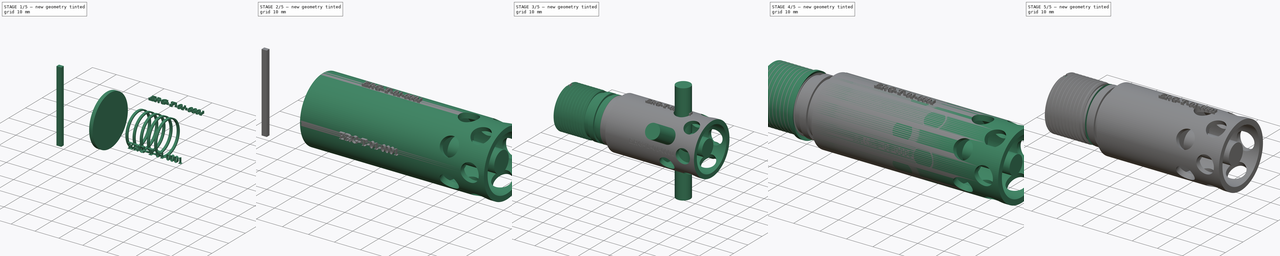
[diagram: build sequence overview — one tinted view per stage of 5, left to right]
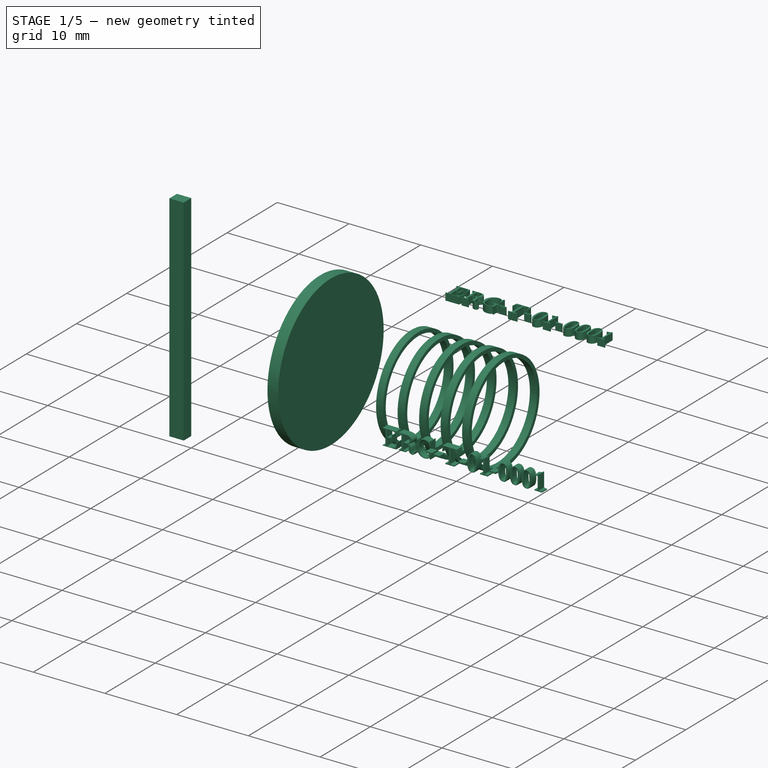
[diagram: stage 1 of 5 — iso view after this stage's code; geometry added in this stage tinted green]
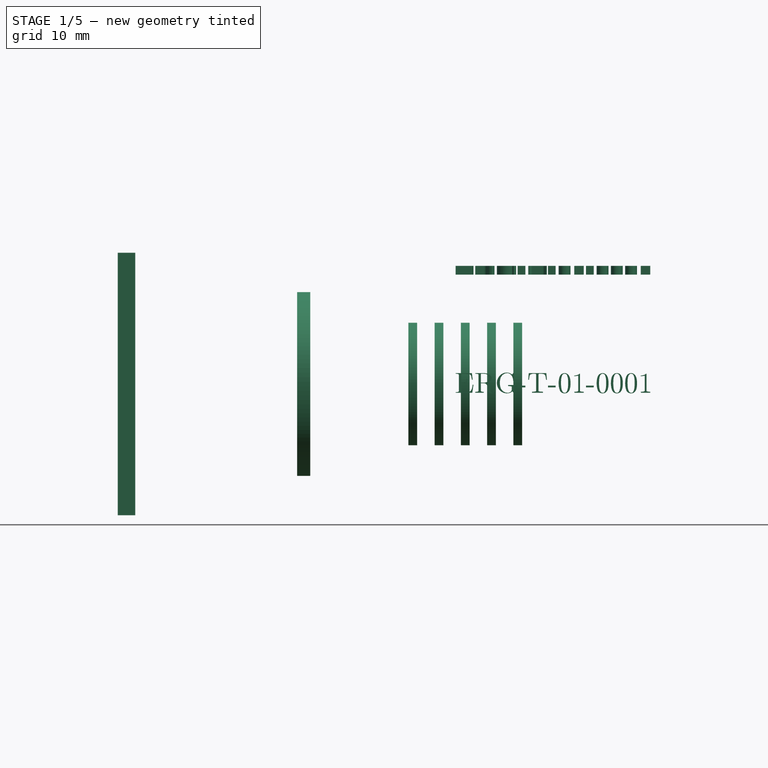
[diagram: stage 1 of 5 — front view after this stage's code; geometry added in this stage tinted green]
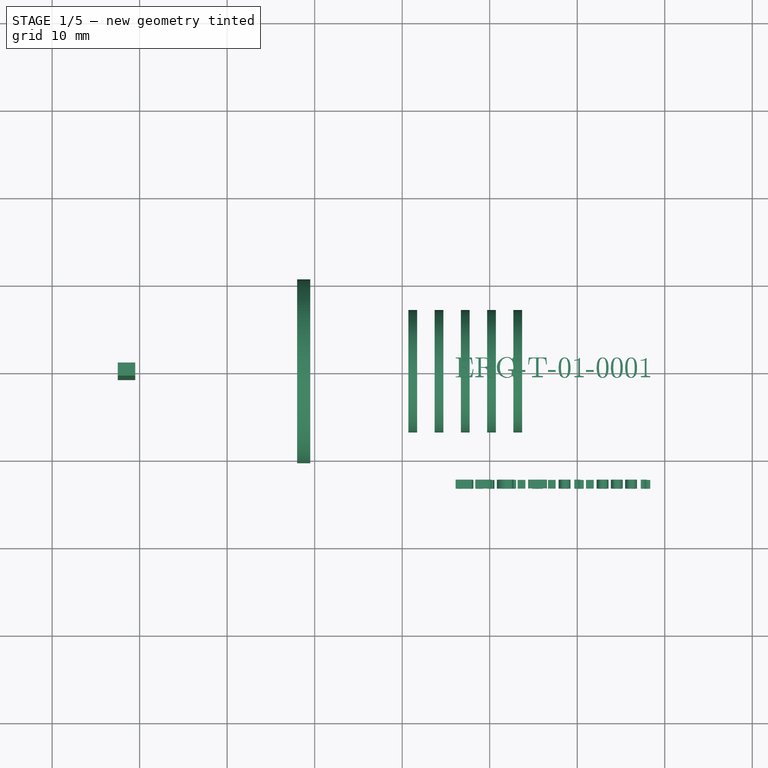
[diagram: stage 1 of 5 — top view after this stage's code; geometry added in this stage tinted green]
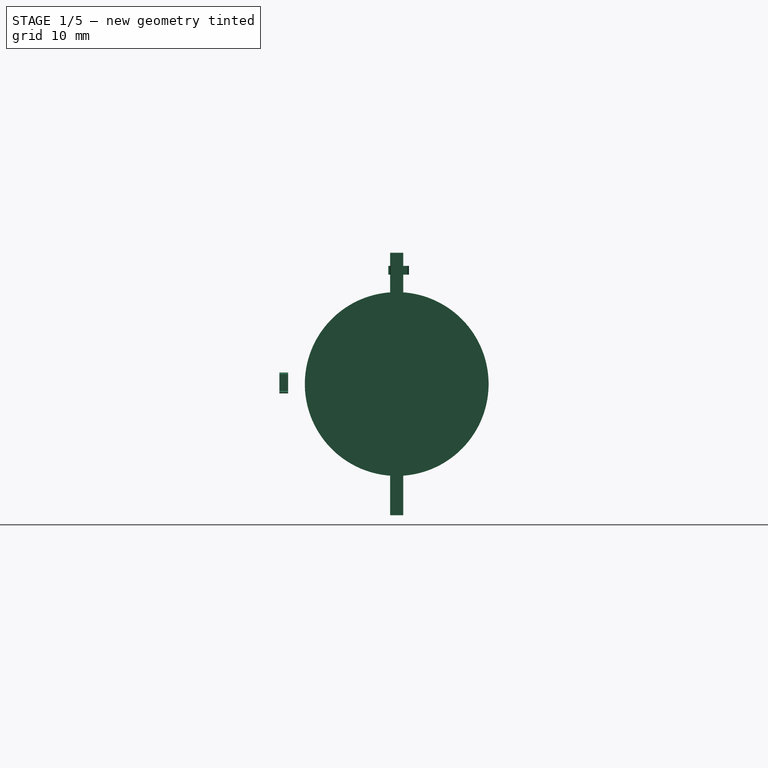
[diagram: stage 1 of 5 — right view after this stage's code; geometry added in this stage tinted green]
FCSTD DOCUMENT  (FreeCAD 0.17R13541 (Git))
Label: ERG-T-01-SH-02
License: All rights reserved
LicenseURL: http://en.wikipedia.org/wiki/All_rights_reserved
objects: Drawing::FeatureViewPython×178, Part::Cylinder×50, Part::Cut×40, Drawing::FeatureViewPart×12, Part::MultiFuse×9, Drawing::FeaturePage×6, Part::Feature×6, Part::Helix×3, Sketcher::SketchObject×3, Part::Sweep×3, Part::Cone×2, Part::Part2DObjectPython×2, Part::Extrusion×2, Part::Box×1
note: 121 computed .brp shape members not serialized (recipe doc carries the construction recipe); baked Part::Feature solids carry a one-line shape summary decoded from their .brp

FEATURE [Part::Cylinder] Cylinder084  label="Cylinder092"
  Angle = 360
  AttacherType = Attacher::AttachEngine3D
  Height = 1.5
  Placement = pos=(178,0,0) rot=(0,1,0;1.5708rad)
  Radius = 10.5
FEATURE [Part::Cylinder] Cylinder085  label="Cylinder093"
  Angle = 360
  AttacherType = Attacher::AttachEngine3D
  Height = 1.5
  Placement = pos=(178,0,0) rot=(0,1,0;1.5708rad)
  Radius = 9.6
FEATURE [Part::Box] Box  label="Cube"
  AttacherType = Attacher::AttachEngine3D
  Height = 30
  Length = 2
  Placement = pos=(157.5,-0.75,-15) rot=(0,0,1;0rad)
  Width = 1.5
FEATURE [Drawing::FeatureViewPart] Ortho  label="Ortho_0_0"
  Direction = (0,0,1)
  HiddenWidth = 0.15
  LineWidth = 0.35
  Rotation = 0
  Scale = 1.5
  ShowHiddenLines = false
  ShowSmoothLines = false
  Source = -> Cut077
  Tolerance = 0.05
  ViewResult = <blob: 37177 chars omitted>
  Visible = false
  X = -140.775
  Y = 81.5
FEATURE [Drawing::FeatureViewPart] Ortho018  label="Ortho_1_0"
  Direction = (1,0,0)
  HiddenWidth = 0.15
  LineWidth = 0.35
  Rotation = 180
  Scale = 1.5
  ShowHiddenLines = false
  ShowSmoothLines = false
  Source = -> Cut077
  Tolerance = 0.05
  ViewResult = <blob: 13318 chars omitted>
  Visible = false
  X = 244.262
  Y = 81.5
FEATURE [Drawing::FeatureViewPart] Ortho019  label="Ortho_-1_0"
  Direction = (-1,0,0)
  HiddenWidth = 0.15
  LineWidth = 0.35
  Rotation = 180
  Scale = 1.5
  ShowHiddenLines = false
  ShowSmoothLines = false
  Source = -> Cut077
  Tolerance = 0.05
  ViewResult = <blob: 16564 chars omitted>
  Visible = false
  X = 52.7375
  Y = 81.5
FEATURE [Part::Cylinder] Cylinder090  label="Cylinder098"
  Angle = 360
  AttacherType = Attacher::AttachEngine3D
  Height = 1
  Placement = pos=(178,0,0) rot=(0,1,0;1.5708rad)
  Radius = 6.5
FEATURE [Part::Cylinder] Cylinder091  label="Cylinder099"
  Angle = 360
  AttacherType = Attacher::AttachEngine3D
  Height = 1
  Placement = pos=(178,0,0) rot=(0,1,0;1.5708rad)
  Radius = 7
FEATURE [Part::Cut] Cut078
  Base = -> Cylinder091
  Placement = pos=(24.7,0,0) rot=(0,0,1;0rad)
  Tool = -> Cylinder090
FEATURE [Part::Cylinder] Cylinder092  label="Cylinder100"
  Angle = 360
  AttacherType = Attacher::AttachEngine3D
  Height = 1
  Placement = pos=(178,0,0) rot=(0,1,0;1.5708rad)
  Radius = 6.5
FEATURE [Part::Cylinder] Cylinder093  label="Cylinder101"
  Angle = 360
  AttacherType = Attacher::AttachEngine3D
  Height = 1
  Placement = pos=(178,0,0) rot=(0,1,0;1.5708rad)
  Radius = 7
FEATURE [Part::Cut] Cut079
  Base = -> Cylinder093
  Placement = pos=(21.7,0,0) rot=(0,0,1;0rad)
  Tool = -> Cylinder092
FEATURE [Part::Cylinder] Cylinder094  label="Cylinder102"
  Angle = 360
  AttacherType = Attacher::AttachEngine3D
  Height = 1
  Placement = pos=(178,0,0) rot=(0,1,0;1.5708rad)
  Radius = 6.5
FEATURE [Part::Cylinder] Cylinder095  label="Cylinder103"
  Angle = 360
  AttacherType = Attacher::AttachEngine3D
  Height = 1
  Placement = pos=(178,0,0) rot=(0,1,0;1.5708rad)
  Radius = 7
FEATURE [Part::Cut] Cut080
  Base = -> Cylinder095
  Placement = pos=(18.7,0,0) rot=(0,0,1;0rad)
  Tool = -> Cylinder094
FEATURE [Part::Cylinder] Cylinder096  label="Cylinder104"
  Angle = 360
  AttacherType = Attacher::AttachEngine3D
  Height = 1
  Placement = pos=(178,0,0) rot=(0,1,0;1.5708rad)
  Radius = 6.5
FEATURE [Part::Cylinder] Cylinder097  label="Cylinder105"
  Angle = 360
  AttacherType = Attacher::AttachEngine3D
  Height = 1
  Placement = pos=(178,0,0) rot=(0,1,0;1.5708rad)
  Radius = 7
FEATURE [Part::Cut] Cut081
  Base = -> Cylinder097
  Placement = pos=(15.7,0,0) rot=(0,0,1;0rad)
  Tool = -> Cylinder096
FEATURE [Part::Cylinder] Cylinder098  label="Cylinder106"
  Angle = 360
  AttacherType = Attacher::AttachEngine3D
  Height = 1
  Placement = pos=(178,0,0) rot=(0,1,0;1.5708rad)
  Radius = 6.5
FEATURE [Part::Cylinder] Cylinder099  label="Cylinder107"
  Angle = 360
  AttacherType = Attacher::AttachEngine3D
  Height = 1
  Placement = pos=(178,0,0) rot=(0,1,0;1.5708rad)
  Radius = 7
FEATURE [Part::Cut] Cut082
  Base = -> Cylinder099
  Placement = pos=(12.7,0,0) rot=(0,0,1;0rad)
  Tool = -> Cylinder098
FEATURE [Part::MultiFuse] Fusion
  Shapes = -> [Cut078,Cut081,Cut082,Cut079,Cut080]
FEATURE [Part::Feature] Cut083_cs
  shape: bbox 68.7 x 1.032e-05 x 25 mm, 0 faces, 0 solids (baked)
FEATURE [Part::Feature] Cut083_cs001
  shape: bbox 70.7 x 25 x 1e-05 mm, 0 faces, 0 solids (baked)
FEATURE [Drawing::FeatureViewPart] Ortho020  label="Ortho_0_008"
  Direction = (0,1,0)
  HiddenWidth = 0.15
  LineWidth = 0.35
  Rotation = 0
  Scale = 1.5
  ShowHiddenLines = false
  ShowSmoothLines = false
  Source = -> Cut083_cs
  Tolerance = 0.05
  ViewResult = <blob: 8394 chars omitted>
  Visible = false
  X = 170
  Y = 370
FEATURE [Drawing::FeatureViewPart] Ortho021  label="Ortho_0_009"
  Direction = (0,0,1)
  HiddenWidth = 0.15
  LineWidth = 0.35
  Rotation = -90
  Scale = 1.5
  ShowHiddenLines = false
  ShowSmoothLines = false
  Source = -> Cut083_cs001
  Tolerance = 0.05
  ViewResult = <blob: 8878 chars omitted>
  Visible = false
  X = 80
  Y = 370
FEATURE [Drawing::FeatureViewPart] Ortho023  label="Ortho_1_-1"
  Direction = (-0.57735,0.57735,-0.57735)
  HiddenWidth = 0.15
  LineWidth = 0.35
  Rotation = 120
  Scale = 2
  ShowHiddenLines = false
  ShowSmoothLines = false
  Source = -> Cut083
  Tolerance = 0.05
  ViewResult = <blob: 25297 chars omitted>
  Visible = false
  X = -60
  Y = 250
FEATURE [Drawing::FeatureViewPart] Ortho024  label="Ortho_-1_1"
  Direction = (0.57735,0.57735,0.57735)
  HiddenWidth = 0.15
  LineWidth = 0.35
  Rotation = -60
  Scale = 2
  ShowHiddenLines = false
  ShowSmoothLines = false
  Source = -> Cut083
  Tolerance = 0.05
  ViewResult = <blob: 24250 chars omitted>
  Visible = false
  X = -180
  Y = 240
FEATURE [Drawing::FeatureViewPython] dim001  # drawing view (typed FeaturePython)
  Rotation = 0
  ViewResult = <g> \n  <line x1="61.250000" y1="27.700000" x2="23.264180" y2="27.700000" style="stroke:rgb(255,0,0);stroke-width:0.10" />\n<line x1="65.506880" y1="133.750000" x2="23.264180" y2="133.750000" style="stroke:rgb(255,0,0);stroke-width:0.10" />\n<line x1="24.264180" y1="27.700000" x2="24.264180" y2="133.750000" style="stroke:rgb(255,0,0);stroke-width:0.10" /> \n  <polygon points="24.264180,133.750000 24.764180,131.750000 24.264180,131.250000 23.764180,131.750000" style="fill:rgb(255,0,0);stroke:rgb(255,0,0);stroke-width:0" /><polygon points="24.264180,27.700000 23.764180,29.700000 24.264180,30.200000 24.764180,29.700000" style="fill:rgb(255,0,0);stroke:rgb(255,0,0);stroke-width:0" /> \n  <text x="22.264180" y="80.725000" font-family="inherit" font-size="3.6" fill="rgb(0,0,0)" text-anchor="middle" transform="rotate(-90.000000 22.264180,80.725000)" >70.7</text> </g>
  Visible = false
  X = 0
  Y = 0
  arrowL1 = 2
  arrowL2 = 0.5
  arrowW = 1
  arrow_scheme = 0
  autoPlaceOffset = 2
  autoPlaceText = true
  click1_x = 24.2642
  click1_y = 108.149
  click2_x = 24.2642
  click2_y = 108.149
  comma_decimal_place = false
  dimension_line_overshoot = 1
  gap_datum_points = 0
  halfDimension_linear = false
  lineColor = rgb(255,0,0)
  strokeWidth = 0.1
  textFormat_linear = %(value)3.3f
  textRenderer_color = rgb(0,0,0)
  textRenderer_family = inherit
  textRenderer_size = 3.6
  unit_custom_scale = 1
  unit_scheme = 0
FEATURE [Drawing::FeatureViewPython] dim002  # drawing view (typed FeaturePython)
  Rotation = 0
  ViewResult = <g> \n  <line x1="188.750000" y1="27.700000" x2="271.019835" y2="27.700000" style="stroke:rgb(255,0,0);stroke-width:0.10" />\n<line x1="179.825000" y1="130.750000" x2="271.019835" y2="130.750000" style="stroke:rgb(255,0,0);stroke-width:0.10" />\n<line x1="270.019835" y1="27.700000" x2="270.019835" y2="130.750000" style="stroke:rgb(255,0,0);stroke-width:0.10" /> \n  <polygon points="270.019835,130.750000 270.519835,128.750000 270.019835,128.250000 269.519835,128.750000" style="fill:rgb(255,0,0);stroke:rgb(255,0,0);stroke-width:0" /><polygon points="270.019835,27.700000 269.519835,29.700000 270.019835,30.200000 270.519835,29.700000" style="fill:rgb(255,0,0);stroke:rgb(255,0,0);stroke-width:0" /> \n  <text x="268.019835" y="79.225000" font-family="inherit" font-size="3.6" fill="rgb(0,0,0)" text-anchor="middle" transform="rotate(-90.000000 268.019835,79.225000)" >68.7</text> </g>
  Visible = false
  X = 0
  Y = 0
  arrowL1 = 2
  arrowL2 = 0.5
  arrowW = 1
  arrow_scheme = 0
  autoPlaceOffset = 2
  autoPlaceText = true
  click1_x = 270.02
  click1_y = 121.509
  click2_x = 270.02
  click2_y = 121.509
  comma_decimal_place = false
  dimension_line_overshoot = 1
  gap_datum_points = 0
  halfDimension_linear = false
  lineColor = rgb(255,0,0)
  strokeWidth = 0.1
  textFormat_linear = %(value)3.3f
  textRenderer_color = rgb(0,0,0)
  textRenderer_family = inherit
  textRenderer_size = 3.6
  unit_custom_scale = 1
  unit_scheme = 0
FEATURE [Drawing::FeatureViewPython] dim003  # drawing view (typed FeaturePython)
  Rotation = 0
  ViewResult = <g> \n  <line x1="188.750000" y1="44.200000" x2="202.399114" y2="44.200000" style="stroke:rgb(255,0,0);stroke-width:0.10" />\n<line x1="188.750000" y1="54.700000" x2="202.399114" y2="54.700000" style="stroke:rgb(255,0,0);stroke-width:0.10" />\n<line x1="201.399114" y1="44.200000" x2="201.399114" y2="54.700000" style="stroke:rgb(255,0,0);stroke-width:0.10" /> \n  <polygon points="201.399114,54.700000 201.899114,52.700000 201.399114,52.200000 200.899114,52.700000" style="fill:rgb(255,0,0);stroke:rgb(255,0,0);stroke-width:0" /><polygon points="201.399114,44.200000 200.899114,46.200000 201.399114,46.700000 201.899114,46.200000" style="fill:rgb(255,0,0);stroke:rgb(255,0,0);stroke-width:0" /> \n  <text x="199.399114" y="49.450000" font-family="inherit" font-size="3.6" fill="rgb(0,0,0)" text-anchor="middle" transform="rotate(-90.000000 199.399114,49.450000)" >7</text> </g>
  Visible = false
  X = 0
  Y = 0
  arrowL1 = 2
  arrowL2 = 0.5
  arrowW = 1
  arrow_scheme = 0
  autoPlaceOffset = 2
  autoPlaceText = true
  click1_x = 201.399
  click1_y = 53.8937
  click2_x = 201.399
  click2_y = 53.8937
  comma_decimal_place = false
  dimension_line_overshoot = 1
  gap_datum_points = 0
  halfDimension_linear = false
  lineColor = rgb(255,0,0)
  strokeWidth = 0.1
  textFormat_linear = %(value)3.3f
  textRenderer_color = rgb(0,0,0)
  textRenderer_family = inherit
  textRenderer_size = 3.6
  unit_custom_scale = 1
  unit_scheme = 0
FEATURE [Drawing::FeatureViewPython] dim004  # drawing view (typed FeaturePython)
  Rotation = 0
  ViewResult = <g> \n  <line x1="185.750000" y1="57.700000" x2="210.155520" y2="57.700000" style="stroke:rgb(255,0,0);stroke-width:0.10" />\n<line x1="176.000000" y1="30.700000" x2="210.155520" y2="30.700000" style="stroke:rgb(255,0,0);stroke-width:0.10" />\n<line x1="209.155520" y1="57.700000" x2="209.155520" y2="30.700000" style="stroke:rgb(255,0,0);stroke-width:0.10" /> \n  <polygon points="209.155520,30.700000 208.655520,32.700000 209.155520,33.200000 209.655520,32.700000" style="fill:rgb(255,0,0);stroke:rgb(255,0,0);stroke-width:0" /><polygon points="209.155520,57.700000 209.655520,55.700000 209.155520,55.200000 208.655520,55.700000" style="fill:rgb(255,0,0);stroke:rgb(255,0,0);stroke-width:0" /> \n  <text x="207.155520" y="44.200000" font-family="inherit" font-size="3.6" fill="rgb(0,0,0)" text-anchor="middle" transform="rotate(-90.000000 207.155520,44.200000)" >18</text> </g>
  Visible = false
  X = 0
  Y = 0
  arrowL1 = 2
  arrowL2 = 0.5
  arrowW = 1
  arrow_scheme = 0
  autoPlaceOffset = 2
  autoPlaceText = true
  click1_x = 209.156
  click1_y = 35.7062
  click2_x = 209.156
  click2_y = 35.7062
  comma_decimal_place = false
  dimension_line_overshoot = 1
  gap_datum_points = 0
  halfDimension_linear = false
  lineColor = rgb(255,0,0)
  strokeWidth = 0.1
  textFormat_linear = %(value)3.3f
  textRenderer_color = rgb(0,0,0)
  textRenderer_family = inherit
  textRenderer_size = 3.6
  unit_custom_scale = 1
  unit_scheme = 0
FEATURE [Drawing::FeatureViewPython] dim005  # drawing view (typed FeaturePython)
  Rotation = 0
  ViewResult = <g> \n  <line x1="185.750000" y1="57.700000" x2="218.045658" y2="57.700000" style="stroke:rgb(255,0,0);stroke-width:0.10" />\n<line x1="188.750000" y1="27.700000" x2="218.045658" y2="27.700000" style="stroke:rgb(255,0,0);stroke-width:0.10" />\n<line x1="217.045658" y1="57.700000" x2="217.045658" y2="27.700000" style="stroke:rgb(255,0,0);stroke-width:0.10" /> \n  <polygon points="217.045658,27.700000 216.545658,29.700000 217.045658,30.200000 217.545658,29.700000" style="fill:rgb(255,0,0);stroke:rgb(255,0,0);stroke-width:0" /><polygon points="217.045658,57.700000 217.545658,55.700000 217.045658,55.200000 216.545658,55.700000" style="fill:rgb(255,0,0);stroke:rgb(255,0,0);stroke-width:0" /> \n  <text x="215.045658" y="42.700000" font-family="inherit" font-size="3.6" fill="rgb(0,0,0)" text-anchor="middle" transform="rotate(-90.000000 215.045658,42.700000)" >20</text> </g>
  Visible = false
  X = 0
  Y = 0
  arrowL1 = 2
  arrowL2 = 0.5
  arrowW = 1
  arrow_scheme = 0
  autoPlaceOffset = 2
  autoPlaceText = true
  click1_x = 217.046
  click1_y = 35.1713
  click2_x = 217.046
  click2_y = 35.1713
  comma_decimal_place = false
  dimension_line_overshoot = 1
  gap_datum_points = 0
  halfDimension_linear = false
  lineColor = rgb(255,0,0)
  strokeWidth = 0.1
  textFormat_linear = %(value)3.3f
  textRenderer_color = rgb(0,0,0)
  textRenderer_family = inherit
  textRenderer_size = 3.6
  unit_custom_scale = 1
  unit_scheme = 0
FEATURE [Drawing::FeatureViewPython] dim006  # drawing view (typed FeaturePython)
  Rotation = 0
  ViewResult = <g> \n  <line x1="164.000000" y1="30.700000" x2="164.000000" y2="15.983856" style="stroke:rgb(255,0,0);stroke-width:0.10" />\n<line x1="176.000000" y1="30.700000" x2="176.000000" y2="15.983856" style="stroke:rgb(255,0,0);stroke-width:0.10" />\n<line x1="164.000000" y1="16.983856" x2="176.000000" y2="16.983856" style="stroke:rgb(255,0,0);stroke-width:0.10" /> \n  <polygon points="176.000000,16.983856 174.000000,16.483856 173.500000,16.983856 174.000000,17.483856" style="fill:rgb(255,0,0);stroke:rgb(255,0,0);stroke-width:0" /><polygon points="164.000000,16.983856 166.000000,17.483856 166.500000,16.983856 166.000000,16.483856" style="fill:rgb(255,0,0);stroke:rgb(255,0,0);stroke-width:0" /> \n  <text x="170.000000" y="14.983856" font-family="inherit" font-size="3.6" fill="rgb(0,0,0)" text-anchor="middle" transform="rotate(0.000000 170.000000,14.983856)" >8</text> </g>
  Visible = false
  X = 0
  Y = 0
  arrowL1 = 2
  arrowL2 = 0.5
  arrowW = 1
  arrow_scheme = 0
  autoPlaceOffset = 2
  autoPlaceText = true
  click1_x = 175.322
  click1_y = 16.9839
  click2_x = 175.322
  click2_y = 16.9839
  comma_decimal_place = false
  dimension_line_overshoot = 1
  gap_datum_points = 0
  halfDimension_linear = false
  lineColor = rgb(255,0,0)
  strokeWidth = 0.1
  textFormat_linear = %(value)3.3f
  textRenderer_color = rgb(0,0,0)
  textRenderer_family = inherit
  textRenderer_size = 3.6
  unit_custom_scale = 1
  unit_scheme = 0
FEATURE [Drawing::FeatureViewPython] dim007  # drawing view (typed FeaturePython)
  Rotation = 0
  ViewResult = <g> \n  <line x1="166.925000" y1="34.150000" x2="166.925000" y2="24.141456" style="stroke:rgb(255,0,0);stroke-width:0.10" />\n<line x1="173.075000" y1="34.150000" x2="173.075000" y2="24.141456" style="stroke:rgb(255,0,0);stroke-width:0.10" />\n<line x1="166.925000" y1="25.141456" x2="173.075000" y2="25.141456" style="stroke:rgb(255,0,0);stroke-width:0.10" /> \n  <polygon points="173.075000,25.141456 175.075000,25.641456 175.575000,25.141456 175.075000,24.641456" style="fill:rgb(255,0,0);stroke:rgb(255,0,0);stroke-width:0" /><polygon points="166.925000,25.141456 164.925000,24.641456 164.425000,25.141456 164.925000,25.641456" style="fill:rgb(255,0,0);stroke:rgb(255,0,0);stroke-width:0" /> \n  <text x="170.000000" y="23.141456" font-family="inherit" font-size="3.6" fill="rgb(0,0,0)" text-anchor="middle" transform="rotate(0.000000 170.000000,23.141456)" >4.1</text> </g>
  Visible = false
  X = 0
  Y = 0
  arrowL1 = 2
  arrowL2 = 0.5
  arrowW = 1
  arrow_scheme = 0
  autoPlaceOffset = 2
  autoPlaceText = true
  click1_x = 170.106
  click1_y = 25.1415
  click2_x = 170.106
  click2_y = 25.1415
  comma_decimal_place = false
  dimension_line_overshoot = 1
  gap_datum_points = 0
  halfDimension_linear = false
  lineColor = rgb(255,0,0)
  strokeWidth = 0.1
  textFormat_linear = %(value)3.3f
  textRenderer_color = rgb(0,0,0)
  textRenderer_family = inherit
  textRenderer_size = 3.6
  unit_custom_scale = 1
  unit_scheme = 0
FEATURE [Drawing::FeatureViewPython] dim008  # drawing view (typed FeaturePython)
  Rotation = 0
  ViewResult = <g> \n  <line x1="185.750000" y1="57.700000" x2="202.344837" y2="57.700000" style="stroke:rgb(255,0,0);stroke-width:0.10" />\n<line x1="185.750000" y1="54.700000" x2="202.344837" y2="54.700000" style="stroke:rgb(255,0,0);stroke-width:0.10" />\n<line x1="201.344837" y1="57.700000" x2="201.344837" y2="54.700000" style="stroke:rgb(255,0,0);stroke-width:0.10" /> \n  <polygon points="201.344837,54.700000 201.844837,52.700000 201.344837,52.200000 200.844837,52.700000" style="fill:rgb(255,0,0);stroke:rgb(255,0,0);stroke-width:0" /><polygon points="201.344837,57.700000 200.844837,59.700000 201.344837,60.200000 201.844837,59.700000" style="fill:rgb(255,0,0);stroke:rgb(255,0,0);stroke-width:0" /> \n  <text x="199.344837" y="56.200000" font-family="inherit" font-size="3.6" fill="rgb(0,0,0)" text-anchor="middle" transform="rotate(-90.000000 199.344837,56.200000)" >2</text> </g>
  Visible = false
  X = 0
  Y = 0
  arrowL1 = 2
  arrowL2 = 0.5
  arrowW = 1
  arrow_scheme = 0
  autoPlaceOffset = 2
  autoPlaceText = true
  click1_x = 201.345
  click1_y = 58.043
  click2_x = 201.345
  click2_y = 58.043
  comma_decimal_place = false
  dimension_line_overshoot = 1
  gap_datum_points = 0
  halfDimension_linear = false
  lineColor = rgb(255,0,0)
  strokeWidth = 0.1
  textFormat_linear = %(value)3.3f
  textRenderer_color = rgb(0,0,0)
  textRenderer_family = inherit
  textRenderer_size = 3.6
  unit_custom_scale = 1
  unit_scheme = 0
FEATURE [Drawing::FeatureViewPython] dim009  # drawing view (typed FeaturePython)
  Rotation = 0
  ViewResult = <g> \n  <line x1="180.500000" y1="65.950000" x2="196.919741" y2="65.950000" style="stroke:rgb(255,0,0);stroke-width:0.10" />\n<line x1="180.500000" y1="64.450000" x2="196.919741" y2="64.450000" style="stroke:rgb(255,0,0);stroke-width:0.10" />\n<line x1="195.919741" y1="65.950000" x2="195.919741" y2="64.450000" style="stroke:rgb(255,0,0);stroke-width:0.10" /> \n  <polygon points="195.919741,64.450000 196.419741,62.450000 195.919741,61.950000 195.419741,62.450000" style="fill:rgb(255,0,0);stroke:rgb(255,0,0);stroke-width:0" /><polygon points="195.919741,65.950000 195.419741,67.950000 195.919741,68.450000 196.419741,67.950000" style="fill:rgb(255,0,0);stroke:rgb(255,0,0);stroke-width:0" /> \n  <text x="193.919741" y="65.200000" font-family="inherit" font-size="3.6" fill="rgb(0,0,0)" text-anchor="middle" transform="rotate(-90.000000 193.919741,65.200000)" >1</text> </g>
  Visible = false
  X = 0
  Y = 0
  arrowL1 = 2
  arrowL2 = 0.5
  arrowW = 1
  arrow_scheme = 0
  autoPlaceOffset = 2
  autoPlaceText = true
  click1_x = 195.92
  click1_y = 65.1903
  click2_x = 195.92
  click2_y = 65.1903
  comma_decimal_place = false
  dimension_line_overshoot = 1
  gap_datum_points = 0
  halfDimension_linear = false
  lineColor = rgb(255,0,0)
  strokeWidth = 0.1
  textFormat_linear = %(value)3.3f
  textRenderer_color = rgb(0,0,0)
  textRenderer_family = inherit
  textRenderer_size = 3.6
  unit_custom_scale = 1
  unit_scheme = 0
FEATURE [Drawing::FeatureViewPython] dim010  # drawing view (typed FeaturePython)
  Rotation = 0
  ViewResult = <g> \n  <line x1="179.825000" y1="68.950000" x2="203.897295" y2="68.950000" style="stroke:rgb(255,0,0);stroke-width:0.10" />\n<line x1="179.825000" y1="65.950000" x2="203.897295" y2="65.950000" style="stroke:rgb(255,0,0);stroke-width:0.10" />\n<line x1="202.897295" y1="68.950000" x2="202.897295" y2="65.950000" style="stroke:rgb(255,0,0);stroke-width:0.10" /> \n  <polygon points="202.897295,65.950000 203.397295,63.950000 202.897295,63.450000 202.397295,63.950000" style="fill:rgb(255,0,0);stroke:rgb(255,0,0);stroke-width:0" /><polygon points="202.897295,68.950000 202.397295,70.950000 202.897295,71.450000 203.397295,70.950000" style="fill:rgb(255,0,0);stroke:rgb(255,0,0);stroke-width:0" /> \n  <text x="200.897295" y="67.450000" font-family="inherit" font-size="3.6" fill="rgb(0,0,0)" text-anchor="middle" transform="rotate(-90.000000 200.897295,67.450000)" >2</text> </g>
  Visible = false
  X = 0
  Y = 0
  arrowL1 = 2
  arrowL2 = 0.5
  arrowW = 1
  arrow_scheme = 0
  autoPlaceOffset = 2
  autoPlaceText = true
  click1_x = 202.897
  click1_y = 69.4765
  click2_x = 202.897
  click2_y = 69.4765
  comma_decimal_place = false
  dimension_line_overshoot = 1
  gap_datum_points = 0
  halfDimension_linear = false
  lineColor = rgb(255,0,0)
  strokeWidth = 0.1
  textFormat_linear = %(value)3.3f
  textRenderer_color = rgb(0,0,0)
  textRenderer_family = inherit
  textRenderer_size = 3.6
  unit_custom_scale = 1
  unit_scheme = 0
FEATURE [Drawing::FeatureViewPython] dim011  # drawing view (typed FeaturePython)
  Rotation = 0
  ViewResult = <g> \n  <line x1="180.500000" y1="70.450000" x2="195.673749" y2="70.450000" style="stroke:rgb(255,0,0);stroke-width:0.10" />\n<line x1="180.500000" y1="68.950000" x2="195.673749" y2="68.950000" style="stroke:rgb(255,0,0);stroke-width:0.10" />\n<line x1="194.673749" y1="70.450000" x2="194.673749" y2="68.950000" style="stroke:rgb(255,0,0);stroke-width:0.10" /> \n  <polygon points="194.673749,68.950000 195.173749,66.950000 194.673749,66.450000 194.173749,66.950000" style="fill:rgb(255,0,0);stroke:rgb(255,0,0);stroke-width:0" /><polygon points="194.673749,70.450000 194.173749,72.450000 194.673749,72.950000 195.173749,72.450000" style="fill:rgb(255,0,0);stroke:rgb(255,0,0);stroke-width:0" /> \n  <text x="192.673749" y="69.700000" font-family="inherit" font-size="3.6" fill="rgb(0,0,0)" text-anchor="middle" transform="rotate(-90.000000 192.673749,69.700000)" >1</text> </g>
  Visible = false
  X = 0
  Y = 0
  arrowL1 = 2
  arrowL2 = 0.5
  arrowW = 1
  arrow_scheme = 0
  autoPlaceOffset = 2
  autoPlaceText = true
  click1_x = 194.674
  click1_y = 71.171
  click2_x = 194.674
  click2_y = 71.171
  comma_decimal_place = false
  dimension_line_overshoot = 1
  gap_datum_points = 0
  halfDimension_linear = false
  lineColor = rgb(255,0,0)
  strokeWidth = 0.1
  textFormat_linear = %(value)3.3f
  textRenderer_color = rgb(0,0,0)
  textRenderer_family = inherit
  textRenderer_size = 3.6
  unit_custom_scale = 1
  unit_scheme = 0
FEATURE [Drawing::FeatureViewPython] dim012  # drawing view (typed FeaturePython)
  Rotation = 0
  ViewResult = <g> \n  <line x1="179.825000" y1="73.450000" x2="202.800822" y2="73.450000" style="stroke:rgb(255,0,0);stroke-width:0.10" />\n<line x1="179.825000" y1="70.450000" x2="202.800822" y2="70.450000" style="stroke:rgb(255,0,0);stroke-width:0.10" />\n<line x1="201.800822" y1="73.450000" x2="201.800822" y2="70.450000" style="stroke:rgb(255,0,0);stroke-width:0.10" /> \n  <polygon points="201.800822,70.450000 202.300822,68.450000 201.800822,67.950000 201.300822,68.450000" style="fill:rgb(255,0,0);stroke:rgb(255,0,0);stroke-width:0" /><polygon points="201.800822,73.450000 201.300822,75.450000 201.800822,75.950000 202.300822,75.450000" style="fill:rgb(255,0,0);stroke:rgb(255,0,0);stroke-width:0" /> \n  <text x="199.800822" y="71.950000" font-family="inherit" font-size="3.6" fill="rgb(0,0,0)" text-anchor="middle" transform="rotate(-90.000000 199.800822,71.950000)" >2</text> </g>
  Visible = false
  X = 0
  Y = 0
  arrowL1 = 2
  arrowL2 = 0.5
  arrowW = 1
  arrow_scheme = 0
  autoPlaceOffset = 2
  autoPlaceText = true
  click1_x = 201.801
  click1_y = 73.5135
  click2_x = 201.801
  click2_y = 73.5135
  comma_decimal_place = false
  dimension_line_overshoot = 1
  gap_datum_points = 0
  halfDimension_linear = false
  lineColor = rgb(255,0,0)
  strokeWidth = 0.1
  textFormat_linear = %(value)3.3f
  textRenderer_color = rgb(0,0,0)
  textRenderer_family = inherit
  textRenderer_size = 3.6
  unit_custom_scale = 1
  unit_scheme = 0
FEATURE [Drawing::FeatureViewPython] dim013  # drawing view (typed FeaturePython)
  Rotation = 0
  ViewResult = <g> \n  <line x1="180.500000" y1="74.950000" x2="196.919741" y2="74.950000" style="stroke:rgb(255,0,0);stroke-width:0.10" />\n<line x1="180.500000" y1="73.450000" x2="196.919741" y2="73.450000" style="stroke:rgb(255,0,0);stroke-width:0.10" />\n<line x1="195.919741" y1="74.950000" x2="195.919741" y2="73.450000" style="stroke:rgb(255,0,0);stroke-width:0.10" /> \n  <polygon points="195.919741,73.450000 196.419741,71.450000 195.919741,70.950000 195.419741,71.450000" style="fill:rgb(255,0,0);stroke:rgb(255,0,0);stroke-width:0" /><polygon points="195.919741,74.950000 195.419741,76.950000 195.919741,77.450000 196.419741,76.950000" style="fill:rgb(255,0,0);stroke:rgb(255,0,0);stroke-width:0" /> \n  <text x="193.919741" y="74.200000" font-family="inherit" font-size="3.6" fill="rgb(0,0,0)" text-anchor="middle" transform="rotate(-90.000000 193.919741,74.200000)" >1</text> </g>
  Visible = false
  X = 0
  Y = 0
  arrowL1 = 2
  arrowL2 = 0.5
  arrowW = 1
  arrow_scheme = 0
  autoPlaceOffset = 2
  autoPlaceText = true
  click1_x = 195.92
  click1_y = 74.61
  click2_x = 195.92
  click2_y = 74.61
  comma_decimal_place = false
  dimension_line_overshoot = 1
  gap_datum_points = 0
  halfDimension_linear = false
  lineColor = rgb(255,0,0)
  strokeWidth = 0.1
  textFormat_linear = %(value)3.3f
  textRenderer_color = rgb(0,0,0)
  textRenderer_family = inherit
  textRenderer_size = 3.6
  unit_custom_scale = 1
  unit_scheme = 0
FEATURE [Drawing::FeatureViewPython] dim014  # drawing view (typed FeaturePython)
  Rotation = 0
  ViewResult = <g> \n  <line x1="179.825000" y1="77.950000" x2="204.146493" y2="77.950000" style="stroke:rgb(255,0,0);stroke-width:0.10" />\n<line x1="179.825000" y1="74.950000" x2="204.146493" y2="74.950000" style="stroke:rgb(255,0,0);stroke-width:0.10" />\n<line x1="203.146493" y1="77.950000" x2="203.146493" y2="74.950000" style="stroke:rgb(255,0,0);stroke-width:0.10" /> \n  <polygon points="203.146493,74.950000 203.646493,72.950000 203.146493,72.450000 202.646493,72.950000" style="fill:rgb(255,0,0);stroke:rgb(255,0,0);stroke-width:0" /><polygon points="203.146493,77.950000 202.646493,79.950000 203.146493,80.450000 203.646493,79.950000" style="fill:rgb(255,0,0);stroke:rgb(255,0,0);stroke-width:0" /> \n  <text x="201.146493" y="76.450000" font-family="inherit" font-size="3.6" fill="rgb(0,0,0)" text-anchor="middle" transform="rotate(-90.000000 201.146493,76.450000)" >2</text> </g>
  Visible = false
  X = 0
  Y = 0
  arrowL1 = 2
  arrowL2 = 0.5
  arrowW = 1
  arrow_scheme = 0
  autoPlaceOffset = 2
  autoPlaceText = true
  click1_x = 203.146
  click1_y = 77.6004
  click2_x = 203.146
  click2_y = 77.6004
  comma_decimal_place = false
  dimension_line_overshoot = 1
  gap_datum_points = 0
  halfDimension_linear = false
  lineColor = rgb(255,0,0)
  strokeWidth = 0.1
  textFormat_linear = %(value)3.3f
  textRenderer_color = rgb(0,0,0)
  textRenderer_family = inherit
  textRenderer_size = 3.6
  unit_custom_scale = 1
  unit_scheme = 0
FEATURE [Drawing::FeatureViewPython] dim015  # drawing view (typed FeaturePython)
  Rotation = 0
  ViewResult = <g> \n  <line x1="180.500000" y1="79.450000" x2="195.972787" y2="79.450000" style="stroke:rgb(255,0,0);stroke-width:0.10" />\n<line x1="180.500000" y1="77.950000" x2="195.972787" y2="77.950000" style="stroke:rgb(255,0,0);stroke-width:0.10" />\n<line x1="194.972787" y1="79.450000" x2="194.972787" y2="77.950000" style="stroke:rgb(255,0,0);stroke-width:0.10" /> \n  <polygon points="194.972787,77.950000 195.472787,75.950000 194.972787,75.450000 194.472787,75.950000" style="fill:rgb(255,0,0);stroke:rgb(255,0,0);stroke-width:0" /><polygon points="194.972787,79.450000 194.472787,81.450000 194.972787,81.950000 195.472787,81.450000" style="fill:rgb(255,0,0);stroke:rgb(255,0,0);stroke-width:0" /> \n  <text x="192.972787" y="78.700000" font-family="inherit" font-size="3.6" fill="rgb(0,0,0)" text-anchor="middle" transform="rotate(-90.000000 192.972787,78.700000)" >1</text> </g>
  Visible = false
  X = 0
  Y = 0
  arrowL1 = 2
  arrowL2 = 0.5
  arrowW = 1
  arrow_scheme = 0
  autoPlaceOffset = 2
  autoPlaceText = true
  click1_x = 194.973
  click1_y = 81.6374
  click2_x = 194.973
  click2_y = 81.6374
  comma_decimal_place = false
  dimension_line_overshoot = 1
  gap_datum_points = 0
  halfDimension_linear = false
  lineColor = rgb(255,0,0)
  strokeWidth = 0.1
  textFormat_linear = %(value)3.3f
  textRenderer_color = rgb(0,0,0)
  textRenderer_family = inherit
  textRenderer_size = 3.6
  unit_custom_scale = 1
  unit_scheme = 0
FEATURE [Drawing::FeatureViewPython] dim016  # drawing view (typed FeaturePython)
  Rotation = 0
  ViewResult = <g> \n  <line x1="179.825000" y1="82.450000" x2="203.000181" y2="82.450000" style="stroke:rgb(255,0,0);stroke-width:0.10" />\n<line x1="179.825000" y1="79.450000" x2="203.000181" y2="79.450000" style="stroke:rgb(255,0,0);stroke-width:0.10" />\n<line x1="202.000181" y1="82.450000" x2="202.000181" y2="79.450000" style="stroke:rgb(255,0,0);stroke-width:0.10" /> \n  <polygon points="202.000181,79.450000 202.500181,77.450000 202.000181,76.950000 201.500181,77.450000" style="fill:rgb(255,0,0);stroke:rgb(255,0,0);stroke-width:0" /><polygon points="202.000181,82.450000 201.500181,84.450000 202.000181,84.950000 202.500181,84.450000" style="fill:rgb(255,0,0);stroke:rgb(255,0,0);stroke-width:0" /> \n  <text x="200.000181" y="80.950000" font-family="inherit" font-size="3.6" fill="rgb(0,0,0)" text-anchor="middle" transform="rotate(-90.000000 200.000181,80.950000)" >2</text> </g>
  Visible = false
  X = 0
  Y = 0
  arrowL1 = 2
  arrowL2 = 0.5
  arrowW = 1
  arrow_scheme = 0
  autoPlaceOffset = 2
  autoPlaceText = true
  click1_x = 202
  click1_y = 84.3287
  click2_x = 202
  click2_y = 84.3287
  comma_decimal_place = false
  dimension_line_overshoot = 1
  gap_datum_points = 0
  halfDimension_linear = false
  lineColor = rgb(255,0,0)
  strokeWidth = 0.1
  textFormat_linear = %(value)3.3f
  textRenderer_color = rgb(0,0,0)
  textRenderer_family = inherit
  textRenderer_size = 3.6
  unit_custom_scale = 1
  unit_scheme = 0
FEATURE [Drawing::FeatureViewPython] dim017  # drawing view (typed FeaturePython)
  Rotation = 0
  ViewResult = <g> \n  <line x1="180.500000" y1="83.950000" x2="197.119100" y2="83.950000" style="stroke:rgb(255,0,0);stroke-width:0.10" />\n<line x1="180.500000" y1="82.450000" x2="197.119100" y2="82.450000" style="stroke:rgb(255,0,0);stroke-width:0.10" />\n<line x1="196.119100" y1="83.950000" x2="196.119100" y2="82.450000" style="stroke:rgb(255,0,0);stroke-width:0.10" /> \n  <polygon points="196.119100,82.450000 196.619100,80.450000 196.119100,79.950000 195.619100,80.450000" style="fill:rgb(255,0,0);stroke:rgb(255,0,0);stroke-width:0" /><polygon points="196.119100,83.950000 195.619100,85.950000 196.119100,86.450000 196.619100,85.950000" style="fill:rgb(255,0,0);stroke:rgb(255,0,0);stroke-width:0" /> \n  <text x="194.119100" y="83.200000" font-family="inherit" font-size="3.6" fill="rgb(0,0,0)" text-anchor="middle" transform="rotate(-90.000000 194.119100,83.200000)" >1</text> </g>
  Visible = false
  X = 0
  Y = 0
  arrowL1 = 2
  arrowL2 = 0.5
  arrowW = 1
  arrow_scheme = 0
  autoPlaceOffset = 2
  autoPlaceText = true
  click1_x = 196.119
  click1_y = 85.2757
  click2_x = 196.119
  click2_y = 85.2757
  comma_decimal_place = false
  dimension_line_overshoot = 1
  gap_datum_points = 0
  halfDimension_linear = false
  lineColor = rgb(255,0,0)
  strokeWidth = 0.1
  textFormat_linear = %(value)3.3f
  textRenderer_color = rgb(0,0,0)
  textRenderer_family = inherit
  textRenderer_size = 3.6
  unit_custom_scale = 1
  unit_scheme = 0
FEATURE [Drawing::FeatureViewPython] dim018  # drawing view (typed FeaturePython)
  Rotation = 0
  ViewResult = <g> \n  <line x1="166.925000" y1="64.450000" x2="134.009918" y2="64.450000" style="stroke:rgb(255,0,0);stroke-width:0.10" />\n<line x1="160.175000" y1="130.750000" x2="134.009918" y2="130.750000" style="stroke:rgb(255,0,0);stroke-width:0.10" />\n<line x1="135.009918" y1="64.450000" x2="135.009918" y2="130.750000" style="stroke:rgb(255,0,0);stroke-width:0.10" /> \n  <polygon points="135.009918,130.750000 135.509918,128.750000 135.009918,128.250000 134.509918,128.750000" style="fill:rgb(255,0,0);stroke:rgb(255,0,0);stroke-width:0" /><polygon points="135.009918,64.450000 134.509918,66.450000 135.009918,66.950000 135.509918,66.450000" style="fill:rgb(255,0,0);stroke:rgb(255,0,0);stroke-width:0" /> \n  <text x="133.009918" y="97.600000" font-family="inherit" font-size="3.6" fill="rgb(0,0,0)" text-anchor="middle" transform="rotate(-90.000000 133.009918,97.600000)" >44.2</text> </g>
  Visible = false
  X = 0
  Y = 0
  arrowL1 = 2
  arrowL2 = 0.5
  arrowW = 1
  arrow_scheme = 0
  autoPlaceOffset = 2
  autoPlaceText = true
  click1_x = 135.01
  click1_y = 122.688
  click2_x = 135.01
  click2_y = 122.688
  comma_decimal_place = false
  dimension_line_overshoot = 1
  gap_datum_points = 0
  halfDimension_linear = false
  lineColor = rgb(255,0,0)
  strokeWidth = 0.1
  textFormat_linear = %(value)3.3f
  textRenderer_color = rgb(0,0,0)
  textRenderer_family = inherit
  textRenderer_size = 3.6
  unit_custom_scale = 1
  unit_scheme = 0
FEATURE [Drawing::FeatureViewPython] dim019  # drawing view (typed FeaturePython)
  Rotation = 0
  ViewResult = <g> \n  <line x1="89.825000" y1="133.750000" x2="125.652014" y2="133.750000" style="stroke:rgb(255,0,0);stroke-width:0.10" />\n<line x1="83.075000" y1="64.450000" x2="125.652014" y2="64.450000" style="stroke:rgb(255,0,0);stroke-width:0.10" />\n<line x1="124.652014" y1="133.750000" x2="124.652014" y2="64.450000" style="stroke:rgb(255,0,0);stroke-width:0.10" /> \n  <polygon points="124.652014,64.450000 124.152014,66.450000 124.652014,66.950000 125.152014,66.450000" style="fill:rgb(255,0,0);stroke:rgb(255,0,0);stroke-width:0" /><polygon points="124.652014,133.750000 125.152014,131.750000 124.652014,131.250000 124.152014,131.750000" style="fill:rgb(255,0,0);stroke:rgb(255,0,0);stroke-width:0" /> \n  <text x="122.652014" y="99.100000" font-family="inherit" font-size="3.6" fill="rgb(0,0,0)" text-anchor="middle" transform="rotate(-90.000000 122.652014,99.100000)" >46.2</text> </g>
  Visible = false
  X = 0
  Y = 0
  arrowL1 = 2
  arrowL2 = 0.5
  arrowW = 1
  arrow_scheme = 0
  autoPlaceOffset = 2
  autoPlaceText = true
  click1_x = 124.652
  click1_y = 83.9347
  click2_x = 124.652
  click2_y = 83.9347
  comma_decimal_place = false
  dimension_line_overshoot = 1
  gap_datum_points = 0
  halfDimension_linear = false
  lineColor = rgb(255,0,0)
  strokeWidth = 0.1
  textFormat_linear = %(value)3.3f
  textRenderer_color = rgb(0,0,0)
  textRenderer_family = inherit
  textRenderer_size = 3.6
  unit_custom_scale = 1
  unit_scheme = 0
FEATURE [Drawing::FeatureViewPython] dim020  # drawing view (typed FeaturePython)
  Rotation = 0
  ViewResult = <g> \n  <line x1="61.250000" y1="93.250000" x2="31.145218" y2="93.250000" style="stroke:rgb(255,0,0);stroke-width:0.10" />\n<line x1="61.250000" y1="41.200000" x2="31.145218" y2="41.200000" style="stroke:rgb(255,0,0);stroke-width:0.10" />\n<line x1="32.145218" y1="93.250000" x2="32.145218" y2="41.200000" style="stroke:rgb(255,0,0);stroke-width:0.10" /> \n  <polygon points="32.145218,41.200000 31.645218,43.200000 32.145218,43.700000 32.645218,43.200000" style="fill:rgb(255,0,0);stroke:rgb(255,0,0);stroke-width:0" /><polygon points="32.145218,93.250000 32.645218,91.250000 32.145218,90.750000 31.645218,91.250000" style="fill:rgb(255,0,0);stroke:rgb(255,0,0);stroke-width:0" /> \n  <text x="30.145218" y="67.225000" font-family="inherit" font-size="3.6" fill="rgb(0,0,0)" text-anchor="middle" transform="rotate(-90.000000 30.145218,67.225000)" >34.7</text> </g>
  Visible = false
  X = 0
  Y = 0
  arrowL1 = 2
  arrowL2 = 0.5
  arrowW = 1
  arrow_scheme = 0
  autoPlaceOffset = 2
  autoPlaceText = true
  click1_x = 32.1452
  click1_y = 76.9699
  click2_x = 32.1452
  click2_y = 76.9699
  comma_decimal_place = false
  dimension_line_overshoot = 1
  gap_datum_points = 0
  halfDimension_linear = false
  lineColor = rgb(255,0,0)
  strokeWidth = 0.1
  textFormat_linear = %(value)3.3f
  textRenderer_color = rgb(0,0,0)
  textRenderer_family = inherit
  textRenderer_size = 3.6
  unit_custom_scale = 1
  unit_scheme = 0
FEATURE [Drawing::FeatureViewPython] dim021  # drawing view (typed FeaturePython)
  Rotation = 0
  ViewResult = <g> \n  <line x1="64.250000" y1="97.000000" x2="53.050656" y2="97.000000" style="stroke:rgb(255,0,0);stroke-width:0.10" />\n<line x1="64.250000" y1="93.250000" x2="53.050656" y2="93.250000" style="stroke:rgb(255,0,0);stroke-width:0.10" />\n<line x1="54.050656" y1="97.000000" x2="54.050656" y2="93.250000" style="stroke:rgb(255,0,0);stroke-width:0.10" /> \n  <polygon points="54.050656,93.250000 54.550656,91.250000 54.050656,90.750000 53.550656,91.250000" style="fill:rgb(255,0,0);stroke:rgb(255,0,0);stroke-width:0" /><polygon points="54.050656,97.000000 53.550656,99.000000 54.050656,99.500000 54.550656,99.000000" style="fill:rgb(255,0,0);stroke:rgb(255,0,0);stroke-width:0" /> \n  <text x="52.050656" y="95.125000" font-family="inherit" font-size="3.6" fill="rgb(0,0,0)" text-anchor="middle" transform="rotate(-90.000000 52.050656,95.125000)" >2.5</text> </g>
  Visible = false
  X = 0
  Y = 0
  arrowL1 = 2
  arrowL2 = 0.5
  arrowW = 1
  arrow_scheme = 0
  autoPlaceOffset = 2
  autoPlaceText = true
  click1_x = 54.0507
  click1_y = 95.1619
  click2_x = 54.0507
  click2_y = 95.1619
  comma_decimal_place = false
  dimension_line_overshoot = 1
  gap_datum_points = 0
  halfDimension_linear = false
  lineColor = rgb(255,0,0)
  strokeWidth = 0.1
  textFormat_linear = %(value)3.3f
  textRenderer_color = rgb(0,0,0)
  textRenderer_family = inherit
  textRenderer_size = 3.6
  unit_custom_scale = 1
  unit_scheme = 0
FEATURE [Drawing::FeatureViewPython] dim022  # drawing view (typed FeaturePython)
  Rotation = 0
  ViewResult = <g> \n  <line x1="65.600000" y1="99.250000" x2="46.444465" y2="99.250000" style="stroke:rgb(255,0,0);stroke-width:0.10" />\n<line x1="65.600000" y1="97.000000" x2="46.444465" y2="97.000000" style="stroke:rgb(255,0,0);stroke-width:0.10" />\n<line x1="47.444465" y1="99.250000" x2="47.444465" y2="97.000000" style="stroke:rgb(255,0,0);stroke-width:0.10" /> \n  <polygon points="47.444465,97.000000 47.944465,95.000000 47.444465,94.500000 46.944465,95.000000" style="fill:rgb(255,0,0);stroke:rgb(255,0,0);stroke-width:0" /><polygon points="47.444465,99.250000 46.944465,101.250000 47.444465,101.750000 47.944465,101.250000" style="fill:rgb(255,0,0);stroke:rgb(255,0,0);stroke-width:0" /> \n  <text x="45.444465" y="98.125000" font-family="inherit" font-size="3.6" fill="rgb(0,0,0)" text-anchor="middle" transform="rotate(-90.000000 45.444465,98.125000)" >1.5</text> </g>
  Visible = false
  X = 0
  Y = 0
  arrowL1 = 2
  arrowL2 = 0.5
  arrowW = 1
  arrow_scheme = 0
  autoPlaceOffset = 2
  autoPlaceText = true
  click1_x = 47.4445
  click1_y = 98.4377
  click2_x = 47.4445
  click2_y = 98.4377
  comma_decimal_place = false
  dimension_line_overshoot = 1
  gap_datum_points = 0
  halfDimension_linear = false
  lineColor = rgb(255,0,0)
  strokeWidth = 0.1
  textFormat_linear = %(value)3.3f
  textRenderer_color = rgb(0,0,0)
  textRenderer_family = inherit
  textRenderer_size = 3.6
  unit_custom_scale = 1
  unit_scheme = 0
FEATURE [Drawing::FeatureViewPython] dim023  # drawing view (typed FeaturePython)
  Rotation = 0
  ViewResult = <g> \n  <line x1="64.250000" y1="102.250000" x2="54.470169" y2="102.250000" style="stroke:rgb(255,0,0);stroke-width:0.10" />\n<line x1="64.250000" y1="99.250000" x2="54.470169" y2="99.250000" style="stroke:rgb(255,0,0);stroke-width:0.10" />\n<line x1="55.470169" y1="102.250000" x2="55.470169" y2="99.250000" style="stroke:rgb(255,0,0);stroke-width:0.10" /> \n  <polygon points="55.470169,99.250000 55.970169,97.250000 55.470169,96.750000 54.970169,97.250000" style="fill:rgb(255,0,0);stroke:rgb(255,0,0);stroke-width:0" /><polygon points="55.470169,102.250000 54.970169,104.250000 55.470169,104.750000 55.970169,104.250000" style="fill:rgb(255,0,0);stroke:rgb(255,0,0);stroke-width:0" /> \n  <text x="53.470169" y="100.750000" font-family="inherit" font-size="3.6" fill="rgb(0,0,0)" text-anchor="middle" transform="rotate(-90.000000 53.470169,100.750000)" >2</text> </g>
  Visible = false
  X = 0
  Y = 0
  arrowL1 = 2
  arrowL2 = 0.5
  arrowW = 1
  arrow_scheme = 0
  autoPlaceOffset = 2
  autoPlaceText = true
  click1_x = 55.4702
  click1_y = 101.277
  click2_x = 55.4702
  click2_y = 101.277
  comma_decimal_place = false
  dimension_line_overshoot = 1
  gap_datum_points = 0
  halfDimension_linear = false
  lineColor = rgb(255,0,0)
  strokeWidth = 0.1
  textFormat_linear = %(value)3.3f
  textRenderer_color = rgb(0,0,0)
  textRenderer_family = inherit
  textRenderer_size = 3.6
  unit_custom_scale = 1
  unit_scheme = 0
FEATURE [Drawing::FeatureViewPython] dim024  # drawing view (typed FeaturePython)
  Rotation = 0
  ViewResult = <g> \n  <line x1="65.600000" y1="104.500000" x2="47.536397" y2="104.500000" style="stroke:rgb(255,0,0);stroke-width:0.10" />\n<line x1="65.600000" y1="102.250000" x2="47.536397" y2="102.250000" style="stroke:rgb(255,0,0);stroke-width:0.10" />\n<line x1="48.536397" y1="104.500000" x2="48.536397" y2="102.250000" style="stroke:rgb(255,0,0);stroke-width:0.10" /> \n  <polygon points="48.536397,102.250000 49.036397,100.250000 48.536397,99.750000 48.036397,100.250000" style="fill:rgb(255,0,0);stroke:rgb(255,0,0);stroke-width:0" /><polygon points="48.536397,104.500000 48.036397,106.500000 48.536397,107.000000 49.036397,106.500000" style="fill:rgb(255,0,0);stroke:rgb(255,0,0);stroke-width:0" /> \n  <text x="46.536397" y="103.375000" font-family="inherit" font-size="3.6" fill="rgb(0,0,0)" text-anchor="middle" transform="rotate(-90.000000 46.536397,103.375000)" >1.5</text> </g>
  Visible = false
  X = 0
  Y = 0
  arrowL1 = 2
  arrowL2 = 0.5
  arrowW = 1
  arrow_scheme = 0
  autoPlaceOffset = 2
  autoPlaceText = true
  click1_x = 48.5364
  click1_y = 104.716
  click2_x = 48.5364
  click2_y = 104.716
  comma_decimal_place = false
  dimension_line_overshoot = 1
  gap_datum_points = 0
  halfDimension_linear = false
  lineColor = rgb(255,0,0)
  strokeWidth = 0.1
  textFormat_linear = %(value)3.3f
  textRenderer_color = rgb(0,0,0)
  textRenderer_family = inherit
  textRenderer_size = 3.6
  unit_custom_scale = 1
  unit_scheme = 0
FEATURE [Drawing::FeatureViewPython] dim025  # drawing view (typed FeaturePython)
  Rotation = 0
  ViewResult = <g> \n  <line x1="64.250000" y1="108.250000" x2="52.941463" y2="108.250000" style="stroke:rgb(255,0,0);stroke-width:0.10" />\n<line x1="64.250000" y1="104.500000" x2="52.941463" y2="104.500000" style="stroke:rgb(255,0,0);stroke-width:0.10" />\n<line x1="53.941463" y1="108.250000" x2="53.941463" y2="104.500000" style="stroke:rgb(255,0,0);stroke-width:0.10" /> \n  <polygon points="53.941463,104.500000 54.441463,102.500000 53.941463,102.000000 53.441463,102.500000" style="fill:rgb(255,0,0);stroke:rgb(255,0,0);stroke-width:0" /><polygon points="53.941463,108.250000 53.441463,110.250000 53.941463,110.750000 54.441463,110.250000" style="fill:rgb(255,0,0);stroke:rgb(255,0,0);stroke-width:0" /> \n  <text x="51.941463" y="106.375000" font-family="inherit" font-size="3.6" fill="rgb(0,0,0)" text-anchor="middle" transform="rotate(-90.000000 51.941463,106.375000)" >2.5</text> </g>
  Visible = false
  X = 0
  Y = 0
  arrowL1 = 2
  arrowL2 = 0.5
  arrowW = 1
  arrow_scheme = 0
  autoPlaceOffset = 2
  autoPlaceText = true
  click1_x = 53.9415
  click1_y = 106.518
  click2_x = 53.9415
  click2_y = 106.518
  comma_decimal_place = false
  dimension_line_overshoot = 1
  gap_datum_points = 0
  halfDimension_linear = false
  lineColor = rgb(255,0,0)
  strokeWidth = 0.1
  textFormat_linear = %(value)3.3f
  textRenderer_color = rgb(0,0,0)
  textRenderer_family = inherit
  textRenderer_size = 3.6
  unit_custom_scale = 1
  unit_scheme = 0
FEATURE [Drawing::FeatureViewPython] dim026  # drawing view (typed FeaturePython)
  Rotation = 0
  ViewResult = <g> \n  <line x1="65.765000" y1="112.000000" x2="46.389868" y2="112.000000" style="stroke:rgb(255,0,0);stroke-width:0.10" />\n<line x1="65.765000" y1="108.250000" x2="46.389868" y2="108.250000" style="stroke:rgb(255,0,0);stroke-width:0.10" />\n<line x1="47.389868" y1="112.000000" x2="47.389868" y2="108.250000" style="stroke:rgb(255,0,0);stroke-width:0.10" /> \n  <polygon points="47.389868,108.250000 47.889868,106.250000 47.389868,105.750000 46.889868,106.250000" style="fill:rgb(255,0,0);stroke:rgb(255,0,0);stroke-width:0" /><polygon points="47.389868,112.000000 46.889868,114.000000 47.389868,114.500000 47.889868,114.000000" style="fill:rgb(255,0,0);stroke:rgb(255,0,0);stroke-width:0" /> \n  <text x="45.389868" y="110.125000" font-family="inherit" font-size="3.6" fill="rgb(0,0,0)" text-anchor="middle" transform="rotate(-90.000000 45.389868,110.125000)" >2.5</text> </g>
  Visible = false
  X = 0
  Y = 0
  arrowL1 = 2
  arrowL2 = 0.5
  arrowW = 1
  arrow_scheme = 0
  autoPlaceOffset = 2
  autoPlaceText = true
  click1_x = 47.3899
  click1_y = 111.705
  click2_x = 47.3899
  click2_y = 111.705
  comma_decimal_place = false
  dimension_line_overshoot = 1
  gap_datum_points = 0
  halfDimension_linear = false
  lineColor = rgb(255,0,0)
  strokeWidth = 0.1
  textFormat_linear = %(value)3.3f
  textRenderer_color = rgb(0,0,0)
  textRenderer_family = inherit
  textRenderer_size = 3.6
  unit_custom_scale = 1
  unit_scheme = 0
FEATURE [Drawing::FeatureViewPython] dim027  # drawing view (typed FeaturePython)
  Rotation = 0
  ViewResult = <g> \n  <line x1="69.500000" y1="65.950000" x2="57.077059" y2="65.950000" style="stroke:rgb(255,0,0);stroke-width:0.10" />\n<line x1="69.500000" y1="64.450000" x2="57.077059" y2="64.450000" style="stroke:rgb(255,0,0);stroke-width:0.10" />\n<line x1="58.077059" y1="65.950000" x2="58.077059" y2="64.450000" style="stroke:rgb(255,0,0);stroke-width:0.10" /> \n  <polygon points="58.077059,64.450000 58.577059,62.450000 58.077059,61.950000 57.577059,62.450000" style="fill:rgb(255,0,0);stroke:rgb(255,0,0);stroke-width:0" /><polygon points="58.077059,65.950000 57.577059,67.950000 58.077059,68.450000 58.577059,67.950000" style="fill:rgb(255,0,0);stroke:rgb(255,0,0);stroke-width:0" /> \n  <text x="56.077059" y="65.200000" font-family="inherit" font-size="3.6" fill="rgb(0,0,0)" text-anchor="middle" transform="rotate(-90.000000 56.077059,65.200000)" >1</text> </g>
  Visible = false
  X = 0
  Y = 0
  arrowL1 = 2
  arrowL2 = 0.5
  arrowW = 1
  arrow_scheme = 0
  autoPlaceOffset = 2
  autoPlaceText = true
  click1_x = 58.0771
  click1_y = 66.1414
  click2_x = 58.0771
  click2_y = 66.1414
  comma_decimal_place = false
  dimension_line_overshoot = 1
  gap_datum_points = 0
  halfDimension_linear = false
  lineColor = rgb(255,0,0)
  strokeWidth = 0.1
  textFormat_linear = %(value)3.3f
  textRenderer_color = rgb(0,0,0)
  textRenderer_family = inherit
  textRenderer_size = 3.6
  unit_custom_scale = 1
  unit_scheme = 0
FEATURE [Drawing::FeatureViewPython] dim028  # drawing view (typed FeaturePython)
  Rotation = 0
  ViewResult = <g> \n  <line x1="69.500000" y1="70.450000" x2="55.934900" y2="70.450000" style="stroke:rgb(255,0,0);stroke-width:0.10" />\n<line x1="69.500000" y1="68.950000" x2="55.934900" y2="68.950000" style="stroke:rgb(255,0,0);stroke-width:0.10" />\n<line x1="56.934900" y1="70.450000" x2="56.934900" y2="68.950000" style="stroke:rgb(255,0,0);stroke-width:0.10" /> \n  <polygon points="56.934900,68.950000 57.434900,66.950000 56.934900,66.450000 56.434900,66.950000" style="fill:rgb(255,0,0);stroke:rgb(255,0,0);stroke-width:0" /><polygon points="56.934900,70.450000 56.434900,72.450000 56.934900,72.950000 57.434900,72.450000" style="fill:rgb(255,0,0);stroke:rgb(255,0,0);stroke-width:0" /> \n  <text x="54.934900" y="69.700000" font-family="inherit" font-size="3.6" fill="rgb(0,0,0)" text-anchor="middle" transform="rotate(-90.000000 54.934900,69.700000)" >1</text> </g>
  Visible = false
  X = 0
  Y = 0
  arrowL1 = 2
  arrowL2 = 0.5
  arrowW = 1
  arrow_scheme = 0
  autoPlaceOffset = 2
  autoPlaceText = true
  click1_x = 56.9349
  click1_y = 70.0178
  click2_x = 56.9349
  click2_y = 70.0178
  comma_decimal_place = false
  dimension_line_overshoot = 1
  gap_datum_points = 0
  halfDimension_linear = false
  lineColor = rgb(255,0,0)
  strokeWidth = 0.1
  textFormat_linear = %(value)3.3f
  textRenderer_color = rgb(0,0,0)
  textRenderer_family = inherit
  textRenderer_size = 3.6
  unit_custom_scale = 1
  unit_scheme = 0
FEATURE [Drawing::FeatureViewPython] dim029  # drawing view (typed FeaturePython)
  Rotation = 0
  ViewResult = <g> \n  <line x1="69.500000" y1="74.950000" x2="57.077059" y2="74.950000" style="stroke:rgb(255,0,0);stroke-width:0.10" />\n<line x1="69.500000" y1="73.450000" x2="57.077059" y2="73.450000" style="stroke:rgb(255,0,0);stroke-width:0.10" />\n<line x1="58.077059" y1="74.950000" x2="58.077059" y2="73.450000" style="stroke:rgb(255,0,0);stroke-width:0.10" /> \n  <polygon points="58.077059,73.450000 58.577059,71.450000 58.077059,70.950000 57.577059,71.450000" style="fill:rgb(255,0,0);stroke:rgb(255,0,0);stroke-width:0" /><polygon points="58.077059,74.950000 57.577059,76.950000 58.077059,77.450000 58.577059,76.950000" style="fill:rgb(255,0,0);stroke:rgb(255,0,0);stroke-width:0" /> \n  <text x="56.077059" y="74.200000" font-family="inherit" font-size="3.6" fill="rgb(0,0,0)" text-anchor="middle" transform="rotate(-90.000000 56.077059,74.200000)" >1</text> </g>
  Visible = false
  X = 0
  Y = 0
  arrowL1 = 2
  arrowL2 = 0.5
  arrowW = 1
  arrow_scheme = 0
  autoPlaceOffset = 2
  autoPlaceText = true
  click1_x = 58.0771
  click1_y = 74.8287
  click2_x = 58.0771
  click2_y = 74.8287
  comma_decimal_place = false
  dimension_line_overshoot = 1
  gap_datum_points = 0
  halfDimension_linear = false
  lineColor = rgb(255,0,0)
  strokeWidth = 0.1
  textFormat_linear = %(value)3.3f
  textRenderer_color = rgb(0,0,0)
  textRenderer_family = inherit
  textRenderer_size = 3.6
  unit_custom_scale = 1
  unit_scheme = 0
FEATURE [Drawing::FeatureViewPython] dim030  # drawing view (typed FeaturePython)
  Rotation = 0
  ViewResult = <g> \n  <line x1="69.500000" y1="79.450000" x2="55.900289" y2="79.450000" style="stroke:rgb(255,0,0);stroke-width:0.10" />\n<line x1="69.500000" y1="77.950000" x2="55.900289" y2="77.950000" style="stroke:rgb(255,0,0);stroke-width:0.10" />\n<line x1="56.900289" y1="79.450000" x2="56.900289" y2="77.950000" style="stroke:rgb(255,0,0);stroke-width:0.10" /> \n  <polygon points="56.900289,77.950000 57.400289,75.950000 56.900289,75.450000 56.400289,75.950000" style="fill:rgb(255,0,0);stroke:rgb(255,0,0);stroke-width:0" /><polygon points="56.900289,79.450000 56.400289,81.450000 56.900289,81.950000 57.400289,81.450000" style="fill:rgb(255,0,0);stroke:rgb(255,0,0);stroke-width:0" /> \n  <text x="54.900289" y="78.700000" font-family="inherit" font-size="3.6" fill="rgb(0,0,0)" text-anchor="middle" transform="rotate(-90.000000 54.900289,78.700000)" >1</text> </g>
  Visible = false
  X = 0
  Y = 0
  arrowL1 = 2
  arrowL2 = 0.5
  arrowW = 1
  arrow_scheme = 0
  autoPlaceOffset = 2
  autoPlaceText = true
  click1_x = 56.9003
  click1_y = 79.2243
  click2_x = 56.9003
  click2_y = 79.2243
  comma_decimal_place = false
  dimension_line_overshoot = 1
  gap_datum_points = 0
  halfDimension_linear = false
  lineColor = rgb(255,0,0)
  strokeWidth = 0.1
  textFormat_linear = %(value)3.3f
  textRenderer_color = rgb(0,0,0)
  textRenderer_family = inherit
  textRenderer_size = 3.6
  unit_custom_scale = 1
  unit_scheme = 0
FEATURE [Drawing::FeatureViewPython] dim031  # drawing view (typed FeaturePython)
  Rotation = 0
  ViewResult = <g> \n  <line x1="69.500000" y1="83.950000" x2="57.252606" y2="83.950000" style="stroke:rgb(255,0,0);stroke-width:0.10" />\n<line x1="69.500000" y1="82.450000" x2="57.252606" y2="82.450000" style="stroke:rgb(255,0,0);stroke-width:0.10" />\n<line x1="58.252606" y1="83.950000" x2="58.252606" y2="82.450000" style="stroke:rgb(255,0,0);stroke-width:0.10" /> \n  <polygon points="58.252606,82.450000 58.752606,80.450000 58.252606,79.950000 57.752606,80.450000" style="fill:rgb(255,0,0);stroke:rgb(255,0,0);stroke-width:0" /><polygon points="58.252606,83.950000 57.752606,85.950000 58.252606,86.450000 58.752606,85.950000" style="fill:rgb(255,0,0);stroke:rgb(255,0,0);stroke-width:0" /> \n  <text x="56.252606" y="83.200000" font-family="inherit" font-size="3.6" fill="rgb(0,0,0)" text-anchor="middle" transform="rotate(-90.000000 56.252606,83.200000)" >1</text> </g>
  Visible = false
  X = 0
  Y = 0
  arrowL1 = 2
  arrowL2 = 0.5
  arrowW = 1
  arrow_scheme = 0
  autoPlaceOffset = 2
  autoPlaceText = true
  click1_x = 58.2526
  click1_y = 84.6876
  click2_x = 58.2526
  click2_y = 84.6876
  comma_decimal_place = false
  dimension_line_overshoot = 1
  gap_datum_points = 0
  halfDimension_linear = false
  lineColor = rgb(255,0,0)
  strokeWidth = 0.1
  textFormat_linear = %(value)3.3f
  textRenderer_color = rgb(0,0,0)
  textRenderer_family = inherit
  textRenderer_size = 3.6
  unit_custom_scale = 1
  unit_scheme = 0
FEATURE [Drawing::FeatureViewPython] dim032  # drawing view (typed FeaturePython)
  Rotation = 0
  ViewResult = <g> \n  <line x1="70.175000" y1="68.950000" x2="47.524456" y2="68.950000" style="stroke:rgb(255,0,0);stroke-width:0.10" />\n<line x1="70.175000" y1="65.950000" x2="47.524456" y2="65.950000" style="stroke:rgb(255,0,0);stroke-width:0.10" />\n<line x1="48.524456" y1="68.950000" x2="48.524456" y2="65.950000" style="stroke:rgb(255,0,0);stroke-width:0.10" /> \n  <polygon points="48.524456,65.950000 49.024456,63.950000 48.524456,63.450000 48.024456,63.950000" style="fill:rgb(255,0,0);stroke:rgb(255,0,0);stroke-width:0" /><polygon points="48.524456,68.950000 48.024456,70.950000 48.524456,71.450000 49.024456,70.950000" style="fill:rgb(255,0,0);stroke:rgb(255,0,0);stroke-width:0" /> \n  <text x="46.524456" y="67.450000" font-family="inherit" font-size="3.6" fill="rgb(0,0,0)" text-anchor="middle" transform="rotate(-90.000000 46.524456,67.450000)" >2</text> </g>
  Visible = false
  X = 0
  Y = 0
  arrowL1 = 2
  arrowL2 = 0.5
  arrowW = 1
  arrow_scheme = 0
  autoPlaceOffset = 2
  autoPlaceText = true
  click1_x = 48.5245
  click1_y = 69.7755
  click2_x = 48.5245
  click2_y = 69.7755
  comma_decimal_place = false
  dimension_line_overshoot = 1
  gap_datum_points = 0
  halfDimension_linear = false
  lineColor = rgb(255,0,0)
  strokeWidth = 0.1
  textFormat_linear = %(value)3.3f
  textRenderer_color = rgb(0,0,0)
  textRenderer_family = inherit
  textRenderer_size = 3.6
  unit_custom_scale = 1
  unit_scheme = 0
FEATURE [Drawing::FeatureViewPython] dim033  # drawing view (typed FeaturePython)
  Rotation = 0
  ViewResult = <g> \n  <line x1="70.175000" y1="73.450000" x2="48.908891" y2="73.450000" style="stroke:rgb(255,0,0);stroke-width:0.10" />\n<line x1="70.175000" y1="70.450000" x2="48.908891" y2="70.450000" style="stroke:rgb(255,0,0);stroke-width:0.10" />\n<line x1="49.908891" y1="73.450000" x2="49.908891" y2="70.450000" style="stroke:rgb(255,0,0);stroke-width:0.10" /> \n  <polygon points="49.908891,70.450000 50.408891,68.450000 49.908891,67.950000 49.408891,68.450000" style="fill:rgb(255,0,0);stroke:rgb(255,0,0);stroke-width:0" /><polygon points="49.908891,73.450000 49.408891,75.450000 49.908891,75.950000 50.408891,75.450000" style="fill:rgb(255,0,0);stroke:rgb(255,0,0);stroke-width:0" /> \n  <text x="47.908891" y="71.950000" font-family="inherit" font-size="3.6" fill="rgb(0,0,0)" text-anchor="middle" transform="rotate(-90.000000 47.908891,71.950000)" >2</text> </g>
  Visible = false
  X = 0
  Y = 0
  arrowL1 = 2
  arrowL2 = 0.5
  arrowW = 1
  arrow_scheme = 0
  autoPlaceOffset = 2
  autoPlaceText = true
  click1_x = 49.9089
  click1_y = 73.202
  click2_x = 49.9089
  click2_y = 73.202
  comma_decimal_place = false
  dimension_line_overshoot = 1
  gap_datum_points = 0
  halfDimension_linear = false
  lineColor = rgb(255,0,0)
  strokeWidth = 0.1
  textFormat_linear = %(value)3.3f
  textRenderer_color = rgb(0,0,0)
  textRenderer_family = inherit
  textRenderer_size = 3.6
  unit_custom_scale = 1
  unit_scheme = 0
FEATURE [Drawing::FeatureViewPython] dim034  # drawing view (typed FeaturePython)
  Rotation = 0
  ViewResult = <g> \n  <line x1="70.175000" y1="77.950000" x2="47.593678" y2="77.950000" style="stroke:rgb(255,0,0);stroke-width:0.10" />\n<line x1="70.175000" y1="74.950000" x2="47.593678" y2="74.950000" style="stroke:rgb(255,0,0);stroke-width:0.10" />\n<line x1="48.593678" y1="77.950000" x2="48.593678" y2="74.950000" style="stroke:rgb(255,0,0);stroke-width:0.10" /> \n  <polygon points="48.593678,74.950000 49.093678,72.950000 48.593678,72.450000 48.093678,72.950000" style="fill:rgb(255,0,0);stroke:rgb(255,0,0);stroke-width:0" /><polygon points="48.593678,77.950000 48.093678,79.950000 48.593678,80.450000 49.093678,79.950000" style="fill:rgb(255,0,0);stroke:rgb(255,0,0);stroke-width:0" /> \n  <text x="46.593678" y="76.450000" font-family="inherit" font-size="3.6" fill="rgb(0,0,0)" text-anchor="middle" transform="rotate(-90.000000 46.593678,76.450000)" >2</text> </g>
  Visible = false
  X = 0
  Y = 0
  arrowL1 = 2
  arrowL2 = 0.5
  arrowW = 1
  arrow_scheme = 0
  autoPlaceOffset = 2
  autoPlaceText = true
  click1_x = 48.5937
  click1_y = 76.94
  click2_x = 48.5937
  click2_y = 76.94
  comma_decimal_place = false
  dimension_line_overshoot = 1
  gap_datum_points = 0
  halfDimension_linear = false
  lineColor = rgb(255,0,0)
  strokeWidth = 0.1
  textFormat_linear = %(value)3.3f
  textRenderer_color = rgb(0,0,0)
  textRenderer_family = inherit
  textRenderer_size = 3.6
  unit_custom_scale = 1
  unit_scheme = 0
FEATURE [Drawing::FeatureViewPython] dim035  # drawing view (typed FeaturePython)
  Rotation = 0
  ViewResult = <g> \n  <line x1="70.175000" y1="82.450000" x2="48.908891" y2="82.450000" style="stroke:rgb(255,0,0);stroke-width:0.10" />\n<line x1="70.175000" y1="79.450000" x2="48.908891" y2="79.450000" style="stroke:rgb(255,0,0);stroke-width:0.10" />\n<line x1="49.908891" y1="82.450000" x2="49.908891" y2="79.450000" style="stroke:rgb(255,0,0);stroke-width:0.10" /> \n  <polygon points="49.908891,79.450000 50.408891,77.450000 49.908891,76.950000 49.408891,77.450000" style="fill:rgb(255,0,0);stroke:rgb(255,0,0);stroke-width:0" /><polygon points="49.908891,82.450000 49.408891,84.450000 49.908891,84.950000 50.408891,84.450000" style="fill:rgb(255,0,0);stroke:rgb(255,0,0);stroke-width:0" /> \n  <text x="47.908891" y="80.950000" font-family="inherit" font-size="3.6" fill="rgb(0,0,0)" text-anchor="middle" transform="rotate(-90.000000 47.908891,80.950000)" >2</text> </g>
  Visible = false
  X = 0
  Y = 0
  arrowL1 = 2
  arrowL2 = 0.5
  arrowW = 1
  arrow_scheme = 0
  autoPlaceOffset = 2
  autoPlaceText = true
  click1_x = 49.9089
  click1_y = 81.3702
  click2_x = 49.9089
  click2_y = 81.3702
  comma_decimal_place = false
  dimension_line_overshoot = 1
  gap_datum_points = 0
  halfDimension_linear = false
  lineColor = rgb(255,0,0)
  strokeWidth = 0.1
  textFormat_linear = %(value)3.3f
  textRenderer_color = rgb(0,0,0)
  textRenderer_family = inherit
  textRenderer_size = 3.6
  unit_custom_scale = 1
  unit_scheme = 0
FEATURE [Drawing::FeatureViewPython] dim036  # drawing view (typed FeaturePython)
  Rotation = 0
  ViewResult = <g> \n  <line x1="151.250000" y1="44.200000" x2="143.504663" y2="44.200000" style="stroke:rgb(255,0,0);stroke-width:0.10" />\n<line x1="151.250000" y1="27.700000" x2="143.504663" y2="27.700000" style="stroke:rgb(255,0,0);stroke-width:0.10" />\n<line x1="144.504663" y1="44.200000" x2="144.504663" y2="27.700000" style="stroke:rgb(255,0,0);stroke-width:0.10" /> \n  <polygon points="144.504663,27.700000 144.004663,29.700000 144.504663,30.200000 145.004663,29.700000" style="fill:rgb(255,0,0);stroke:rgb(255,0,0);stroke-width:0" /><polygon points="144.504663,44.200000 145.004663,42.200000 144.504663,41.700000 144.004663,42.200000" style="fill:rgb(255,0,0);stroke:rgb(255,0,0);stroke-width:0" /> \n  <text x="142.504663" y="35.950000" font-family="inherit" font-size="3.6" fill="rgb(0,0,0)" text-anchor="middle" transform="rotate(-90.000000 142.504663,35.950000)" >11</text> </g>
  Visible = false
  X = 0
  Y = 0
  arrowL1 = 2
  arrowL2 = 0.5
  arrowW = 1
  arrow_scheme = 0
  autoPlaceOffset = 2
  autoPlaceText = true
  click1_x = 144.505
  click1_y = 38.991
  click2_x = 144.505
  click2_y = 38.991
  comma_decimal_place = false
  dimension_line_overshoot = 1
  gap_datum_points = 0
  halfDimension_linear = false
  lineColor = rgb(255,0,0)
  strokeWidth = 0.1
  textFormat_linear = %(value)3.3f
  textRenderer_color = rgb(0,0,0)
  textRenderer_family = inherit
  textRenderer_size = 3.6
  unit_custom_scale = 1
  unit_scheme = 0
FEATURE [Drawing::FeatureViewPython] dim037  # drawing view (typed FeaturePython)
  Rotation = 0
  ViewResult = <g> \n  <line x1="151.250000" y1="27.700000" x2="151.250000" y2="16.263173" style="stroke:rgb(255,0,0);stroke-width:0.10" />\n<line x1="154.250000" y1="27.700000" x2="154.250000" y2="16.263173" style="stroke:rgb(255,0,0);stroke-width:0.10" />\n<line x1="151.250000" y1="17.263173" x2="154.250000" y2="17.263173" style="stroke:rgb(255,0,0);stroke-width:0.10" /> \n  <polygon points="154.250000,17.263173 156.250000,17.763173 156.750000,17.263173 156.250000,16.763173" style="fill:rgb(255,0,0);stroke:rgb(255,0,0);stroke-width:0" /><polygon points="151.250000,17.263173 149.250000,16.763173 148.750000,17.263173 149.250000,17.763173" style="fill:rgb(255,0,0);stroke:rgb(255,0,0);stroke-width:0" /> \n  <text x="152.750000" y="15.263173" font-family="inherit" font-size="3.6" fill="rgb(0,0,0)" text-anchor="middle" transform="rotate(0.000000 152.750000,15.263173)" >2</text> </g>
  Visible = false
  X = 0
  Y = 0
  arrowL1 = 2
  arrowL2 = 0.5
  arrowW = 1
  arrow_scheme = 0
  autoPlaceOffset = 2
  autoPlaceText = true
  click1_x = 152.243
  click1_y = 17.2632
  click2_x = 152.243
  click2_y = 17.2632
  comma_decimal_place = false
  dimension_line_overshoot = 1
  gap_datum_points = 0
  halfDimension_linear = false
  lineColor = rgb(255,0,0)
  strokeWidth = 0.1
  textFormat_linear = %(value)3.3f
  textRenderer_color = rgb(0,0,0)
  textRenderer_family = inherit
  textRenderer_size = 3.6
  unit_custom_scale = 1
  unit_scheme = 0
FEATURE [Drawing::FeatureViewPython] dim038  # drawing view (typed FeaturePython)
  Rotation = 0
  ViewResult = <g> \n  <line x1="185.750000" y1="27.700000" x2="185.750000" y2="15.965532" style="stroke:rgb(255,0,0);stroke-width:0.10" />\n<line x1="188.750000" y1="27.700000" x2="188.750000" y2="15.965532" style="stroke:rgb(255,0,0);stroke-width:0.10" />\n<line x1="185.750000" y1="16.965532" x2="188.750000" y2="16.965532" style="stroke:rgb(255,0,0);stroke-width:0.10" /> \n  <polygon points="188.750000,16.965532 190.750000,17.465532 191.250000,16.965532 190.750000,16.465532" style="fill:rgb(255,0,0);stroke:rgb(255,0,0);stroke-width:0" /><polygon points="185.750000,16.965532 183.750000,16.465532 183.250000,16.965532 183.750000,17.465532" style="fill:rgb(255,0,0);stroke:rgb(255,0,0);stroke-width:0" /> \n  <text x="187.250000" y="14.965532" font-family="inherit" font-size="3.6" fill="rgb(0,0,0)" text-anchor="middle" transform="rotate(0.000000 187.250000,14.965532)" >2</text> </g>
  Visible = false
  X = 0
  Y = 0
  arrowL1 = 2
  arrowL2 = 0.5
  arrowW = 1
  arrow_scheme = 0
  autoPlaceOffset = 2
  autoPlaceText = true
  click1_x = 188.109
  click1_y = 16.9655
  click2_x = 188.109
  click2_y = 16.9655
  comma_decimal_place = false
  dimension_line_overshoot = 1
  gap_datum_points = 0
  halfDimension_linear = false
  lineColor = rgb(255,0,0)
  strokeWidth = 0.1
  textFormat_linear = %(value)3.3f
  textRenderer_color = rgb(0,0,0)
  textRenderer_family = inherit
  textRenderer_size = 3.6
  unit_custom_scale = 1
  unit_scheme = 0
FEATURE [Drawing::FeatureViewPython] dim039  # drawing view (typed FeaturePython)
  Rotation = 0
  ViewResult = <g> \n  <line x1="61.250000" y1="30.700000" x2="48.259571" y2="30.700000" style="stroke:rgb(255,0,0);stroke-width:0.10" />\n<line x1="61.250000" y1="41.200000" x2="48.259571" y2="41.200000" style="stroke:rgb(255,0,0);stroke-width:0.10" />\n<line x1="49.259571" y1="30.700000" x2="49.259571" y2="41.200000" style="stroke:rgb(255,0,0);stroke-width:0.10" /> \n  <polygon points="49.259571,41.200000 49.759571,39.200000 49.259571,38.700000 48.759571,39.200000" style="fill:rgb(255,0,0);stroke:rgb(255,0,0);stroke-width:0" /><polygon points="49.259571,30.700000 48.759571,32.700000 49.259571,33.200000 49.759571,32.700000" style="fill:rgb(255,0,0);stroke:rgb(255,0,0);stroke-width:0" /> \n  <text x="47.259571" y="35.950000" font-family="inherit" font-size="3.6" fill="rgb(0,0,0)" text-anchor="middle" transform="rotate(-90.000000 47.259571,35.950000)" >7</text> </g>
  Visible = false
  X = 0
  Y = 0
  arrowL1 = 2
  arrowL2 = 0.5
  arrowW = 1
  arrow_scheme = 0
  autoPlaceOffset = 2
  autoPlaceText = true
  click1_x = 49.2596
  click1_y = 43.7532
  click2_x = 49.2596
  click2_y = 43.7532
  comma_decimal_place = false
  dimension_line_overshoot = 1
  gap_datum_points = 0
  halfDimension_linear = false
  lineColor = rgb(255,0,0)
  strokeWidth = 0.1
  textFormat_linear = %(value)3.3f
  textRenderer_color = rgb(0,0,0)
  textRenderer_family = inherit
  textRenderer_size = 3.6
  unit_custom_scale = 1
  unit_scheme = 0
FEATURE [Drawing::FeatureViewPython] dim040  # drawing view (typed FeaturePython)
  Rotation = 0
  ViewResult = <g> \n  <line x1="61.250000" y1="30.700000" x2="48.408391" y2="30.700000" style="stroke:rgb(255,0,0);stroke-width:0.10" />\n<line x1="61.250000" y1="27.700000" x2="48.408391" y2="27.700000" style="stroke:rgb(255,0,0);stroke-width:0.10" />\n<line x1="49.408391" y1="30.700000" x2="49.408391" y2="27.700000" style="stroke:rgb(255,0,0);stroke-width:0.10" /> \n  <polygon points="49.408391,27.700000 49.908391,25.700000 49.408391,25.200000 48.908391,25.700000" style="fill:rgb(255,0,0);stroke:rgb(255,0,0);stroke-width:0" /><polygon points="49.408391,30.700000 48.908391,32.700000 49.408391,33.200000 49.908391,32.700000" style="fill:rgb(255,0,0);stroke:rgb(255,0,0);stroke-width:0" /> \n  <text x="47.408391" y="29.200000" font-family="inherit" font-size="3.6" fill="rgb(0,0,0)" text-anchor="middle" transform="rotate(-90.000000 47.408391,29.200000)" >2</text> </g>
  Visible = false
  X = 0
  Y = 0
  arrowL1 = 2
  arrowL2 = 0.5
  arrowW = 1
  arrow_scheme = 0
  autoPlaceOffset = 2
  autoPlaceText = true
  click1_x = 49.4084
  click1_y = 34.0799
  click2_x = 49.4084
  click2_y = 34.0799
  comma_decimal_place = false
  dimension_line_overshoot = 1
  gap_datum_points = 0
  halfDimension_linear = false
  lineColor = rgb(255,0,0)
  strokeWidth = 0.1
  textFormat_linear = %(value)3.3f
  textRenderer_color = rgb(0,0,0)
  textRenderer_family = inherit
  textRenderer_size = 3.6
  unit_custom_scale = 1
  unit_scheme = 0
FEATURE [Drawing::FeatureViewPython] dim041  # drawing view (typed FeaturePython)
  Rotation = 0
  ViewResult = <g> \n  <line x1="61.250000" y1="27.700000" x2="61.250000" y2="19.239582" style="stroke:rgb(255,0,0);stroke-width:0.10" />\n<line x1="64.250000" y1="27.700000" x2="64.250000" y2="19.239582" style="stroke:rgb(255,0,0);stroke-width:0.10" />\n<line x1="61.250000" y1="20.239582" x2="64.250000" y2="20.239582" style="stroke:rgb(255,0,0);stroke-width:0.10" /> \n  <polygon points="64.250000,20.239582 66.250000,20.739582 66.750000,20.239582 66.250000,19.739582" style="fill:rgb(255,0,0);stroke:rgb(255,0,0);stroke-width:0" /><polygon points="61.250000,20.239582 59.250000,19.739582 58.750000,20.239582 59.250000,20.739582" style="fill:rgb(255,0,0);stroke:rgb(255,0,0);stroke-width:0" /> \n  <text x="62.750000" y="18.239582" font-family="inherit" font-size="3.6" fill="rgb(0,0,0)" text-anchor="middle" transform="rotate(0.000000 62.750000,18.239582)" >2</text> </g>
  Visible = false
  X = 0
  Y = 0
  arrowL1 = 2
  arrowL2 = 0.5
  arrowW = 1
  arrow_scheme = 0
  autoPlaceOffset = 2
  autoPlaceText = true
  click1_x = 62.0581
  click1_y = 20.2396
  click2_x = 62.0581
  click2_y = 20.2396
  comma_decimal_place = false
  dimension_line_overshoot = 1
  gap_datum_points = 0
  halfDimension_linear = false
  lineColor = rgb(255,0,0)
  strokeWidth = 0.1
  textFormat_linear = %(value)3.3f
  textRenderer_color = rgb(0,0,0)
  textRenderer_family = inherit
  textRenderer_size = 3.6
  unit_custom_scale = 1
  unit_scheme = 0
FEATURE [Drawing::FeatureViewPython] dim042  # drawing view (typed FeaturePython)
  Rotation = 0
  ViewResult = <g> \n  <line x1="64.250000" y1="27.700000" x2="64.250000" y2="19.388402" style="stroke:rgb(255,0,0);stroke-width:0.10" />\n<line x1="95.750000" y1="27.700000" x2="95.750000" y2="19.388402" style="stroke:rgb(255,0,0);stroke-width:0.10" />\n<line x1="64.250000" y1="20.388402" x2="95.750000" y2="20.388402" style="stroke:rgb(255,0,0);stroke-width:0.10" /> \n  <polygon points="95.750000,20.388402 93.750000,19.888402 93.250000,20.388402 93.750000,20.888402" style="fill:rgb(255,0,0);stroke:rgb(255,0,0);stroke-width:0" /><polygon points="64.250000,20.388402 66.250000,20.888402 66.750000,20.388402 66.250000,19.888402" style="fill:rgb(255,0,0);stroke:rgb(255,0,0);stroke-width:0" /> \n  <text x="80.000000" y="18.388402" font-family="inherit" font-size="3.6" fill="rgb(0,0,0)" text-anchor="middle" transform="rotate(0.000000 80.000000,18.388402)" >21</text> </g>
  Visible = false
  X = 0
  Y = 0
  arrowL1 = 2
  arrowL2 = 0.5
  arrowW = 1
  arrow_scheme = 0
  autoPlaceOffset = 2
  autoPlaceText = true
  click1_x = 95.6916
  click1_y = 20.3884
  click2_x = 95.6916
  click2_y = 20.3884
  comma_decimal_place = false
  dimension_line_overshoot = 1
  gap_datum_points = 0
  halfDimension_linear = false
  lineColor = rgb(255,0,0)
  strokeWidth = 0.1
  textFormat_linear = %(value)3.3f
  textRenderer_color = rgb(0,0,0)
  textRenderer_family = inherit
  textRenderer_size = 3.6
  unit_custom_scale = 1
  unit_scheme = 0
FEATURE [Drawing::FeatureViewPython] dim043  # drawing view (typed FeaturePython)
  Rotation = 0
  ViewResult = <g> \n  <line x1="95.750000" y1="27.700000" x2="95.750000" y2="19.388402" style="stroke:rgb(255,0,0);stroke-width:0.10" />\n<line x1="98.750000" y1="27.700000" x2="98.750000" y2="19.388402" style="stroke:rgb(255,0,0);stroke-width:0.10" />\n<line x1="95.750000" y1="20.388402" x2="98.750000" y2="20.388402" style="stroke:rgb(255,0,0);stroke-width:0.10" /> \n  <polygon points="98.750000,20.388402 100.750000,20.888402 101.250000,20.388402 100.750000,19.888402" style="fill:rgb(255,0,0);stroke:rgb(255,0,0);stroke-width:0" /><polygon points="95.750000,20.388402 93.750000,19.888402 93.250000,20.388402 93.750000,20.888402" style="fill:rgb(255,0,0);stroke:rgb(255,0,0);stroke-width:0" /> \n  <text x="97.250000" y="18.388402" font-family="inherit" font-size="3.6" fill="rgb(0,0,0)" text-anchor="middle" transform="rotate(0.000000 97.250000,18.388402)" >2</text> </g>
  Visible = false
  X = 0
  Y = 0
  arrowL1 = 2
  arrowL2 = 0.5
  arrowW = 1
  arrow_scheme = 0
  autoPlaceOffset = 2
  autoPlaceText = true
  click1_x = 97.0309
  click1_y = 20.3884
  click2_x = 97.0309
  click2_y = 20.3884
  comma_decimal_place = false
  dimension_line_overshoot = 1
  gap_datum_points = 0
  halfDimension_linear = false
  lineColor = rgb(255,0,0)
  strokeWidth = 0.1
  textFormat_linear = %(value)3.3f
  textRenderer_color = rgb(0,0,0)
  textRenderer_family = inherit
  textRenderer_size = 3.6
  unit_custom_scale = 1
  unit_scheme = 0
FEATURE [Drawing::FeatureViewPython] dim044  # drawing view (typed FeaturePython)
  Rotation = 0
  ViewResult = <g> \n  <line x1="74.000000" y1="30.700000" x2="74.000000" y2="26.234143" style="stroke:rgb(255,0,0);stroke-width:0.10" />\n<line x1="86.000000" y1="30.700000" x2="86.000000" y2="26.234143" style="stroke:rgb(255,0,0);stroke-width:0.10" />\n<line x1="74.000000" y1="27.234143" x2="86.000000" y2="27.234143" style="stroke:rgb(255,0,0);stroke-width:0.10" /> \n  <polygon points="86.000000,27.234143 84.000000,26.734143 83.500000,27.234143 84.000000,27.734143" style="fill:rgb(255,0,0);stroke:rgb(255,0,0);stroke-width:0" /><polygon points="74.000000,27.234143 76.000000,27.734143 76.500000,27.234143 76.000000,26.734143" style="fill:rgb(255,0,0);stroke:rgb(255,0,0);stroke-width:0" /> \n  <text x="80.000000" y="25.234143" font-family="inherit" font-size="3.6" fill="rgb(0,0,0)" text-anchor="middle" transform="rotate(0.000000 80.000000,25.234143)" >8</text> </g>
  Visible = false
  X = 0
  Y = 0
  arrowL1 = 2
  arrowL2 = 0.5
  arrowW = 1
  arrow_scheme = 0
  autoPlaceOffset = 2
  autoPlaceText = true
  click1_x = 79.1725
  click1_y = 27.2341
  click2_x = 79.1725
  click2_y = 27.2341
  comma_decimal_place = false
  dimension_line_overshoot = 1
  gap_datum_points = 0
  halfDimension_linear = false
  lineColor = rgb(255,0,0)
  strokeWidth = 0.1
  textFormat_linear = %(value)3.3f
  textRenderer_color = rgb(0,0,0)
  textRenderer_family = inherit
  textRenderer_size = 3.6
  unit_custom_scale = 1
  unit_scheme = 0
FEATURE [Drawing::FeatureViewPython] dim046  # drawing view (typed FeaturePython)
  Rotation = 0
  ViewResult = <g> \n  <line x1="95.750000" y1="57.700000" x2="106.067242" y2="57.700000" style="stroke:rgb(255,0,0);stroke-width:0.10" />\n<line x1="98.750000" y1="41.200000" x2="106.067242" y2="41.200000" style="stroke:rgb(255,0,0);stroke-width:0.10" />\n<line x1="105.067242" y1="57.700000" x2="105.067242" y2="41.200000" style="stroke:rgb(255,0,0);stroke-width:0.10" /> \n  <polygon points="105.067242,41.200000 104.567242,43.200000 105.067242,43.700000 105.567242,43.200000" style="fill:rgb(255,0,0);stroke:rgb(255,0,0);stroke-width:0" /><polygon points="105.067242,57.700000 105.567242,55.700000 105.067242,55.200000 104.567242,55.700000" style="fill:rgb(255,0,0);stroke:rgb(255,0,0);stroke-width:0" /> \n  <text x="103.067242" y="49.450000" font-family="inherit" font-size="3.6" fill="rgb(0,0,0)" text-anchor="middle" transform="rotate(-90.000000 103.067242,49.450000)" >11</text> </g>
  Visible = false
  X = 0
  Y = 0
  arrowL1 = 2
  arrowL2 = 0.5
  arrowW = 1
  arrow_scheme = 0
  autoPlaceOffset = 2
  autoPlaceText = true
  click1_x = 105.067
  click1_y = 54.7659
  click2_x = 105.067
  click2_y = 54.7659
  comma_decimal_place = false
  dimension_line_overshoot = 1
  gap_datum_points = 0
  halfDimension_linear = false
  lineColor = rgb(255,0,0)
  strokeWidth = 0.1
  textFormat_linear = %(value)3.3f
  textRenderer_color = rgb(0,0,0)
  textRenderer_family = inherit
  textRenderer_size = 3.6
  unit_custom_scale = 1
  unit_scheme = 0
FEATURE [Drawing::FeatureViewPython] dim045  # drawing view (typed FeaturePython)
  Rotation = 0
  ViewResult = <g> \n  <line x1="83.075000" y1="64.450000" x2="125.520866" y2="64.450000" style="stroke:rgb(255,0,0);stroke-width:0.10" />\n<line x1="83.075000" y1="34.150000" x2="125.520866" y2="34.150000" style="stroke:rgb(255,0,0);stroke-width:0.10" />\n<line x1="124.520866" y1="64.450000" x2="124.520866" y2="34.150000" style="stroke:rgb(255,0,0);stroke-width:0.10" /> \n  <polygon points="124.520866,34.150000 124.020866,36.150000 124.520866,36.650000 125.020866,36.150000" style="fill:rgb(255,0,0);stroke:rgb(255,0,0);stroke-width:0" /><polygon points="124.520866,64.450000 125.020866,62.450000 124.520866,61.950000 124.020866,62.450000" style="fill:rgb(255,0,0);stroke:rgb(255,0,0);stroke-width:0" /> \n  <text x="122.520866" y="49.300000" font-family="inherit" font-size="3.6" fill="rgb(0,0,0)" text-anchor="middle" transform="rotate(-90.000000 122.520866,49.300000)" >20.2</text> </g>
  Visible = false
  X = 0
  Y = 0
  arrowL1 = 2
  arrowL2 = 0.5
  arrowW = 1
  arrow_scheme = 0
  autoPlaceOffset = 2
  autoPlaceText = true
  click1_x = 124.521
  click1_y = 43.4602
  click2_x = 124.521
  click2_y = 43.4602
  comma_decimal_place = false
  dimension_line_overshoot = 1
  gap_datum_points = 0
  halfDimension_linear = false
  lineColor = rgb(255,0,0)
  strokeWidth = 0.1
  textFormat_linear = %(value)3.3f
  textRenderer_color = rgb(0,0,0)
  textRenderer_family = inherit
  textRenderer_size = 3.6
  unit_custom_scale = 1
  unit_scheme = 0
FEATURE [Drawing::FeatureViewPython] dim047  # drawing view (typed FeaturePython)
  Rotation = 0
  ViewResult = <g> \n  <line x1="166.925000" y1="34.150000" x2="156.588789" y2="34.150000" style="stroke:rgb(255,0,0);stroke-width:0.10" />\n<line x1="166.925000" y1="64.450000" x2="156.588789" y2="64.450000" style="stroke:rgb(255,0,0);stroke-width:0.10" />\n<line x1="157.588789" y1="34.150000" x2="157.588789" y2="64.450000" style="stroke:rgb(255,0,0);stroke-width:0.10" /> \n  <polygon points="157.588789,64.450000 158.088789,62.450000 157.588789,61.950000 157.088789,62.450000" style="fill:rgb(255,0,0);stroke:rgb(255,0,0);stroke-width:0" /><polygon points="157.588789,34.150000 157.088789,36.150000 157.588789,36.650000 158.088789,36.150000" style="fill:rgb(255,0,0);stroke:rgb(255,0,0);stroke-width:0" /> \n  <text x="155.588789" y="49.300000" font-family="inherit" font-size="3.6" fill="rgb(0,0,0)" text-anchor="middle" transform="rotate(-90.000000 155.588789,49.300000)" >20.2</text> </g>
  Visible = false
  X = 0
  Y = 0
  arrowL1 = 2
  arrowL2 = 0.5
  arrowW = 1
  arrow_scheme = 0
  autoPlaceOffset = 2
  autoPlaceText = true
  click1_x = 157.589
  click1_y = 66.9191
  click2_x = 157.589
  click2_y = 66.9191
  comma_decimal_place = false
  dimension_line_overshoot = 1
  gap_datum_points = 0
  halfDimension_linear = false
  lineColor = rgb(255,0,0)
  strokeWidth = 0.1
  textFormat_linear = %(value)3.3f
  textRenderer_color = rgb(0,0,0)
  textRenderer_family = inherit
  textRenderer_size = 3.6
  unit_custom_scale = 1
  unit_scheme = 0
FEATURE [Drawing::FeatureViewPython] dim048  # drawing view (typed FeaturePython)
  Rotation = 0
  ViewResult = <g> \n  <line x1="76.925000" y1="64.450000" x2="76.925000" y2="73.054344" style="stroke:rgb(255,0,0);stroke-width:0.10" />\n<line x1="83.075000" y1="64.450000" x2="83.075000" y2="73.054344" style="stroke:rgb(255,0,0);stroke-width:0.10" />\n<line x1="76.925000" y1="72.054344" x2="83.075000" y2="72.054344" style="stroke:rgb(255,0,0);stroke-width:0.10" /> \n  <polygon points="83.075000,72.054344 85.075000,72.554344 85.575000,72.054344 85.075000,71.554344" style="fill:rgb(255,0,0);stroke:rgb(255,0,0);stroke-width:0" /><polygon points="76.925000,72.054344 74.925000,71.554344 74.425000,72.054344 74.925000,72.554344" style="fill:rgb(255,0,0);stroke:rgb(255,0,0);stroke-width:0" /> \n  <text x="80.000000" y="70.054344" font-family="inherit" font-size="3.6" fill="rgb(0,0,0)" text-anchor="middle" transform="rotate(0.000000 80.000000,70.054344)" >4.1</text> </g>
  Visible = false
  X = 0
  Y = 0
  arrowL1 = 2
  arrowL2 = 0.5
  arrowW = 1
  arrow_scheme = 0
  autoPlaceOffset = 2
  autoPlaceText = true
  click1_x = 82.1644
  click1_y = 72.0543
  click2_x = 82.1644
  click2_y = 72.0543
  comma_decimal_place = false
  dimension_line_overshoot = 1
  gap_datum_points = 0
  halfDimension_linear = false
  lineColor = rgb(255,0,0)
  strokeWidth = 0.1
  textFormat_linear = %(value)3.3f
  textRenderer_color = rgb(0,0,0)
  textRenderer_family = inherit
  textRenderer_size = 3.6
  unit_custom_scale = 1
  unit_scheme = 0
FEATURE [Drawing::FeatureViewPython] dim049  # drawing view (typed FeaturePython)
  Rotation = 0
  ViewResult = <g> \n  <line x1="151.250000" y1="54.700000" x2="143.502802" y2="54.700000" style="stroke:rgb(255,0,0);stroke-width:0.10" />\n<line x1="151.250000" y1="44.200000" x2="143.502802" y2="44.200000" style="stroke:rgb(255,0,0);stroke-width:0.10" />\n<line x1="144.502802" y1="54.700000" x2="144.502802" y2="44.200000" style="stroke:rgb(255,0,0);stroke-width:0.10" /> \n  <polygon points="144.502802,44.200000 144.002802,46.200000 144.502802,46.700000 145.002802,46.200000" style="fill:rgb(255,0,0);stroke:rgb(255,0,0);stroke-width:0" /><polygon points="144.502802,54.700000 145.002802,52.700000 144.502802,52.200000 144.002802,52.700000" style="fill:rgb(255,0,0);stroke:rgb(255,0,0);stroke-width:0" /> \n  <text x="142.502802" y="49.450000" font-family="inherit" font-size="3.6" fill="rgb(0,0,0)" text-anchor="middle" transform="rotate(-90.000000 142.502802,49.450000)" >7</text> </g>
  Visible = false
  X = 0
  Y = 0
  arrowL1 = 2
  arrowL2 = 0.5
  arrowW = 1
  arrow_scheme = 0
  autoPlaceOffset = 2
  autoPlaceText = true
  click1_x = 144.503
  click1_y = 50.4529
  click2_x = 144.503
  click2_y = 50.4529
  comma_decimal_place = false
  dimension_line_overshoot = 1
  gap_datum_points = 0
  halfDimension_linear = false
  lineColor = rgb(255,0,0)
  strokeWidth = 0.1
  textFormat_linear = %(value)3.3f
  textRenderer_color = rgb(0,0,0)
  textRenderer_family = inherit
  textRenderer_size = 3.6
  unit_custom_scale = 1
  unit_scheme = 0
FEATURE [Drawing::FeatureViewPython] dim050  # drawing view (typed FeaturePython)
  Rotation = 0
  ViewResult = <g> \n  <line x1="98.750000" y1="30.700000" x2="106.476498" y2="30.700000" style="stroke:rgb(255,0,0);stroke-width:0.10" />\n<line x1="98.750000" y1="27.700000" x2="106.476498" y2="27.700000" style="stroke:rgb(255,0,0);stroke-width:0.10" />\n<line x1="105.476498" y1="30.700000" x2="105.476498" y2="27.700000" style="stroke:rgb(255,0,0);stroke-width:0.10" /> \n  <polygon points="105.476498,27.700000 105.976498,25.700000 105.476498,25.200000 104.976498,25.700000" style="fill:rgb(255,0,0);stroke:rgb(255,0,0);stroke-width:0" /><polygon points="105.476498,30.700000 104.976498,32.700000 105.476498,33.200000 105.976498,32.700000" style="fill:rgb(255,0,0);stroke:rgb(255,0,0);stroke-width:0" /> \n  <text x="103.476498" y="29.200000" font-family="inherit" font-size="3.6" fill="rgb(0,0,0)" text-anchor="middle" transform="rotate(-90.000000 103.476498,29.200000)" >2</text> </g>
  Visible = false
  X = 0
  Y = 0
  arrowL1 = 2
  arrowL2 = 0.5
  arrowW = 1
  arrow_scheme = 0
  autoPlaceOffset = 2
  autoPlaceText = true
  click1_x = 105.476
  click1_y = 30.0608
  click2_x = 105.476
  click2_y = 30.0608
  comma_decimal_place = false
  dimension_line_overshoot = 1
  gap_datum_points = 0
  halfDimension_linear = false
  lineColor = rgb(255,0,0)
  strokeWidth = 0.1
  textFormat_linear = %(value)3.3f
  textRenderer_color = rgb(0,0,0)
  textRenderer_family = inherit
  textRenderer_size = 3.6
  unit_custom_scale = 1
  unit_scheme = 0
FEATURE [Drawing::FeatureViewPython] dim051  # drawing view (typed FeaturePython)
  Rotation = 0
  ViewResult = <g> \n  <line x1="86.000000" y1="57.700000" x2="86.000000" y2="46.464424" style="stroke:rgb(255,0,0);stroke-width:0.10" />\n<line x1="95.750000" y1="57.700000" x2="95.750000" y2="46.464424" style="stroke:rgb(255,0,0);stroke-width:0.10" />\n<line x1="86.000000" y1="47.464424" x2="95.750000" y2="47.464424" style="stroke:rgb(255,0,0);stroke-width:0.10" /> \n  <polygon points="95.750000,47.464424 93.750000,46.964424 93.250000,47.464424 93.750000,47.964424" style="fill:rgb(255,0,0);stroke:rgb(255,0,0);stroke-width:0" /><polygon points="86.000000,47.464424 88.000000,47.964424 88.500000,47.464424 88.000000,46.964424" style="fill:rgb(255,0,0);stroke:rgb(255,0,0);stroke-width:0" /> \n  <text x="90.875000" y="45.464424" font-family="inherit" font-size="3.6" fill="rgb(0,0,0)" text-anchor="middle" transform="rotate(0.000000 90.875000,45.464424)" >6.5</text> </g>
  Visible = false
  X = 0
  Y = 0
  arrowL1 = 2
  arrowL2 = 0.5
  arrowW = 1
  arrow_scheme = 0
  autoPlaceOffset = 2
  autoPlaceText = true
  click1_x = 91.413
  click1_y = 47.4644
  click2_x = 91.413
  click2_y = 47.4644
  comma_decimal_place = false
  dimension_line_overshoot = 1
  gap_datum_points = 0
  halfDimension_linear = false
  lineColor = rgb(255,0,0)
  strokeWidth = 0.1
  textFormat_linear = %(value)3.3f
  textRenderer_color = rgb(0,0,0)
  textRenderer_family = inherit
  textRenderer_size = 3.6
  unit_custom_scale = 1
  unit_scheme = 0
FEATURE [Drawing::FeatureViewPython] dim052  # drawing view (typed FeaturePython)
  Rotation = 0
  ViewResult = <g> \n  <line x1="64.250000" y1="57.700000" x2="64.250000" y2="47.167601" style="stroke:rgb(255,0,0);stroke-width:0.10" />\n<line x1="74.000000" y1="57.700000" x2="74.000000" y2="47.167601" style="stroke:rgb(255,0,0);stroke-width:0.10" />\n<line x1="64.250000" y1="48.167601" x2="74.000000" y2="48.167601" style="stroke:rgb(255,0,0);stroke-width:0.10" /> \n  <polygon points="74.000000,48.167601 72.000000,47.667601 71.500000,48.167601 72.000000,48.667601" style="fill:rgb(255,0,0);stroke:rgb(255,0,0);stroke-width:0" /><polygon points="64.250000,48.167601 66.250000,48.667601 66.750000,48.167601 66.250000,47.667601" style="fill:rgb(255,0,0);stroke:rgb(255,0,0);stroke-width:0" /> \n  <text x="69.125000" y="46.167601" font-family="inherit" font-size="3.6" fill="rgb(0,0,0)" text-anchor="middle" transform="rotate(0.000000 69.125000,46.167601)" >6.5</text> </g>
  Visible = false
  X = 0
  Y = 0
  arrowL1 = 2
  arrowL2 = 0.5
  arrowW = 1
  arrow_scheme = 0
  autoPlaceOffset = 2
  autoPlaceText = true
  click1_x = 71.5482
  click1_y = 48.1676
  click2_x = 71.5482
  click2_y = 48.1676
  comma_decimal_place = false
  dimension_line_overshoot = 1
  gap_datum_points = 0
  halfDimension_linear = false
  lineColor = rgb(255,0,0)
  strokeWidth = 0.1
  textFormat_linear = %(value)3.3f
  textRenderer_color = rgb(0,0,0)
  textRenderer_family = inherit
  textRenderer_size = 3.6
  unit_custom_scale = 1
  unit_scheme = 0
FEATURE [Drawing::FeatureViewPython] dim053  # drawing view (typed FeaturePython)
  Rotation = 0
  ViewResult = <g> \n  <line x1="176.000000" y1="57.700000" x2="176.000000" y2="48.573954" style="stroke:rgb(255,0,0);stroke-width:0.10" />\n<line x1="185.750000" y1="57.700000" x2="185.750000" y2="48.573954" style="stroke:rgb(255,0,0);stroke-width:0.10" />\n<line x1="176.000000" y1="49.573954" x2="185.750000" y2="49.573954" style="stroke:rgb(255,0,0);stroke-width:0.10" /> \n  <polygon points="185.750000,49.573954 183.750000,49.073954 183.250000,49.573954 183.750000,50.073954" style="fill:rgb(255,0,0);stroke:rgb(255,0,0);stroke-width:0" /><polygon points="176.000000,49.573954 178.000000,50.073954 178.500000,49.573954 178.000000,49.073954" style="fill:rgb(255,0,0);stroke:rgb(255,0,0);stroke-width:0" /> \n  <text x="180.875000" y="47.573954" font-family="inherit" font-size="3.6" fill="rgb(0,0,0)" text-anchor="middle" transform="rotate(0.000000 180.875000,47.573954)" >6.5</text> </g>
  Visible = false
  X = 0
  Y = 0
  arrowL1 = 2
  arrowL2 = 0.5
  arrowW = 1
  arrow_scheme = 0
  autoPlaceOffset = 2
  autoPlaceText = true
  click1_x = 178.958
  click1_y = 49.574
  click2_x = 178.958
  click2_y = 49.574
  comma_decimal_place = false
  dimension_line_overshoot = 1
  gap_datum_points = 0
  halfDimension_linear = false
  lineColor = rgb(255,0,0)
  strokeWidth = 0.1
  textFormat_linear = %(value)3.3f
  textRenderer_color = rgb(0,0,0)
  textRenderer_family = inherit
  textRenderer_size = 3.6
  unit_custom_scale = 1
  unit_scheme = 0
FEATURE [Drawing::FeatureViewPython] dim054  # drawing view (typed FeaturePython)
  Rotation = 0
  ViewResult = <g> \n  <line x1="89.825000" y1="133.750000" x2="82.115481" y2="133.750000" style="stroke:rgb(255,0,0);stroke-width:0.10" />\n<line x1="89.825000" y1="83.950000" x2="82.115481" y2="83.950000" style="stroke:rgb(255,0,0);stroke-width:0.10" />\n<line x1="83.115481" y1="133.750000" x2="83.115481" y2="83.950000" style="stroke:rgb(255,0,0);stroke-width:0.10" /> \n  <polygon points="83.115481,83.950000 82.615481,85.950000 83.115481,86.450000 83.615481,85.950000" style="fill:rgb(255,0,0);stroke:rgb(255,0,0);stroke-width:0" /><polygon points="83.115481,133.750000 83.615481,131.750000 83.115481,131.250000 82.615481,131.750000" style="fill:rgb(255,0,0);stroke:rgb(255,0,0);stroke-width:0" /> \n  <text x="81.115481" y="108.850000" font-family="inherit" font-size="3.6" fill="rgb(0,0,0)" text-anchor="middle" transform="rotate(-90.000000 81.115481,108.850000)" >33.2</text> </g>
  Visible = false
  X = 0
  Y = 0
  arrowL1 = 2
  arrowL2 = 0.5
  arrowW = 1
  arrow_scheme = 0
  autoPlaceOffset = 2
  autoPlaceText = true
  click1_x = 83.1155
  click1_y = 104.633
  click2_x = 83.1155
  click2_y = 104.633
  comma_decimal_place = false
  dimension_line_overshoot = 1
  gap_datum_points = 0
  halfDimension_linear = false
  lineColor = rgb(255,0,0)
  strokeWidth = 0.1
  textFormat_linear = %(value)3.3f
  textRenderer_color = rgb(0,0,0)
  textRenderer_family = inherit
  textRenderer_size = 3.6
  unit_custom_scale = 1
  unit_scheme = 0
FEATURE [Drawing::FeatureViewPython] dim055  # drawing view (typed FeaturePython)
  Rotation = 0
  ViewResult = <g> \n  <line x1="89.825000" y1="133.750000" x2="117.185624" y2="133.750000" style="stroke:rgb(255,0,0);stroke-width:0.10" />\n<line x1="98.750000" y1="93.250000" x2="117.185624" y2="93.250000" style="stroke:rgb(255,0,0);stroke-width:0.10" />\n<line x1="116.185624" y1="133.750000" x2="116.185624" y2="93.250000" style="stroke:rgb(255,0,0);stroke-width:0.10" /> \n  <polygon points="116.185624,93.250000 115.685624,95.250000 116.185624,95.750000 116.685624,95.250000" style="fill:rgb(255,0,0);stroke:rgb(255,0,0);stroke-width:0" /><polygon points="116.185624,133.750000 116.685624,131.750000 116.185624,131.250000 115.685624,131.750000" style="fill:rgb(255,0,0);stroke:rgb(255,0,0);stroke-width:0" /> \n  <text x="114.185624" y="113.500000" font-family="inherit" font-size="3.6" fill="rgb(0,0,0)" text-anchor="middle" transform="rotate(-90.000000 114.185624,113.500000)" >27</text> </g>
  Visible = false
  X = 0
  Y = 0
  arrowL1 = 2
  arrowL2 = 0.5
  arrowW = 1
  arrow_scheme = 0
  autoPlaceOffset = 2
  autoPlaceText = true
  click1_x = 116.186
  click1_y = 111.371
  click2_x = 116.186
  click2_y = 111.371
  comma_decimal_place = false
  dimension_line_overshoot = 1
  gap_datum_points = 0
  halfDimension_linear = false
  lineColor = rgb(255,0,0)
  strokeWidth = 0.1
  textFormat_linear = %(value)3.3f
  textRenderer_color = rgb(0,0,0)
  textRenderer_family = inherit
  textRenderer_size = 3.6
  unit_custom_scale = 1
  unit_scheme = 0
FEATURE [Drawing::FeatureViewPython] dim056  # drawing view (typed FeaturePython)
  Rotation = 0
  ViewResult = <g> \n  <line x1="94.235000" y1="112.000000" x2="108.319249" y2="112.000000" style="stroke:rgb(255,0,0);stroke-width:0.10" />\n<line x1="95.512700" y1="133.750000" x2="108.319249" y2="133.750000" style="stroke:rgb(255,0,0);stroke-width:0.10" />\n<line x1="107.319249" y1="112.000000" x2="107.319249" y2="133.750000" style="stroke:rgb(255,0,0);stroke-width:0.10" /> \n  <polygon points="107.319249,133.750000 107.819249,131.750000 107.319249,131.250000 106.819249,131.750000" style="fill:rgb(255,0,0);stroke:rgb(255,0,0);stroke-width:0" /><polygon points="107.319249,112.000000 106.819249,114.000000 107.319249,114.500000 107.819249,114.000000" style="fill:rgb(255,0,0);stroke:rgb(255,0,0);stroke-width:0" /> \n  <text x="105.319249" y="122.875000" font-family="inherit" font-size="3.6" fill="rgb(0,0,0)" text-anchor="middle" transform="rotate(-90.000000 105.319249,122.875000)" >14.5</text> </g>
  Visible = false
  X = 0
  Y = 0
  arrowL1 = 2
  arrowL2 = 0.5
  arrowW = 1
  arrow_scheme = 0
  autoPlaceOffset = 2
  autoPlaceText = true
  click1_x = 107.319
  click1_y = 132.394
  click2_x = 107.319
  click2_y = 132.394
  comma_decimal_place = false
  dimension_line_overshoot = 1
  gap_datum_points = 0
  halfDimension_linear = false
  lineColor = rgb(255,0,0)
  strokeWidth = 0.1
  textFormat_linear = %(value)3.3f
  textRenderer_color = rgb(0,0,0)
  textRenderer_family = inherit
  textRenderer_size = 3.6
  unit_custom_scale = 1
  unit_scheme = 0
FEATURE [Drawing::FeatureViewPython] dim057  # drawing view (typed FeaturePython)
  Rotation = 0
  ViewResult = <g> \n  <line x1="151.250000" y1="93.250000" x2="141.275086" y2="93.250000" style="stroke:rgb(255,0,0);stroke-width:0.10" />\n<line x1="160.175000" y1="130.750000" x2="141.275086" y2="130.750000" style="stroke:rgb(255,0,0);stroke-width:0.10" />\n<line x1="142.275086" y1="93.250000" x2="142.275086" y2="130.750000" style="stroke:rgb(255,0,0);stroke-width:0.10" /> \n  <polygon points="142.275086,130.750000 142.775086,128.750000 142.275086,128.250000 141.775086,128.750000" style="fill:rgb(255,0,0);stroke:rgb(255,0,0);stroke-width:0" /><polygon points="142.275086,93.250000 141.775086,95.250000 142.275086,95.750000 142.775086,95.250000" style="fill:rgb(255,0,0);stroke:rgb(255,0,0);stroke-width:0" /> \n  <text x="140.275086" y="112.000000" font-family="inherit" font-size="3.6" fill="rgb(0,0,0)" text-anchor="middle" transform="rotate(-90.000000 140.275086,112.000000)" >25</text> </g>
  Visible = false
  X = 0
  Y = 0
  arrowL1 = 2
  arrowL2 = 0.5
  arrowW = 1
  arrow_scheme = 0
  autoPlaceOffset = 2
  autoPlaceText = true
  click1_x = 142.275
  click1_y = 125.187
  click2_x = 142.275
  click2_y = 125.187
  comma_decimal_place = false
  dimension_line_overshoot = 1
  gap_datum_points = 0
  halfDimension_linear = false
  lineColor = rgb(255,0,0)
  strokeWidth = 0.1
  textFormat_linear = %(value)3.3f
  textRenderer_color = rgb(0,0,0)
  textRenderer_family = inherit
  textRenderer_size = 3.6
  unit_custom_scale = 1
  unit_scheme = 0
FEATURE [Drawing::FeatureViewPython] dim058  # drawing view (typed FeaturePython)
  Rotation = 0
  ViewResult = <g> \n  <line x1="154.250000" y1="93.250000" x2="147.136737" y2="93.250000" style="stroke:rgb(255,0,0);stroke-width:0.10" />\n<line x1="155.765000" y1="112.000000" x2="147.136737" y2="112.000000" style="stroke:rgb(255,0,0);stroke-width:0.10" />\n<line x1="148.136737" y1="93.250000" x2="148.136737" y2="112.000000" style="stroke:rgb(255,0,0);stroke-width:0.10" /> \n  <polygon points="148.136737,112.000000 148.636737,110.000000 148.136737,109.500000 147.636737,110.000000" style="fill:rgb(255,0,0);stroke:rgb(255,0,0);stroke-width:0" /><polygon points="148.136737,93.250000 147.636737,95.250000 148.136737,95.750000 148.636737,95.250000" style="fill:rgb(255,0,0);stroke:rgb(255,0,0);stroke-width:0" /> \n  <text x="146.136737" y="102.625000" font-family="inherit" font-size="3.6" fill="rgb(0,0,0)" text-anchor="middle" transform="rotate(-90.000000 146.136737,102.625000)" >12.5</text> </g>
  Visible = false
  X = 0
  Y = 0
  arrowL1 = 2
  arrowL2 = 0.5
  arrowW = 1
  arrow_scheme = 0
  autoPlaceOffset = 2
  autoPlaceText = true
  click1_x = 148.137
  click1_y = 111.273
  click2_x = 148.137
  click2_y = 111.273
  comma_decimal_place = false
  dimension_line_overshoot = 1
  gap_datum_points = 0
  halfDimension_linear = false
  lineColor = rgb(255,0,0)
  strokeWidth = 0.1
  textFormat_linear = %(value)3.3f
  textRenderer_color = rgb(0,0,0)
  textRenderer_family = inherit
  textRenderer_size = 3.6
  unit_custom_scale = 1
  unit_scheme = 0
FEATURE [Drawing::FeatureViewPython] dim059  # drawing view (typed FeaturePython)
  Rotation = 0
  ViewResult = <g> \n  <line x1="94.235000" y1="112.000000" x2="108.356396" y2="112.000000" style="stroke:rgb(255,0,0);stroke-width:0.10" />\n<line x1="95.750000" y1="93.250000" x2="108.356396" y2="93.250000" style="stroke:rgb(255,0,0);stroke-width:0.10" />\n<line x1="107.356396" y1="112.000000" x2="107.356396" y2="93.250000" style="stroke:rgb(255,0,0);stroke-width:0.10" /> \n  <polygon points="107.356396,93.250000 106.856396,95.250000 107.356396,95.750000 107.856396,95.250000" style="fill:rgb(255,0,0);stroke:rgb(255,0,0);stroke-width:0" /><polygon points="107.356396,112.000000 107.856396,110.000000 107.356396,109.500000 106.856396,110.000000" style="fill:rgb(255,0,0);stroke:rgb(255,0,0);stroke-width:0" /> \n  <text x="105.356396" y="102.625000" font-family="inherit" font-size="3.6" fill="rgb(0,0,0)" text-anchor="middle" transform="rotate(-90.000000 105.356396,102.625000)" >12.5</text> </g>
  Visible = false
  X = 0
  Y = 0
  arrowL1 = 2
  arrowL2 = 0.5
  arrowW = 1
  arrow_scheme = 0
  autoPlaceOffset = 2
  autoPlaceText = true
  click1_x = 107.356
  click1_y = 96.305
  click2_x = 107.356
  click2_y = 96.305
  comma_decimal_place = false
  dimension_line_overshoot = 1
  gap_datum_points = 0
  halfDimension_linear = false
  lineColor = rgb(255,0,0)
  strokeWidth = 0.1
  textFormat_linear = %(value)3.3f
  textRenderer_color = rgb(0,0,0)
  textRenderer_family = inherit
  textRenderer_size = 3.6
  unit_custom_scale = 1
  unit_scheme = 0
FEATURE [Drawing::FeatureViewPython] dim060  # drawing view (typed FeaturePython)
  Rotation = 0
  ViewResult = <g> \n  <line x1="155.765000" y1="112.000000" x2="147.125824" y2="112.000000" style="stroke:rgb(255,0,0);stroke-width:0.10" />\n<line x1="160.175000" y1="130.750000" x2="147.125824" y2="130.750000" style="stroke:rgb(255,0,0);stroke-width:0.10" />\n<line x1="148.125824" y1="112.000000" x2="148.125824" y2="130.750000" style="stroke:rgb(255,0,0);stroke-width:0.10" /> \n  <polygon points="148.125824,130.750000 148.625824,128.750000 148.125824,128.250000 147.625824,128.750000" style="fill:rgb(255,0,0);stroke:rgb(255,0,0);stroke-width:0" /><polygon points="148.125824,112.000000 147.625824,114.000000 148.125824,114.500000 148.625824,114.000000" style="fill:rgb(255,0,0);stroke:rgb(255,0,0);stroke-width:0" /> \n  <text x="146.125824" y="121.375000" font-family="inherit" font-size="3.6" fill="rgb(0,0,0)" text-anchor="middle" transform="rotate(-90.000000 146.125824,121.375000)" >12.5</text> </g>
  Visible = false
  X = 0
  Y = 0
  arrowL1 = 2
  arrowL2 = 0.5
  arrowW = 1
  arrow_scheme = 0
  autoPlaceOffset = 2
  autoPlaceText = true
  click1_x = 148.126
  click1_y = 129.32
  click2_x = 148.126
  click2_y = 129.32
  comma_decimal_place = false
  dimension_line_overshoot = 1
  gap_datum_points = 0
  halfDimension_linear = false
  lineColor = rgb(255,0,0)
  strokeWidth = 0.1
  textFormat_linear = %(value)3.3f
  textRenderer_color = rgb(0,0,0)
  textRenderer_family = inherit
  textRenderer_size = 3.6
  unit_custom_scale = 1
  unit_scheme = 0
FEATURE [Drawing::FeatureViewPython] dim061  # drawing view (typed FeaturePython)
  Rotation = 0
  ViewResult = <g> \n  <line x1="185.750000" y1="113.738500" x2="194.468012" y2="113.738500" style="stroke:rgb(255,0,0);stroke-width:0.10" />\n<line x1="185.750000" y1="115.823500" x2="194.468012" y2="115.823500" style="stroke:rgb(255,0,0);stroke-width:0.10" />\n<line x1="193.468012" y1="113.738500" x2="193.468012" y2="115.823500" style="stroke:rgb(255,0,0);stroke-width:0.10" /> \n  <polygon points="193.468012,115.823500 192.968012,117.823500 193.468012,118.323500 193.968012,117.823500" style="fill:rgb(255,0,0);stroke:rgb(255,0,0);stroke-width:0" /><polygon points="193.468012,113.738500 193.968012,111.738500 193.468012,111.238500 192.968012,111.738500" style="fill:rgb(255,0,0);stroke:rgb(255,0,0);stroke-width:0" /> \n  <text x="191.468012" y="114.781000" font-family="inherit" font-size="3.6" fill="rgb(0,0,0)" text-anchor="middle" transform="rotate(-90.000000 191.468012,114.781000)" >1.39</text> </g>
  Visible = false
  X = 0
  Y = 0
  arrowL1 = 2
  arrowL2 = 0.5
  arrowW = 1
  arrow_scheme = 0
  autoPlaceOffset = 2
  autoPlaceText = true
  click1_x = 193.468
  click1_y = 116.279
  click2_x = 193.468
  click2_y = 116.279
  comma_decimal_place = false
  dimension_line_overshoot = 1
  gap_datum_points = 0
  halfDimension_linear = false
  lineColor = rgb(255,0,0)
  strokeWidth = 0.1
  textFormat_linear = %(value)3.3f
  textRenderer_color = rgb(0,0,0)
  textRenderer_family = inherit
  textRenderer_size = 3.6
  unit_custom_scale = 1
  unit_scheme = 0
FEATURE [Drawing::FeatureViewPython] dim062  # drawing view (typed FeaturePython)
  Rotation = 0
  ViewResult = <g> \n  <line x1="184.250000" y1="129.373000" x2="184.250000" y2="140.581889" style="stroke:rgb(255,0,0);stroke-width:0.10" />\n<line x1="185.750000" y1="128.333500" x2="185.750000" y2="140.581889" style="stroke:rgb(255,0,0);stroke-width:0.10" />\n<line x1="184.250000" y1="139.581889" x2="185.750000" y2="139.581889" style="stroke:rgb(255,0,0);stroke-width:0.10" /> \n  <polygon points="185.750000,139.581889 187.750000,140.081889 188.250000,139.581889 187.750000,139.081889" style="fill:rgb(255,0,0);stroke:rgb(255,0,0);stroke-width:0" /><polygon points="184.250000,139.581889 182.250000,139.081889 181.750000,139.581889 182.250000,140.081889" style="fill:rgb(255,0,0);stroke:rgb(255,0,0);stroke-width:0" /> \n  <text x="185.000000" y="137.581889" font-family="inherit" font-size="3.6" fill="rgb(0,0,0)" text-anchor="middle" transform="rotate(0.000000 185.000000,137.581889)" >1</text> </g>
  Visible = false
  X = 0
  Y = 0
  arrowL1 = 2
  arrowL2 = 0.5
  arrowW = 1
  arrow_scheme = 0
  autoPlaceOffset = 2
  autoPlaceText = true
  click1_x = 184.902
  click1_y = 139.582
  click2_x = 184.902
  click2_y = 139.582
  comma_decimal_place = false
  dimension_line_overshoot = 1
  gap_datum_points = 0
  halfDimension_linear = false
  lineColor = rgb(255,0,0)
  strokeWidth = 0.1
  textFormat_linear = %(value)3.3f
  textRenderer_color = rgb(0,0,0)
  textRenderer_family = inherit
  textRenderer_size = 3.6
  unit_custom_scale = 1
  unit_scheme = 0
FEATURE [Drawing::FeatureViewPython] dim063  # drawing view (typed FeaturePython)
  Rotation = 0
  ViewResult = <g> \n  <line x1="160.175000" y1="130.750000" x2="160.175000" y2="141.324840" style="stroke:rgb(255,0,0);stroke-width:0.10" />\n<line x1="154.250000" y1="129.376000" x2="154.250000" y2="141.324840" style="stroke:rgb(255,0,0);stroke-width:0.10" />\n<line x1="160.175000" y1="140.324840" x2="154.250000" y2="140.324840" style="stroke:rgb(255,0,0);stroke-width:0.10" /> \n  <polygon points="154.250000,140.324840 152.250000,139.824840 151.750000,140.324840 152.250000,140.824840" style="fill:rgb(255,0,0);stroke:rgb(255,0,0);stroke-width:0" /><polygon points="160.175000,140.324840 162.175000,140.824840 162.675000,140.324840 162.175000,139.824840" style="fill:rgb(255,0,0);stroke:rgb(255,0,0);stroke-width:0" /> \n  <text x="157.212500" y="138.324840" font-family="inherit" font-size="3.6" fill="rgb(0,0,0)" text-anchor="middle" transform="rotate(0.000000 157.212500,138.324840)" >4.05</text> </g>
  Visible = false
  X = 0
  Y = 0
  arrowL1 = 2
  arrowL2 = 0.5
  arrowW = 1
  arrow_scheme = 0
  autoPlaceOffset = 2
  autoPlaceText = true
  click1_x = 156.391
  click1_y = 140.325
  click2_x = 156.391
  click2_y = 140.325
  comma_decimal_place = false
  dimension_line_overshoot = 1
  gap_datum_points = 0
  halfDimension_linear = false
  lineColor = rgb(255,0,0)
  strokeWidth = 0.1
  textFormat_linear = 4.05
  textRenderer_color = rgb(0,0,0)
  textRenderer_family = inherit
  textRenderer_size = 3.6
  unit_custom_scale = 1
  unit_scheme = 0
FEATURE [Drawing::FeatureViewPython] dim064  # drawing view (typed FeaturePython)
  Rotation = 0
  ViewResult = <g> \n  <line x1="160.175000" y1="130.750000" x2="160.175000" y2="118.522216" style="stroke:rgb(255,0,0);stroke-width:0.10" />\n<line x1="179.825000" y1="130.750000" x2="179.825000" y2="118.522216" style="stroke:rgb(255,0,0);stroke-width:0.10" />\n<line x1="160.175000" y1="119.522216" x2="179.825000" y2="119.522216" style="stroke:rgb(255,0,0);stroke-width:0.10" /> \n  <polygon points="179.825000,119.522216 177.825000,119.022216 177.325000,119.522216 177.825000,120.022216" style="fill:rgb(255,0,0);stroke:rgb(255,0,0);stroke-width:0" /><polygon points="160.175000,119.522216 162.175000,120.022216 162.675000,119.522216 162.175000,119.022216" style="fill:rgb(255,0,0);stroke:rgb(255,0,0);stroke-width:0" /> \n  <text x="170.000000" y="117.522216" font-family="inherit" font-size="3.6" fill="rgb(0,0,0)" text-anchor="middle" transform="rotate(0.000000 170.000000,117.522216)" >13.1</text> </g>
  Visible = false
  X = 0
  Y = 0
  arrowL1 = 2
  arrowL2 = 0.5
  arrowW = 1
  arrow_scheme = 0
  autoPlaceOffset = 2
  autoPlaceText = true
  click1_x = 180.723
  click1_y = 119.522
  click2_x = 180.723
  click2_y = 119.522
  comma_decimal_place = false
  dimension_line_overshoot = 1
  gap_datum_points = 0
  halfDimension_linear = false
  lineColor = rgb(255,0,0)
  strokeWidth = 0.1
  textFormat_linear = %(value)3.3f
  textRenderer_color = rgb(0,0,0)
  textRenderer_family = inherit
  textRenderer_size = 3.6
  unit_custom_scale = 1
  unit_scheme = 0
FEATURE [Drawing::FeatureViewPython] dia001  # drawing view (typed FeaturePython)
  Rotation = 0
  ViewResult = <g>  <circle cx ="244.262000" cy ="81.500000" r="0.250000" stroke="none" fill="rgb(255,0,0)" /> \n<line x1="270.179719" y1="108.033373" x2="240.069447" y2="77.207856" style="stroke:rgb(255,0,0);stroke-width:0.10" />\n<polygon points="248.454553,85.792144 247.414714,84.012050 246.707656,84.003751 246.699357,84.710809" style="fill:rgb(255,0,0);stroke:rgb(255,0,0);stroke-width:0" />\n<polygon points="240.069447,77.207856 241.109286,78.987950 241.816344,78.996249 241.824643,78.289191" style="fill:rgb(255,0,0);stroke:rgb(255,0,0);stroke-width:0" />\n<line x1="270.179719" y1="108.033373" x2="281.734091" y2="108.033373" style="stroke:rgb(255,0,0);stroke-width:0.10" />\n<text x="275.956905" y="106.033373" font-family="inherit" font-size="3.6" fill="rgb(0,0,0)" text-anchor="middle" transform="rotate(0.000000 275.956905,106.033373)" >Ø8</text> </g>
  Visible = false
  X = 0
  Y = 0
  arrowL1 = 2
  arrowL2 = 0.5
  arrowW = 1
  arrow_scheme = 0
  autoPlaceOffset = 2
  autoPlaceText = true
  centerPointDia = 0.5
  click1_x = 270.18
  click1_y = 108.033
  click2_x = 281.734
  click2_y = 107.456
  click3_x = 281.734
  click3_y = 107.456
  comma_decimal_place = false
  lineColor = rgb(255,0,0)
  strokeWidth = 0.1
  textFormat_circular = Ø%(value)3.3f
  textRenderer_color = rgb(0,0,0)
  textRenderer_family = inherit
  textRenderer_size = 3.6
  unit_custom_scale = 1
  unit_scheme = 0
FEATURE [Drawing::FeatureViewPython] dia002  # drawing view (typed FeaturePython)
  Rotation = 0
  ViewResult = <g>  <circle cx ="244.262000" cy ="81.500000" r="0.250000" stroke="none" fill="rgb(255,0,0)" /> \n<line x1="269.602001" y1="123.054056" x2="236.061923" y2="68.053021" style="stroke:rgb(255,0,0);stroke-width:0.10" />\n<polygon points="252.462077,94.946979 251.847685,92.979106 251.160477,92.812538 250.993909,93.499746" style="fill:rgb(255,0,0);stroke:rgb(255,0,0);stroke-width:0" />\n<polygon points="236.061923,68.053021 236.676315,70.020894 237.363523,70.187462 237.530091,69.500254" style="fill:rgb(255,0,0);stroke:rgb(255,0,0);stroke-width:0" />\n<line x1="269.602001" y1="123.054056" x2="281.348945" y2="123.054056" style="stroke:rgb(255,0,0);stroke-width:0.10" />\n<text x="275.475473" y="121.054056" font-family="inherit" font-size="3.6" fill="rgb(0,0,0)" text-anchor="middle" transform="rotate(0.000000 275.475473,121.054056)" >Ø21</text> </g>
  Visible = false
  X = 0
  Y = 0
  arrowL1 = 2
  arrowL2 = 0.5
  arrowW = 1
  arrow_scheme = 0
  autoPlaceOffset = 2
  autoPlaceText = true
  centerPointDia = 0.5
  click1_x = 269.602
  click1_y = 123.054
  click2_x = 281.349
  click2_y = 124.209
  click3_x = 281.349
  click3_y = 124.209
  comma_decimal_place = false
  lineColor = rgb(255,0,0)
  strokeWidth = 0.1
  textFormat_circular = Ø%(value)3.3f
  textRenderer_color = rgb(0,0,0)
  textRenderer_family = inherit
  textRenderer_size = 3.6
  unit_custom_scale = 1
  unit_scheme = 0
FEATURE [Drawing::FeatureViewPython] dia004  # drawing view (typed FeaturePython)
  Rotation = 0
  ViewResult = <g>  <circle cx ="244.262000" cy ="81.500000" r="0.250000" stroke="none" fill="rgb(255,0,0)" /> \n<line x1="266.328262" y1="139.807895" x2="237.625519" y2="63.963763" style="stroke:rgb(255,0,0);stroke-width:0.10" />\n<polygon points="250.898481,99.036237 250.658222,96.988733 250.013617,96.698072 249.722956,97.342678" style="fill:rgb(255,0,0);stroke:rgb(255,0,0);stroke-width:0" />\n<polygon points="237.625519,63.963763 237.865778,66.011267 238.510383,66.301928 238.801044,65.657322" style="fill:rgb(255,0,0);stroke:rgb(255,0,0);stroke-width:0" />\n<line x1="266.328262" y1="139.807895" x2="277.882634" y2="139.807895" style="stroke:rgb(255,0,0);stroke-width:0.10" />\n<text x="272.105448" y="137.807895" font-family="inherit" font-size="3.6" fill="rgb(0,0,0)" text-anchor="middle" transform="rotate(0.000000 272.105448,137.807895)" >Ø25</text> </g>
  Visible = false
  X = 0
  Y = 0
  arrowL1 = 2
  arrowL2 = 0.5
  arrowW = 1
  arrow_scheme = 0
  autoPlaceOffset = 2
  autoPlaceText = true
  centerPointDia = 0.5
  click1_x = 266.328
  click1_y = 139.808
  click2_x = 277.883
  click2_y = 143.082
  click3_x = 277.883
  click3_y = 143.082
  comma_decimal_place = false
  lineColor = rgb(255,0,0)
  strokeWidth = 0.1
  textFormat_circular = Ø%(value)3.3f
  textRenderer_color = rgb(0,0,0)
  textRenderer_family = inherit
  textRenderer_size = 3.6
  unit_custom_scale = 1
  unit_scheme = 0
FEATURE [Drawing::FeatureViewPython] dia003  # drawing view (typed FeaturePython)
  Rotation = 0
  ViewResult = <g>  <circle cx ="52.737500" cy ="81.500000" r="0.250000" stroke="none" fill="rgb(255,0,0)" /> \n<line x1="36.967001" y1="152.689788" x2="56.792827" y2="63.193804" style="stroke:rgb(255,0,0);stroke-width:0.10" />\n<polygon points="48.682173,99.806196 49.602907,97.961677 49.222884,97.365370 48.626576,97.745393" style="fill:rgb(255,0,0);stroke:rgb(255,0,0);stroke-width:0" />\n<polygon points="56.792827,63.193804 55.872093,65.038323 56.252116,65.634630 56.848424,65.254607" style="fill:rgb(255,0,0);stroke:rgb(255,0,0);stroke-width:0" />\n<line x1="36.967001" y1="152.689788" x2="23.037407" y2="152.689788" style="stroke:rgb(255,0,0);stroke-width:0.10" />\n<text x="30.002204" y="150.689788" font-family="inherit" font-size="3.6" fill="rgb(0,0,0)" text-anchor="middle" transform="rotate(0.000000 30.002204,150.689788)" >Ø25</text> </g>
  Visible = false
  X = 0
  Y = 0
  arrowL1 = 2
  arrowL2 = 0.5
  arrowW = 1
  arrow_scheme = 0
  autoPlaceOffset = 2
  autoPlaceText = true
  centerPointDia = 0.5
  click1_x = 36.967
  click1_y = 152.69
  click2_x = 23.0374
  click2_y = 158.583
  click3_x = 23.0374
  click3_y = 158.583
  comma_decimal_place = false
  lineColor = rgb(255,0,0)
  strokeWidth = 0.1
  textFormat_circular = Ø%(value)3.3f
  textRenderer_color = rgb(0,0,0)
  textRenderer_family = inherit
  textRenderer_size = 3.6
  unit_custom_scale = 1
  unit_scheme = 0
FEATURE [Drawing::FeatureViewPython] dia005  # drawing view (typed FeaturePython)
  Rotation = 0
  ViewResult = <g>  <circle cx ="52.737500" cy ="81.500008" r="0.250000" stroke="none" fill="rgb(255,0,0)" /> \n<line x1="37.502755" y1="115.901371" x2="56.715868" y2="72.516511" style="stroke:rgb(255,0,0);stroke-width:0.10" />\n<polygon points="48.759132,90.483505 50.026153,88.857264 49.771439,88.197628 49.111802,88.452341" style="fill:rgb(255,0,0);stroke:rgb(255,0,0);stroke-width:0" />\n<polygon points="56.715868,72.516511 55.448847,74.142751 55.703561,74.802388 56.363198,74.547674" style="fill:rgb(255,0,0);stroke:rgb(255,0,0);stroke-width:0" />\n<line x1="37.502755" y1="115.901371" x2="23.394576" y2="115.901371" style="stroke:rgb(255,0,0);stroke-width:0.10" />\n<text x="30.448665" y="113.901371" font-family="inherit" font-size="3.6" fill="rgb(0,0,0)" text-anchor="middle" transform="rotate(0.000000 30.448665,113.901371)" >Ø13.1</text> </g>
  Visible = false
  X = 0
  Y = 0
  arrowL1 = 2
  arrowL2 = 0.5
  arrowW = 1
  arrow_scheme = 0
  autoPlaceOffset = 2
  autoPlaceText = true
  centerPointDia = 0.5
  click1_x = 37.5028
  click1_y = 115.901
  click2_x = 23.3946
  click2_y = 128.224
  click3_x = 23.3946
  click3_y = 128.224
  comma_decimal_place = false
  lineColor = rgb(255,0,0)
  strokeWidth = 0.1
  textFormat_circular = Ø%(value)3.3f
  textRenderer_color = rgb(0,0,0)
  textRenderer_family = inherit
  textRenderer_size = 3.6
  unit_custom_scale = 1
  unit_scheme = 0
FEATURE [Drawing::FeatureViewPython] dia006  # drawing view (typed FeaturePython)
  Rotation = 0
  ViewResult = <g>  <circle cx ="52.737500" cy ="81.500000" r="0.250000" stroke="none" fill="rgb(255,0,0)" /> \n<line x1="32.740500" y1="102.983756" x2="54.832575" y2="79.249159" style="stroke:rgb(255,0,0);stroke-width:0.10" />\n<polygon points="50.642425,83.750841 52.371066,82.627542 52.345738,81.920889 51.639085,81.946217" style="fill:rgb(255,0,0);stroke:rgb(255,0,0);stroke-width:0" />\n<polygon points="54.832575,79.249159 53.103934,80.372458 53.129262,81.079111 53.835915,81.053783" style="fill:rgb(255,0,0);stroke:rgb(255,0,0);stroke-width:0" />\n<line x1="32.740500" y1="102.983756" x2="21.578966" y2="102.983756" style="stroke:rgb(255,0,0);stroke-width:0.10" />\n<text x="27.159733" y="100.983756" font-family="inherit" font-size="3.6" fill="rgb(0,0,0)" text-anchor="middle" transform="rotate(0.000000 27.159733,100.983756)" >Ø4.1</text> </g>
  Visible = false
  X = 0
  Y = 0
  arrowL1 = 2
  arrowL2 = 0.5
  arrowW = 1
  arrow_scheme = 0
  autoPlaceOffset = 2
  autoPlaceText = true
  centerPointDia = 0.5
  click1_x = 32.7405
  click1_y = 102.984
  click2_x = 21.579
  click2_y = 105.365
  click3_x = 21.579
  click3_y = 105.365
  comma_decimal_place = false
  lineColor = rgb(255,0,0)
  strokeWidth = 0.1
  textFormat_circular = Ø%(value)3.3f
  textRenderer_color = rgb(0,0,0)
  textRenderer_family = inherit
  textRenderer_size = 3.6
  unit_custom_scale = 1
  unit_scheme = 0
FEATURE [Drawing::FeatureViewPython] dim065  # drawing view (typed FeaturePython)
  Rotation = 0
  ViewResult = <g> \n  <line x1="67.259330" y1="80.375000" x2="78.650205" y2="80.375000" style="stroke:rgb(255,0,0);stroke-width:0.10" />\n<line x1="67.348190" y1="82.625000" x2="78.650205" y2="82.625000" style="stroke:rgb(255,0,0);stroke-width:0.10" />\n<line x1="77.650205" y1="80.375000" x2="77.650205" y2="82.625000" style="stroke:rgb(255,0,0);stroke-width:0.10" /> \n  <polygon points="77.650205,82.625000 77.150205,84.625000 77.650205,85.125000 78.150205,84.625000" style="fill:rgb(255,0,0);stroke:rgb(255,0,0);stroke-width:0" /><polygon points="77.650205,80.375000 78.150205,78.375000 77.650205,77.875000 77.150205,78.375000" style="fill:rgb(255,0,0);stroke:rgb(255,0,0);stroke-width:0" /> \n  <text x="75.650205" y="81.500000" font-family="inherit" font-size="3.6" fill="rgb(0,0,0)" text-anchor="middle" transform="rotate(-90.000000 75.650205,81.500000)" >1.5</text> </g>
  Visible = false
  X = 0
  Y = 0
  arrowL1 = 2
  arrowL2 = 0.5
  arrowW = 1
  arrow_scheme = 0
  autoPlaceOffset = 2
  autoPlaceText = true
  click1_x = 77.6502
  click1_y = 82.2853
  click2_x = 77.6502
  click2_y = 82.2853
  comma_decimal_place = false
  dimension_line_overshoot = 1
  gap_datum_points = 0
  halfDimension_linear = false
  lineColor = rgb(255,0,0)
  strokeWidth = 0.1
  textFormat_linear = %(value)3.3f
  textRenderer_color = rgb(0,0,0)
  textRenderer_family = inherit
  textRenderer_size = 3.6
  unit_custom_scale = 1
  unit_scheme = 0
FEATURE [Drawing::FeatureViewPython] dim066  # drawing view (typed FeaturePython)
  Rotation = 0
  ViewResult = <g> \n  <line x1="98.475000" y1="80.375000" x2="91.303068" y2="80.375000" style="stroke:rgb(255,0,0);stroke-width:0.10" />\n<line x1="98.475000" y1="82.625000" x2="91.303068" y2="82.625000" style="stroke:rgb(255,0,0);stroke-width:0.10" />\n<line x1="92.303068" y1="80.375000" x2="92.303068" y2="82.625000" style="stroke:rgb(255,0,0);stroke-width:0.10" /> \n  <polygon points="92.303068,82.625000 91.803068,84.625000 92.303068,85.125000 92.803068,84.625000" style="fill:rgb(255,0,0);stroke:rgb(255,0,0);stroke-width:0" /><polygon points="92.303068,80.375000 92.803068,78.375000 92.303068,77.875000 91.803068,78.375000" style="fill:rgb(255,0,0);stroke:rgb(255,0,0);stroke-width:0" /> \n  <text x="90.303068" y="81.500000" font-family="inherit" font-size="3.6" fill="rgb(0,0,0)" text-anchor="middle" transform="rotate(-90.000000 90.303068,81.500000)" >1.5</text> </g>
  Visible = false
  X = 0
  Y = 0
  arrowL1 = 2
  arrowL2 = 0.5
  arrowW = 1
  arrow_scheme = 0
  autoPlaceOffset = 2
  autoPlaceText = true
  click1_x = 92.3031
  click1_y = 81.9863
  click2_x = 92.3031
  click2_y = 81.9863
  comma_decimal_place = false
  dimension_line_overshoot = 1
  gap_datum_points = 0
  halfDimension_linear = false
  lineColor = rgb(255,0,0)
  strokeWidth = 0.1
  textFormat_linear = %(value)3.3f
  textRenderer_color = rgb(0,0,0)
  textRenderer_family = inherit
  textRenderer_size = 3.6
  unit_custom_scale = 1
  unit_scheme = 0
FEATURE [Drawing::FeatureViewPython] dim067  # drawing view (typed FeaturePython)
  Rotation = 0
  ViewResult = <g> \n  <line x1="96.201000" y1="65.750000" x2="85.315864" y2="65.750000" style="stroke:rgb(255,0,0);stroke-width:0.10" />\n<line x1="97.243500" y1="97.250000" x2="85.315864" y2="97.250000" style="stroke:rgb(255,0,0);stroke-width:0.10" />\n<line x1="86.315864" y1="65.750000" x2="86.315864" y2="97.250000" style="stroke:rgb(255,0,0);stroke-width:0.10" /> \n  <polygon points="86.315864,97.250000 86.815864,95.250000 86.315864,94.750000 85.815864,95.250000" style="fill:rgb(255,0,0);stroke:rgb(255,0,0);stroke-width:0" /><polygon points="86.315864,65.750000 85.815864,67.750000 86.315864,68.250000 86.815864,67.750000" style="fill:rgb(255,0,0);stroke:rgb(255,0,0);stroke-width:0" /> \n  <text x="84.315864" y="81.500000" font-family="inherit" font-size="3.6" fill="rgb(0,0,0)" text-anchor="middle" transform="rotate(-90.000000 84.315864,81.500000)" >21.2</text> </g>
  Visible = false
  X = 0
  Y = 0
  arrowL1 = 2
  arrowL2 = 0.5
  arrowW = 1
  arrow_scheme = 0
  autoPlaceOffset = 2
  autoPlaceText = true
  click1_x = 86.3159
  click1_y = 95.4931
  click2_x = 86.3159
  click2_y = 95.4931
  comma_decimal_place = false
  dimension_line_overshoot = 1
  gap_datum_points = 0
  halfDimension_linear = false
  lineColor = rgb(255,0,0)
  strokeWidth = 0.1
  textFormat_linear = 21.2
  textRenderer_color = rgb(0,0,0)
  textRenderer_family = inherit
  textRenderer_size = 3.6
  unit_custom_scale = 1
  unit_scheme = 0
FEATURE [Drawing::FeatureViewPython] dim068  # drawing view (typed FeaturePython)
  Rotation = 0
  ViewResult = <g> \n  <line x1="201.525000" y1="62.750000" x2="217.894474" y2="62.750000" style="stroke:rgb(255,0,0);stroke-width:0.10" />\n<line x1="201.525000" y1="100.250000" x2="217.894474" y2="100.250000" style="stroke:rgb(255,0,0);stroke-width:0.10" />\n<line x1="216.894474" y1="62.750000" x2="216.894474" y2="100.250000" style="stroke:rgb(255,0,0);stroke-width:0.10" /> \n  <polygon points="216.894474,100.250000 217.394474,98.250000 216.894474,97.750000 216.394474,98.250000" style="fill:rgb(255,0,0);stroke:rgb(255,0,0);stroke-width:0" /><polygon points="216.894474,62.750000 216.394474,64.750000 216.894474,65.250000 217.394474,64.750000" style="fill:rgb(255,0,0);stroke:rgb(255,0,0);stroke-width:0" /> \n  <text x="214.894474" y="81.500000" font-family="inherit" font-size="3.6" fill="rgb(0,0,0)" text-anchor="middle" transform="rotate(-90.000000 214.894474,81.500000)" >25</text> </g>
  Visible = false
  X = 0
  Y = 0
  arrowL1 = 2
  arrowL2 = 0.5
  arrowW = 1
  arrow_scheme = 0
  autoPlaceOffset = 2
  autoPlaceText = true
  click1_x = 216.894
  click1_y = 97.8337
  click2_x = 216.894
  click2_y = 97.8337
  comma_decimal_place = false
  dimension_line_overshoot = 1
  gap_datum_points = 0
  halfDimension_linear = false
  lineColor = rgb(255,0,0)
  strokeWidth = 0.1
  textFormat_linear = %(value)3.3f
  textRenderer_color = rgb(0,0,0)
  textRenderer_family = inherit
  textRenderer_size = 3.6
  unit_custom_scale = 1
  unit_scheme = 0
FEATURE [Drawing::FeatureViewPython] dim070  # drawing view (typed FeaturePython)
  Rotation = 0
  ViewResult = <g> \n  <line x1="201.525000" y1="62.750000" x2="201.525000" y2="24.894759" style="stroke:rgb(255,0,0);stroke-width:0.10" />\n<line x1="135.975000" y1="62.750000" x2="135.975000" y2="24.894759" style="stroke:rgb(255,0,0);stroke-width:0.10" />\n<line x1="201.525000" y1="25.894759" x2="135.975000" y2="25.894759" style="stroke:rgb(255,0,0);stroke-width:0.10" /> \n  <polygon points="135.975000,25.894759 137.975000,26.394759 138.475000,25.894759 137.975000,25.394759" style="fill:rgb(255,0,0);stroke:rgb(255,0,0);stroke-width:0" /><polygon points="201.525000,25.894759 199.525000,25.394759 199.025000,25.894759 199.525000,26.394759" style="fill:rgb(255,0,0);stroke:rgb(255,0,0);stroke-width:0" /> \n  <text x="168.750000" y="23.894759" font-family="inherit" font-size="3.6" fill="rgb(0,0,0)" text-anchor="middle" transform="rotate(0.000000 168.750000,23.894759)" >43.7</text> </g>
  Visible = false
  X = 0
  Y = 0
  arrowL1 = 2
  arrowL2 = 0.5
  arrowW = 1
  arrow_scheme = 0
  autoPlaceOffset = 2
  autoPlaceText = true
  click1_x = 150.904
  click1_y = 25.8948
  click2_x = 150.904
  click2_y = 25.8948
  comma_decimal_place = false
  dimension_line_overshoot = 1
  gap_datum_points = 0
  halfDimension_linear = false
  lineColor = rgb(255,0,0)
  strokeWidth = 0.1
  textFormat_linear = %(value)3.3f
  textRenderer_color = rgb(0,0,0)
  textRenderer_family = inherit
  textRenderer_size = 3.6
  unit_custom_scale = 1
  unit_scheme = 0
FEATURE [Drawing::FeatureViewPython] dim069  # drawing view (typed FeaturePython)
  Rotation = 0
  ViewResult = <g> \n  <line x1="135.975000" y1="65.750000" x2="145.944923" y2="65.750000" style="stroke:rgb(255,0,0);stroke-width:0.10" />\n<line x1="135.975000" y1="97.250000" x2="145.944923" y2="97.250000" style="stroke:rgb(255,0,0);stroke-width:0.10" />\n<line x1="144.944923" y1="65.750000" x2="144.944923" y2="97.250000" style="stroke:rgb(255,0,0);stroke-width:0.10" /> \n  <polygon points="144.944923,97.250000 145.444923,95.250000 144.944923,94.750000 144.444923,95.250000" style="fill:rgb(255,0,0);stroke:rgb(255,0,0);stroke-width:0" /><polygon points="144.944923,65.750000 144.444923,67.750000 144.944923,68.250000 145.444923,67.750000" style="fill:rgb(255,0,0);stroke:rgb(255,0,0);stroke-width:0" /> \n  <text x="142.944923" y="81.500000" font-family="inherit" font-size="3.6" fill="rgb(0,0,0)" text-anchor="middle" transform="rotate(-90.000000 142.944923,81.500000)" >21.2</text> </g>
  Visible = false
  X = 0
  Y = 0
  arrowL1 = 2
  arrowL2 = 0.5
  arrowW = 1
  arrow_scheme = 0
  autoPlaceOffset = 2
  autoPlaceText = true
  click1_x = 144.945
  click1_y = 96.4577
  click2_x = 144.945
  click2_y = 96.4577
  comma_decimal_place = false
  dimension_line_overshoot = 1
  gap_datum_points = 0
  halfDimension_linear = false
  lineColor = rgb(255,0,0)
  strokeWidth = 0.1
  textFormat_linear = 21.2
  textRenderer_color = rgb(0,0,0)
  textRenderer_family = inherit
  textRenderer_size = 3.6
  unit_custom_scale = 1
  unit_scheme = 0
FEATURE [Drawing::FeatureViewPython] dim071  # drawing view (typed FeaturePython)
  Rotation = 0
  ViewResult = <g> \n  <line x1="132.225000" y1="65.750000" x2="132.225000" y2="52.912966" style="stroke:rgb(255,0,0);stroke-width:0.10" />\n<line x1="135.975000" y1="65.750000" x2="135.975000" y2="52.912966" style="stroke:rgb(255,0,0);stroke-width:0.10" />\n<line x1="132.225000" y1="53.912966" x2="135.975000" y2="53.912966" style="stroke:rgb(255,0,0);stroke-width:0.10" /> \n  <polygon points="135.975000,53.912966 137.975000,54.412966 138.475000,53.912966 137.975000,53.412966" style="fill:rgb(255,0,0);stroke:rgb(255,0,0);stroke-width:0" /><polygon points="132.225000,53.912966 130.225000,53.412966 129.725000,53.912966 130.225000,54.412966" style="fill:rgb(255,0,0);stroke:rgb(255,0,0);stroke-width:0" /> \n  <text x="134.100000" y="51.912966" font-family="inherit" font-size="3.6" fill="rgb(0,0,0)" text-anchor="middle" transform="rotate(0.000000 134.100000,51.912966)" >2.5</text> </g>
  Visible = false
  X = 0
  Y = 0
  arrowL1 = 2
  arrowL2 = 0.5
  arrowW = 1
  arrow_scheme = 0
  autoPlaceOffset = 2
  autoPlaceText = true
  click1_x = 132.888
  click1_y = 53.913
  click2_x = 132.888
  click2_y = 53.913
  comma_decimal_place = false
  dimension_line_overshoot = 1
  gap_datum_points = 0
  halfDimension_linear = false
  lineColor = rgb(255,0,0)
  strokeWidth = 0.1
  textFormat_linear = %(value)3.3f
  textRenderer_color = rgb(0,0,0)
  textRenderer_family = inherit
  textRenderer_size = 3.6
  unit_custom_scale = 1
  unit_scheme = 0
FEATURE [Drawing::FeatureViewPython] dim072  # drawing view (typed FeaturePython)
  Rotation = 0
  ViewResult = <g> \n  <line x1="120.975000" y1="65.750000" x2="120.975000" y2="53.171335" style="stroke:rgb(255,0,0);stroke-width:0.10" />\n<line x1="124.725000" y1="65.750000" x2="124.725000" y2="53.171335" style="stroke:rgb(255,0,0);stroke-width:0.10" />\n<line x1="120.975000" y1="54.171335" x2="124.725000" y2="54.171335" style="stroke:rgb(255,0,0);stroke-width:0.10" /> \n  <polygon points="124.725000,54.171335 126.725000,54.671335 127.225000,54.171335 126.725000,53.671335" style="fill:rgb(255,0,0);stroke:rgb(255,0,0);stroke-width:0" /><polygon points="120.975000,54.171335 118.975000,53.671335 118.475000,54.171335 118.975000,54.671335" style="fill:rgb(255,0,0);stroke:rgb(255,0,0);stroke-width:0" /> \n  <text x="122.850000" y="52.171335" font-family="inherit" font-size="3.6" fill="rgb(0,0,0)" text-anchor="middle" transform="rotate(0.000000 122.850000,52.171335)" >2.5</text> </g>
  Visible = false
  X = 0
  Y = 0
  arrowL1 = 2
  arrowL2 = 0.5
  arrowW = 1
  arrow_scheme = 0
  autoPlaceOffset = 2
  autoPlaceText = true
  click1_x = 124.706
  click1_y = 54.1713
  click2_x = 124.706
  click2_y = 54.1713
  comma_decimal_place = false
  dimension_line_overshoot = 1
  gap_datum_points = 0
  halfDimension_linear = false
  lineColor = rgb(255,0,0)
  strokeWidth = 0.1
  textFormat_linear = %(value)3.3f
  textRenderer_color = rgb(0,0,0)
  textRenderer_family = inherit
  textRenderer_size = 3.6
  unit_custom_scale = 1
  unit_scheme = 0
FEATURE [Drawing::FeatureViewPython] dim073  # drawing view (typed FeaturePython)
  Rotation = 0
  ViewResult = <g> \n  <line x1="126.975000" y1="65.750000" x2="126.975000" y2="58.338712" style="stroke:rgb(255,0,0);stroke-width:0.10" />\n<line x1="129.975000" y1="65.750000" x2="129.975000" y2="58.338712" style="stroke:rgb(255,0,0);stroke-width:0.10" />\n<line x1="126.975000" y1="59.338712" x2="129.975000" y2="59.338712" style="stroke:rgb(255,0,0);stroke-width:0.10" /> \n  <polygon points="129.975000,59.338712 131.975000,59.838712 132.475000,59.338712 131.975000,58.838712" style="fill:rgb(255,0,0);stroke:rgb(255,0,0);stroke-width:0" /><polygon points="126.975000,59.338712 124.975000,58.838712 124.475000,59.338712 124.975000,59.838712" style="fill:rgb(255,0,0);stroke:rgb(255,0,0);stroke-width:0" /> \n  <text x="128.475000" y="57.338712" font-family="inherit" font-size="3.6" fill="rgb(0,0,0)" text-anchor="middle" transform="rotate(0.000000 128.475000,57.338712)" >2</text> </g>
  Visible = false
  X = 0
  Y = 0
  arrowL1 = 2
  arrowL2 = 0.5
  arrowW = 1
  arrow_scheme = 0
  autoPlaceOffset = 2
  autoPlaceText = true
  click1_x = 128.065
  click1_y = 59.3387
  click2_x = 128.065
  click2_y = 59.3387
  comma_decimal_place = false
  dimension_line_overshoot = 1
  gap_datum_points = 0
  halfDimension_linear = false
  lineColor = rgb(255,0,0)
  strokeWidth = 0.1
  textFormat_linear = %(value)3.3f
  textRenderer_color = rgb(0,0,0)
  textRenderer_family = inherit
  textRenderer_size = 3.6
  unit_custom_scale = 1
  unit_scheme = 0
FEATURE [Drawing::FeatureViewPython] dim074  # drawing view (typed FeaturePython)
  Rotation = 0
  ViewResult = <g> \n  <line x1="129.975000" y1="95.900000" x2="129.975000" y2="111.186666" style="stroke:rgb(255,0,0);stroke-width:0.10" />\n<line x1="132.225000" y1="95.900000" x2="132.225000" y2="111.186666" style="stroke:rgb(255,0,0);stroke-width:0.10" />\n<line x1="129.975000" y1="110.186666" x2="132.225000" y2="110.186666" style="stroke:rgb(255,0,0);stroke-width:0.10" /> \n  <polygon points="132.225000,110.186666 134.225000,110.686666 134.725000,110.186666 134.225000,109.686666" style="fill:rgb(255,0,0);stroke:rgb(255,0,0);stroke-width:0" /><polygon points="129.975000,110.186666 127.975000,109.686666 127.475000,110.186666 127.975000,110.686666" style="fill:rgb(255,0,0);stroke:rgb(255,0,0);stroke-width:0" /> \n  <text x="131.100000" y="108.186666" font-family="inherit" font-size="3.6" fill="rgb(0,0,0)" text-anchor="middle" transform="rotate(0.000000 131.100000,108.186666)" >1.5</text> </g>
  Visible = false
  X = 0
  Y = 0
  arrowL1 = 2
  arrowL2 = 0.5
  arrowW = 1
  arrow_scheme = 0
  autoPlaceOffset = 2
  autoPlaceText = true
  click1_x = 130.902
  click1_y = 110.187
  click2_x = 130.902
  click2_y = 110.187
  comma_decimal_place = false
  dimension_line_overshoot = 1
  gap_datum_points = 0
  halfDimension_linear = false
  lineColor = rgb(255,0,0)
  strokeWidth = 0.1
  textFormat_linear = %(value)3.3f
  textRenderer_color = rgb(0,0,0)
  textRenderer_family = inherit
  textRenderer_size = 3.6
  unit_custom_scale = 1
  unit_scheme = 0
FEATURE [Drawing::FeatureViewPython] dim130  # drawing view (typed FeaturePython)
  Rotation = 0
  ViewResult = <g> \n  <line x1="124.725000" y1="95.900000" x2="124.725000" y2="105.926460" style="stroke:rgb(255,0,0);stroke-width:0.10" />\n<line x1="126.975000" y1="95.900000" x2="126.975000" y2="105.926460" style="stroke:rgb(255,0,0);stroke-width:0.10" />\n<line x1="124.725000" y1="104.926460" x2="126.975000" y2="104.926460" style="stroke:rgb(255,0,0);stroke-width:0.10" /> \n  <polygon points="126.975000,104.926460 128.975000,105.426460 129.475000,104.926460 128.975000,104.426460" style="fill:rgb(255,0,0);stroke:rgb(255,0,0);stroke-width:0" /><polygon points="124.725000,104.926460 122.725000,104.426460 122.225000,104.926460 122.725000,105.426460" style="fill:rgb(255,0,0);stroke:rgb(255,0,0);stroke-width:0" /> \n  <text x="125.850000" y="102.926460" font-family="inherit" font-size="3.6" fill="rgb(0,0,0)" text-anchor="middle" transform="rotate(0.000000 125.850000,102.926460)" >1.5</text> </g>
  Visible = false
  X = 0
  Y = 0
  arrowL1 = 2
  arrowL2 = 0.5
  arrowW = 1
  arrow_scheme = 0
  autoPlaceOffset = 2
  autoPlaceText = true
  click1_x = 124.376
  click1_y = 104.926
  click2_x = 124.376
  click2_y = 104.926
  comma_decimal_place = false
  dimension_line_overshoot = 1
  gap_datum_points = 0
  halfDimension_linear = false
  lineColor = rgb(255,0,0)
  strokeWidth = 0.1
  textFormat_linear = %(value)3.3f
  textRenderer_color = rgb(0,0,0)
  textRenderer_family = inherit
  textRenderer_size = 3.6
  unit_custom_scale = 1
  unit_scheme = 0
FEATURE [Drawing::FeatureViewPython] dim131  # drawing view (typed FeaturePython)
  Rotation = 0
  ViewResult = <g> \n  <line x1="117.225000" y1="95.735000" x2="117.225000" y2="111.237375" style="stroke:rgb(255,0,0);stroke-width:0.10" />\n<line x1="120.975000" y1="95.735000" x2="120.975000" y2="111.237375" style="stroke:rgb(255,0,0);stroke-width:0.10" />\n<line x1="117.225000" y1="110.237375" x2="120.975000" y2="110.237375" style="stroke:rgb(255,0,0);stroke-width:0.10" /> \n  <polygon points="120.975000,110.237375 122.975000,110.737375 123.475000,110.237375 122.975000,109.737375" style="fill:rgb(255,0,0);stroke:rgb(255,0,0);stroke-width:0" /><polygon points="117.225000,110.237375 115.225000,109.737375 114.725000,110.237375 115.225000,110.737375" style="fill:rgb(255,0,0);stroke:rgb(255,0,0);stroke-width:0" /> \n  <text x="119.100000" y="108.237375" font-family="inherit" font-size="3.6" fill="rgb(0,0,0)" text-anchor="middle" transform="rotate(0.000000 119.100000,108.237375)" >2.5</text> </g>
  Visible = false
  X = 0
  Y = 0
  arrowL1 = 2
  arrowL2 = 0.5
  arrowW = 1
  arrow_scheme = 0
  autoPlaceOffset = 2
  autoPlaceText = true
  click1_x = 118.276
  click1_y = 110.237
  click2_x = 118.276
  click2_y = 110.237
  comma_decimal_place = false
  dimension_line_overshoot = 1
  gap_datum_points = 0
  halfDimension_linear = false
  lineColor = rgb(255,0,0)
  strokeWidth = 0.1
  textFormat_linear = %(value)3.3f
  textRenderer_color = rgb(0,0,0)
  textRenderer_family = inherit
  textRenderer_size = 3.6
  unit_custom_scale = 1
  unit_scheme = 0
FEATURE [Drawing::FeatureViewPython] dim132  # drawing view (typed FeaturePython)
  Rotation = 0
  ViewResult = <g> \n  <line x1="117.225000" y1="67.587485" x2="117.225000" y2="53.154110" style="stroke:rgb(255,0,0);stroke-width:0.10" />\n<line x1="95.475000" y1="66.995495" x2="95.475000" y2="53.154110" style="stroke:rgb(255,0,0);stroke-width:0.10" />\n<line x1="117.225000" y1="54.154110" x2="95.475000" y2="54.154110" style="stroke:rgb(255,0,0);stroke-width:0.10" /> \n  <polygon points="95.475000,54.154110 97.475000,54.654110 97.975000,54.154110 97.475000,53.654110" style="fill:rgb(255,0,0);stroke:rgb(255,0,0);stroke-width:0" /><polygon points="117.225000,54.154110 115.225000,53.654110 114.725000,54.154110 115.225000,54.654110" style="fill:rgb(255,0,0);stroke:rgb(255,0,0);stroke-width:0" /> \n  <text x="106.350000" y="52.154110" font-family="inherit" font-size="3.6" fill="rgb(0,0,0)" text-anchor="middle" transform="rotate(0.000000 106.350000,52.154110)" >14.5</text> </g>
  Visible = false
  X = 0
  Y = 0
  arrowL1 = 2
  arrowL2 = 0.5
  arrowW = 1
  arrow_scheme = 0
  autoPlaceOffset = 2
  autoPlaceText = true
  click1_x = 99.9371
  click1_y = 54.1541
  click2_x = 99.9371
  click2_y = 54.1541
  comma_decimal_place = false
  dimension_line_overshoot = 1
  gap_datum_points = 0
  halfDimension_linear = false
  lineColor = rgb(255,0,0)
  strokeWidth = 0.1
  textFormat_linear = %(value)3.3f
  textRenderer_color = rgb(0,0,0)
  textRenderer_family = inherit
  textRenderer_size = 3.6
  unit_custom_scale = 1
  unit_scheme = 0
FEATURE [Drawing::FeatureViewPython] dim137  # drawing view (typed FeaturePython)
  Rotation = 0
  ViewResult = <g> \n  <line x1="193.275000" y1="67.953365" x2="193.275000" y2="47.069007" style="stroke:rgb(255,0,0);stroke-width:0.10" />\n<line x1="201.525000" y1="66.840665" x2="201.525000" y2="47.069007" style="stroke:rgb(255,0,0);stroke-width:0.10" />\n<line x1="193.275000" y1="48.069007" x2="201.525000" y2="48.069007" style="stroke:rgb(255,0,0);stroke-width:0.10" /> \n  <polygon points="201.525000,48.069007 199.525000,47.569007 199.025000,48.069007 199.525000,48.569007" style="fill:rgb(255,0,0);stroke:rgb(255,0,0);stroke-width:0" /><polygon points="193.275000,48.069007 195.275000,48.569007 195.775000,48.069007 195.275000,47.569007" style="fill:rgb(255,0,0);stroke:rgb(255,0,0);stroke-width:0" /> \n  <text x="197.400000" y="46.069007" font-family="inherit" font-size="3.6" fill="rgb(0,0,0)" text-anchor="middle" transform="rotate(0.000000 197.400000,46.069007)" >5.5</text> </g>
  Visible = false
  X = 0
  Y = 0
  arrowL1 = 2
  arrowL2 = 0.5
  arrowW = 1
  arrow_scheme = 0
  autoPlaceOffset = 2
  autoPlaceText = true
  click1_x = 198.973
  click1_y = 48.069
  click2_x = 198.973
  click2_y = 48.069
  comma_decimal_place = false
  dimension_line_overshoot = 1
  gap_datum_points = 0
  halfDimension_linear = false
  lineColor = rgb(255,0,0)
  strokeWidth = 0.1
  textFormat_linear = %(value)3.3f
  textRenderer_color = rgb(0,0,0)
  textRenderer_family = inherit
  textRenderer_size = 3.6
  unit_custom_scale = 1
  unit_scheme = 0
FEATURE [Drawing::FeatureViewPython] dim133  # drawing view (typed FeaturePython)
  Rotation = 0
  ViewResult = <g> \n  <line x1="179.775000" y1="94.463450" x2="179.775000" y2="37.360513" style="stroke:rgb(255,0,0);stroke-width:0.10" />\n<line x1="201.525000" y1="63.220100" x2="201.525000" y2="37.360513" style="stroke:rgb(255,0,0);stroke-width:0.10" />\n<line x1="179.775000" y1="38.360513" x2="201.525000" y2="38.360513" style="stroke:rgb(255,0,0);stroke-width:0.10" /> \n  <polygon points="201.525000,38.360513 199.525000,37.860513 199.025000,38.360513 199.525000,38.860513" style="fill:rgb(255,0,0);stroke:rgb(255,0,0);stroke-width:0" /><polygon points="179.775000,38.360513 181.775000,38.860513 182.275000,38.360513 181.775000,37.860513" style="fill:rgb(255,0,0);stroke:rgb(255,0,0);stroke-width:0" /> \n  <text x="190.650000" y="36.360513" font-family="inherit" font-size="3.6" fill="rgb(0,0,0)" text-anchor="middle" transform="rotate(0.000000 190.650000,36.360513)" >14.5</text> </g>
  Visible = false
  X = 0
  Y = 0
  arrowL1 = 2
  arrowL2 = 0.5
  arrowW = 1
  arrow_scheme = 0
  autoPlaceOffset = 2
  autoPlaceText = true
  click1_x = 190.185
  click1_y = 38.3605
  click2_x = 190.185
  click2_y = 38.3605
  comma_decimal_place = false
  dimension_line_overshoot = 1
  gap_datum_points = 0
  halfDimension_linear = false
  lineColor = rgb(255,0,0)
  strokeWidth = 0.1
  textFormat_linear = %(value)3.3f
  textRenderer_color = rgb(0,0,0)
  textRenderer_family = inherit
  textRenderer_size = 3.6
  unit_custom_scale = 1
  unit_scheme = 0
FEATURE [Drawing::FeatureViewPython] dim134  # drawing view (typed FeaturePython)
  Rotation = 0
  ViewResult = <g> \n  <line x1="135.975000" y1="100.250000" x2="135.975000" y2="111.481749" style="stroke:rgb(255,0,0);stroke-width:0.10" />\n<line x1="179.775000" y1="94.463450" x2="179.775000" y2="111.481749" style="stroke:rgb(255,0,0);stroke-width:0.10" />\n<line x1="135.975000" y1="110.481749" x2="179.775000" y2="110.481749" style="stroke:rgb(255,0,0);stroke-width:0.10" /> \n  <polygon points="179.775000,110.481749 177.775000,109.981749 177.275000,110.481749 177.775000,110.981749" style="fill:rgb(255,0,0);stroke:rgb(255,0,0);stroke-width:0" /><polygon points="135.975000,110.481749 137.975000,110.981749 138.475000,110.481749 137.975000,109.981749" style="fill:rgb(255,0,0);stroke:rgb(255,0,0);stroke-width:0" /> \n  <text x="157.875000" y="108.481749" font-family="inherit" font-size="3.6" fill="rgb(0,0,0)" text-anchor="middle" transform="rotate(0.000000 157.875000,108.481749)" >29.2</text> </g>
  Visible = false
  X = 0
  Y = 0
  arrowL1 = 2
  arrowL2 = 0.5
  arrowW = 1
  arrow_scheme = 0
  autoPlaceOffset = 2
  autoPlaceText = true
  click1_x = 177.015
  click1_y = 110.482
  click2_x = 177.015
  click2_y = 110.482
  comma_decimal_place = false
  dimension_line_overshoot = 1
  gap_datum_points = 0
  halfDimension_linear = false
  lineColor = rgb(255,0,0)
  strokeWidth = 0.1
  textFormat_linear = %(value)3.3f
  textRenderer_color = rgb(0,0,0)
  textRenderer_family = inherit
  textRenderer_size = 3.6
  unit_custom_scale = 1
  unit_scheme = 0
FEATURE [Drawing::FeatureViewPython] dim135  # drawing view (typed FeaturePython)
  Rotation = 0
  ViewResult = <g> \n  <line x1="193.275000" y1="67.953365" x2="193.275000" y2="121.146358" style="stroke:rgb(255,0,0);stroke-width:0.10" />\n<line x1="135.975000" y1="100.250000" x2="135.975000" y2="121.146358" style="stroke:rgb(255,0,0);stroke-width:0.10" />\n<line x1="193.275000" y1="120.146358" x2="135.975000" y2="120.146358" style="stroke:rgb(255,0,0);stroke-width:0.10" /> \n  <polygon points="135.975000,120.146358 137.975000,120.646358 138.475000,120.146358 137.975000,119.646358" style="fill:rgb(255,0,0);stroke:rgb(255,0,0);stroke-width:0" /><polygon points="193.275000,120.146358 191.275000,119.646358 190.775000,120.146358 191.275000,120.646358" style="fill:rgb(255,0,0);stroke:rgb(255,0,0);stroke-width:0" /> \n  <text x="164.625000" y="118.146358" font-family="inherit" font-size="3.6" fill="rgb(0,0,0)" text-anchor="middle" transform="rotate(0.000000 164.625000,118.146358)" >38.2</text> </g>
  Visible = false
  X = 0
  Y = 0
  arrowL1 = 2
  arrowL2 = 0.5
  arrowW = 1
  arrow_scheme = 0
  autoPlaceOffset = 2
  autoPlaceText = true
  click1_x = 136.525
  click1_y = 120.146
  click2_x = 136.525
  click2_y = 120.146
  comma_decimal_place = false
  dimension_line_overshoot = 1
  gap_datum_points = 0
  halfDimension_linear = false
  lineColor = rgb(255,0,0)
  strokeWidth = 0.1
  textFormat_linear = %(value)3.3f
  textRenderer_color = rgb(0,0,0)
  textRenderer_family = inherit
  textRenderer_size = 3.6
  unit_custom_scale = 1
  unit_scheme = 0
FEATURE [Drawing::FeatureViewPython] dim138  # drawing view (typed FeaturePython)
  Rotation = 0
  ViewResult = <g> \n  <line x1="197.013000" y1="87.500000" x2="211.121168" y2="87.500000" style="stroke:rgb(255,0,0);stroke-width:0.10" />\n<line x1="197.013000" y1="75.500000" x2="211.121168" y2="75.500000" style="stroke:rgb(255,0,0);stroke-width:0.10" />\n<line x1="210.121168" y1="87.500000" x2="210.121168" y2="75.500000" style="stroke:rgb(255,0,0);stroke-width:0.10" /> \n  <polygon points="210.121168,75.500000 209.621168,77.500000 210.121168,78.000000 210.621168,77.500000" style="fill:rgb(255,0,0);stroke:rgb(255,0,0);stroke-width:0" /><polygon points="210.121168,87.500000 210.621168,85.500000 210.121168,85.000000 209.621168,85.500000" style="fill:rgb(255,0,0);stroke:rgb(255,0,0);stroke-width:0" /> \n  <text x="208.121168" y="81.500000" font-family="inherit" font-size="3.6" fill="rgb(0,0,0)" text-anchor="middle" transform="rotate(-90.000000 208.121168,81.500000)" >8</text> </g>
  Visible = false
  X = 0
  Y = 0
  arrowL1 = 2
  arrowL2 = 0.5
  arrowW = 1
  arrow_scheme = 0
  autoPlaceOffset = 2
  autoPlaceText = true
  click1_x = 210.121
  click1_y = 80.113
  click2_x = 210.121
  click2_y = 80.113
  comma_decimal_place = false
  dimension_line_overshoot = 1
  gap_datum_points = 0
  halfDimension_linear = false
  lineColor = rgb(255,0,0)
  strokeWidth = 0.1
  textFormat_linear = %(value)3.3f
  textRenderer_color = rgb(0,0,0)
  textRenderer_family = inherit
  textRenderer_size = 3.6
  unit_custom_scale = 1
  unit_scheme = 0
FEATURE [Drawing::FeatureViewPython] dim136  # drawing view (typed FeaturePython)
  Rotation = 0
  ViewResult = <g> \n  <line x1="179.775000" y1="76.250000" x2="170.410391" y2="76.250000" style="stroke:rgb(255,0,0);stroke-width:0.10" />\n<line x1="179.775000" y1="86.750000" x2="170.410391" y2="86.750000" style="stroke:rgb(255,0,0);stroke-width:0.10" />\n<line x1="171.410391" y1="76.250000" x2="171.410391" y2="86.750000" style="stroke:rgb(255,0,0);stroke-width:0.10" /> \n  <polygon points="171.410391,86.750000 171.910391,84.750000 171.410391,84.250000 170.910391,84.750000" style="fill:rgb(255,0,0);stroke:rgb(255,0,0);stroke-width:0" /><polygon points="171.410391,76.250000 170.910391,78.250000 171.410391,78.750000 171.910391,78.250000" style="fill:rgb(255,0,0);stroke:rgb(255,0,0);stroke-width:0" /> \n  <text x="169.410391" y="81.500000" font-family="inherit" font-size="3.6" fill="rgb(0,0,0)" text-anchor="middle" transform="rotate(-90.000000 169.410391,81.500000)" >7</text> </g>
  Visible = false
  X = 0
  Y = 0
  arrowL1 = 2
  arrowL2 = 0.5
  arrowW = 1
  arrow_scheme = 0
  autoPlaceOffset = 2
  autoPlaceText = true
  click1_x = 171.41
  click1_y = 86.9022
  click2_x = 171.41
  click2_y = 86.9022
  comma_decimal_place = false
  dimension_line_overshoot = 1
  gap_datum_points = 0
  halfDimension_linear = false
  lineColor = rgb(255,0,0)
  strokeWidth = 0.1
  textFormat_linear = %(value)3.3f
  textRenderer_color = rgb(0,0,0)
  textRenderer_family = inherit
  textRenderer_size = 3.6
  unit_custom_scale = 1
  unit_scheme = 4
FEATURE [Drawing::FeatureViewPython] dim139  # drawing view (typed FeaturePython)
  Rotation = 0
  ViewResult = <g> \n  <line x1="95.475000" y1="82.625000" x2="95.475000" y2="60.421200" style="stroke:rgb(255,0,0);stroke-width:0.10" />\n<line x1="98.475000" y1="82.625000" x2="98.475000" y2="60.421200" style="stroke:rgb(255,0,0);stroke-width:0.10" />\n<line x1="95.475000" y1="61.421200" x2="98.475000" y2="61.421200" style="stroke:rgb(255,0,0);stroke-width:0.10" /> \n  <polygon points="98.475000,61.421200 100.475000,61.921200 100.975000,61.421200 100.475000,60.921200" style="fill:rgb(255,0,0);stroke:rgb(255,0,0);stroke-width:0" /><polygon points="95.475000,61.421200 93.475000,60.921200 92.975000,61.421200 93.475000,61.921200" style="fill:rgb(255,0,0);stroke:rgb(255,0,0);stroke-width:0" /> \n  <text x="96.975000" y="59.421200" font-family="inherit" font-size="3.6" fill="rgb(0,0,0)" text-anchor="middle" transform="rotate(0.000000 96.975000,59.421200)" >2</text> </g>
  Visible = false
  X = 0
  Y = 0
  arrowL1 = 2
  arrowL2 = 0.5
  arrowW = 1
  arrow_scheme = 0
  autoPlaceOffset = 2
  autoPlaceText = true
  click1_x = 101.659
  click1_y = 61.4212
  click2_x = 101.659
  click2_y = 61.4212
  comma_decimal_place = false
  dimension_line_overshoot = 1
  gap_datum_points = 0
  halfDimension_linear = false
  lineColor = rgb(255,0,0)
  strokeWidth = 0.1
  textFormat_linear = %(value)3.3f
  textRenderer_color = rgb(0,0,0)
  textRenderer_family = inherit
  textRenderer_size = 3.6
  unit_custom_scale = 1
  unit_scheme = 4
FEATURE [Drawing::FeatureViewPython] dim140  # drawing view (typed FeaturePython)
  Rotation = 0
  ViewResult = <g> \n  <line x1="97.243500" y1="97.250000" x2="91.700515" y2="97.250000" style="stroke:rgb(255,0,0);stroke-width:0.10" />\n<line x1="96.364500" y1="95.738420" x2="91.700515" y2="95.738420" style="stroke:rgb(255,0,0);stroke-width:0.10" />\n<line x1="92.700515" y1="97.250000" x2="92.700515" y2="95.738420" style="stroke:rgb(255,0,0);stroke-width:0.10" /> \n  <polygon points="92.700515,95.738420 93.200515,93.738420 92.700515,93.238420 92.200515,93.738420" style="fill:rgb(255,0,0);stroke:rgb(255,0,0);stroke-width:0" /><polygon points="92.700515,97.250000 92.200515,99.250000 92.700515,99.750000 93.200515,99.250000" style="fill:rgb(255,0,0);stroke:rgb(255,0,0);stroke-width:0" /> \n  <text x="90.700515" y="96.494210" font-family="inherit" font-size="3.6" fill="rgb(0,0,0)" text-anchor="middle" transform="rotate(-90.000000 90.700515,96.494210)" >1</text> </g>
  Visible = false
  X = 0
  Y = 0
  arrowL1 = 2
  arrowL2 = 0.5
  arrowW = 1
  arrow_scheme = 0
  autoPlaceOffset = 2
  autoPlaceText = true
  click1_x = 92.7005
  click1_y = 96.4604
  click2_x = 92.7005
  click2_y = 96.4604
  comma_decimal_place = false
  dimension_line_overshoot = 1
  gap_datum_points = 0
  halfDimension_linear = false
  lineColor = rgb(255,0,0)
  strokeWidth = 0.1
  textFormat_linear = %(value)3.1f
  textRenderer_color = rgb(0,0,0)
  textRenderer_family = inherit
  textRenderer_size = 3.6
  unit_custom_scale = 1
  unit_scheme = 4
FEATURE [Drawing::FeatureViewPython] dim141  # drawing view (typed FeaturePython)
  Rotation = 0
  ViewResult = <g> \n  <line x1="97.423500" y1="97.250000" x2="97.423500" y2="106.460741" style="stroke:rgb(255,0,0);stroke-width:0.10" />\n<line x1="99.508500" y1="97.250000" x2="99.508500" y2="106.460741" style="stroke:rgb(255,0,0);stroke-width:0.10" />\n<line x1="97.423500" y1="105.460741" x2="99.508500" y2="105.460741" style="stroke:rgb(255,0,0);stroke-width:0.10" /> \n  <polygon points="99.508500,105.460741 101.508500,105.960741 102.008500,105.460741 101.508500,104.960741" style="fill:rgb(255,0,0);stroke:rgb(255,0,0);stroke-width:0" /><polygon points="97.423500,105.460741 95.423500,104.960741 94.923500,105.460741 95.423500,105.960741" style="fill:rgb(255,0,0);stroke:rgb(255,0,0);stroke-width:0" /> \n  <text x="98.466000" y="103.460741" font-family="inherit" font-size="3.6" fill="rgb(0,0,0)" text-anchor="middle" transform="rotate(0.000000 98.466000,103.460741)" >1.39</text> </g>
  Visible = false
  X = 0
  Y = 0
  arrowL1 = 2
  arrowL2 = 0.5
  arrowW = 1
  arrow_scheme = 0
  autoPlaceOffset = 2
  autoPlaceText = true
  click1_x = 95.4928
  click1_y = 105.461
  click2_x = 95.4928
  click2_y = 105.461
  comma_decimal_place = false
  dimension_line_overshoot = 1
  gap_datum_points = 0
  halfDimension_linear = false
  lineColor = rgb(255,0,0)
  strokeWidth = 0.1
  textFormat_linear = %(value)3.3f
  textRenderer_color = rgb(0,0,0)
  textRenderer_family = inherit
  textRenderer_size = 3.6
  unit_custom_scale = 1
  unit_scheme = 4
FEATURE [Drawing::FeatureViewPython] dim142  # drawing view (typed FeaturePython)
  Rotation = 0
  ViewResult = <g> \n  <line x1="132.225000" y1="65.750000" x2="142.678236" y2="65.750000" style="stroke:rgb(255,0,0);stroke-width:0.10" />\n<line x1="132.225000" y1="67.100000" x2="142.678236" y2="67.100000" style="stroke:rgb(255,0,0);stroke-width:0.10" />\n<line x1="141.678236" y1="65.750000" x2="141.678236" y2="67.100000" style="stroke:rgb(255,0,0);stroke-width:0.10" /> \n  <polygon points="141.678236,67.100000 141.178236,69.100000 141.678236,69.600000 142.178236,69.100000" style="fill:rgb(255,0,0);stroke:rgb(255,0,0);stroke-width:0" /><polygon points="141.678236,65.750000 142.178236,63.750000 141.678236,63.250000 141.178236,63.750000" style="fill:rgb(255,0,0);stroke:rgb(255,0,0);stroke-width:0" /> \n  <text x="139.678236" y="66.425000" font-family="inherit" font-size="3.6" fill="rgb(0,0,0)" text-anchor="middle" transform="rotate(-90.000000 139.678236,66.425000)" >0.9</text> </g>
  Visible = false
  X = 0
  Y = 0
  arrowL1 = 2
  arrowL2 = 0.5
  arrowW = 1
  arrow_scheme = 0
  autoPlaceOffset = 2
  autoPlaceText = true
  click1_x = 141.678
  click1_y = 69.1102
  click2_x = 141.678
  click2_y = 69.1102
  comma_decimal_place = false
  dimension_line_overshoot = 1
  gap_datum_points = 0
  halfDimension_linear = false
  lineColor = rgb(255,0,0)
  strokeWidth = 0.1
  textFormat_linear = %(value)3.3f
  textRenderer_color = rgb(0,0,0)
  textRenderer_family = inherit
  textRenderer_size = 3.6
  unit_custom_scale = 1
  unit_scheme = 4
FEATURE [Drawing::FeatureViewPython] dim143  # drawing view (typed FeaturePython)
  Rotation = 0
  ViewResult = <g> \n  <line x1="120.975000" y1="95.690255" x2="143.102866" y2="95.690255" style="stroke:rgb(255,0,0);stroke-width:0.10" />\n<line x1="120.975000" y1="97.250000" x2="143.102866" y2="97.250000" style="stroke:rgb(255,0,0);stroke-width:0.10" />\n<line x1="142.102866" y1="95.690255" x2="142.102866" y2="97.250000" style="stroke:rgb(255,0,0);stroke-width:0.10" /> \n  <polygon points="142.102866,97.250000 141.602866,99.250000 142.102866,99.750000 142.602866,99.250000" style="fill:rgb(255,0,0);stroke:rgb(255,0,0);stroke-width:0" /><polygon points="142.102866,95.690255 142.602866,93.690255 142.102866,93.190255 141.602866,93.690255" style="fill:rgb(255,0,0);stroke:rgb(255,0,0);stroke-width:0" /> \n  <text x="140.102866" y="96.470128" font-family="inherit" font-size="3.6" fill="rgb(0,0,0)" text-anchor="middle" transform="rotate(-90.000000 140.102866,96.470128)" >1.04</text> </g>
  Visible = false
  X = 0
  Y = 0
  arrowL1 = 2
  arrowL2 = 0.5
  arrowW = 1
  arrow_scheme = 0
  autoPlaceOffset = 2
  autoPlaceText = true
  click1_x = 142.103
  click1_y = 91.8645
  click2_x = 142.103
  click2_y = 91.8645
  comma_decimal_place = false
  dimension_line_overshoot = 1
  gap_datum_points = 0
  halfDimension_linear = false
  lineColor = rgb(255,0,0)
  strokeWidth = 0.1
  textFormat_linear = %(value)3.3f
  textRenderer_color = rgb(0,0,0)
  textRenderer_family = inherit
  textRenderer_size = 3.6
  unit_custom_scale = 1
  unit_scheme = 4
FEATURE [Drawing::FeaturePage] Page  label="PROJECTIONS"
  EditableTexts = Dr. Zoidberg | 12.02.2019 | x2.0 | ??? | ERG-T-01 | Sensor Holder. Projections. | Part #1 | Sheet #1
  Group = -> [Ortho,Ortho018,Ortho019,dia001,dia002,dia004,dia003,dia005,dia006,dim065,dim066,dim067,dim068,dim070,dim069,dim071,dim072,dim073,dim074,dim130,dim131,dim132,dim137,dim133,dim134,dim135,dim138,dim136,dim139,dim140,dim141,dim142,dim143]
  Template = <path>//share/freecad/Mod/Drawing/Templates/A4_Landscape.svg
FEATURE [Drawing::FeatureViewPython] dim146  # drawing view (typed FeaturePython)
  Rotation = 0
  ViewResult = <g> \n  <line x1="143.895615" y1="62.235939" x2="163.711624" y2="50.795166" style="stroke:rgb(255,0,0);stroke-width:0.10" />\n<line x1="135.895620" y1="48.379536" x2="155.711630" y2="36.938763" style="stroke:rgb(255,0,0);stroke-width:0.10" />\n<line x1="162.845599" y1="51.295166" x2="154.845604" y2="37.438763" style="stroke:rgb(255,0,0);stroke-width:0.10" /> \n  <polygon points="154.845604,37.438763 155.412591,39.420814 156.095604,39.603826 156.278617,38.920814" style="fill:rgb(255,0,0);stroke:rgb(255,0,0);stroke-width:0" /><polygon points="162.845599,51.295166 162.278612,49.313115 161.595599,49.130102 161.412586,49.813115" style="fill:rgb(255,0,0);stroke:rgb(255,0,0);stroke-width:0" /> \n  <text x="157.845602" y="42.634913" font-family="inherit" font-size="3.6" fill="rgb(0,0,0)" text-anchor="middle" transform="rotate(-29.999988 157.845602,42.634913)" >8</text> </g>
  Visible = false
  X = 0
  Y = 0
  arrowL1 = 2
  arrowL2 = 0.5
  arrowW = 1
  arrow_scheme = 0
  autoPlaceOffset = 2
  autoPlaceText = true
  click1_x = 158.745
  click1_y = 44.1935
  click2_x = 158.745
  click2_y = 44.1935
  comma_decimal_place = false
  dimension_line_overshoot = 1
  gap_datum_points = 0
  halfDimension_linear = false
  lineColor = rgb(255,0,0)
  strokeWidth = 0.1
  textFormat_linear = %(value)3.3f
  textRenderer_color = rgb(0,0,0)
  textRenderer_family = inherit
  textRenderer_size = 3.6
  unit_custom_scale = 1
  unit_scheme = 4
FEATURE [Drawing::FeatureViewPython] dim144  # drawing view (typed FeaturePython)
  Rotation = 0
  ViewResult = <g> \n  <line x1="70.175000" y1="133.750000" x2="70.175000" y2="143.343437" style="stroke:rgb(255,0,0);stroke-width:0.10" />\n<line x1="89.825000" y1="133.750000" x2="89.825000" y2="143.343437" style="stroke:rgb(255,0,0);stroke-width:0.10" />\n<line x1="70.175000" y1="142.343437" x2="89.825000" y2="142.343437" style="stroke:rgb(255,0,0);stroke-width:0.10" /> \n  <polygon points="89.825000,142.343437 87.825000,141.843437 87.325000,142.343437 87.825000,142.843437" style="fill:rgb(255,0,0);stroke:rgb(255,0,0);stroke-width:0" /><polygon points="70.175000,142.343437 72.175000,142.843437 72.675000,142.343437 72.175000,141.843437" style="fill:rgb(255,0,0);stroke:rgb(255,0,0);stroke-width:0" /> \n  <text x="80.000000" y="140.343437" font-family="inherit" font-size="3.6" fill="rgb(0,0,0)" text-anchor="middle" transform="rotate(0.000000 80.000000,140.343437)" >13.1</text> </g>
  Visible = false
  X = 0
  Y = 0
  arrowL1 = 2
  arrowL2 = 0.5
  arrowW = 1
  arrow_scheme = 0
  autoPlaceOffset = 2
  autoPlaceText = true
  click1_x = 86.9787
  click1_y = 142.343
  click2_x = 86.9787
  click2_y = 142.343
  comma_decimal_place = false
  dimension_line_overshoot = 1
  gap_datum_points = 0
  halfDimension_linear = false
  lineColor = rgb(255,0,0)
  strokeWidth = 0.1
  textFormat_linear = %(value)3.3f
  textRenderer_color = rgb(0,0,0)
  textRenderer_family = inherit
  textRenderer_size = 3.6
  unit_custom_scale = 1
  unit_scheme = 4
FEATURE [Drawing::FeatureViewPython] dim145  # drawing view (typed FeaturePython)
  Rotation = 0
  ViewResult = <g> \n  <line x1="151.250000" y1="93.250000" x2="151.250000" y2="88.706943" style="stroke:rgb(255,0,0);stroke-width:0.10" />\n<line x1="160.175000" y1="83.950000" x2="160.175000" y2="90.706943" style="stroke:rgb(255,0,0);stroke-width:0.10" />\n<line x1="151.250000" y1="89.706943" x2="160.175000" y2="89.706943" style="stroke:rgb(255,0,0);stroke-width:0.10" /> \n  <polygon points="160.175000,89.706943 158.175000,89.206943 157.675000,89.706943 158.175000,90.206943" style="fill:rgb(255,0,0);stroke:rgb(255,0,0);stroke-width:0" /><polygon points="151.250000,89.706943 153.250000,90.206943 153.750000,89.706943 153.250000,89.206943" style="fill:rgb(255,0,0);stroke:rgb(255,0,0);stroke-width:0" /> \n  <text x="155.712500" y="87.706943" font-family="inherit" font-size="3.6" fill="rgb(0,0,0)" text-anchor="middle" transform="rotate(0.000000 155.712500,87.706943)" >5.95</text> </g>
  Visible = false
  X = 0
  Y = 0
  arrowL1 = 2
  arrowL2 = 0.5
  arrowW = 1
  arrow_scheme = 0
  autoPlaceOffset = 2
  autoPlaceText = true
  click1_x = 158.096
  click1_y = 89.7069
  click2_x = 158.096
  click2_y = 89.7069
  comma_decimal_place = false
  dimension_line_overshoot = 1
  gap_datum_points = 0
  halfDimension_linear = false
  lineColor = rgb(255,0,0)
  strokeWidth = 0.1
  textFormat_linear = %(value)3.3f
  textRenderer_color = rgb(0,0,0)
  textRenderer_family = inherit
  textRenderer_size = 3.6
  unit_custom_scale = 1
  unit_scheme = 4
FEATURE [Drawing::FeatureViewPython] dim147  # drawing view (typed FeaturePython)
  Rotation = 0
  ViewResult = <g> \n  <line x1="69.500000" y1="65.950000" x2="69.500000" y2="61.927241" style="stroke:rgb(255,0,0);stroke-width:0.10" />\n<line x1="70.175000" y1="65.950000" x2="70.175000" y2="61.927241" style="stroke:rgb(255,0,0);stroke-width:0.10" />\n<line x1="69.500000" y1="62.927241" x2="70.175000" y2="62.927241" style="stroke:rgb(255,0,0);stroke-width:0.10" /> \n  <polygon points="70.175000,62.927241 72.175000,63.427241 72.675000,62.927241 72.175000,62.427241" style="fill:rgb(255,0,0);stroke:rgb(255,0,0);stroke-width:0" /><polygon points="69.500000,62.927241 67.500000,62.427241 67.000000,62.927241 67.500000,63.427241" style="fill:rgb(255,0,0);stroke:rgb(255,0,0);stroke-width:0" /> \n  <text x="69.837500" y="60.927241" font-family="inherit" font-size="3.6" fill="rgb(0,0,0)" text-anchor="middle" transform="rotate(0.000000 69.837500,60.927241)" >0.45</text> </g>
  Visible = false
  X = 0
  Y = 0
  arrowL1 = 2
  arrowL2 = 0.5
  arrowW = 1
  arrow_scheme = 0
  autoPlaceOffset = 2
  autoPlaceText = true
  click1_x = 70.1942
  click1_y = 62.9272
  click2_x = 70.1942
  click2_y = 62.9272
  comma_decimal_place = false
  dimension_line_overshoot = 1
  gap_datum_points = 0
  halfDimension_linear = false
  lineColor = rgb(255,0,0)
  strokeWidth = 0.1
  textFormat_linear = %(value)3.3f
  textRenderer_color = rgb(0,0,0)
  textRenderer_family = inherit
  textRenderer_size = 3.6
  unit_custom_scale = 1
  unit_scheme = 4
FEATURE [Drawing::FeatureViewPython] dim148  # drawing view (typed FeaturePython)
  Rotation = 0
  ViewResult = <g> \n  <line x1="83.075000" y1="64.450000" x2="83.075000" y2="82.040606" style="stroke:rgb(255,0,0);stroke-width:0.10" />\n<line x1="89.750000" y1="64.450000" x2="89.750000" y2="82.040606" style="stroke:rgb(255,0,0);stroke-width:0.10" />\n<line x1="83.075000" y1="81.040606" x2="89.750000" y2="81.040606" style="stroke:rgb(255,0,0);stroke-width:0.10" /> \n  <polygon points="89.750000,81.040606 87.750000,80.540606 87.250000,81.040606 87.750000,81.540606" style="fill:rgb(255,0,0);stroke:rgb(255,0,0);stroke-width:0" /><polygon points="83.075000,81.040606 85.075000,81.540606 85.575000,81.040606 85.075000,80.540606" style="fill:rgb(255,0,0);stroke:rgb(255,0,0);stroke-width:0" /> \n  <text x="86.412500" y="79.040606" font-family="inherit" font-size="3.6" fill="rgb(0,0,0)" text-anchor="middle" transform="rotate(0.000000 86.412500,79.040606)" >4.45</text> </g>
  Visible = false
  X = 0
  Y = 0
  arrowL1 = 2
  arrowL2 = 0.5
  arrowW = 1
  arrow_scheme = 0
  autoPlaceOffset = 2
  autoPlaceText = true
  click1_x = 86.2295
  click1_y = 81.0406
  click2_x = 86.2295
  click2_y = 81.0406
  comma_decimal_place = false
  dimension_line_overshoot = 1
  gap_datum_points = 0
  halfDimension_linear = false
  lineColor = rgb(255,0,0)
  strokeWidth = 0.1
  textFormat_linear = %(value)3.3f
  textRenderer_color = rgb(0,0,0)
  textRenderer_family = inherit
  textRenderer_size = 3.6
  unit_custom_scale = 1
  unit_scheme = 4
FEATURE [Drawing::FeatureViewPython] dim149  # drawing view (typed FeaturePython)
  Rotation = 0
  ViewResult = <g> \n  <line x1="95.750000" y1="93.250000" x2="95.750000" y2="82.648877" style="stroke:rgb(255,0,0);stroke-width:0.10" />\n<line x1="98.750000" y1="93.250000" x2="98.750000" y2="82.648877" style="stroke:rgb(255,0,0);stroke-width:0.10" />\n<line x1="95.750000" y1="83.648877" x2="98.750000" y2="83.648877" style="stroke:rgb(255,0,0);stroke-width:0.10" /> \n  <polygon points="98.750000,83.648877 100.750000,84.148877 101.250000,83.648877 100.750000,83.148877" style="fill:rgb(255,0,0);stroke:rgb(255,0,0);stroke-width:0" /><polygon points="95.750000,83.648877 93.750000,83.148877 93.250000,83.648877 93.750000,84.148877" style="fill:rgb(255,0,0);stroke:rgb(255,0,0);stroke-width:0" /> \n  <text x="97.250000" y="81.648877" font-family="inherit" font-size="3.6" fill="rgb(0,0,0)" text-anchor="middle" transform="rotate(0.000000 97.250000,81.648877)" >2</text> </g>
  Visible = false
  X = 0
  Y = 0
  arrowL1 = 2
  arrowL2 = 0.5
  arrowW = 1
  arrow_scheme = 0
  autoPlaceOffset = 2
  autoPlaceText = true
  click1_x = 97.3369
  click1_y = 83.6489
  click2_x = 97.3369
  click2_y = 83.6489
  comma_decimal_place = false
  dimension_line_overshoot = 1
  gap_datum_points = 0
  halfDimension_linear = false
  lineColor = rgb(255,0,0)
  strokeWidth = 0.1
  textFormat_linear = %(value)3.3f
  textRenderer_color = rgb(0,0,0)
  textRenderer_family = inherit
  textRenderer_size = 3.6
  unit_custom_scale = 1
  unit_scheme = 4
FEATURE [Drawing::FeatureViewPython] dim150  # drawing view (typed FeaturePython)
  Rotation = 0
  ViewResult = <g> \n  <line x1="94.400000" y1="97.000000" x2="94.400000" y2="88.879614" style="stroke:rgb(255,0,0);stroke-width:0.10" />\n<line x1="95.750000" y1="97.000000" x2="95.750000" y2="88.879614" style="stroke:rgb(255,0,0);stroke-width:0.10" />\n<line x1="94.400000" y1="89.879614" x2="95.750000" y2="89.879614" style="stroke:rgb(255,0,0);stroke-width:0.10" /> \n  <polygon points="95.750000,89.879614 97.750000,90.379614 98.250000,89.879614 97.750000,89.379614" style="fill:rgb(255,0,0);stroke:rgb(255,0,0);stroke-width:0" /><polygon points="94.400000,89.879614 92.400000,89.379614 91.900000,89.879614 92.400000,90.379614" style="fill:rgb(255,0,0);stroke:rgb(255,0,0);stroke-width:0" /> \n  <text x="95.075000" y="87.879614" font-family="inherit" font-size="3.6" fill="rgb(0,0,0)" text-anchor="middle" transform="rotate(0.000000 95.075000,87.879614)" >0.9</text> </g>
  Visible = false
  X = 0
  Y = 0
  arrowL1 = 2
  arrowL2 = 0.5
  arrowW = 1
  arrow_scheme = 0
  autoPlaceOffset = 2
  autoPlaceText = true
  click1_x = 95.031
  click1_y = 89.8796
  click2_x = 95.031
  click2_y = 89.8796
  comma_decimal_place = false
  dimension_line_overshoot = 1
  gap_datum_points = 0
  halfDimension_linear = false
  lineColor = rgb(255,0,0)
  strokeWidth = 0.1
  textFormat_linear = %(value)3.3f
  textRenderer_color = rgb(0,0,0)
  textRenderer_family = inherit
  textRenderer_size = 3.6
  unit_custom_scale = 1
  unit_scheme = 4
FEATURE [Drawing::FeatureViewPython] dim151  # drawing view (typed FeaturePython)
  Rotation = 0
  ViewResult = <g> \n  <line x1="89.825000" y1="65.950000" x2="89.825000" y2="62.265821" style="stroke:rgb(255,0,0);stroke-width:0.10" />\n<line x1="90.500000" y1="65.950000" x2="90.500000" y2="62.265821" style="stroke:rgb(255,0,0);stroke-width:0.10" />\n<line x1="89.825000" y1="63.265821" x2="90.500000" y2="63.265821" style="stroke:rgb(255,0,0);stroke-width:0.10" /> \n  <polygon points="90.500000,63.265821 92.500000,63.765821 93.000000,63.265821 92.500000,62.765821" style="fill:rgb(255,0,0);stroke:rgb(255,0,0);stroke-width:0" /><polygon points="89.825000,63.265821 87.825000,62.765821 87.325000,63.265821 87.825000,63.765821" style="fill:rgb(255,0,0);stroke:rgb(255,0,0);stroke-width:0" /> \n  <text x="90.162500" y="61.265821" font-family="inherit" font-size="3.6" fill="rgb(0,0,0)" text-anchor="middle" transform="rotate(0.000000 90.162500,61.265821)" >0.45</text> </g>
  Visible = false
  X = 0
  Y = 0
  arrowL1 = 2
  arrowL2 = 0.5
  arrowW = 1
  arrow_scheme = 0
  autoPlaceOffset = 2
  autoPlaceText = true
  click1_x = 90.6093
  click1_y = 63.2658
  click2_x = 90.6093
  click2_y = 63.2658
  comma_decimal_place = false
  dimension_line_overshoot = 1
  gap_datum_points = 0
  halfDimension_linear = false
  lineColor = rgb(255,0,0)
  strokeWidth = 0.1
  textFormat_linear = %(value)3.3f
  textRenderer_color = rgb(0,0,0)
  textRenderer_family = inherit
  textRenderer_size = 3.6
  unit_custom_scale = 1
  unit_scheme = 4
FEATURE [Drawing::FeatureViewPython] dim152  # drawing view (typed FeaturePython)
  Rotation = 0
  ViewResult = <g> \n  <line x1="64.250000" y1="108.250000" x2="64.250000" y2="89.687465" style="stroke:rgb(255,0,0);stroke-width:0.10" />\n<line x1="65.765000" y1="108.250000" x2="65.765000" y2="89.687465" style="stroke:rgb(255,0,0);stroke-width:0.10" />\n<line x1="64.250000" y1="90.687465" x2="65.765000" y2="90.687465" style="stroke:rgb(255,0,0);stroke-width:0.10" /> \n  <polygon points="65.765000,90.687465 67.765000,91.187465 68.265000,90.687465 67.765000,90.187465" style="fill:rgb(255,0,0);stroke:rgb(255,0,0);stroke-width:0" /><polygon points="64.250000,90.687465 62.250000,90.187465 61.750000,90.687465 62.250000,91.187465" style="fill:rgb(255,0,0);stroke:rgb(255,0,0);stroke-width:0" /> \n  <text x="65.007500" y="88.687465" font-family="inherit" font-size="3.6" fill="rgb(0,0,0)" text-anchor="middle" transform="rotate(0.000000 65.007500,88.687465)" >1</text> </g>
  Visible = false
  X = 0
  Y = 0
  arrowL1 = 2
  arrowL2 = 0.5
  arrowW = 1
  arrow_scheme = 0
  autoPlaceOffset = 2
  autoPlaceText = true
  click1_x = 66.0563
  click1_y = 90.6875
  click2_x = 66.0563
  click2_y = 90.6875
  comma_decimal_place = false
  dimension_line_overshoot = 1
  gap_datum_points = 0
  halfDimension_linear = false
  lineColor = rgb(255,0,0)
  strokeWidth = 0.1
  textFormat_linear = %(value)3.1f
  textRenderer_color = rgb(0,0,0)
  textRenderer_family = inherit
  textRenderer_size = 3.6
  unit_custom_scale = 1
  unit_scheme = 4
FEATURE [Drawing::FeatureViewPython] dim153  # drawing view (typed FeaturePython)
  Rotation = 0
  ViewResult = <g> \n  <line x1="156.188250" y1="110.057367" x2="132.412531" y2="123.784366" style="stroke:rgb(255,0,0);stroke-width:0.10" />\n<line x1="169.288366" y1="132.747300" x2="145.512647" y2="146.474299" style="stroke:rgb(255,0,0);stroke-width:0.10" />\n<line x1="133.278555" y1="123.284364" x2="146.378672" y2="145.974297" style="stroke:rgb(255,0,0);stroke-width:0.10" /> \n  <polygon points="146.378672,145.974297 145.811679,143.992247 145.128666,143.809236 144.945655,144.492250" style="fill:rgb(255,0,0);stroke:rgb(255,0,0);stroke-width:0" /><polygon points="133.278555,123.284364 133.845548,125.266413 134.528561,125.449424 134.711572,124.766411" style="fill:rgb(255,0,0);stroke:rgb(255,0,0);stroke-width:0" /> \n  <text x="138.828609" y="132.897282" font-family="inherit" font-size="3.6" fill="rgb(0,0,0)" text-anchor="middle" transform="rotate(-30.000147 138.828609,132.897282)" >13.1</text> </g>
  Visible = false
  X = 0
  Y = 0
  arrowL1 = 2
  arrowL2 = 0.5
  arrowW = 1
  arrow_scheme = 0
  autoPlaceOffset = 2
  autoPlaceText = true
  click1_x = 141.644
  click1_y = 137.773
  click2_x = 141.644
  click2_y = 137.773
  comma_decimal_place = false
  dimension_line_overshoot = 1
  gap_datum_points = 0
  halfDimension_linear = false
  lineColor = rgb(255,0,0)
  strokeWidth = 0.1
  textFormat_linear = %(value)3.3f
  textRenderer_color = rgb(0,0,0)
  textRenderer_family = inherit
  textRenderer_size = 3.6
  unit_custom_scale = 1
  unit_scheme = 4
FEATURE [Drawing::FeatureViewPython] dim154  # drawing view (typed FeaturePython)
  Rotation = 0
  ViewResult = <g> \n  <line x1="132.223779" y1="35.488551" x2="153.731387" y2="23.070809" style="stroke:rgb(255,0,0);stroke-width:0.10" />\n<line x1="153.224587" y1="71.862084" x2="174.732195" y2="59.444343" style="stroke:rgb(255,0,0);stroke-width:0.10" />\n<line x1="152.865367" y1="23.570819" x2="173.866175" y2="59.944352" style="stroke:rgb(255,0,0);stroke-width:0.10" /> \n  <polygon points="173.866175,59.944352 173.299166,57.962308 172.616151,57.779303 172.433146,58.462317" style="fill:rgb(255,0,0);stroke:rgb(255,0,0);stroke-width:0" /><polygon points="152.865367,23.570819 153.432377,25.552863 154.115391,25.735868 154.298396,25.052854" style="fill:rgb(255,0,0);stroke:rgb(255,0,0);stroke-width:0" /> \n  <text x="162.365752" y="40.025546" font-family="inherit" font-size="3.6" fill="rgb(0,0,0)" text-anchor="middle" transform="rotate(-30.000636 162.365752,40.025546)" >21</text> </g>
  Visible = false
  X = 0
  Y = 0
  arrowL1 = 2
  arrowL2 = 0.5
  arrowW = 1
  arrow_scheme = 0
  autoPlaceOffset = 2
  autoPlaceText = true
  click1_x = 157.756
  click1_y = 32.0421
  click2_x = 157.756
  click2_y = 32.0421
  comma_decimal_place = false
  dimension_line_overshoot = 1
  gap_datum_points = 0
  halfDimension_linear = false
  lineColor = rgb(255,0,0)
  strokeWidth = 0.1
  textFormat_linear = %(value)3.3f
  textRenderer_color = rgb(0,0,0)
  textRenderer_family = inherit
  textRenderer_size = 3.6
  unit_custom_scale = 1
  unit_scheme = 4
FEATURE [Drawing::FeatureViewPython] dim155  # drawing view (typed FeaturePython)
  Rotation = 0
  ViewResult = <g> \n  <line x1="130.223694" y1="32.024400" x2="157.285006" y2="16.400209" style="stroke:rgb(255,0,0);stroke-width:0.10" />\n<line x1="155.224499" y1="75.326135" x2="182.285811" y2="59.701944" style="stroke:rgb(255,0,0);stroke-width:0.10" />\n<line x1="156.418985" y1="16.900217" x2="181.419790" y2="60.201952" style="stroke:rgb(255,0,0);stroke-width:0.10" /> \n  <polygon points="181.419790,60.201952 180.852784,58.219907 180.169770,58.036900 179.986764,58.719915" style="fill:rgb(255,0,0);stroke:rgb(255,0,0);stroke-width:0" /><polygon points="156.418985,16.900217 156.985991,18.882263 157.669005,19.065269 157.852011,18.382255" style="fill:rgb(255,0,0);stroke:rgb(255,0,0);stroke-width:0" /> \n  <text x="167.919371" y="36.819043" font-family="inherit" font-size="3.6" fill="rgb(0,0,0)" text-anchor="middle" transform="rotate(-30.000533 167.919371,36.819043)" >25</text> </g>
  Visible = false
  X = 0
  Y = 0
  arrowL1 = 2
  arrowL2 = 0.5
  arrowW = 1
  arrow_scheme = 0
  autoPlaceOffset = 2
  autoPlaceText = true
  click1_x = 164.468
  click1_y = 30.8411
  click2_x = 164.468
  click2_y = 30.8411
  comma_decimal_place = false
  dimension_line_overshoot = 1
  gap_datum_points = 0
  halfDimension_linear = false
  lineColor = rgb(255,0,0)
  strokeWidth = 0.1
  textFormat_linear = %(value)3.3f
  textRenderer_color = rgb(0,0,0)
  textRenderer_family = inherit
  textRenderer_size = 3.6
  unit_custom_scale = 1
  unit_scheme = 4
FEATURE [Drawing::FeaturePage] Page009  label="SIDEVIEWS"
  EditableTexts = Dr. Zoidberg | 12.02.2019 | x2.0 | ??? | ERT-T-01 | Sensor Holder. Side View. | Part #1 | Sheet #3
  Group = -> [Ortho023,Ortho024,dim146,dim153,dim154,dim155]
  Template = <path>//share/freecad/Mod/Drawing/Templates/A4_Landscape.svg
FEATURE [Drawing::FeatureViewPython] dim156  # drawing view (typed FeaturePython)
  Rotation = 0
  ViewResult = <g> \n  <line x1="61.250000" y1="27.700000" x2="61.250000" y2="13.811845" style="stroke:rgb(255,0,0);stroke-width:0.10" />\n<line x1="98.750000" y1="27.700000" x2="98.750000" y2="13.811845" style="stroke:rgb(255,0,0);stroke-width:0.10" />\n<line x1="61.250000" y1="14.811845" x2="98.750000" y2="14.811845" style="stroke:rgb(255,0,0);stroke-width:0.10" /> \n  <polygon points="98.750000,14.811845 96.750000,14.311845 96.250000,14.811845 96.750000,15.311845" style="fill:rgb(255,0,0);stroke:rgb(255,0,0);stroke-width:0" /><polygon points="61.250000,14.811845 63.250000,15.311845 63.750000,14.811845 63.250000,14.311845" style="fill:rgb(255,0,0);stroke:rgb(255,0,0);stroke-width:0" /> \n  <text x="80.000000" y="12.811845" font-family="inherit" font-size="3.6" fill="rgb(0,0,0)" text-anchor="middle" transform="rotate(0.000000 80.000000,12.811845)" >25</text> </g>
  Visible = false
  X = 0
  Y = 0
  arrowL1 = 2
  arrowL2 = 0.5
  arrowW = 1
  arrow_scheme = 0
  autoPlaceOffset = 2
  autoPlaceText = true
  click1_x = 99.9092
  click1_y = 14.8118
  click2_x = 99.9092
  click2_y = 14.8118
  comma_decimal_place = false
  dimension_line_overshoot = 1
  gap_datum_points = 0
  halfDimension_linear = false
  lineColor = rgb(255,0,0)
  strokeWidth = 0.1
  textFormat_linear = %(value)3.3f
  textRenderer_color = rgb(0,0,0)
  textRenderer_family = inherit
  textRenderer_size = 3.6
  unit_custom_scale = 1
  unit_scheme = 4
FEATURE [Drawing::FeatureViewPython] dim157  # drawing view (typed FeaturePython)
  Rotation = 0
  ViewResult = <g> \n  <line x1="151.250000" y1="93.250000" x2="151.250000" y2="88.738735" style="stroke:rgb(255,0,0);stroke-width:0.10" />\n<line x1="188.750000" y1="93.250000" x2="188.750000" y2="88.738735" style="stroke:rgb(255,0,0);stroke-width:0.10" />\n<line x1="151.250000" y1="89.738735" x2="188.750000" y2="89.738735" style="stroke:rgb(255,0,0);stroke-width:0.10" /> \n  <polygon points="188.750000,89.738735 186.750000,89.238735 186.250000,89.738735 186.750000,90.238735" style="fill:rgb(255,0,0);stroke:rgb(255,0,0);stroke-width:0" /><polygon points="151.250000,89.738735 153.250000,90.238735 153.750000,89.738735 153.250000,89.238735" style="fill:rgb(255,0,0);stroke:rgb(255,0,0);stroke-width:0" /> \n  <text x="170.000000" y="87.738735" font-family="inherit" font-size="3.6" fill="rgb(0,0,0)" text-anchor="middle" transform="rotate(0.000000 170.000000,87.738735)" >25</text> </g>
  Visible = false
  X = 0
  Y = 0
  arrowL1 = 2
  arrowL2 = 0.5
  arrowW = 1
  arrow_scheme = 0
  autoPlaceOffset = 2
  autoPlaceText = true
  click1_x = 188.407
  click1_y = 89.7387
  click2_x = 188.407
  click2_y = 89.7387
  comma_decimal_place = false
  dimension_line_overshoot = 1
  gap_datum_points = 0
  halfDimension_linear = false
  lineColor = rgb(255,0,0)
  strokeWidth = 0.1
  textFormat_linear = %(value)3.3f
  textRenderer_color = rgb(0,0,0)
  textRenderer_family = inherit
  textRenderer_size = 3.6
  unit_custom_scale = 1
  unit_scheme = 4
FEATURE [Drawing::FeatureViewPython] dim158  # drawing view (typed FeaturePython)
  Rotation = 0
  ViewResult = <g> \n  <line x1="154.250000" y1="97.000000" x2="154.250000" y2="101.530536" style="stroke:rgb(255,0,0);stroke-width:0.10" />\n<line x1="185.750000" y1="97.000000" x2="185.750000" y2="101.530536" style="stroke:rgb(255,0,0);stroke-width:0.10" />\n<line x1="154.250000" y1="100.530536" x2="185.750000" y2="100.530536" style="stroke:rgb(255,0,0);stroke-width:0.10" /> \n  <polygon points="185.750000,100.530536 183.750000,100.030536 183.250000,100.530536 183.750000,101.030536" style="fill:rgb(255,0,0);stroke:rgb(255,0,0);stroke-width:0" /><polygon points="154.250000,100.530536 156.250000,101.030536 156.750000,100.530536 156.250000,100.030536" style="fill:rgb(255,0,0);stroke:rgb(255,0,0);stroke-width:0" /> \n  <text x="170.000000" y="98.530536" font-family="inherit" font-size="3.6" fill="rgb(0,0,0)" text-anchor="middle" transform="rotate(0.000000 170.000000,98.530536)" >21.2</text> </g>
  Visible = false
  X = 0
  Y = 0
  arrowL1 = 2
  arrowL2 = 0.5
  arrowW = 1
  arrow_scheme = 0
  autoPlaceOffset = 2
  autoPlaceText = true
  click1_x = 175.29
  click1_y = 100.531
  click2_x = 175.29
  click2_y = 100.531
  comma_decimal_place = false
  dimension_line_overshoot = 1
  gap_datum_points = 0
  halfDimension_linear = false
  lineColor = rgb(255,0,0)
  strokeWidth = 0.1
  textFormat_linear = 21.2
  textRenderer_color = rgb(0,0,0)
  textRenderer_family = inherit
  textRenderer_size = 3.6
  unit_custom_scale = 1
  unit_scheme = 0
FEATURE [Drawing::FeatureViewPython] dim159  # drawing view (typed FeaturePython)
  Rotation = 0
  ViewResult = <g> \n  <line x1="154.250000" y1="129.376000" x2="154.250000" y2="147.703073" style="stroke:rgb(255,0,0);stroke-width:0.10" />\n<line x1="185.750000" y1="128.333500" x2="185.750000" y2="147.703073" style="stroke:rgb(255,0,0);stroke-width:0.10" />\n<line x1="154.250000" y1="146.703073" x2="185.750000" y2="146.703073" style="stroke:rgb(255,0,0);stroke-width:0.10" /> \n  <polygon points="185.750000,146.703073 183.750000,146.203073 183.250000,146.703073 183.750000,147.203073" style="fill:rgb(255,0,0);stroke:rgb(255,0,0);stroke-width:0" /><polygon points="154.250000,146.703073 156.250000,147.203073 156.750000,146.703073 156.250000,146.203073" style="fill:rgb(255,0,0);stroke:rgb(255,0,0);stroke-width:0" /> \n  <text x="170.000000" y="144.703073" font-family="inherit" font-size="3.6" fill="rgb(0,0,0)" text-anchor="middle" transform="rotate(0.000000 170.000000,144.703073)" >21.2</text> </g>
  Visible = false
  X = 0
  Y = 0
  arrowL1 = 2
  arrowL2 = 0.5
  arrowW = 1
  arrow_scheme = 0
  autoPlaceOffset = 2
  autoPlaceText = true
  click1_x = 162.35
  click1_y = 146.703
  click2_x = 162.35
  click2_y = 146.703
  comma_decimal_place = false
  dimension_line_overshoot = 1
  gap_datum_points = 0
  halfDimension_linear = false
  lineColor = rgb(255,0,0)
  strokeWidth = 0.1
  textFormat_linear = 21.2
  textRenderer_color = rgb(0,0,0)
  textRenderer_family = inherit
  textRenderer_size = 3.6
  unit_custom_scale = 1
  unit_scheme = 0
FEATURE [Drawing::FeaturePage] Page008  label="CROSSECTIONS"
  EditableTexts = Dr. Zoidberg | 12.02.2019 | x2.0 | ??? | ERG-T-01 | Sensor Holder. Cross Sections. | Part #1 | Sheet #2
  Group = -> [Ortho020,Ortho021,dim001,dim002,dim003,dim004,dim005,dim006,dim007,dim008,dim009,dim010,dim011,dim012,dim013,dim014,dim015,dim016,dim017,dim018,dim019,dim020,dim021,dim022,dim023,dim024,dim025,dim026,dim027,dim028,dim029,dim030,dim031,dim032,dim033,dim034,dim035,dim036,dim037,dim038,dim039,dim040,dim041,dim042,dim043,dim044,dim046,dim045,dim047,dim048,dim049,dim050,dim051,dim052,dim053,dim054,+22 more]
  Template = <path>//share/freecad/Mod/Drawing/Templates/A4_Landscape.svg
FEATURE [Part::Part2DObjectPython] ShapeString  # Draft 2D object (typed FeaturePython)
  FontFile = <path>
  Placement = pos=(196,-12.5,-1) rot=(1,0,0;1.5708rad)
  Size = 2
  String = ERG-T-01-0001
  Tracking = 0
FEATURE [Part::Extrusion] Extrude002
  Base = -> ShapeString
  Dir = (0,-1,0)
  DirMode = 2
  FaceMakerClass = Part::FaceMakerBullseye
  LengthFwd = 1
  LengthRev = 0
  Placement = pos=(0,0.1,0) rot=(0,0,1;0rad)
  Solid = false
  Symmetric = false
FEATURE [Part::Part2DObjectPython] ShapeString001  # Draft 2D object (typed FeaturePython)
  FontFile = <path>
  Placement = pos=(196,-12.5,-1) rot=(1,0,0;1.5708rad)
  Size = 2
  String = ERG-T-01-0001
  Tracking = 0
FEATURE [Part::Extrusion] Extrude003
  Base = -> ShapeString001
  Dir = (0,-1,0)
  DirMode = 2
  FaceMakerClass = Part::FaceMakerBullseye
  LengthFwd = 1
  LengthRev = 0
  Placement = pos=(0,0.1,0) rot=(-1,0,0;1.5708rad)
  Solid = false
  Symmetric = false
FEATURE [Part::Feature] Extrude003_cs
  shape: bbox 22.24 x 2.375 x 1e-05 mm, 0 faces, 0 solids (baked)
FEATURE [Part::Feature] Shape
  shape: bbox 2.045 x 2.24 x 2e-07 mm, 0 faces, 0 solids (baked)
FEATURE [Part::Feature] Shape001
  shape: bbox 22.24 x 2.375 x 2e-07 mm, 0 faces, 0 solids (baked)
FEATURE [Drawing::FeatureViewPart] Ortho025  label="Ortho_0_010"
  Direction = (0,0,1)
  HiddenWidth = 0.15
  LineWidth = 0.35
  Rotation = 0
  Scale = 10
  ShowHiddenLines = false
  ShowSmoothLines = false
  Source = -> Extrude003_cs
  Tolerance = 0.05
  ViewResult = <blob: 19689 chars omitted>
  Visible = false
  X = -1923.72
  Y = 83.6983
FEATURE [Drawing::FeatureViewPython] dim161  # drawing view (typed FeaturePython)
  Rotation = 0
  ViewResult = <g> \n  <line x1="37.300000" y1="70.301700" x2="32.428488" y2="70.301700" style="stroke:rgb(255,0,0);stroke-width:0.10" />\n<line x1="37.300000" y1="92.698300" x2="32.428488" y2="92.698300" style="stroke:rgb(255,0,0);stroke-width:0.10" />\n<line x1="33.428488" y1="70.301700" x2="33.428488" y2="92.698300" style="stroke:rgb(255,0,0);stroke-width:0.10" /> \n  <polygon points="33.428488,92.698300 33.928488,90.698300 33.428488,90.198300 32.928488,90.698300" style="fill:rgb(255,0,0);stroke:rgb(255,0,0);stroke-width:0" /><polygon points="33.428488,70.301700 32.928488,72.301700 33.428488,72.801700 33.928488,72.301700" style="fill:rgb(255,0,0);stroke:rgb(255,0,0);stroke-width:0" /> \n  <text x="31.428488" y="81.500000" font-family="inherit" font-size="3.6" fill="rgb(0,0,0)" text-anchor="middle" transform="rotate(-90.000000 31.428488,81.500000)" >2.24</text> </g>
  Visible = false
  X = 0
  Y = 0
  arrowL1 = 2
  arrowL2 = 0.5
  arrowW = 1
  arrow_scheme = 0
  autoPlaceOffset = 2
  autoPlaceText = true
  click1_x = 33.4285
  click1_y = 93.5138
  click2_x = 33.4285
  click2_y = 93.5138
  comma_decimal_place = false
  dimension_line_overshoot = 1
  gap_datum_points = 0
  halfDimension_linear = false
  lineColor = rgb(255,0,0)
  strokeWidth = 0.1
  textFormat_linear = %(value)3.3f
  textRenderer_color = rgb(0,0,0)
  textRenderer_family = inherit
  textRenderer_size = 3.6
  unit_custom_scale = 1
  unit_scheme = 0
FEATURE [Drawing::FeatureViewPython] dim162  # drawing view (typed FeaturePython)
  Rotation = 0
  ViewResult = <g> \n  <line x1="37.300000" y1="92.698300" x2="37.300000" y2="110.124619" style="stroke:rgb(255,0,0);stroke-width:0.10" />\n<line x1="259.710000" y1="92.698300" x2="259.710000" y2="110.124619" style="stroke:rgb(255,0,0);stroke-width:0.10" />\n<line x1="37.300000" y1="109.124619" x2="259.710000" y2="109.124619" style="stroke:rgb(255,0,0);stroke-width:0.10" /> \n  <polygon points="259.710000,109.124619 257.710000,108.624619 257.210000,109.124619 257.710000,109.624619" style="fill:rgb(255,0,0);stroke:rgb(255,0,0);stroke-width:0" /><polygon points="37.300000,109.124619 39.300000,109.624619 39.800000,109.124619 39.300000,108.624619" style="fill:rgb(255,0,0);stroke:rgb(255,0,0);stroke-width:0" /> \n  <text x="148.505000" y="107.124619" font-family="inherit" font-size="3.6" fill="rgb(0,0,0)" text-anchor="middle" transform="rotate(0.000000 148.505000,107.124619)" >22.241</text> </g>
  Visible = false
  X = 0
  Y = 0
  arrowL1 = 2
  arrowL2 = 0.5
  arrowW = 1
  arrow_scheme = 0
  autoPlaceOffset = 2
  autoPlaceText = true
  click1_x = 212.499
  click1_y = 109.125
  click2_x = 212.499
  click2_y = 109.125
  comma_decimal_place = false
  dimension_line_overshoot = 1
  gap_datum_points = 0
  halfDimension_linear = false
  lineColor = rgb(255,0,0)
  strokeWidth = 0.1
  textFormat_linear = %(value)3.3f
  textRenderer_color = rgb(0,0,0)
  textRenderer_family = inherit
  textRenderer_size = 3.6
  unit_custom_scale = 1
  unit_scheme = 0
FEATURE [Drawing::FeaturePage] Page010
  EditableTexts = Designed by Name | Date | Scale | Weight | Title | Subtitle | Drawing number | Sheet
  Group = -> [Ortho025,dim161,dim162]
  Template = <path>//share/freecad/Mod/Drawing/Templates/A4_Landscape.svg
note: 8 file-system paths scrubbed to <path> (originals preserved in the JSON sidecar)
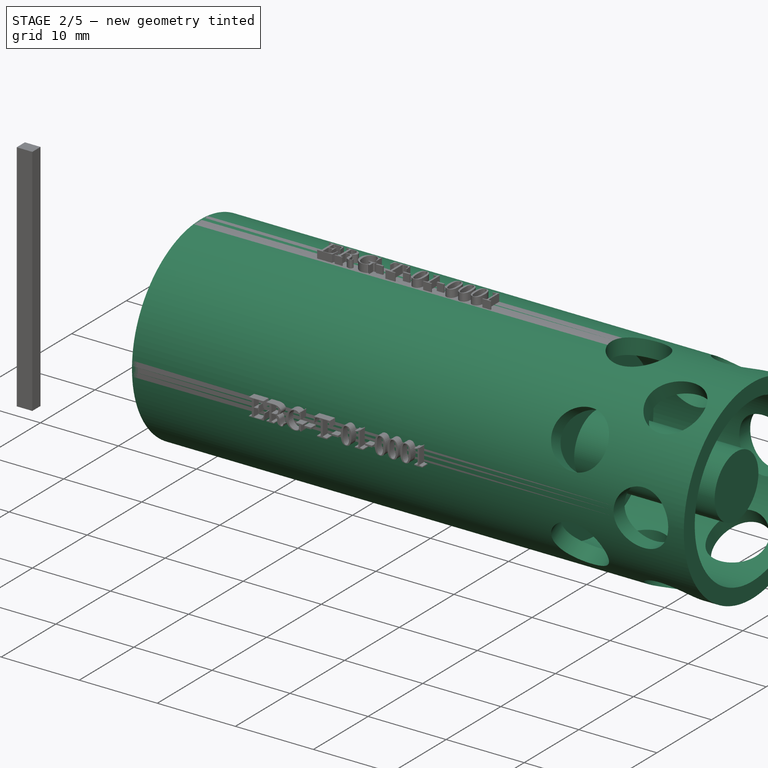
[diagram: stage 2 of 5 — iso view after this stage's code; geometry added in this stage tinted green]
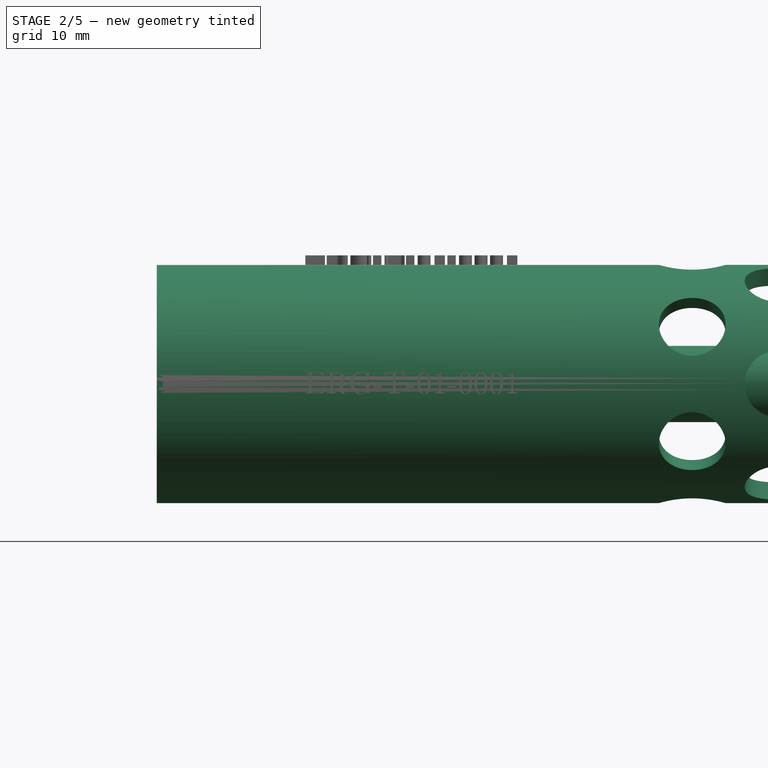
[diagram: stage 2 of 5 — front view after this stage's code; geometry added in this stage tinted green]
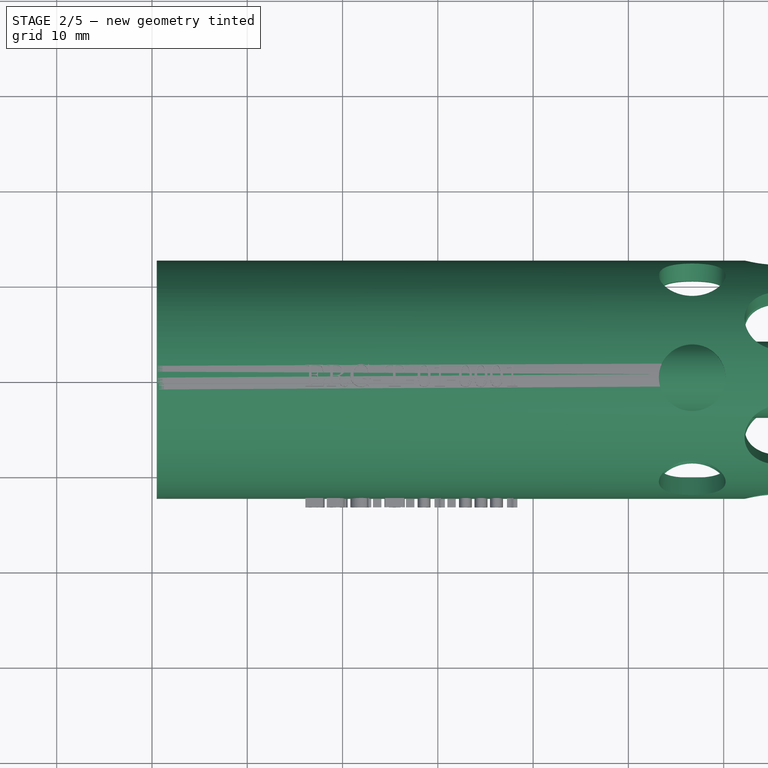
[diagram: stage 2 of 5 — top view after this stage's code; geometry added in this stage tinted green]
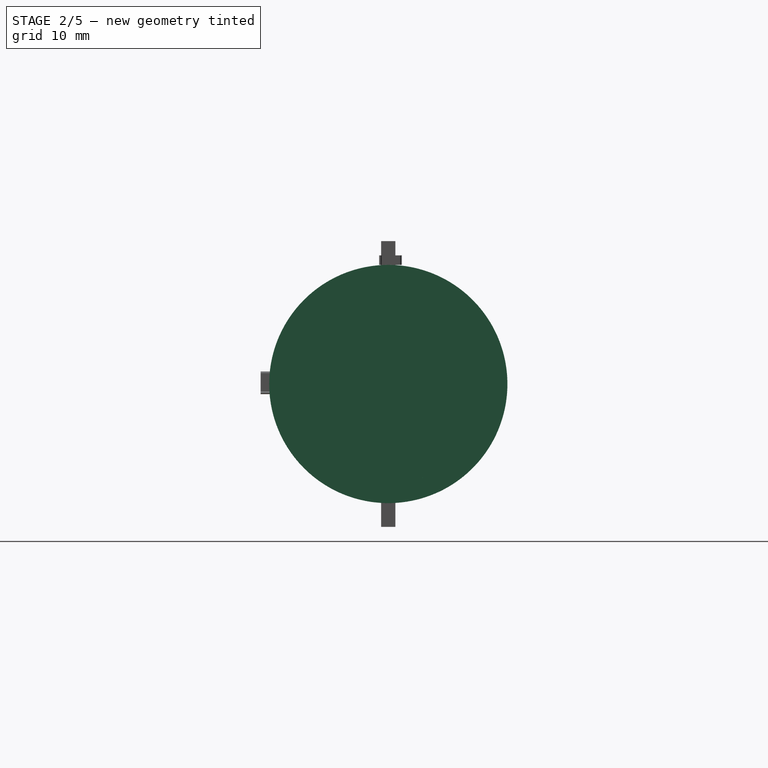
[diagram: stage 2 of 5 — right view after this stage's code; geometry added in this stage tinted green]
FEATURE [Drawing::FeatureViewPart] Ortho014  label="Ortho_0_006"
  Direction = (1,0,0)
  HiddenWidth = 0.15
  LineWidth = 0.35
  Rotation = 0
  Scale = 1.5
  ShowHiddenLines = false
  ShowSmoothLines = false
  Source = -> Cut063
  Tolerance = 0.05
  ViewResult = <blob: 13311 chars omitted>
  Visible = false
  X = 52.7375
  Y = 81.5
FEATURE [Drawing::FeatureViewPart] Ortho015  label="Ortho_1_004"
  Direction = (0,0,1)
  HiddenWidth = 0.15
  LineWidth = 0.35
  Rotation = 180
  Scale = 1.5
  ShowHiddenLines = false
  ShowSmoothLines = false
  Source = -> Cut063
  Tolerance = 0.05
  ViewResult = <blob: 45359 chars omitted>
  Visible = false
  X = 437.775
  Y = 81.5
FEATURE [Drawing::FeatureViewPart] Ortho016  label="Ortho_2_0"
  Direction = (-1,0,0)
  HiddenWidth = 0.15
  LineWidth = 0.35
  Rotation = 0
  Scale = 1.5
  ShowHiddenLines = false
  ShowSmoothLines = false
  Source = -> Cut063
  Tolerance = 0.05
  ViewResult = <blob: 22962 chars omitted>
  Visible = false
  X = 244.262
  Y = 81.5
FEATURE [Drawing::FeaturePage] Page006  label="SensorHolder2-SV"
  EditableTexts = Dr. Zoidberg | 05.02.2019 | x1.5 | unknowm | ERG-T-01 | Sensor Holder 2. Surface View. | 01 | 01
  Group = -> [Ortho014,Ortho015,Ortho016,dia016,dia018,dia021,dim075,dim076,dim077,dim078,dim079,dim080,dim081,dim082,dim083,dim084,dim085,dim086,dim087,dim088,dia020,dim090,dim089,dim091,dim093,dia017,dia019,dim181,dim180,dim182,dim183]
  Template = <path>//share/freecad/Mod/Drawing/Templates/A4_Landscape.svg
FEATURE [Drawing::FeatureViewPython] dim099  # drawing view (typed FeaturePython)
  Rotation = 0
  ViewResult = <g> \n  <line x1="180.450000" y1="86.150000" x2="180.450000" y2="131.368952" style="stroke:rgb(255,0,0);stroke-width:0.10" />\n<line x1="241.950000" y1="86.150000" x2="241.950000" y2="131.368952" style="stroke:rgb(255,0,0);stroke-width:0.10" />\n<line x1="180.450000" y1="130.368952" x2="241.950000" y2="130.368952" style="stroke:rgb(255,0,0);stroke-width:0.10" /> \n  <polygon points="241.950000,130.368952 239.950000,129.868952 239.450000,130.368952 239.950000,130.868952" style="fill:rgb(255,0,0);stroke:rgb(255,0,0);stroke-width:0" /><polygon points="180.450000,130.368952 182.450000,130.868952 182.950000,130.368952 182.450000,129.868952" style="fill:rgb(255,0,0);stroke:rgb(255,0,0);stroke-width:0" /> \n  <text x="211.200000" y="128.368952" font-family="inherit" font-size="3.6" fill="rgb(0,0,0)" text-anchor="middle" transform="rotate(0.000000 211.200000,128.368952)" >20.5</text> </g>
  Visible = false
  X = 0
  Y = 0
  arrowL1 = 2
  arrowL2 = 0.5
  arrowW = 1
  arrow_scheme = 0
  autoPlaceOffset = 2
  autoPlaceText = true
  click1_x = 242.005
  click1_y = 130.369
  click2_x = 242.005
  click2_y = 130.369
  comma_decimal_place = false
  dimension_line_overshoot = 1
  gap_datum_points = 0
  halfDimension_linear = false
  lineColor = rgb(255,0,0)
  strokeWidth = 0.1
  textFormat_linear = %(value)3.3f
  textRenderer_color = rgb(0,0,0)
  textRenderer_family = inherit
  textRenderer_size = 3.6
  unit_custom_scale = 1.7
  unit_scheme = 0
FEATURE [Drawing::FeatureViewPython] dim101  # drawing view (typed FeaturePython)
  Rotation = 0
  ViewResult = <g> \n  <line x1="180.450000" y1="76.850000" x2="161.518188" y2="76.850000" style="stroke:rgb(255,0,0);stroke-width:0.10" />\n<line x1="180.450000" y1="86.150000" x2="161.518188" y2="86.150000" style="stroke:rgb(255,0,0);stroke-width:0.10" />\n<line x1="162.518188" y1="76.850000" x2="162.518188" y2="86.150000" style="stroke:rgb(255,0,0);stroke-width:0.10" /> \n  <polygon points="162.518188,86.150000 163.018188,84.150000 162.518188,83.650000 162.018188,84.150000" style="fill:rgb(255,0,0);stroke:rgb(255,0,0);stroke-width:0" /><polygon points="162.518188,76.850000 162.018188,78.850000 162.518188,79.350000 163.018188,78.850000" style="fill:rgb(255,0,0);stroke:rgb(255,0,0);stroke-width:0" /> \n  <text x="160.518188" y="81.500000" font-family="inherit" font-size="3.6" fill="rgb(0,0,0)" text-anchor="middle" transform="rotate(-90.000000 160.518188,81.500000)" >3.1</text> </g>
  Visible = false
  X = 0
  Y = 0
  arrowL1 = 2
  arrowL2 = 0.5
  arrowW = 1
  arrow_scheme = 0
  autoPlaceOffset = 2
  autoPlaceText = true
  click1_x = 162.518
  click1_y = 90.1191
  click2_x = 162.518
  click2_y = 90.1191
  comma_decimal_place = false
  dimension_line_overshoot = 1
  gap_datum_points = 0
  halfDimension_linear = false
  lineColor = rgb(255,0,0)
  strokeWidth = 0.1
  textFormat_linear = %(value)3.3f
  textRenderer_color = rgb(0,0,0)
  textRenderer_family = inherit
  textRenderer_size = 3.6
  unit_custom_scale = 1.7
  unit_scheme = 0
FEATURE [Drawing::FeatureViewPython] dim102  # drawing view (typed FeaturePython)
  Rotation = 0
  ViewResult = <g> \n  <line x1="180.450000" y1="61.850000" x2="147.595291" y2="61.850000" style="stroke:rgb(255,0,0);stroke-width:0.10" />\n<line x1="180.450000" y1="101.150000" x2="147.595291" y2="101.150000" style="stroke:rgb(255,0,0);stroke-width:0.10" />\n<line x1="148.595291" y1="61.850000" x2="148.595291" y2="101.150000" style="stroke:rgb(255,0,0);stroke-width:0.10" /> \n  <polygon points="148.595291,101.150000 149.095291,99.150000 148.595291,98.650000 148.095291,99.150000" style="fill:rgb(255,0,0);stroke:rgb(255,0,0);stroke-width:0" /><polygon points="148.595291,61.850000 148.095291,63.850000 148.595291,64.350000 149.095291,63.850000" style="fill:rgb(255,0,0);stroke:rgb(255,0,0);stroke-width:0" /> \n  <text x="146.595291" y="81.500000" font-family="inherit" font-size="3.6" fill="rgb(0,0,0)" text-anchor="middle" transform="rotate(-90.000000 146.595291,81.500000)" >13.1</text> </g>
  Visible = false
  X = 0
  Y = 0
  arrowL1 = 2
  arrowL2 = 0.5
  arrowW = 1
  arrow_scheme = 0
  autoPlaceOffset = 2
  autoPlaceText = true
  click1_x = 148.595
  click1_y = 103.029
  click2_x = 148.595
  click2_y = 103.029
  comma_decimal_place = false
  dimension_line_overshoot = 1
  gap_datum_points = 0
  halfDimension_linear = false
  lineColor = rgb(255,0,0)
  strokeWidth = 0.1
  textFormat_linear = %(value)3.3f
  textRenderer_color = rgb(0,0,0)
  textRenderer_family = inherit
  textRenderer_size = 3.6
  unit_custom_scale = 1.7
  unit_scheme = 0
FEATURE [Drawing::FeatureViewPython] dim092  # drawing view (typed FeaturePython)
  Rotation = 0
  ViewResult = <g> \n  <line x1="42.450000" y1="53.750000" x2="42.450000" y2="17.024819" style="stroke:rgb(255,0,0);stroke-width:0.10" />\n<line x1="254.550000" y1="44.000000" x2="254.550000" y2="17.024819" style="stroke:rgb(255,0,0);stroke-width:0.10" />\n<line x1="42.450000" y1="18.024819" x2="254.550000" y2="18.024819" style="stroke:rgb(255,0,0);stroke-width:0.10" /> \n  <polygon points="254.550000,18.024819 252.550000,17.524819 252.050000,18.024819 252.550000,18.524819" style="fill:rgb(255,0,0);stroke:rgb(255,0,0);stroke-width:0" /><polygon points="42.450000,18.024819 44.450000,18.524819 44.950000,18.024819 44.450000,17.524819" style="fill:rgb(255,0,0);stroke:rgb(255,0,0);stroke-width:0" /> \n  <text x="148.500000" y="16.024819" font-family="inherit" font-size="3.6" fill="rgb(0,0,0)" text-anchor="middle" transform="rotate(0.000000 148.500000,16.024819)" >70.7</text> </g>
  Visible = false
  X = 0
  Y = 0
  arrowL1 = 2
  arrowL2 = 0.5
  arrowW = 1
  arrow_scheme = 0
  autoPlaceOffset = 2
  autoPlaceText = true
  click1_x = 249.852
  click1_y = 18.0248
  click2_x = 249.852
  click2_y = 18.0248
  comma_decimal_place = false
  dimension_line_overshoot = 1
  gap_datum_points = 0
  halfDimension_linear = false
  lineColor = rgb(255,0,0)
  strokeWidth = 0.1
  textFormat_linear = %(value)3.3f
  textRenderer_color = rgb(0,0,0)
  textRenderer_family = inherit
  textRenderer_size = 3.6
  unit_custom_scale = 1.7
  unit_scheme = 0
FEATURE [Drawing::FeatureViewPython] dim100  # drawing view (typed FeaturePython)
  Rotation = 0
  ViewResult = <g> \n  <line x1="180.450000" y1="101.150000" x2="180.450000" y2="151.198533" style="stroke:rgb(255,0,0);stroke-width:0.10" />\n<line x1="42.450000" y1="109.250000" x2="42.450000" y2="151.198533" style="stroke:rgb(255,0,0);stroke-width:0.10" />\n<line x1="180.450000" y1="150.198533" x2="42.450000" y2="150.198533" style="stroke:rgb(255,0,0);stroke-width:0.10" /> \n  <polygon points="42.450000,150.198533 44.450000,150.698533 44.950000,150.198533 44.450000,149.698533" style="fill:rgb(255,0,0);stroke:rgb(255,0,0);stroke-width:0" /><polygon points="180.450000,150.198533 178.450000,149.698533 177.950000,150.198533 178.450000,150.698533" style="fill:rgb(255,0,0);stroke:rgb(255,0,0);stroke-width:0" /> \n  <text x="111.450000" y="148.198533" font-family="inherit" font-size="3.6" fill="rgb(0,0,0)" text-anchor="middle" transform="rotate(0.000000 111.450000,148.198533)" >46</text> </g>
  Visible = false
  X = 0
  Y = 0
  arrowL1 = 2
  arrowL2 = 0.5
  arrowW = 1
  arrow_scheme = 0
  autoPlaceOffset = 2
  autoPlaceText = true
  click1_x = 55.9025
  click1_y = 150.199
  click2_x = 55.9025
  click2_y = 150.199
  comma_decimal_place = false
  dimension_line_overshoot = 1
  gap_datum_points = 0
  halfDimension_linear = false
  lineColor = rgb(255,0,0)
  strokeWidth = 0.1
  textFormat_linear = %(value)3.3f
  textRenderer_color = rgb(0,0,0)
  textRenderer_family = inherit
  textRenderer_size = 3.6
  unit_custom_scale = 1.7
  unit_scheme = 0
FEATURE [Drawing::FeatureViewPython] dim103  # drawing view (typed FeaturePython)
  Rotation = 0
  ViewResult = <g> \n  <line x1="103.950000" y1="50.300000" x2="103.950000" y2="23.232085" style="stroke:rgb(255,0,0);stroke-width:0.10" />\n<line x1="108.450000" y1="50.300000" x2="108.450000" y2="23.232085" style="stroke:rgb(255,0,0);stroke-width:0.10" />\n<line x1="103.950000" y1="24.232085" x2="108.450000" y2="24.232085" style="stroke:rgb(255,0,0);stroke-width:0.10" /> \n  <polygon points="108.450000,24.232085 110.450000,24.732085 110.950000,24.232085 110.450000,23.732085" style="fill:rgb(255,0,0);stroke:rgb(255,0,0);stroke-width:0" /><polygon points="103.950000,24.232085 101.950000,23.732085 101.450000,24.232085 101.950000,24.732085" style="fill:rgb(255,0,0);stroke:rgb(255,0,0);stroke-width:0" /> \n  <text x="106.200000" y="22.232085" font-family="inherit" font-size="3.6" fill="rgb(0,0,0)" text-anchor="middle" transform="rotate(0.000000 106.200000,22.232085)" >1.5</text> </g>
  Visible = false
  X = 0
  Y = 0
  arrowL1 = 2
  arrowL2 = 0.5
  arrowW = 1
  arrow_scheme = 0
  autoPlaceOffset = 2
  autoPlaceText = true
  click1_x = 124.53
  click1_y = 24.2321
  click2_x = 124.53
  click2_y = 24.2321
  comma_decimal_place = false
  dimension_line_overshoot = 1
  gap_datum_points = 0
  halfDimension_linear = false
  lineColor = rgb(255,0,0)
  strokeWidth = 0.1
  textFormat_linear = %(value)3.3f
  textRenderer_color = rgb(0,0,0)
  textRenderer_family = inherit
  textRenderer_size = 3.6
  unit_custom_scale = 1.7
  unit_scheme = 0
FEATURE [Drawing::FeatureViewPython] dim117  # drawing view (typed FeaturePython)
  Rotation = 0
  ViewResult = <g> \n  <line x1="42.450000" y1="54.350000" x2="21.177083" y2="54.350000" style="stroke:rgb(255,0,0);stroke-width:0.10" />\n<line x1="42.450000" y1="109.250000" x2="21.177083" y2="109.250000" style="stroke:rgb(255,0,0);stroke-width:0.10" />\n<line x1="22.177083" y1="54.350000" x2="22.177083" y2="109.250000" style="stroke:rgb(255,0,0);stroke-width:0.10" /> \n  <polygon points="22.177083,109.250000 22.677083,107.250000 22.177083,106.750000 21.677083,107.250000" style="fill:rgb(255,0,0);stroke:rgb(255,0,0);stroke-width:0" /><polygon points="22.177083,54.350000 21.677083,56.350000 22.177083,56.850000 22.677083,56.350000" style="fill:rgb(255,0,0);stroke:rgb(255,0,0);stroke-width:0" /> \n  <text x="20.177083" y="81.800000" font-family="inherit" font-size="3.6" fill="rgb(0,0,0)" text-anchor="middle" transform="rotate(-90.000000 20.177083,81.800000)" >18.3</text> </g>
  Visible = false
  X = 0
  Y = 0
  arrowL1 = 2
  arrowL2 = 0.5
  arrowW = 1
  arrow_scheme = 0
  autoPlaceOffset = 2
  autoPlaceText = true
  click1_x = 22.1771
  click1_y = 109.994
  click2_x = 22.1771
  click2_y = 109.994
  comma_decimal_place = false
  dimension_line_overshoot = 1
  gap_datum_points = 0
  halfDimension_linear = false
  lineColor = rgb(255,0,0)
  strokeWidth = 0.1
  textFormat_linear = %(value)3.3f
  textRenderer_color = rgb(0,0,0)
  textRenderer_family = inherit
  textRenderer_size = 3.6
  unit_custom_scale = 1.7
  unit_scheme = 0
FEATURE [Drawing::FeatureViewPython] dim118  # drawing view (typed FeaturePython)
  Rotation = 0
  ViewResult = <g> \n  <line x1="194.550000" y1="50.000000" x2="194.550000" y2="58.771857" style="stroke:rgb(255,0,0);stroke-width:0.10" />\n<line x1="227.550000" y1="50.000000" x2="227.550000" y2="58.771857" style="stroke:rgb(255,0,0);stroke-width:0.10" />\n<line x1="194.550000" y1="57.771857" x2="227.550000" y2="57.771857" style="stroke:rgb(255,0,0);stroke-width:0.10" /> \n  <polygon points="227.550000,57.771857 225.550000,57.271857 225.050000,57.771857 225.550000,58.271857" style="fill:rgb(255,0,0);stroke:rgb(255,0,0);stroke-width:0" /><polygon points="194.550000,57.771857 196.550000,58.271857 197.050000,57.771857 196.550000,57.271857" style="fill:rgb(255,0,0);stroke:rgb(255,0,0);stroke-width:0" /> \n  <text x="211.050000" y="55.771857" font-family="inherit" font-size="3.6" fill="rgb(0,0,0)" text-anchor="middle" transform="rotate(0.000000 211.050000,55.771857)" >11</text> </g>
  Visible = false
  X = 0
  Y = 0
  arrowL1 = 2
  arrowL2 = 0.5
  arrowW = 1
  arrow_scheme = 0
  autoPlaceOffset = 2
  autoPlaceText = true
  click1_x = 226.004
  click1_y = 57.7719
  click2_x = 226.004
  click2_y = 57.7719
  comma_decimal_place = false
  dimension_line_overshoot = 1
  gap_datum_points = 0
  halfDimension_linear = false
  lineColor = rgb(255,0,0)
  strokeWidth = 0.1
  textFormat_linear = %(value)3.3f
  textRenderer_color = rgb(0,0,0)
  textRenderer_family = inherit
  textRenderer_size = 3.6
  unit_custom_scale = 1.7
  unit_scheme = 0
FEATURE [Drawing::FeatureViewPython] dim119  # drawing view (typed FeaturePython)
  Rotation = 0
  ViewResult = <g> \n  <line x1="248.550000" y1="113.000000" x2="248.550000" y2="104.606955" style="stroke:rgb(255,0,0);stroke-width:0.10" />\n<line x1="254.550000" y1="113.000000" x2="254.550000" y2="104.606955" style="stroke:rgb(255,0,0);stroke-width:0.10" />\n<line x1="248.550000" y1="105.606955" x2="254.550000" y2="105.606955" style="stroke:rgb(255,0,0);stroke-width:0.10" /> \n  <polygon points="254.550000,105.606955 256.550000,106.106955 257.050000,105.606955 256.550000,105.106955" style="fill:rgb(255,0,0);stroke:rgb(255,0,0);stroke-width:0" /><polygon points="248.550000,105.606955 246.550000,105.106955 246.050000,105.606955 246.550000,106.106955" style="fill:rgb(255,0,0);stroke:rgb(255,0,0);stroke-width:0" /> \n  <text x="251.550000" y="103.606955" font-family="inherit" font-size="3.6" fill="rgb(0,0,0)" text-anchor="middle" transform="rotate(0.000000 251.550000,103.606955)" >2</text> </g>
  Visible = false
  X = 0
  Y = 0
  arrowL1 = 2
  arrowL2 = 0.5
  arrowW = 1
  arrow_scheme = 0
  autoPlaceOffset = 2
  autoPlaceText = true
  click1_x = 254.889
  click1_y = 105.607
  click2_x = 254.889
  click2_y = 105.607
  comma_decimal_place = false
  dimension_line_overshoot = 1
  gap_datum_points = 0
  halfDimension_linear = false
  lineColor = rgb(255,0,0)
  strokeWidth = 0.1
  textFormat_linear = %(value)3.3f
  textRenderer_color = rgb(0,0,0)
  textRenderer_family = inherit
  textRenderer_size = 3.6
  unit_custom_scale = 1.7
  unit_scheme = 0
FEATURE [Drawing::FeatureViewPython] dim120  # drawing view (typed FeaturePython)
  Rotation = 0
  ViewResult = <g> \n  <line x1="254.550000" y1="44.000000" x2="268.137068" y2="44.000000" style="stroke:rgb(255,0,0);stroke-width:0.10" />\n<line x1="254.550000" y1="50.000000" x2="268.137068" y2="50.000000" style="stroke:rgb(255,0,0);stroke-width:0.10" />\n<line x1="267.137068" y1="44.000000" x2="267.137068" y2="50.000000" style="stroke:rgb(255,0,0);stroke-width:0.10" /> \n  <polygon points="267.137068,50.000000 266.637068,52.000000 267.137068,52.500000 267.637068,52.000000" style="fill:rgb(255,0,0);stroke:rgb(255,0,0);stroke-width:0" /><polygon points="267.137068,44.000000 267.637068,42.000000 267.137068,41.500000 266.637068,42.000000" style="fill:rgb(255,0,0);stroke:rgb(255,0,0);stroke-width:0" /> \n  <text x="265.137068" y="47.000000" font-family="inherit" font-size="3.6" fill="rgb(0,0,0)" text-anchor="middle" transform="rotate(-90.000000 265.137068,47.000000)" >2</text> </g>
  Visible = false
  X = 0
  Y = 0
  arrowL1 = 2
  arrowL2 = 0.5
  arrowW = 1
  arrow_scheme = 0
  autoPlaceOffset = 2
  autoPlaceText = true
  click1_x = 267.137
  click1_y = 51.0703
  click2_x = 267.137
  click2_y = 51.0703
  comma_decimal_place = false
  dimension_line_overshoot = 1
  gap_datum_points = 0
  halfDimension_linear = false
  lineColor = rgb(255,0,0)
  strokeWidth = 0.1
  textFormat_linear = %(value)3.3f
  textRenderer_color = rgb(0,0,0)
  textRenderer_family = inherit
  textRenderer_size = 3.6
  unit_custom_scale = 1.7
  unit_scheme = 0
FEATURE [Drawing::FeatureViewPython] dim121  # drawing view (typed FeaturePython)
  Rotation = 0
  ViewResult = <g> \n  <line x1="254.550000" y1="113.000000" x2="267.443806" y2="113.000000" style="stroke:rgb(255,0,0);stroke-width:0.10" />\n<line x1="254.550000" y1="119.000000" x2="267.443806" y2="119.000000" style="stroke:rgb(255,0,0);stroke-width:0.10" />\n<line x1="266.443806" y1="113.000000" x2="266.443806" y2="119.000000" style="stroke:rgb(255,0,0);stroke-width:0.10" /> \n  <polygon points="266.443806,119.000000 265.943806,121.000000 266.443806,121.500000 266.943806,121.000000" style="fill:rgb(255,0,0);stroke:rgb(255,0,0);stroke-width:0" /><polygon points="266.443806,113.000000 266.943806,111.000000 266.443806,110.500000 265.943806,111.000000" style="fill:rgb(255,0,0);stroke:rgb(255,0,0);stroke-width:0" /> \n  <text x="264.443806" y="116.000000" font-family="inherit" font-size="3.6" fill="rgb(0,0,0)" text-anchor="middle" transform="rotate(-90.000000 264.443806,116.000000)" >2</text> </g>
  Visible = false
  X = 0
  Y = 0
  arrowL1 = 2
  arrowL2 = 0.5
  arrowW = 1
  arrow_scheme = 0
  autoPlaceOffset = 2
  autoPlaceText = true
  click1_x = 266.444
  click1_y = 118.779
  click2_x = 266.444
  click2_y = 118.779
  comma_decimal_place = false
  dimension_line_overshoot = 1
  gap_datum_points = 0
  halfDimension_linear = false
  lineColor = rgb(255,0,0)
  strokeWidth = 0.1
  textFormat_linear = %(value)3.3f
  textRenderer_color = rgb(0,0,0)
  textRenderer_family = inherit
  textRenderer_size = 3.6
  unit_custom_scale = 1.7
  unit_scheme = 0
FEATURE [Drawing::FeatureViewPython] dim122  # drawing view (typed FeaturePython)
  Rotation = 0
  ViewResult = <g> \n  <line x1="180.450000" y1="101.150000" x2="161.454463" y2="101.150000" style="stroke:rgb(255,0,0);stroke-width:0.10" />\n<line x1="227.550000" y1="119.000000" x2="161.454463" y2="119.000000" style="stroke:rgb(255,0,0);stroke-width:0.10" />\n<line x1="162.454463" y1="101.150000" x2="162.454463" y2="119.000000" style="stroke:rgb(255,0,0);stroke-width:0.10" /> \n  <polygon points="162.454463,119.000000 162.954463,117.000000 162.454463,116.500000 161.954463,117.000000" style="fill:rgb(255,0,0);stroke:rgb(255,0,0);stroke-width:0" /><polygon points="162.454463,101.150000 161.954463,103.150000 162.454463,103.650000 162.954463,103.150000" style="fill:rgb(255,0,0);stroke:rgb(255,0,0);stroke-width:0" /> \n  <text x="160.454463" y="110.075000" font-family="inherit" font-size="3.6" fill="rgb(0,0,0)" text-anchor="middle" transform="rotate(-90.000000 160.454463,110.075000)" >5.95</text> </g>
  Visible = false
  X = 0
  Y = 0
  arrowL1 = 2
  arrowL2 = 0.5
  arrowW = 1
  arrow_scheme = 0
  autoPlaceOffset = 2
  autoPlaceText = true
  click1_x = 162.454
  click1_y = 112.308
  click2_x = 162.454
  click2_y = 112.308
  comma_decimal_place = false
  dimension_line_overshoot = 1
  gap_datum_points = 0
  halfDimension_linear = false
  lineColor = rgb(255,0,0)
  strokeWidth = 0.1
  textFormat_linear = %(value)3.3f
  textRenderer_color = rgb(0,0,0)
  textRenderer_family = inherit
  textRenderer_size = 3.6
  unit_custom_scale = 1.7
  unit_scheme = 0
FEATURE [Drawing::FeatureViewPython] dim123  # drawing view (typed FeaturePython)
  Rotation = 0
  ViewResult = <g> \n  <line x1="180.450000" y1="61.850000" x2="161.916638" y2="61.850000" style="stroke:rgb(255,0,0);stroke-width:0.10" />\n<line x1="227.550000" y1="44.000000" x2="161.916638" y2="44.000000" style="stroke:rgb(255,0,0);stroke-width:0.10" />\n<line x1="162.916638" y1="61.850000" x2="162.916638" y2="44.000000" style="stroke:rgb(255,0,0);stroke-width:0.10" /> \n  <polygon points="162.916638,44.000000 162.416638,46.000000 162.916638,46.500000 163.416638,46.000000" style="fill:rgb(255,0,0);stroke:rgb(255,0,0);stroke-width:0" /><polygon points="162.916638,61.850000 163.416638,59.850000 162.916638,59.350000 162.416638,59.850000" style="fill:rgb(255,0,0);stroke:rgb(255,0,0);stroke-width:0" /> \n  <text x="160.916638" y="52.925000" font-family="inherit" font-size="3.6" fill="rgb(0,0,0)" text-anchor="middle" transform="rotate(-90.000000 160.916638,52.925000)" >5.95</text> </g>
  Visible = false
  X = 0
  Y = 0
  arrowL1 = 2
  arrowL2 = 0.5
  arrowW = 1
  arrow_scheme = 0
  autoPlaceOffset = 2
  autoPlaceText = true
  click1_x = 162.917
  click1_y = 60.5449
  click2_x = 162.917
  click2_y = 60.5449
  comma_decimal_place = false
  dimension_line_overshoot = 1
  gap_datum_points = 0
  halfDimension_linear = false
  lineColor = rgb(255,0,0)
  strokeWidth = 0.1
  textFormat_linear = %(value)3.3f
  textRenderer_color = rgb(0,0,0)
  textRenderer_family = inherit
  textRenderer_size = 3.6
  unit_custom_scale = 1.7
  unit_scheme = 0
FEATURE [Drawing::FeatureViewPython] dim104  # drawing view (typed FeaturePython)
  Rotation = 0
  ViewResult = <g> \n  <line x1="99.450000" y1="50.300000" x2="99.450000" y2="29.972135" style="stroke:rgb(255,0,0);stroke-width:0.10" />\n<line x1="94.950000" y1="50.300000" x2="94.950000" y2="29.972135" style="stroke:rgb(255,0,0);stroke-width:0.10" />\n<line x1="99.450000" y1="30.972135" x2="94.950000" y2="30.972135" style="stroke:rgb(255,0,0);stroke-width:0.10" /> \n  <polygon points="94.950000,30.972135 92.950000,30.472135 92.450000,30.972135 92.950000,31.472135" style="fill:rgb(255,0,0);stroke:rgb(255,0,0);stroke-width:0" /><polygon points="99.450000,30.972135 101.450000,31.472135 101.950000,30.972135 101.450000,30.472135" style="fill:rgb(255,0,0);stroke:rgb(255,0,0);stroke-width:0" /> \n  <text x="97.200000" y="28.972135" font-family="inherit" font-size="3.6" fill="rgb(0,0,0)" text-anchor="middle" transform="rotate(0.000000 97.200000,28.972135)" >1.5</text> </g>
  Visible = false
  X = 0
  Y = 0
  arrowL1 = 2
  arrowL2 = 0.5
  arrowW = 1
  arrow_scheme = 0
  autoPlaceOffset = 2
  autoPlaceText = true
  click1_x = 96.7679
  click1_y = 30.9721
  click2_x = 96.7679
  click2_y = 30.9721
  comma_decimal_place = false
  dimension_line_overshoot = 1
  gap_datum_points = 0
  halfDimension_linear = false
  lineColor = rgb(255,0,0)
  strokeWidth = 0.1
  textFormat_linear = %(value)3.3f
  textRenderer_color = rgb(0,0,0)
  textRenderer_family = inherit
  textRenderer_size = 3.6
  unit_custom_scale = 1.7
  unit_scheme = 0
FEATURE [Drawing::FeatureViewPython] dim105  # drawing view (typed FeaturePython)
  Rotation = 0
  ViewResult = <g> \n  <line x1="90.450000" y1="50.300000" x2="90.450000" y2="37.996004" style="stroke:rgb(255,0,0);stroke-width:0.10" />\n<line x1="85.119000" y1="50.300000" x2="85.119000" y2="37.996004" style="stroke:rgb(255,0,0);stroke-width:0.10" />\n<line x1="90.450000" y1="38.996004" x2="85.119000" y2="38.996004" style="stroke:rgb(255,0,0);stroke-width:0.10" /> \n  <polygon points="85.119000,38.996004 83.119000,38.496004 82.619000,38.996004 83.119000,39.496004" style="fill:rgb(255,0,0);stroke:rgb(255,0,0);stroke-width:0" /><polygon points="90.450000,38.996004 92.450000,39.496004 92.950000,38.996004 92.450000,38.496004" style="fill:rgb(255,0,0);stroke:rgb(255,0,0);stroke-width:0" /> \n  <text x="87.784500" y="36.996004" font-family="inherit" font-size="3.6" fill="rgb(0,0,0)" text-anchor="middle" transform="rotate(0.000000 87.784500,36.996004)" >1.8</text> </g>
  Visible = false
  X = 0
  Y = 0
  arrowL1 = 2
  arrowL2 = 0.5
  arrowW = 1
  arrow_scheme = 0
  autoPlaceOffset = 2
  autoPlaceText = true
  click1_x = 87.2997
  click1_y = 38.996
  click2_x = 87.2997
  click2_y = 38.996
  comma_decimal_place = false
  dimension_line_overshoot = 1
  gap_datum_points = 0
  halfDimension_linear = false
  lineColor = rgb(255,0,0)
  strokeWidth = 0.1
  textFormat_linear = %(value)3.1f
  textRenderer_color = rgb(0,0,0)
  textRenderer_family = inherit
  textRenderer_size = 3.6
  unit_custom_scale = 1.7
  unit_scheme = 0
FEATURE [Drawing::FeatureViewPython] dim106  # drawing view (typed FeaturePython)
  Rotation = 0
  ViewResult = <g> \n  <line x1="99.450000" y1="112.700000" x2="99.450000" y2="127.230886" style="stroke:rgb(255,0,0);stroke-width:0.10" />\n<line x1="103.950000" y1="112.700000" x2="103.950000" y2="127.230886" style="stroke:rgb(255,0,0);stroke-width:0.10" />\n<line x1="99.450000" y1="126.230886" x2="103.950000" y2="126.230886" style="stroke:rgb(255,0,0);stroke-width:0.10" /> \n  <polygon points="103.950000,126.230886 105.950000,126.730886 106.450000,126.230886 105.950000,125.730886" style="fill:rgb(255,0,0);stroke:rgb(255,0,0);stroke-width:0" /><polygon points="99.450000,126.230886 97.450000,125.730886 96.950000,126.230886 97.450000,126.730886" style="fill:rgb(255,0,0);stroke:rgb(255,0,0);stroke-width:0" /> \n  <text x="101.700000" y="124.230886" font-family="inherit" font-size="3.6" fill="rgb(0,0,0)" text-anchor="middle" transform="rotate(0.000000 101.700000,124.230886)" >1.5</text> </g>
  Visible = false
  X = 0
  Y = 0
  arrowL1 = 2
  arrowL2 = 0.5
  arrowW = 1
  arrow_scheme = 0
  autoPlaceOffset = 2
  autoPlaceText = true
  click1_x = 105.287
  click1_y = 126.231
  click2_x = 105.287
  click2_y = 126.231
  comma_decimal_place = false
  dimension_line_overshoot = 1
  gap_datum_points = 0
  halfDimension_linear = false
  lineColor = rgb(255,0,0)
  strokeWidth = 0.1
  textFormat_linear = %(value)3.3f
  textRenderer_color = rgb(0,0,0)
  textRenderer_family = inherit
  textRenderer_size = 3.6
  unit_custom_scale = 1.7
  unit_scheme = 0
FEATURE [Drawing::FeatureViewPython] dim107  # drawing view (typed FeaturePython)
  Rotation = 0
  ViewResult = <g> \n  <line x1="94.950000" y1="112.700000" x2="94.950000" y2="131.193290" style="stroke:rgb(255,0,0);stroke-width:0.10" />\n<line x1="90.450000" y1="112.700000" x2="90.450000" y2="131.193290" style="stroke:rgb(255,0,0);stroke-width:0.10" />\n<line x1="94.950000" y1="130.193290" x2="90.450000" y2="130.193290" style="stroke:rgb(255,0,0);stroke-width:0.10" /> \n  <polygon points="90.450000,130.193290 88.450000,129.693290 87.950000,130.193290 88.450000,130.693290" style="fill:rgb(255,0,0);stroke:rgb(255,0,0);stroke-width:0" /><polygon points="94.950000,130.193290 96.950000,130.693290 97.450000,130.193290 96.950000,129.693290" style="fill:rgb(255,0,0);stroke:rgb(255,0,0);stroke-width:0" /> \n  <text x="92.700000" y="128.193290" font-family="inherit" font-size="3.6" fill="rgb(0,0,0)" text-anchor="middle" transform="rotate(0.000000 92.700000,128.193290)" >1.5</text> </g>
  Visible = false
  X = 0
  Y = 0
  arrowL1 = 2
  arrowL2 = 0.5
  arrowW = 1
  arrow_scheme = 0
  autoPlaceOffset = 2
  autoPlaceText = true
  click1_x = 92.1542
  click1_y = 130.193
  click2_x = 92.1542
  click2_y = 130.193
  comma_decimal_place = false
  dimension_line_overshoot = 1
  gap_datum_points = 0
  halfDimension_linear = false
  lineColor = rgb(255,0,0)
  strokeWidth = 0.1
  textFormat_linear = %(value)3.3f
  textRenderer_color = rgb(0,0,0)
  textRenderer_family = inherit
  textRenderer_size = 3.6
  unit_custom_scale = 1.7
  unit_scheme = 0
FEATURE [Drawing::FeatureViewPython] dim109  # drawing view (typed FeaturePython)
  Rotation = 0
  ViewResult = <g> \n  <line x1="42.450000" y1="109.250000" x2="42.450000" y2="141.449305" style="stroke:rgb(255,0,0);stroke-width:0.10" />\n<line x1="86.331000" y1="112.700000" x2="86.331000" y2="141.449305" style="stroke:rgb(255,0,0);stroke-width:0.10" />\n<line x1="42.450000" y1="140.449305" x2="86.331000" y2="140.449305" style="stroke:rgb(255,0,0);stroke-width:0.10" /> \n  <polygon points="86.331000,140.449305 84.331000,139.949305 83.831000,140.449305 84.331000,140.949305" style="fill:rgb(255,0,0);stroke:rgb(255,0,0);stroke-width:0" /><polygon points="42.450000,140.449305 44.450000,140.949305 44.950000,140.449305 44.450000,139.949305" style="fill:rgb(255,0,0);stroke:rgb(255,0,0);stroke-width:0" /> \n  <text x="64.390500" y="138.449305" font-family="inherit" font-size="3.6" fill="rgb(0,0,0)" text-anchor="middle" transform="rotate(0.000000 64.390500,138.449305)" >14.2</text> </g>
  Visible = false
  X = 0
  Y = 0
  arrowL1 = 2
  arrowL2 = 0.5
  arrowW = 1
  arrow_scheme = 0
  autoPlaceOffset = 2
  autoPlaceText = true
  click1_x = 85.3651
  click1_y = 140.449
  click2_x = 85.3651
  click2_y = 140.449
  comma_decimal_place = false
  dimension_line_overshoot = 1
  gap_datum_points = 0
  halfDimension_linear = false
  lineColor = rgb(255,0,0)
  strokeWidth = 0.1
  textFormat_linear = 14.2
  textRenderer_color = rgb(0,0,0)
  textRenderer_family = inherit
  textRenderer_size = 3.6
  unit_custom_scale = 1.7
  unit_scheme = 0
FEATURE [Drawing::FeatureViewPython] dim110  # drawing view (typed FeaturePython)
  Rotation = 0
  ViewResult = <g> \n  <line x1="86.331000" y1="112.700000" x2="86.331000" y2="141.449305" style="stroke:rgb(255,0,0);stroke-width:0.10" />\n<line x1="108.450000" y1="112.700000" x2="108.450000" y2="141.449305" style="stroke:rgb(255,0,0);stroke-width:0.10" />\n<line x1="86.331000" y1="140.449305" x2="108.450000" y2="140.449305" style="stroke:rgb(255,0,0);stroke-width:0.10" /> \n  <polygon points="108.450000,140.449305 106.450000,139.949305 105.950000,140.449305 106.450000,140.949305" style="fill:rgb(255,0,0);stroke:rgb(255,0,0);stroke-width:0" /><polygon points="86.331000,140.449305 88.331000,140.949305 88.831000,140.449305 88.331000,139.949305" style="fill:rgb(255,0,0);stroke:rgb(255,0,0);stroke-width:0" /> \n  <text x="97.390500" y="138.449305" font-family="inherit" font-size="3.6" fill="rgb(0,0,0)" text-anchor="middle" transform="rotate(0.000000 97.390500,138.449305)" >7.8</text> </g>
  Visible = false
  X = 0
  Y = 0
  arrowL1 = 2
  arrowL2 = 0.5
  arrowW = 1
  arrow_scheme = 0
  autoPlaceOffset = 2
  autoPlaceText = true
  click1_x = 107.068
  click1_y = 140.449
  click2_x = 107.068
  click2_y = 140.449
  comma_decimal_place = false
  dimension_line_overshoot = 1
  gap_datum_points = 0
  halfDimension_linear = false
  lineColor = rgb(255,0,0)
  strokeWidth = 0.1
  textFormat_linear = 7.8
  textRenderer_color = rgb(0,0,0)
  textRenderer_family = inherit
  textRenderer_size = 3.6
  unit_custom_scale = 1.7
  unit_scheme = 0
FEATURE [Drawing::FeatureViewPython] dim111  # drawing view (typed FeaturePython)
  Rotation = 0
  ViewResult = <g> \n  <line x1="108.450000" y1="112.700000" x2="108.450000" y2="87.033306" style="stroke:rgb(255,0,0);stroke-width:0.10" />\n<line x1="42.450000" y1="101.150000" x2="42.450000" y2="87.033306" style="stroke:rgb(255,0,0);stroke-width:0.10" />\n<line x1="108.450000" y1="88.033306" x2="42.450000" y2="88.033306" style="stroke:rgb(255,0,0);stroke-width:0.10" /> \n  <polygon points="42.450000,88.033306 44.450000,88.533306 44.950000,88.033306 44.450000,87.533306" style="fill:rgb(255,0,0);stroke:rgb(255,0,0);stroke-width:0" /><polygon points="108.450000,88.033306 106.450000,87.533306 105.950000,88.033306 106.450000,88.533306" style="fill:rgb(255,0,0);stroke:rgb(255,0,0);stroke-width:0" /> \n  <text x="75.450000" y="86.033306" font-family="inherit" font-size="3.6" fill="rgb(0,0,0)" text-anchor="middle" transform="rotate(0.000000 75.450000,86.033306)" >22</text> </g>
  Visible = false
  X = 0
  Y = 0
  arrowL1 = 2
  arrowL2 = 0.5
  arrowW = 1
  arrow_scheme = 0
  autoPlaceOffset = 2
  autoPlaceText = true
  click1_x = 48.8291
  click1_y = 88.0333
  click2_x = 48.8291
  click2_y = 88.0333
  comma_decimal_place = false
  dimension_line_overshoot = 1
  gap_datum_points = 0
  halfDimension_linear = false
  lineColor = rgb(255,0,0)
  strokeWidth = 0.1
  textFormat_linear = %(value)3.3f
  textRenderer_color = rgb(0,0,0)
  textRenderer_family = inherit
  textRenderer_size = 3.6
  unit_custom_scale = 1.7
  unit_scheme = 0
FEATURE [Drawing::FeatureViewPython] dim095  # drawing view (typed FeaturePython)
  Rotation = 0
  ViewResult = <g> \n  <line x1="108.450000" y1="44.000000" x2="108.450000" y2="26.453187" style="stroke:rgb(255,0,0);stroke-width:0.10" />\n<line x1="254.550000" y1="44.000000" x2="254.550000" y2="26.453187" style="stroke:rgb(255,0,0);stroke-width:0.10" />\n<line x1="108.450000" y1="27.453187" x2="254.550000" y2="27.453187" style="stroke:rgb(255,0,0);stroke-width:0.10" /> \n  <polygon points="254.550000,27.453187 252.550000,26.953187 252.050000,27.453187 252.550000,27.953187" style="fill:rgb(255,0,0);stroke:rgb(255,0,0);stroke-width:0" /><polygon points="108.450000,27.453187 110.450000,27.953187 110.950000,27.453187 110.450000,26.953187" style="fill:rgb(255,0,0);stroke:rgb(255,0,0);stroke-width:0" /> \n  <text x="181.500000" y="25.453187" font-family="inherit" font-size="3.6" fill="rgb(0,0,0)" text-anchor="middle" transform="rotate(0.000000 181.500000,25.453187)" >48.7</text> </g>
  Visible = false
  X = 0
  Y = 0
  arrowL1 = 2
  arrowL2 = 0.5
  arrowW = 1
  arrow_scheme = 0
  autoPlaceOffset = 2
  autoPlaceText = true
  click1_x = 256.784
  click1_y = 27.4532
  click2_x = 256.784
  click2_y = 27.4532
  comma_decimal_place = false
  dimension_line_overshoot = 1
  gap_datum_points = 0
  halfDimension_linear = false
  lineColor = rgb(255,0,0)
  strokeWidth = 0.1
  textFormat_linear = %(value)3.3f
  textRenderer_color = rgb(0,0,0)
  textRenderer_family = inherit
  textRenderer_size = 3.6
  unit_custom_scale = 1.7
  unit_scheme = 0
FEATURE [Drawing::FeatureViewPython] dim094  # drawing view (typed FeaturePython)
  Rotation = 0
  ViewResult = <g> \n  <line x1="194.550000" y1="71.000000" x2="194.550000" y2="34.440103" style="stroke:rgb(255,0,0);stroke-width:0.10" />\n<line x1="248.550000" y1="71.000000" x2="248.550000" y2="34.440103" style="stroke:rgb(255,0,0);stroke-width:0.10" />\n<line x1="194.550000" y1="35.440103" x2="248.550000" y2="35.440103" style="stroke:rgb(255,0,0);stroke-width:0.10" /> \n  <polygon points="248.550000,35.440103 246.550000,34.940103 246.050000,35.440103 246.550000,35.940103" style="fill:rgb(255,0,0);stroke:rgb(255,0,0);stroke-width:0" /><polygon points="194.550000,35.440103 196.550000,35.940103 197.050000,35.440103 196.550000,34.940103" style="fill:rgb(255,0,0);stroke:rgb(255,0,0);stroke-width:0" /> \n  <text x="221.550000" y="33.440103" font-family="inherit" font-size="3.6" fill="rgb(0,0,0)" text-anchor="middle" transform="rotate(0.000000 221.550000,33.440103)" >18</text> </g>
  Visible = false
  X = 0
  Y = 0
  arrowL1 = 2
  arrowL2 = 0.5
  arrowW = 1
  arrow_scheme = 0
  autoPlaceOffset = 2
  autoPlaceText = true
  click1_x = 249.853
  click1_y = 35.4401
  click2_x = 249.853
  click2_y = 35.4401
  comma_decimal_place = false
  dimension_line_overshoot = 1
  gap_datum_points = 0
  halfDimension_linear = false
  lineColor = rgb(255,0,0)
  strokeWidth = 0.1
  textFormat_linear = %(value)3.3f
  textRenderer_color = rgb(0,0,0)
  textRenderer_family = inherit
  textRenderer_size = 3.6
  unit_custom_scale = 1.7
  unit_scheme = 0
FEATURE [Drawing::FeatureViewPython] dim096  # drawing view (typed FeaturePython)
  Rotation = 0
  ViewResult = <g> \n  <line x1="180.450000" y1="61.850000" x2="180.450000" y2="34.440103" style="stroke:rgb(255,0,0);stroke-width:0.10" />\n<line x1="194.550000" y1="71.000000" x2="194.550000" y2="34.440103" style="stroke:rgb(255,0,0);stroke-width:0.10" />\n<line x1="180.450000" y1="35.440103" x2="194.550000" y2="35.440103" style="stroke:rgb(255,0,0);stroke-width:0.10" /> \n  <polygon points="194.550000,35.440103 192.550000,34.940103 192.050000,35.440103 192.550000,35.940103" style="fill:rgb(255,0,0);stroke:rgb(255,0,0);stroke-width:0" /><polygon points="180.450000,35.440103 182.450000,35.940103 182.950000,35.440103 182.450000,34.940103" style="fill:rgb(255,0,0);stroke:rgb(255,0,0);stroke-width:0" /> \n  <text x="187.500000" y="33.440103" font-family="inherit" font-size="3.6" fill="rgb(0,0,0)" text-anchor="middle" transform="rotate(0.000000 187.500000,33.440103)" >4.7</text> </g>
  Visible = false
  X = 0
  Y = 0
  arrowL1 = 2
  arrowL2 = 0.5
  arrowW = 1
  arrow_scheme = 0
  autoPlaceOffset = 2
  autoPlaceText = true
  click1_x = 187.833
  click1_y = 35.4401
  click2_x = 187.833
  click2_y = 35.4401
  comma_decimal_place = false
  dimension_line_overshoot = 1
  gap_datum_points = 0
  halfDimension_linear = false
  lineColor = rgb(255,0,0)
  strokeWidth = 0.1
  textFormat_linear = %(value)3.3f
  textRenderer_color = rgb(0,0,0)
  textRenderer_family = inherit
  textRenderer_size = 3.6
  unit_custom_scale = 1.7
  unit_scheme = 0
FEATURE [Drawing::FeatureViewPython] dim097  # drawing view (typed FeaturePython)
  Rotation = 0
  ViewResult = <g> \n  <line x1="227.550000" y1="50.000000" x2="227.550000" y2="58.716740" style="stroke:rgb(255,0,0);stroke-width:0.10" />\n<line x1="248.550000" y1="50.000000" x2="248.550000" y2="58.716740" style="stroke:rgb(255,0,0);stroke-width:0.10" />\n<line x1="227.550000" y1="57.716740" x2="248.550000" y2="57.716740" style="stroke:rgb(255,0,0);stroke-width:0.10" /> \n  <polygon points="248.550000,57.716740 246.550000,57.216740 246.050000,57.716740 246.550000,58.216740" style="fill:rgb(255,0,0);stroke:rgb(255,0,0);stroke-width:0" /><polygon points="227.550000,57.716740 229.550000,58.216740 230.050000,57.716740 229.550000,57.216740" style="fill:rgb(255,0,0);stroke:rgb(255,0,0);stroke-width:0" /> \n  <text x="238.050000" y="55.716740" font-family="inherit" font-size="3.6" fill="rgb(0,0,0)" text-anchor="middle" transform="rotate(0.000000 238.050000,55.716740)" >7</text> </g>
  Visible = false
  X = 0
  Y = 0
  arrowL1 = 2
  arrowL2 = 0.5
  arrowW = 1
  arrow_scheme = 0
  autoPlaceOffset = 2
  autoPlaceText = true
  click1_x = 248.334
  click1_y = 57.7167
  click2_x = 248.334
  click2_y = 57.7167
  comma_decimal_place = false
  dimension_line_overshoot = 1
  gap_datum_points = 0
  halfDimension_linear = false
  lineColor = rgb(255,0,0)
  strokeWidth = 0.1
  textFormat_linear = %(value)3.3f
  textRenderer_color = rgb(0,0,0)
  textRenderer_family = inherit
  textRenderer_size = 3.6
  unit_custom_scale = 1.7
  unit_scheme = 0
FEATURE [Drawing::FeatureViewPython] dim098  # drawing view (typed FeaturePython)
  Rotation = 0
  ViewResult = <g> \n  <line x1="241.950000" y1="76.850000" x2="241.950000" y2="65.323622" style="stroke:rgb(255,0,0);stroke-width:0.10" />\n<line x1="248.550000" y1="71.000000" x2="248.550000" y2="65.323622" style="stroke:rgb(255,0,0);stroke-width:0.10" />\n<line x1="241.950000" y1="66.323622" x2="248.550000" y2="66.323622" style="stroke:rgb(255,0,0);stroke-width:0.10" /> \n  <polygon points="248.550000,66.323622 246.550000,65.823622 246.050000,66.323622 246.550000,66.823622" style="fill:rgb(255,0,0);stroke:rgb(255,0,0);stroke-width:0" /><polygon points="241.950000,66.323622 243.950000,66.823622 244.450000,66.323622 243.950000,65.823622" style="fill:rgb(255,0,0);stroke:rgb(255,0,0);stroke-width:0" /> \n  <text x="245.250000" y="64.323622" font-family="inherit" font-size="3.6" fill="rgb(0,0,0)" text-anchor="middle" transform="rotate(0.000000 245.250000,64.323622)" >2.2</text> </g>
  Visible = false
  X = 0
  Y = 0
  arrowL1 = 2
  arrowL2 = 0.5
  arrowW = 1
  arrow_scheme = 0
  autoPlaceOffset = 2
  autoPlaceText = true
  click1_x = 246.056
  click1_y = 66.3236
  click2_x = 246.056
  click2_y = 66.3236
  comma_decimal_place = false
  dimension_line_overshoot = 1
  gap_datum_points = 0
  halfDimension_linear = false
  lineColor = rgb(255,0,0)
  strokeWidth = 0.1
  textFormat_linear = %(value)3.3f
  textRenderer_color = rgb(0,0,0)
  textRenderer_family = inherit
  textRenderer_size = 3.6
  unit_custom_scale = 1.7
  unit_scheme = 0
FEATURE [Part::Feature] Cut063_cs
  shape: bbox 70.7 x 25 x 1e-05 mm, 0 faces, 0 solids (baked)
FEATURE [Drawing::FeatureViewPart] Ortho017  label="Ortho_0_007"
  Direction = (0,0,1)
  HiddenWidth = 0.15
  LineWidth = 0.35
  Rotation = 0
  Scale = 3
  ShowHiddenLines = false
  ShowSmoothLines = false
  Source = -> Cut063_cs
  Tolerance = 0.05
  ViewResult = <blob: 7097 chars omitted>
  Visible = false
  X = -430.05
  Y = 81.5
FEATURE [Drawing::FeatureViewPython] dim163  # drawing view (typed FeaturePython)
  Rotation = 0
  ViewResult = <g> \n  <line x1="85.119000" y1="50.300000" x2="14.790974" y2="50.300000" style="stroke:rgb(255,0,0);stroke-width:0.10" />\n<line x1="86.331000" y1="112.700000" x2="14.790974" y2="112.700000" style="stroke:rgb(255,0,0);stroke-width:0.10" />\n<line x1="15.790974" y1="50.300000" x2="15.790974" y2="112.700000" style="stroke:rgb(255,0,0);stroke-width:0.10" /> \n  <polygon points="15.790974,112.700000 16.290974,110.700000 15.790974,110.200000 15.290974,110.700000" style="fill:rgb(255,0,0);stroke:rgb(255,0,0);stroke-width:0" /><polygon points="15.790974,50.300000 15.290974,52.300000 15.790974,52.800000 16.290974,52.300000" style="fill:rgb(255,0,0);stroke:rgb(255,0,0);stroke-width:0" /> \n  <text x="13.790974" y="81.500000" font-family="inherit" font-size="3.6" fill="rgb(0,0,0)" text-anchor="middle" transform="rotate(-90.000000 13.790974,81.500000)" >20.8</text> </g>
  Visible = false
  X = 0
  Y = 0
  arrowL1 = 2
  arrowL2 = 0.5
  arrowW = 1
  arrow_scheme = 0
  autoPlaceOffset = 2
  autoPlaceText = true
  click1_x = 15.791
  click1_y = 110.344
  click2_x = 15.791
  click2_y = 110.344
  comma_decimal_place = false
  dimension_line_overshoot = 1
  gap_datum_points = 0
  halfDimension_linear = false
  lineColor = rgb(255,0,0)
  strokeWidth = 0.1
  textFormat_linear = %(value)3.3f
  textRenderer_color = rgb(0,0,0)
  textRenderer_family = inherit
  textRenderer_size = 3.6
  unit_custom_scale = 1.7
  unit_scheme = 0
FEATURE [Drawing::FeatureViewPython] dim124  # drawing view (typed FeaturePython)
  Rotation = 0
  ViewResult = <g> \n  <line x1="254.550000" y1="44.000000" x2="282.695576" y2="44.000000" style="stroke:rgb(255,0,0);stroke-width:0.10" />\n<line x1="254.550000" y1="119.000000" x2="282.695576" y2="119.000000" style="stroke:rgb(255,0,0);stroke-width:0.10" />\n<line x1="281.695576" y1="44.000000" x2="281.695576" y2="119.000000" style="stroke:rgb(255,0,0);stroke-width:0.10" /> \n  <polygon points="281.695576,119.000000 282.195576,117.000000 281.695576,116.500000 281.195576,117.000000" style="fill:rgb(255,0,0);stroke:rgb(255,0,0);stroke-width:0" /><polygon points="281.695576,44.000000 281.195576,46.000000 281.695576,46.500000 282.195576,46.000000" style="fill:rgb(255,0,0);stroke:rgb(255,0,0);stroke-width:0" /> \n  <text x="279.695576" y="81.500000" font-family="inherit" font-size="3.6" fill="rgb(0,0,0)" text-anchor="middle" transform="rotate(-90.000000 279.695576,81.500000)" >25</text> </g>
  Visible = false
  X = 0
  Y = 0
  arrowL1 = 2
  arrowL2 = 0.5
  arrowW = 1
  arrow_scheme = 0
  autoPlaceOffset = 2
  autoPlaceText = true
  click1_x = 281.696
  click1_y = 120.628
  click2_x = 281.696
  click2_y = 120.628
  comma_decimal_place = false
  dimension_line_overshoot = 1
  gap_datum_points = 0
  halfDimension_linear = false
  lineColor = rgb(255,0,0)
  strokeWidth = 0.1
  textFormat_linear = %(value)3.3f
  textRenderer_color = rgb(0,0,0)
  textRenderer_family = inherit
  textRenderer_size = 3.6
  unit_custom_scale = 1.7
  unit_scheme = 0
FEATURE [Drawing::FeatureViewPython] dim125  # drawing view (typed FeaturePython)
  Rotation = 0
  ViewResult = <g> \n  <line x1="254.550000" y1="50.000000" x2="274.145341" y2="50.000000" style="stroke:rgb(255,0,0);stroke-width:0.10" />\n<line x1="254.550000" y1="113.000000" x2="274.145341" y2="113.000000" style="stroke:rgb(255,0,0);stroke-width:0.10" />\n<line x1="273.145341" y1="50.000000" x2="273.145341" y2="113.000000" style="stroke:rgb(255,0,0);stroke-width:0.10" /> \n  <polygon points="273.145341,113.000000 273.645341,111.000000 273.145341,110.500000 272.645341,111.000000" style="fill:rgb(255,0,0);stroke:rgb(255,0,0);stroke-width:0" /><polygon points="273.145341,50.000000 272.645341,52.000000 273.145341,52.500000 273.645341,52.000000" style="fill:rgb(255,0,0);stroke:rgb(255,0,0);stroke-width:0" /> \n  <text x="271.145341" y="81.500000" font-family="inherit" font-size="3.6" fill="rgb(0,0,0)" text-anchor="middle" transform="rotate(-90.000000 271.145341,81.500000)" >21</text> </g>
  Visible = false
  X = 0
  Y = 0
  arrowL1 = 2
  arrowL2 = 0.5
  arrowW = 1
  arrow_scheme = 0
  autoPlaceOffset = 2
  autoPlaceText = true
  click1_x = 273.145
  click1_y = 112.54
  click2_x = 273.145
  click2_y = 112.54
  comma_decimal_place = false
  dimension_line_overshoot = 1
  gap_datum_points = 0
  halfDimension_linear = false
  lineColor = rgb(255,0,0)
  strokeWidth = 0.1
  textFormat_linear = %(value)3.3f
  textRenderer_color = rgb(0,0,0)
  textRenderer_family = inherit
  textRenderer_size = 3.6
  unit_custom_scale = 1.7
  unit_scheme = 0
FEATURE [Drawing::FeatureViewPython] dim126  # drawing view (typed FeaturePython)
  Rotation = 0
  ViewResult = <g> \n  <line x1="248.550000" y1="71.000000" x2="265.826194" y2="71.000000" style="stroke:rgb(255,0,0);stroke-width:0.10" />\n<line x1="248.550000" y1="92.000000" x2="265.826194" y2="92.000000" style="stroke:rgb(255,0,0);stroke-width:0.10" />\n<line x1="264.826194" y1="71.000000" x2="264.826194" y2="92.000000" style="stroke:rgb(255,0,0);stroke-width:0.10" /> \n  <polygon points="264.826194,92.000000 265.326194,90.000000 264.826194,89.500000 264.326194,90.000000" style="fill:rgb(255,0,0);stroke:rgb(255,0,0);stroke-width:0" /><polygon points="264.826194,71.000000 264.326194,73.000000 264.826194,73.500000 265.326194,73.000000" style="fill:rgb(255,0,0);stroke:rgb(255,0,0);stroke-width:0" /> \n  <text x="262.826194" y="81.500000" font-family="inherit" font-size="3.6" fill="rgb(0,0,0)" text-anchor="middle" transform="rotate(-90.000000 262.826194,81.500000)" >7</text> </g>
  Visible = false
  X = 0
  Y = 0
  arrowL1 = 2
  arrowL2 = 0.5
  arrowW = 1
  arrow_scheme = 0
  autoPlaceOffset = 2
  autoPlaceText = true
  click1_x = 264.826
  click1_y = 93.1282
  click2_x = 264.826
  click2_y = 93.1282
  comma_decimal_place = false
  dimension_line_overshoot = 1
  gap_datum_points = 0
  halfDimension_linear = false
  lineColor = rgb(255,0,0)
  strokeWidth = 0.1
  textFormat_linear = %(value)3.3f
  textRenderer_color = rgb(0,0,0)
  textRenderer_family = inherit
  textRenderer_size = 3.6
  unit_custom_scale = 1.7
  unit_scheme = 0
FEATURE [Drawing::FeatureViewPython] dim127  # drawing view (typed FeaturePython)
  Rotation = 0
  ViewResult = <g> \n  <line x1="194.550000" y1="71.000000" x2="168.710608" y2="71.000000" style="stroke:rgb(255,0,0);stroke-width:0.10" />\n<line x1="180.450000" y1="76.850000" x2="168.710608" y2="76.850000" style="stroke:rgb(255,0,0);stroke-width:0.10" />\n<line x1="169.710608" y1="71.000000" x2="169.710608" y2="76.850000" style="stroke:rgb(255,0,0);stroke-width:0.10" /> \n  <polygon points="169.710608,76.850000 169.210608,78.850000 169.710608,79.350000 170.210608,78.850000" style="fill:rgb(255,0,0);stroke:rgb(255,0,0);stroke-width:0" /><polygon points="169.710608,71.000000 170.210608,69.000000 169.710608,68.500000 169.210608,69.000000" style="fill:rgb(255,0,0);stroke:rgb(255,0,0);stroke-width:0" /> \n  <text x="167.710608" y="73.925000" font-family="inherit" font-size="3.6" fill="rgb(0,0,0)" text-anchor="middle" transform="rotate(-90.000000 167.710608,73.925000)" >1.95</text> </g>
  Visible = false
  X = 0
  Y = 0
  arrowL1 = 2
  arrowL2 = 0.5
  arrowW = 1
  arrow_scheme = 0
  autoPlaceOffset = 2
  autoPlaceText = true
  click1_x = 169.711
  click1_y = 75.7042
  click2_x = 169.711
  click2_y = 75.7042
  comma_decimal_place = false
  dimension_line_overshoot = 1
  gap_datum_points = 0
  halfDimension_linear = false
  lineColor = rgb(255,0,0)
  strokeWidth = 0.1
  textFormat_linear = %(value)3.3f
  textRenderer_color = rgb(0,0,0)
  textRenderer_family = inherit
  textRenderer_size = 3.6
  unit_custom_scale = 1.7
  unit_scheme = 0
FEATURE [Drawing::FeatureViewPython] dim128  # drawing view (typed FeaturePython)
  Rotation = 0
  ViewResult = <g> \n  <line x1="194.550000" y1="92.000000" x2="168.433303" y2="92.000000" style="stroke:rgb(255,0,0);stroke-width:0.10" />\n<line x1="180.450000" y1="86.150000" x2="168.433303" y2="86.150000" style="stroke:rgb(255,0,0);stroke-width:0.10" />\n<line x1="169.433303" y1="92.000000" x2="169.433303" y2="86.150000" style="stroke:rgb(255,0,0);stroke-width:0.10" /> \n  <polygon points="169.433303,86.150000 169.933303,84.150000 169.433303,83.650000 168.933303,84.150000" style="fill:rgb(255,0,0);stroke:rgb(255,0,0);stroke-width:0" /><polygon points="169.433303,92.000000 168.933303,94.000000 169.433303,94.500000 169.933303,94.000000" style="fill:rgb(255,0,0);stroke:rgb(255,0,0);stroke-width:0" /> \n  <text x="167.433303" y="89.075000" font-family="inherit" font-size="3.6" fill="rgb(0,0,0)" text-anchor="middle" transform="rotate(-90.000000 167.433303,89.075000)" >1.95</text> </g>
  Visible = false
  X = 0
  Y = 0
  arrowL1 = 2
  arrowL2 = 0.5
  arrowW = 1
  arrow_scheme = 0
  autoPlaceOffset = 2
  autoPlaceText = true
  click1_x = 169.433
  click1_y = 89.8468
  click2_x = 169.433
  click2_y = 89.8468
  comma_decimal_place = false
  dimension_line_overshoot = 1
  gap_datum_points = 0
  halfDimension_linear = false
  lineColor = rgb(255,0,0)
  strokeWidth = 0.1
  textFormat_linear = %(value)3.3f
  textRenderer_color = rgb(0,0,0)
  textRenderer_family = inherit
  textRenderer_size = 3.6
  unit_custom_scale = 1.7
  unit_scheme = 0
FEATURE [Drawing::FeatureViewPython] dim129  # drawing view (typed FeaturePython)
  Rotation = 0
  ViewResult = <g> \n  <line x1="180.450000" y1="101.150000" x2="180.450000" y2="151.299264" style="stroke:rgb(255,0,0);stroke-width:0.10" />\n<line x1="254.550000" y1="119.000000" x2="254.550000" y2="151.299264" style="stroke:rgb(255,0,0);stroke-width:0.10" />\n<line x1="180.450000" y1="150.299264" x2="254.550000" y2="150.299264" style="stroke:rgb(255,0,0);stroke-width:0.10" /> \n  <polygon points="254.550000,150.299264 252.550000,149.799264 252.050000,150.299264 252.550000,150.799264" style="fill:rgb(255,0,0);stroke:rgb(255,0,0);stroke-width:0" /><polygon points="180.450000,150.299264 182.450000,150.799264 182.950000,150.299264 182.450000,149.799264" style="fill:rgb(255,0,0);stroke:rgb(255,0,0);stroke-width:0" /> \n  <text x="217.500000" y="148.299264" font-family="inherit" font-size="3.6" fill="rgb(0,0,0)" text-anchor="middle" transform="rotate(0.000000 217.500000,148.299264)" >24.7</text> </g>
  Visible = false
  X = 0
  Y = 0
  arrowL1 = 2
  arrowL2 = 0.5
  arrowW = 1
  arrow_scheme = 0
  autoPlaceOffset = 2
  autoPlaceText = true
  click1_x = 253.457
  click1_y = 150.299
  click2_x = 253.457
  click2_y = 150.299
  comma_decimal_place = false
  dimension_line_overshoot = 1
  gap_datum_points = 0
  halfDimension_linear = false
  lineColor = rgb(255,0,0)
  strokeWidth = 0.1
  textFormat_linear = %(value)3.3f
  textRenderer_color = rgb(0,0,0)
  textRenderer_family = inherit
  textRenderer_size = 3.6
  unit_custom_scale = 1.7
  unit_scheme = 0
FEATURE [Drawing::FeatureViewPython] dim108  # drawing view (typed FeaturePython)
  Rotation = 0
  ViewResult = <g> \n  <line x1="79.491000" y1="112.700000" x2="79.491000" y2="127.107897" style="stroke:rgb(255,0,0);stroke-width:0.10" />\n<line x1="75.333000" y1="112.700000" x2="75.333000" y2="127.107897" style="stroke:rgb(255,0,0);stroke-width:0.10" />\n<line x1="79.491000" y1="126.107897" x2="75.333000" y2="126.107897" style="stroke:rgb(255,0,0);stroke-width:0.10" /> \n  <polygon points="75.333000,126.107897 73.333000,125.607897 72.833000,126.107897 73.333000,126.607897" style="fill:rgb(255,0,0);stroke:rgb(255,0,0);stroke-width:0" /><polygon points="79.491000,126.107897 81.491000,126.607897 81.991000,126.107897 81.491000,125.607897" style="fill:rgb(255,0,0);stroke:rgb(255,0,0);stroke-width:0" /> \n  <text x="77.412000" y="124.107897" font-family="inherit" font-size="3.6" fill="rgb(0,0,0)" text-anchor="middle" transform="rotate(0.000000 77.412000,124.107897)" >1.4</text> </g>
  Visible = false
  X = 0
  Y = 0
  arrowL1 = 2
  arrowL2 = 0.5
  arrowW = 1
  arrow_scheme = 0
  autoPlaceOffset = 2
  autoPlaceText = true
  click1_x = 76.4216
  click1_y = 126.108
  click2_x = 76.4216
  click2_y = 126.108
  comma_decimal_place = false
  dimension_line_overshoot = 1
  gap_datum_points = 0
  halfDimension_linear = false
  lineColor = rgb(255,0,0)
  strokeWidth = 0.1
  textFormat_linear = %(value)3.1f
  textRenderer_color = rgb(0,0,0)
  textRenderer_family = inherit
  textRenderer_size = 3.6
  unit_custom_scale = 1.7
  unit_scheme = 0
FEATURE [Drawing::FeatureViewPython] dim112  # drawing view (typed FeaturePython)
  Rotation = 0
  ViewResult = <g> \n  <line x1="103.950000" y1="112.700000" x2="121.358036" y2="112.700000" style="stroke:rgb(255,0,0);stroke-width:0.10" />\n<line x1="103.950000" y1="110.300000" x2="121.358036" y2="110.300000" style="stroke:rgb(255,0,0);stroke-width:0.10" />\n<line x1="120.358036" y1="112.700000" x2="120.358036" y2="110.300000" style="stroke:rgb(255,0,0);stroke-width:0.10" /> \n  <polygon points="120.358036,110.300000 120.858036,108.300000 120.358036,107.800000 119.858036,108.300000" style="fill:rgb(255,0,0);stroke:rgb(255,0,0);stroke-width:0" /><polygon points="120.358036,112.700000 119.858036,114.700000 120.358036,115.200000 120.858036,114.700000" style="fill:rgb(255,0,0);stroke:rgb(255,0,0);stroke-width:0" /> \n  <text x="118.358036" y="111.500000" font-family="inherit" font-size="3.6" fill="rgb(0,0,0)" text-anchor="middle" transform="rotate(-90.000000 118.358036,111.500000)" >0.8</text> </g>
  Visible = false
  X = 0
  Y = 0
  arrowL1 = 2
  arrowL2 = 0.5
  arrowW = 1
  arrow_scheme = 0
  autoPlaceOffset = 2
  autoPlaceText = true
  click1_x = 120.358
  click1_y = 110.885
  click2_x = 120.358
  click2_y = 110.885
  comma_decimal_place = false
  dimension_line_overshoot = 1
  gap_datum_points = 0
  halfDimension_linear = false
  lineColor = rgb(255,0,0)
  strokeWidth = 0.1
  textFormat_linear = %(value)3.1f
  textRenderer_color = rgb(0,0,0)
  textRenderer_family = inherit
  textRenderer_size = 3.6
  unit_custom_scale = 1.7
  unit_scheme = 0
FEATURE [Drawing::FeatureViewPython] dim113  # drawing view (typed FeaturePython)
  Rotation = 0
  ViewResult = <g> \n  <line x1="81.396000" y1="50.300000" x2="116.699115" y2="50.300000" style="stroke:rgb(255,0,0);stroke-width:0.10" />\n<line x1="83.562000" y1="52.999850" x2="116.699115" y2="52.999850" style="stroke:rgb(255,0,0);stroke-width:0.10" />\n<line x1="115.699115" y1="50.300000" x2="115.699115" y2="52.999850" style="stroke:rgb(255,0,0);stroke-width:0.10" /> \n  <polygon points="115.699115,52.999850 115.199115,54.999850 115.699115,55.499850 116.199115,54.999850" style="fill:rgb(255,0,0);stroke:rgb(255,0,0);stroke-width:0" /><polygon points="115.699115,50.300000 116.199115,48.300000 115.699115,47.800000 115.199115,48.300000" style="fill:rgb(255,0,0);stroke:rgb(255,0,0);stroke-width:0" /> \n  <text x="113.699115" y="51.649925" font-family="inherit" font-size="3.6" fill="rgb(0,0,0)" text-anchor="middle" transform="rotate(-90.000000 113.699115,51.649925)" >1</text> </g>
  Visible = false
  X = 0
  Y = 0
  arrowL1 = 2
  arrowL2 = 0.5
  arrowW = 1
  arrow_scheme = 0
  autoPlaceOffset = 2
  autoPlaceText = true
  click1_x = 115.699
  click1_y = 52.5483
  click2_x = 115.699
  click2_y = 52.5483
  comma_decimal_place = false
  dimension_line_overshoot = 1
  gap_datum_points = 0
  halfDimension_linear = false
  lineColor = rgb(255,0,0)
  strokeWidth = 0.1
  textFormat_linear = 1
  textRenderer_color = rgb(0,0,0)
  textRenderer_family = inherit
  textRenderer_size = 3.6
  unit_custom_scale = 1.7
  unit_scheme = 0
FEATURE [Drawing::FeatureViewPython] dim114  # drawing view (typed FeaturePython)
  Rotation = 0
  ViewResult = <g> \n  <line x1="42.450000" y1="54.350000" x2="36.844058" y2="54.350000" style="stroke:rgb(255,0,0);stroke-width:0.10" />\n<line x1="42.450000" y1="57.650000" x2="36.844058" y2="57.650000" style="stroke:rgb(255,0,0);stroke-width:0.10" />\n<line x1="37.844058" y1="54.350000" x2="37.844058" y2="57.650000" style="stroke:rgb(255,0,0);stroke-width:0.10" /> \n  <polygon points="37.844058,57.650000 37.344058,59.650000 37.844058,60.150000 38.344058,59.650000" style="fill:rgb(255,0,0);stroke:rgb(255,0,0);stroke-width:0" /><polygon points="37.844058,54.350000 38.344058,52.350000 37.844058,51.850000 37.344058,52.350000" style="fill:rgb(255,0,0);stroke:rgb(255,0,0);stroke-width:0" /> \n  <text x="35.844058" y="56.000000" font-family="inherit" font-size="3.6" fill="rgb(0,0,0)" text-anchor="middle" transform="rotate(-90.000000 35.844058,56.000000)" >1.1</text> </g>
  Visible = false
  X = 0
  Y = 0
  arrowL1 = 2
  arrowL2 = 0.5
  arrowW = 1
  arrow_scheme = 0
  autoPlaceOffset = 2
  autoPlaceText = true
  click1_x = 37.8441
  click1_y = 57.9656
  click2_x = 37.8441
  click2_y = 57.9656
  comma_decimal_place = false
  dimension_line_overshoot = 1
  gap_datum_points = 0
  halfDimension_linear = false
  lineColor = rgb(255,0,0)
  strokeWidth = 0.1
  textFormat_linear = %(value)3.3f
  textRenderer_color = rgb(0,0,0)
  textRenderer_family = inherit
  textRenderer_size = 3.6
  unit_custom_scale = 1.7
  unit_scheme = 0
FEATURE [Drawing::FeatureViewPython] dim115  # drawing view (typed FeaturePython)
  Rotation = 0
  ViewResult = <g> \n  <line x1="42.450000" y1="105.350000" x2="37.001935" y2="105.350000" style="stroke:rgb(255,0,0);stroke-width:0.10" />\n<line x1="42.450000" y1="108.650000" x2="37.001935" y2="108.650000" style="stroke:rgb(255,0,0);stroke-width:0.10" />\n<line x1="38.001935" y1="105.350000" x2="38.001935" y2="108.650000" style="stroke:rgb(255,0,0);stroke-width:0.10" /> \n  <polygon points="38.001935,108.650000 37.501935,110.650000 38.001935,111.150000 38.501935,110.650000" style="fill:rgb(255,0,0);stroke:rgb(255,0,0);stroke-width:0" /><polygon points="38.001935,105.350000 38.501935,103.350000 38.001935,102.850000 37.501935,103.350000" style="fill:rgb(255,0,0);stroke:rgb(255,0,0);stroke-width:0" /> \n  <text x="36.001935" y="107.000000" font-family="inherit" font-size="3.6" fill="rgb(0,0,0)" text-anchor="middle" transform="rotate(-90.000000 36.001935,107.000000)" >1.1</text> </g>
  Visible = false
  X = 0
  Y = 0
  arrowL1 = 2
  arrowL2 = 0.5
  arrowW = 1
  arrow_scheme = 0
  autoPlaceOffset = 2
  autoPlaceText = true
  click1_x = 38.0019
  click1_y = 108.211
  click2_x = 38.0019
  click2_y = 108.211
  comma_decimal_place = false
  dimension_line_overshoot = 1
  gap_datum_points = 0
  halfDimension_linear = false
  lineColor = rgb(255,0,0)
  strokeWidth = 0.1
  textFormat_linear = %(value)3.3f
  textRenderer_color = rgb(0,0,0)
  textRenderer_family = inherit
  textRenderer_size = 3.6
  unit_custom_scale = 1.7
  unit_scheme = 0
FEATURE [Drawing::FeatureViewPython] dim116  # drawing view (typed FeaturePython)
  Rotation = 0
  ViewResult = <g> \n  <line x1="42.450000" y1="105.350000" x2="27.083542" y2="105.350000" style="stroke:rgb(255,0,0);stroke-width:0.10" />\n<line x1="42.450000" y1="57.650000" x2="27.083542" y2="57.650000" style="stroke:rgb(255,0,0);stroke-width:0.10" />\n<line x1="28.083542" y1="105.350000" x2="28.083542" y2="57.650000" style="stroke:rgb(255,0,0);stroke-width:0.10" /> \n  <polygon points="28.083542,57.650000 27.583542,59.650000 28.083542,60.150000 28.583542,59.650000" style="fill:rgb(255,0,0);stroke:rgb(255,0,0);stroke-width:0" /><polygon points="28.083542,105.350000 28.583542,103.350000 28.083542,102.850000 27.583542,103.350000" style="fill:rgb(255,0,0);stroke:rgb(255,0,0);stroke-width:0" /> \n  <text x="26.083542" y="81.500000" font-family="inherit" font-size="3.6" fill="rgb(0,0,0)" text-anchor="middle" transform="rotate(-90.000000 26.083542,81.500000)" >15.9</text> </g>
  Visible = false
  X = 0
  Y = 0
  arrowL1 = 2
  arrowL2 = 0.5
  arrowW = 1
  arrow_scheme = 0
  autoPlaceOffset = 2
  autoPlaceText = true
  click1_x = 28.0835
  click1_y = 63.0765
  click2_x = 28.0835
  click2_y = 63.0765
  comma_decimal_place = false
  dimension_line_overshoot = 1
  gap_datum_points = 0
  halfDimension_linear = false
  lineColor = rgb(255,0,0)
  strokeWidth = 0.1
  textFormat_linear = %(value)3.3f
  textRenderer_color = rgb(0,0,0)
  textRenderer_family = inherit
  textRenderer_size = 3.6
  unit_custom_scale = 1.7
  unit_scheme = 0
FEATURE [Drawing::FeaturePage] Page007  label="SensorHolder2-CS"
  EditableTexts = Dr. Zoidberg | 05.02.2019 | x3.0 | unknown | ERG-T-01 | Sensor Holder 2. Cross section. | 02 | 02
  Group = -> [Ortho017,dim095,dim094,dim096,dim097,dim098,dim099,dim101,dim102,dim092,dim100,dim103,dim104,dim105,dim106,dim107,dim109,dim110,dim111,dim108,dim112,dim113,dim114,dim115,dim116,dim117,dim118,dim119,dim120,dim121,dim122,dim123,dim124,dim125,dim126,dim127,dim128,dim129,dim163]
  Template = <path>//share/freecad/Mod/Drawing/Templates/A4_Landscape.svg
FEATURE [Part::Cylinder] Cylinder070  label="Cylinder075"
  Angle = 360
  AttacherType = Attacher::AttachEngine3D
  Height = 50
  Placement = pos=(214.2,-21.6506,12.5) rot=(-1,0,0;2.0944rad)
  Radius = 3.5
FEATURE [Part::Cylinder] Cylinder071  label="Cylinder081"
  Angle = 360
  AttacherType = Attacher::AttachEngine3D
  Height = 20.2
  Placement = pos=(231.2,0,0) rot=(0,1,0;1.5708rad)
  Radius = 10.5
FEATURE [Part::Cylinder] Cylinder072  label="Cylinder077"
  Angle = 360
  AttacherType = Attacher::AttachEngine3D
  Height = 27
  Placement = pos=(180.5,0,0) rot=(0,1,0;1.5708rad)
  Radius = 10.5
FEATURE [Part::Cylinder] Cylinder073  label="Cylinder082"
  Angle = 360
  AttacherType = Attacher::AttachEngine3D
  Height = 50
  Placement = pos=(214.2,-21.6506,12.5) rot=(-1,0,0;2.0944rad)
  Radius = 3.5
FEATURE [Part::Cylinder] Cylinder074  label="Cylinder083"
  Angle = 360
  AttacherType = Attacher::AttachEngine3D
  Height = 46.2
  Placement = pos=(180.5,0,0) rot=(0,1,0;1.5708rad)
  Radius = 6.55
FEATURE [Part::Cylinder] Cylinder075  label="Cylinder084"
  Angle = 360
  AttacherType = Attacher::AttachEngine3D
  Height = 70.7
  Placement = pos=(180.5,0,0) rot=(0,1,0;1.5708rad)
  Radius = 12.5
FEATURE [Part::Cylinder] Cylinder076  label="Cylinder085"
  Angle = 360
  AttacherType = Attacher::AttachEngine3D
  Height = 27
  Placement = pos=(180.5,0,0) rot=(0,1,0;1.5708rad)
  Radius = 12.5
FEATURE [Part::Cylinder] Cylinder077  label="Cylinder086"
  Angle = 360
  AttacherType = Attacher::AttachEngine3D
  Height = 18
  Placement = pos=(231.2,0,0) rot=(0,1,0;1.5708rad)
  Radius = 4
FEATURE [Part::Cylinder] Cylinder078  label="Cylinder087"
  Angle = 360
  AttacherType = Attacher::AttachEngine3D
  Height = 50
  Placement = pos=(214.2,21.6506,12.5) rot=(1,0,0;2.0944rad)
  Radius = 3.5
FEATURE [Part::Cylinder] Cylinder079  label="Cylinder088"
  Angle = 360
  AttacherType = Attacher::AttachEngine3D
  Height = 50
  Placement = pos=(214.2,21.6506,12.5) rot=(1,0,0;2.0944rad)
  Radius = 3.5
FEATURE [Part::Cylinder] Cylinder080  label="Cylinder089"
  Angle = 360
  AttacherType = Attacher::AttachEngine3D
  Height = 20.2
  Placement = pos=(226.7,0,0) rot=(0,1,0;1.5708rad)
  Radius = 2.05
FEATURE [Part::MultiFuse] Fusion017
  Shapes = -> [Cylinder080,Cylinder074]
FEATURE [Part::Cut] Cut068
  Base = -> Cylinder075
  Tool = -> Cylinder071
FEATURE [Part::Cylinder] Cylinder081  label="Cylinder090"
  Angle = 360
  AttacherType = Attacher::AttachEngine3D
  Height = 50
  Placement = pos=(214.2,0,-25) rot=(0,1,0;0rad)
  Radius = 3.5
FEATURE [Part::MultiFuse] Fusion016
  Placement = pos=(22.5,0,0) rot=(1,0,0;0rad)
  Shapes = -> [Cylinder081,Cylinder070,Cylinder078]
FEATURE [Part::Cylinder] Cylinder082  label="Cylinder078"
  Angle = 360
  AttacherType = Attacher::AttachEngine3D
  Height = 50
  Placement = pos=(214.2,0,-25) rot=(0,1,0;0rad)
  Radius = 3.5
FEATURE [Part::MultiFuse] Fusion018
  Placement = pos=(31.5,0,0) rot=(1,0,0;0.523599rad)
  Shapes = -> [Cylinder082,Cylinder073,Cylinder079]
FEATURE [Part::Cut] Cut066
  Base = -> Cut068
  Tool = -> Fusion018
FEATURE [Part::Cut] Cut064
  Base = -> Cut066
  Tool = -> Fusion016
FEATURE [Part::MultiFuse] Fusion015
  Shapes = -> [Cut064,Cylinder077]
FEATURE [Part::Cut] Cut067
  Base = -> Fusion015
  Tool = -> Fusion017
FEATURE [Part::Cut] Cut071
  Base = -> Cylinder084
  Placement = pos=(2.5,0,0) rot=(0,0,1;0rad)
  Tool = -> Cylinder085
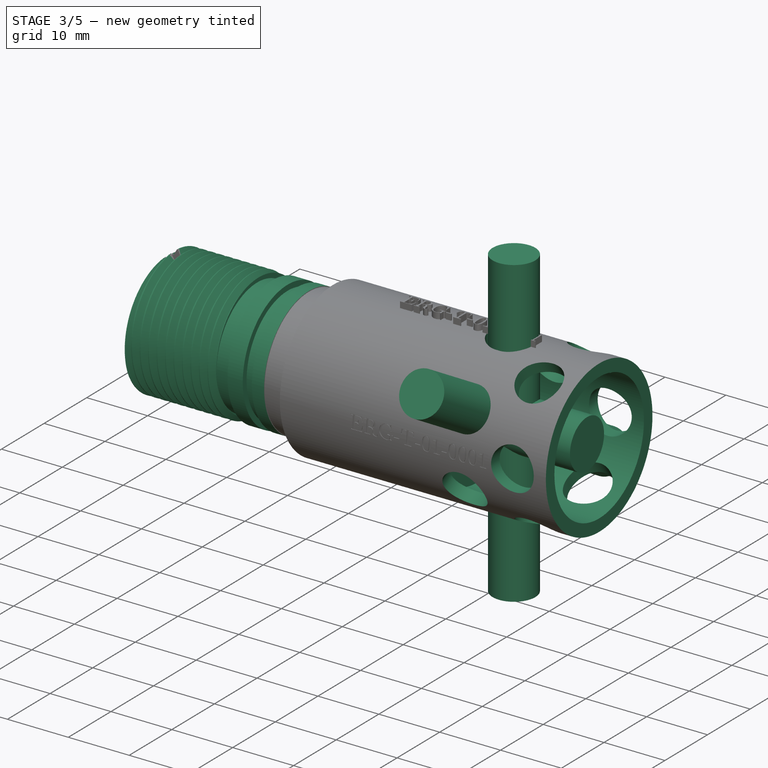
[diagram: stage 3 of 5 — iso view after this stage's code; geometry added in this stage tinted green]
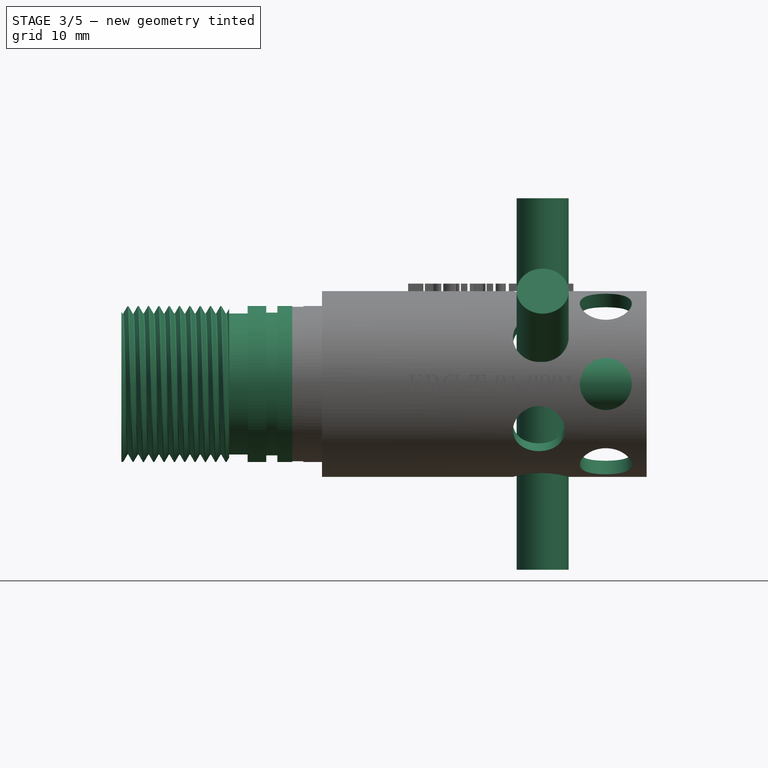
[diagram: stage 3 of 5 — front view after this stage's code; geometry added in this stage tinted green]
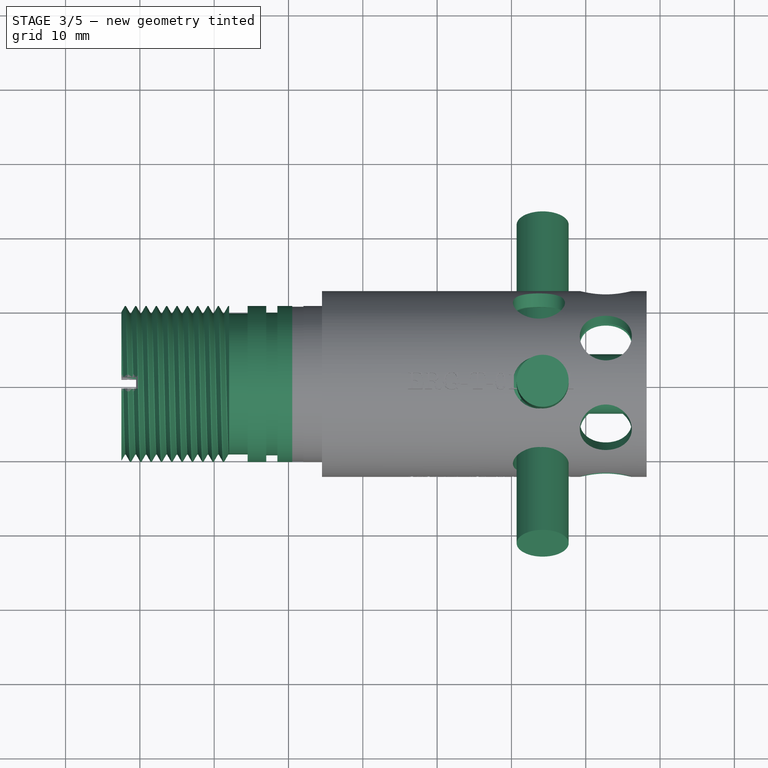
[diagram: stage 3 of 5 — top view after this stage's code; geometry added in this stage tinted green]
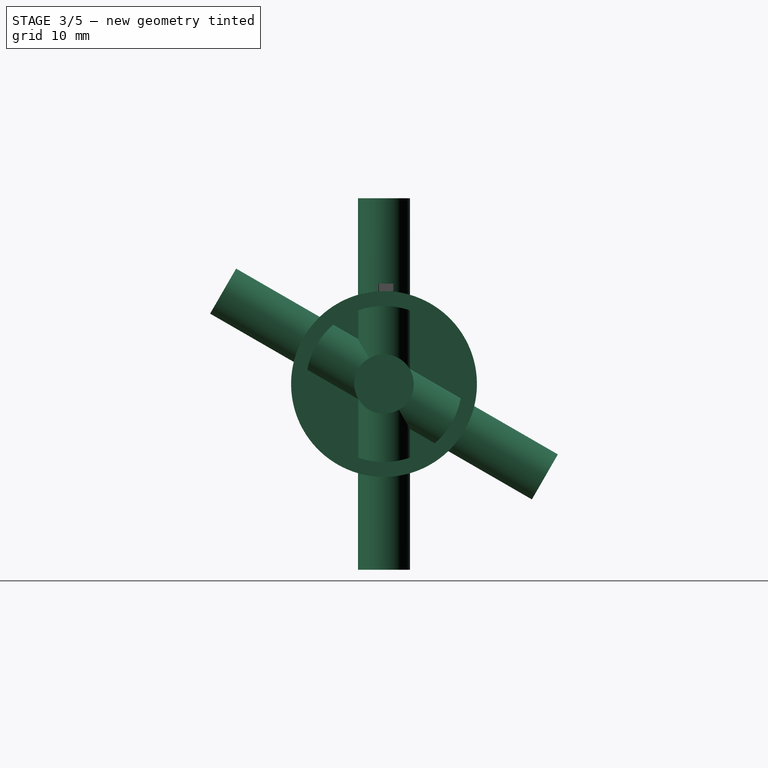
[diagram: stage 3 of 5 — right view after this stage's code; geometry added in this stage tinted green]
FEATURE [Drawing::FeatureViewPython] dia016  # drawing view (typed FeaturePython)
  Rotation = 0
  ViewResult = <g>  <circle cx ="52.737500" cy ="81.500000" r="0.250000" stroke="none" fill="rgb(255,0,0)" /> \n<line x1="68.095627" y1="45.059560" x2="50.698534" y2="86.337883" style="stroke:rgb(255,0,0);stroke-width:0.10" />\n<polygon points="54.776466,76.662117 53.538966,78.310932 53.805530,78.965871 54.460468,78.699307" style="fill:rgb(255,0,0);stroke:rgb(255,0,0);stroke-width:0" />\n<polygon points="50.698534,86.337883 51.936034,84.689068 51.669470,84.034129 51.014532,84.300693" style="fill:rgb(255,0,0);stroke:rgb(255,0,0);stroke-width:0" />\n<line x1="68.095627" y1="45.059560" x2="77.968227" y2="45.059560" style="stroke:rgb(255,0,0);stroke-width:0.10" />\n<text x="73.031927" y="43.059560" font-family="inherit" font-size="3.6" fill="rgb(0,0,0)" text-anchor="middle" transform="rotate(0.000000 73.031927,43.059560)" >Ø7</text> </g>
  Visible = false
  X = 0
  Y = 0
  arrowL1 = 2
  arrowL2 = 0.5
  arrowW = 1
  arrow_scheme = 0
  autoPlaceOffset = 2
  autoPlaceText = true
  centerPointDia = 0.5
  click1_x = 68.0956
  click1_y = 45.0596
  click2_x = 77.9682
  click2_y = 44.8064
  click3_x = 77.9682
  click3_y = 44.8064
  comma_decimal_place = false
  lineColor = rgb(255,0,0)
  strokeWidth = 0.1
  textFormat_circular = Ø%(value)3.3f
  textRenderer_color = rgb(0,0,0)
  textRenderer_family = inherit
  textRenderer_size = 3.6
  unit_custom_scale = 1
  unit_scheme = 0
FEATURE [Drawing::FeatureViewPython] dia018  # drawing view (typed FeaturePython)
  Rotation = 0
  ViewResult = <g>  <circle cx ="117.203125" cy ="81.501965" r="0.250000" stroke="none" fill="rgb(255,0,0)" /> \n<line x1="128.596947" y1="95.941423" x2="113.964499" y2="77.397635" style="stroke:rgb(255,0,0);stroke-width:0.10" />\n<polygon points="120.441751,85.606296 119.595365,83.726500 118.893122,83.643709 118.810331,84.345952" style="fill:rgb(255,0,0);stroke:rgb(255,0,0);stroke-width:0" />\n<polygon points="113.964499,77.397635 114.810885,79.277431 115.513128,79.360222 115.595919,78.657979" style="fill:rgb(255,0,0);stroke:rgb(255,0,0);stroke-width:0" />\n<line x1="128.596947" y1="95.941423" x2="142.519844" y2="95.941423" style="stroke:rgb(255,0,0);stroke-width:0.10" />\n<text x="135.558395" y="93.941423" font-family="inherit" font-size="3.6" fill="rgb(0,0,0)" text-anchor="middle" transform="rotate(0.000000 135.558395,93.941423)" >Ø7</text> </g>
  Visible = false
  X = 0
  Y = 0
  arrowL1 = 2
  arrowL2 = 0.5
  arrowW = 1
  arrow_scheme = 0
  autoPlaceOffset = 2
  autoPlaceText = true
  centerPointDia = 0.5
  click1_x = 128.597
  click1_y = 95.9414
  click2_x = 142.52
  click2_y = 95.9414
  click3_x = 140.52
  click3_y = 174773072
  comma_decimal_place = false
  lineColor = rgb(255,0,0)
  strokeWidth = 0.1
  textFormat_circular = Ø%(value)3.1f
  textRenderer_color = rgb(0,0,0)
  textRenderer_family = inherit
  textRenderer_size = 3.6
  unit_custom_scale = 1
  unit_scheme = 0
FEATURE [Drawing::FeatureViewPython] dia021  # drawing view (typed FeaturePython)
  Rotation = 0
  ViewResult = <g>  <circle cx ="244.262000" cy ="68.750000" r="0.250000" stroke="none" fill="rgb(255,0,0)" /> \n<line x1="255.349161" y1="51.798917" x2="243.810412" y2="69.440430" style="stroke:rgb(255,0,0);stroke-width:0.10" />\n<polygon points="244.713588,68.059570 246.226789,66.659491 246.082037,65.967359 245.389905,66.112111" style="fill:rgb(255,0,0);stroke:rgb(255,0,0);stroke-width:0" />\n<polygon points="243.810412,69.440430 242.297211,70.840509 242.441963,71.532641 243.134095,71.387889" style="fill:rgb(255,0,0);stroke:rgb(255,0,0);stroke-width:0" />\n<line x1="255.349161" y1="51.798917" x2="265.607212" y2="51.798917" style="stroke:rgb(255,0,0);stroke-width:0.10" />\n<text x="260.478187" y="49.798917" font-family="inherit" font-size="3.6" fill="rgb(0,0,0)" text-anchor="middle" transform="rotate(0.000000 260.478187,49.798917)" >Ø1.1</text> </g>
  Visible = false
  X = 0
  Y = 0
  arrowL1 = 2
  arrowL2 = 0.5
  arrowW = 1
  arrow_scheme = 0
  autoPlaceOffset = 2
  autoPlaceText = true
  centerPointDia = 0.5
  click1_x = 255.349
  click1_y = 51.7989
  click2_x = 265.607
  click2_y = 52.138
  click3_x = 265.607
  click3_y = 52.138
  comma_decimal_place = false
  lineColor = rgb(255,0,0)
  strokeWidth = 0.1
  textFormat_circular = Ø%(value)3.3f
  textRenderer_color = rgb(0,0,0)
  textRenderer_family = inherit
  textRenderer_size = 3.6
  unit_custom_scale = 1
  unit_scheme = 0
FEATURE [Drawing::FeatureViewPython] dim075  # drawing view (typed FeaturePython)
  Rotation = 0
  ViewResult = <g> \n  <line x1="95.475000" y1="62.750000" x2="95.475000" y2="51.561912" style="stroke:rgb(255,0,0);stroke-width:0.10" />\n<line x1="168.525000" y1="62.750000" x2="168.525000" y2="51.561912" style="stroke:rgb(255,0,0);stroke-width:0.10" />\n<line x1="95.475000" y1="52.561912" x2="168.525000" y2="52.561912" style="stroke:rgb(255,0,0);stroke-width:0.10" /> \n  <polygon points="168.525000,52.561912 166.525000,52.061912 166.025000,52.561912 166.525000,53.061912" style="fill:rgb(255,0,0);stroke:rgb(255,0,0);stroke-width:0" /><polygon points="95.475000,52.561912 97.475000,53.061912 97.975000,52.561912 97.475000,52.061912" style="fill:rgb(255,0,0);stroke:rgb(255,0,0);stroke-width:0" /> \n  <text x="132.000000" y="50.561912" font-family="inherit" font-size="3.6" fill="rgb(0,0,0)" text-anchor="middle" transform="rotate(0.000000 132.000000,50.561912)" >48.7</text> </g>
  Visible = false
  X = 0
  Y = 0
  arrowL1 = 2
  arrowL2 = 0.5
  arrowW = 1
  arrow_scheme = 0
  autoPlaceOffset = 2
  autoPlaceText = true
  click1_x = 167.859
  click1_y = 52.5619
  click2_x = 167.859
  click2_y = 52.5619
  comma_decimal_place = false
  dimension_line_overshoot = 1
  gap_datum_points = 0
  halfDimension_linear = false
  lineColor = rgb(255,0,0)
  strokeWidth = 0.1
  textFormat_linear = %(value)3.3f
  textRenderer_color = rgb(0,0,0)
  textRenderer_family = inherit
  textRenderer_size = 3.6
  unit_custom_scale = 1
  unit_scheme = 0
FEATURE [Part::Cylinder] Cylinder055  label="Cylinder059"
  Angle = 360
  AttacherType = Attacher::AttachEngine3D
  Height = 22
  Placement = pos=(180.5,0,0) rot=(0,1,0;1.5708rad)
  Radius = 10.4
FEATURE [Part::Cylinder] Cylinder065  label="Cylinder070"
  Angle = 360
  AttacherType = Attacher::AttachEngine3D
  Height = 50
  Placement = pos=(214.2,-21.6506,12.5) rot=(-1,0,0;2.0944rad)
  Radius = 3.5
FEATURE [Part::Cylinder] Cylinder064  label="Cylinder069"
  Angle = 360
  AttacherType = Attacher::AttachEngine3D
  Height = 50
  Placement = pos=(214.2,0,-25) rot=(0,1,0;0rad)
  Radius = 3.5
FEATURE [Part::Cut] Cut065
  Base = -> Cylinder076
  Tool = -> Cylinder072
FEATURE [Part::Cut] Cut069  label="BOLVANKA"
  Base = -> Cut067
  Placement = pos=(-23,0,0) rot=(0,0,1;0rad)
  Tool = -> Cut065
FEATURE [Part::Cylinder] Cylinder083  label="Cylinder091"
  Angle = 360
  AttacherType = Attacher::AttachEngine3D
  Height = 25
  Placement = pos=(150,0,0) rot=(0,1,0;1.5708rad)
  Radius = 9.5
FEATURE [Part::Helix] Helix019
  Angle = 0
  AttacherType = Attacher::AttachEngine3D
  Height = 16.64
  LocalCoord = 0
  Pitch = 1.39
  Placement = pos=(157,0,0) rot=(0,1,0;1.5708rad)
  Radius = 10.5
  Style = 1
FEATURE [Sketcher::SketchObject] Sketch023  label="T022"
  Placement = pos=(157,0,-10.6) rot=(1,0,0;1.5708rad)
  sketch-geometry (3):
    g0: LineSegment StartX=0.00120621 StartY=1.19996 StartZ=0 EndX=-0.691594 EndY=0 EndZ=0
    g1: LineSegment StartX=0.694006 StartY=0 StartZ=0 EndX=0.00120621 EndY=1.19996 EndZ=0
    g2: LineSegment StartX=-0.691594 StartY=0 StartZ=0 EndX=0.694006 EndY=0 EndZ=0
  constraints (8):
    c: PointOnObject(g1,g-1)
    c: Coincident(g1,g0)
    c: Coincident(g2,g0)
    c: Coincident(g2,g1)
    c: Horizontal(g2)
    c: Angle(g2,g0) = 1.0472
    c: Angle(g1,g2) = 1.0472
    c: Distance(g0,g0) = 1.3856
FEATURE [Part::Sweep] Sweep016
  Frenet = true
  Sections = -> [Sketch023]
  Solid = true
  Spine = -> Helix019
  Transition = 1
FEATURE [Part::Cut] Cut070
  Base = -> Sweep016
  Tool = -> Cylinder083
FEATURE [Part::Cylinder] Cylinder086  label="Cylinder094"
  Angle = 360
  AttacherType = Attacher::AttachEngine3D
  Height = 1.5
  Placement = pos=(178,0,0) rot=(0,1,0;1.5708rad)
  Radius = 10.5
FEATURE [Part::Cylinder] Cylinder087  label="Cylinder095"
  Angle = 360
  AttacherType = Attacher::AttachEngine3D
  Height = 1.5
  Placement = pos=(178,0,0) rot=(0,1,0;1.5708rad)
  Radius = 9.6
FEATURE [Part::Cut] Cut072
  Base = -> Cylinder086
  Placement = pos=(-1,0,0) rot=(0,0,1;0rad)
  Tool = -> Cylinder087
FEATURE [Part::Cut] Cut
  Base = -> Cut069
  Tool = -> Cut071
FEATURE [Part::Cut] Cut073
  Base = -> Cut
  Tool = -> Cut072
FEATURE [Part::Cylinder] Cylinder088  label="Cylinder096"
  Angle = 360
  AttacherType = Attacher::AttachEngine3D
  Height = 2.5
  Placement = pos=(178,0,0) rot=(0,1,0;1.5708rad)
  Radius = 9.49
FEATURE [Part::Cylinder] Cylinder089  label="Cylinder097"
  Angle = 360
  AttacherType = Attacher::AttachEngine3D
  Height = 2.5
  Placement = pos=(178,0,0) rot=(0,1,0;1.5708rad)
  Radius = 11.5
FEATURE [Part::Cut] Cut074
  Base = -> Cylinder089
  Placement = pos=(-6,0,0) rot=(0,0,1;0rad)
  Tool = -> Cylinder088
FEATURE [Part::Cut] Cut075
  Base = -> Cut073
  Tool = -> Cut070
FEATURE [Part::Cut] Cut076
  Base = -> Cut075
  Tool = -> Cut074
FEATURE [Part::Cut] Cut077  label="SensorHolder-02"
  Base = -> Cut076
  Tool = -> Box
FEATURE [Part::Cut] Cut083
  Base = -> Cut077
  Tool = -> Fusion
FEATURE [Part::Cut] Cut084
  Base = -> Cut083
  Tool = -> Extrude002
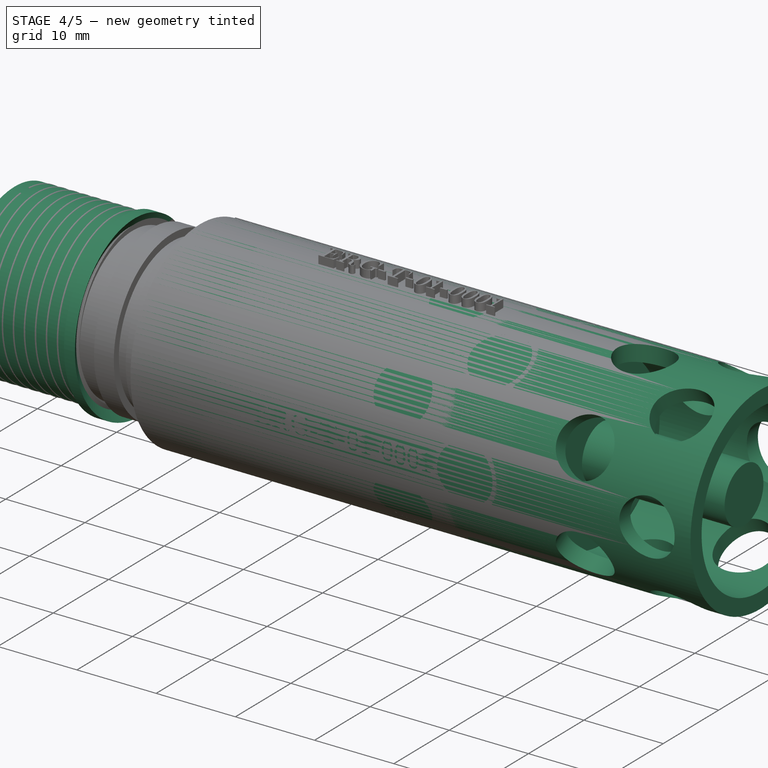
[diagram: stage 4 of 5 — iso view after this stage's code; geometry added in this stage tinted green]
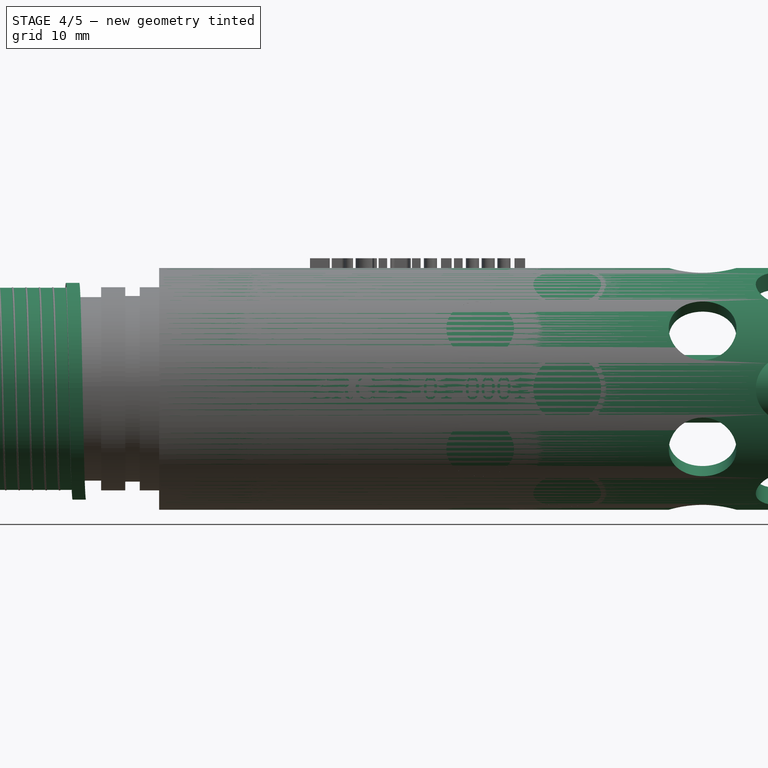
[diagram: stage 4 of 5 — front view after this stage's code; geometry added in this stage tinted green]
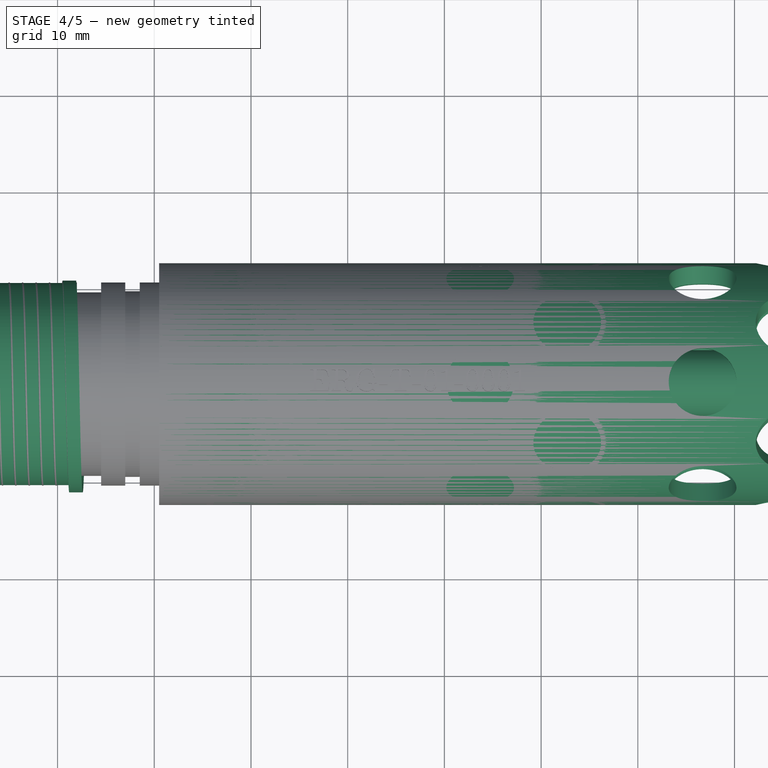
[diagram: stage 4 of 5 — top view after this stage's code; geometry added in this stage tinted green]
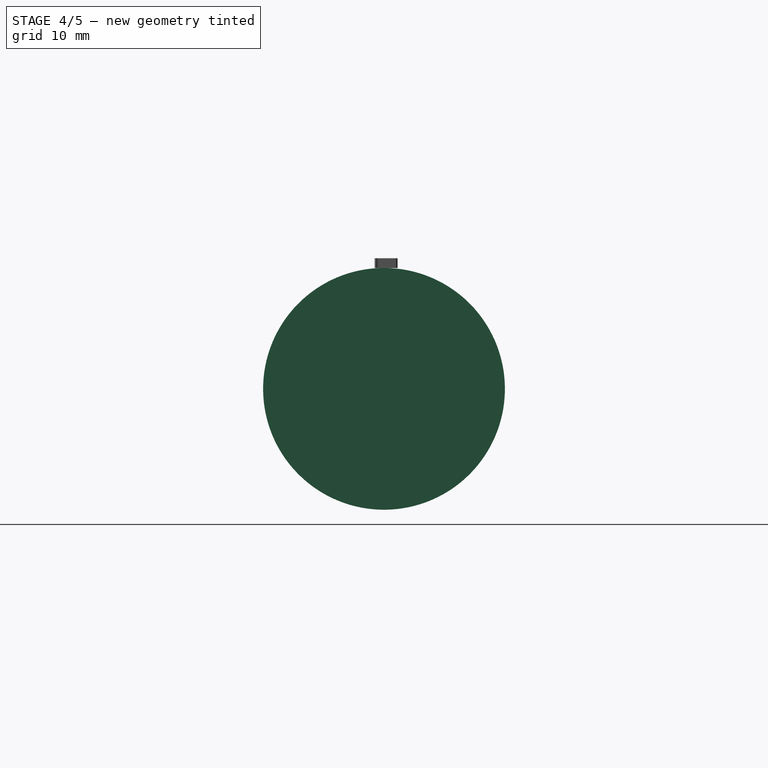
[diagram: stage 4 of 5 — right view after this stage's code; geometry added in this stage tinted green]
FEATURE [Part::Cylinder] Cylinder067  label="Cylinder072"
  Angle = 360
  AttacherType = Attacher::AttachEngine3D
  Height = 50
  Placement = pos=(214.2,-21.6506,12.5) rot=(-1,0,0;2.0944rad)
  Radius = 3.5
FEATURE [Drawing::FeatureViewPython] dim082  # drawing view (typed FeaturePython)
  Rotation = 0
  ViewResult = <g> \n  <line x1="168.525000" y1="100.250000" x2="168.525000" y2="140.807895" style="stroke:rgb(255,0,0);stroke-width:0.10" />\n<line x1="201.525000" y1="95.375000" x2="201.525000" y2="140.807895" style="stroke:rgb(255,0,0);stroke-width:0.10" />\n<line x1="168.525000" y1="139.807895" x2="201.525000" y2="139.807895" style="stroke:rgb(255,0,0);stroke-width:0.10" /> \n  <polygon points="201.525000,139.807895 199.525000,139.307895 199.025000,139.807895 199.525000,140.307895" style="fill:rgb(255,0,0);stroke:rgb(255,0,0);stroke-width:0" /><polygon points="168.525000,139.807895 170.525000,140.307895 171.025000,139.807895 170.525000,139.307895" style="fill:rgb(255,0,0);stroke:rgb(255,0,0);stroke-width:0" /> \n  <text x="185.025000" y="137.807895" font-family="inherit" font-size="3.6" fill="rgb(0,0,0)" text-anchor="middle" transform="rotate(0.000000 185.025000,137.807895)" >22</text> </g>
  Visible = false
  X = 0
  Y = 0
  arrowL1 = 2
  arrowL2 = 0.5
  arrowW = 1
  arrow_scheme = 0
  autoPlaceOffset = 2
  autoPlaceText = true
  click1_x = 186.603
  click1_y = 139.808
  click2_x = 186.603
  click2_y = 139.808
  comma_decimal_place = false
  dimension_line_overshoot = 1
  gap_datum_points = 0
  halfDimension_linear = false
  lineColor = rgb(255,0,0)
  strokeWidth = 0.1
  textFormat_linear = %(value)3.2f
  textRenderer_color = rgb(0,0,0)
  textRenderer_family = inherit
  textRenderer_size = 3.6
  unit_custom_scale = 1
  unit_scheme = 0
FEATURE [Drawing::FeatureViewPython] dim083  # drawing view (typed FeaturePython)
  Rotation = 0
  ViewResult = <g> \n  <line x1="168.525000" y1="96.159335" x2="168.525000" y2="129.776685" style="stroke:rgb(255,0,0);stroke-width:0.10" />\n<line x1="180.114000" y1="95.874245" x2="180.114000" y2="129.776685" style="stroke:rgb(255,0,0);stroke-width:0.10" />\n<line x1="168.525000" y1="128.776685" x2="180.114000" y2="128.776685" style="stroke:rgb(255,0,0);stroke-width:0.10" /> \n  <polygon points="180.114000,128.776685 178.114000,128.276685 177.614000,128.776685 178.114000,129.276685" style="fill:rgb(255,0,0);stroke:rgb(255,0,0);stroke-width:0" /><polygon points="168.525000,128.776685 170.525000,129.276685 171.025000,128.776685 170.525000,128.276685" style="fill:rgb(255,0,0);stroke:rgb(255,0,0);stroke-width:0" /> \n  <text x="174.319500" y="126.776685" font-family="inherit" font-size="3.6" fill="rgb(0,0,0)" text-anchor="middle" transform="rotate(0.000000 174.319500,126.776685)" >7.8</text> </g>
  Visible = false
  X = 0
  Y = 0
  arrowL1 = 2
  arrowL2 = 0.5
  arrowW = 1
  arrow_scheme = 0
  autoPlaceOffset = 2
  autoPlaceText = true
  click1_x = 178.287
  click1_y = 128.777
  click2_x = 178.287
  click2_y = 128.777
  comma_decimal_place = false
  dimension_line_overshoot = 1
  gap_datum_points = 0
  halfDimension_linear = false
  lineColor = rgb(255,0,0)
  strokeWidth = 0.1
  textFormat_linear = 7.8
  textRenderer_color = rgb(0,0,0)
  textRenderer_family = inherit
  textRenderer_size = 3.6
  unit_custom_scale = 1
  unit_scheme = 0
FEATURE [Drawing::FeatureViewPython] dim084  # drawing view (typed FeaturePython)
  Rotation = 0
  ViewResult = <g> \n  <line x1="180.189000" y1="97.099700" x2="180.189000" y2="129.776685" style="stroke:rgb(255,0,0);stroke-width:0.10" />\n<line x1="201.525000" y1="95.027120" x2="201.525000" y2="129.776685" style="stroke:rgb(255,0,0);stroke-width:0.10" />\n<line x1="180.189000" y1="128.776685" x2="201.525000" y2="128.776685" style="stroke:rgb(255,0,0);stroke-width:0.10" /> \n  <polygon points="201.525000,128.776685 199.525000,128.276685 199.025000,128.776685 199.525000,129.276685" style="fill:rgb(255,0,0);stroke:rgb(255,0,0);stroke-width:0" /><polygon points="180.189000,128.776685 182.189000,129.276685 182.689000,128.776685 182.189000,128.276685" style="fill:rgb(255,0,0);stroke:rgb(255,0,0);stroke-width:0" /> \n  <text x="190.857000" y="126.776685" font-family="inherit" font-size="3.6" fill="rgb(0,0,0)" text-anchor="middle" transform="rotate(0.000000 190.857000,126.776685)" >14.2</text> </g>
  Visible = false
  X = 0
  Y = 0
  arrowL1 = 2
  arrowL2 = 0.5
  arrowW = 1
  arrow_scheme = 0
  autoPlaceOffset = 2
  autoPlaceText = true
  click1_x = 199.396
  click1_y = 128.777
  click2_x = 199.396
  click2_y = 128.777
  comma_decimal_place = false
  dimension_line_overshoot = 1
  gap_datum_points = 0
  halfDimension_linear = false
  lineColor = rgb(255,0,0)
  strokeWidth = 0.1
  textFormat_linear = %(value)3.1f
  textRenderer_color = rgb(0,0,0)
  textRenderer_family = inherit
  textRenderer_size = 3.6
  unit_custom_scale = 1
  unit_scheme = 0
FEATURE [Drawing::FeatureViewPython] dim085  # drawing view (typed FeaturePython)
  Rotation = 0
  ViewResult = <g> \n  <line x1="244.262000" y1="79.175000" x2="271.156926" y2="79.175000" style="stroke:rgb(255,0,0);stroke-width:0.10" />\n<line x1="244.262000" y1="83.825000" x2="271.156926" y2="83.825000" style="stroke:rgb(255,0,0);stroke-width:0.10" />\n<line x1="270.156926" y1="79.175000" x2="270.156926" y2="83.825000" style="stroke:rgb(255,0,0);stroke-width:0.10" /> \n  <polygon points="270.156926,83.825000 269.656926,85.825000 270.156926,86.325000 270.656926,85.825000" style="fill:rgb(255,0,0);stroke:rgb(255,0,0);stroke-width:0" /><polygon points="270.156926,79.175000 270.656926,77.175000 270.156926,76.675000 269.656926,77.175000" style="fill:rgb(255,0,0);stroke:rgb(255,0,0);stroke-width:0" /> \n  <text x="268.156926" y="81.500000" font-family="inherit" font-size="3.6" fill="rgb(0,0,0)" text-anchor="middle" transform="rotate(-90.000000 268.156926,81.500000)" >3.1</text> </g>
  Visible = false
  X = 0
  Y = 0
  arrowL1 = 2
  arrowL2 = 0.5
  arrowW = 1
  arrow_scheme = 0
  autoPlaceOffset = 2
  autoPlaceText = true
  click1_x = 270.157
  click1_y = 83.9295
  click2_x = 270.157
  click2_y = 83.9295
  comma_decimal_place = false
  dimension_line_overshoot = 1
  gap_datum_points = 0
  halfDimension_linear = false
  lineColor = rgb(255,0,0)
  strokeWidth = 0.1
  textFormat_linear = %(value)3.3f
  textRenderer_color = rgb(0,0,0)
  textRenderer_family = inherit
  textRenderer_size = 3.6
  unit_custom_scale = 1
  unit_scheme = 0
FEATURE [Drawing::FeatureViewPython] dim086  # drawing view (typed FeaturePython)
  Rotation = 0
  ViewResult = <g> \n  <line x1="244.262000" y1="71.675000" x2="279.210767" y2="71.675000" style="stroke:rgb(255,0,0);stroke-width:0.10" />\n<line x1="244.262000" y1="91.325000" x2="279.210767" y2="91.325000" style="stroke:rgb(255,0,0);stroke-width:0.10" />\n<line x1="278.210767" y1="71.675000" x2="278.210767" y2="91.325000" style="stroke:rgb(255,0,0);stroke-width:0.10" /> \n  <polygon points="278.210767,91.325000 278.710767,89.325000 278.210767,88.825000 277.710767,89.325000" style="fill:rgb(255,0,0);stroke:rgb(255,0,0);stroke-width:0" /><polygon points="278.210767,71.675000 277.710767,73.675000 278.210767,74.175000 278.710767,73.675000" style="fill:rgb(255,0,0);stroke:rgb(255,0,0);stroke-width:0" /> \n  <text x="276.210767" y="81.500000" font-family="inherit" font-size="3.6" fill="rgb(0,0,0)" text-anchor="middle" transform="rotate(-90.000000 276.210767,81.500000)" >13.1</text> </g>
  Visible = false
  X = 0
  Y = 0
  arrowL1 = 2
  arrowL2 = 0.5
  arrowW = 1
  arrow_scheme = 0
  autoPlaceOffset = 2
  autoPlaceText = true
  click1_x = 278.211
  click1_y = 90.0052
  click2_x = 278.211
  click2_y = 90.0052
  comma_decimal_place = false
  dimension_line_overshoot = 1
  gap_datum_points = 0
  halfDimension_linear = false
  lineColor = rgb(255,0,0)
  strokeWidth = 0.1
  textFormat_linear = %(value)3.3f
  textRenderer_color = rgb(0,0,0)
  textRenderer_family = inherit
  textRenderer_size = 3.6
  unit_custom_scale = 1
  unit_scheme = 0
FEATURE [Drawing::FeatureViewPython] dim087  # drawing view (typed FeaturePython)
  Rotation = 0
  ViewResult = <g> \n  <line x1="244.262000" y1="94.250000" x2="286.156852" y2="94.250000" style="stroke:rgb(255,0,0);stroke-width:0.10" />\n<line x1="244.262000" y1="68.750000" x2="286.156852" y2="68.750000" style="stroke:rgb(255,0,0);stroke-width:0.10" />\n<line x1="285.156852" y1="94.250000" x2="285.156852" y2="68.750000" style="stroke:rgb(255,0,0);stroke-width:0.10" /> \n  <polygon points="285.156852,68.750000 284.656852,70.750000 285.156852,71.250000 285.656852,70.750000" style="fill:rgb(255,0,0);stroke:rgb(255,0,0);stroke-width:0" /><polygon points="285.156852,94.250000 285.656852,92.250000 285.156852,91.750000 284.656852,92.250000" style="fill:rgb(255,0,0);stroke:rgb(255,0,0);stroke-width:0" /> \n  <text x="283.156852" y="81.500000" font-family="inherit" font-size="3.6" fill="rgb(0,0,0)" text-anchor="middle" transform="rotate(-90.000000 283.156852,81.500000)" >17</text> </g>
  Visible = false
  X = 0
  Y = 0
  arrowL1 = 2
  arrowL2 = 0.5
  arrowW = 1
  arrow_scheme = 0
  autoPlaceOffset = 2
  autoPlaceText = true
  click1_x = 285.157
  click1_y = 98.3756
  click2_x = 285.157
  click2_y = 98.3756
  comma_decimal_place = false
  dimension_line_overshoot = 1
  gap_datum_points = 0
  halfDimension_linear = false
  lineColor = rgb(255,0,0)
  strokeWidth = 0.1
  textFormat_linear = %(value)3.3f
  textRenderer_color = rgb(0,0,0)
  textRenderer_family = inherit
  textRenderer_size = 3.6
  unit_custom_scale = 1
  unit_scheme = 0
FEATURE [Part::Cylinder] Cylinder051  label="Cylinder053"
  Angle = 360
  AttacherType = Attacher::AttachEngine3D
  Height = 25
  Placement = pos=(150,0,0) rot=(0,1,0;1.5708rad)
  Radius = 9.45
FEATURE [Drawing::FeatureViewPython] dim181  # drawing view (typed FeaturePython)
  Rotation = 0
  ViewResult = <g> \n  <line x1="117.225000" y1="99.713450" x2="117.225000" y2="109.618263" style="stroke:rgb(255,0,0);stroke-width:0.10" />\n<line x1="168.525000" y1="99.779900" x2="168.525000" y2="109.618263" style="stroke:rgb(255,0,0);stroke-width:0.10" />\n<line x1="117.225000" y1="108.618263" x2="168.525000" y2="108.618263" style="stroke:rgb(255,0,0);stroke-width:0.10" /> \n  <polygon points="168.525000,108.618263 166.525000,108.118263 166.025000,108.618263 166.525000,109.118263" style="fill:rgb(255,0,0);stroke:rgb(255,0,0);stroke-width:0" /><polygon points="117.225000,108.618263 119.225000,109.118263 119.725000,108.618263 119.225000,108.118263" style="fill:rgb(255,0,0);stroke:rgb(255,0,0);stroke-width:0" /> \n  <text x="142.875000" y="106.618263" font-family="inherit" font-size="3.6" fill="rgb(0,0,0)" text-anchor="middle" transform="rotate(0.000000 142.875000,106.618263)" >34.2</text> </g>
  Visible = false
  X = 0
  Y = 0
  arrowL1 = 2
  arrowL2 = 0.5
  arrowW = 1
  arrow_scheme = 0
  autoPlaceOffset = 2
  autoPlaceText = true
  click1_x = 166.803
  click1_y = 108.618
  click2_x = 166.803
  click2_y = 108.618
  comma_decimal_place = false
  dimension_line_overshoot = 1
  gap_datum_points = 0
  halfDimension_linear = false
  lineColor = rgb(255,0,0)
  strokeWidth = 0.1
  textFormat_linear = %(value)3.3f
  textRenderer_color = rgb(0,0,0)
  textRenderer_family = inherit
  textRenderer_size = 3.6
  unit_custom_scale = 1
  unit_scheme = 0
FEATURE [Drawing::FeatureViewPython] dim180  # drawing view (typed FeaturePython)
  Rotation = 0
  ViewResult = <g> \n  <line x1="103.725000" y1="95.046635" x2="103.725000" y2="116.364920" style="stroke:rgb(255,0,0);stroke-width:0.10" />\n<line x1="168.525000" y1="100.250000" x2="168.525000" y2="116.364920" style="stroke:rgb(255,0,0);stroke-width:0.10" />\n<line x1="103.725000" y1="115.364920" x2="168.525000" y2="115.364920" style="stroke:rgb(255,0,0);stroke-width:0.10" /> \n  <polygon points="168.525000,115.364920 166.525000,114.864920 166.025000,115.364920 166.525000,115.864920" style="fill:rgb(255,0,0);stroke:rgb(255,0,0);stroke-width:0" /><polygon points="103.725000,115.364920 105.725000,115.864920 106.225000,115.364920 105.725000,114.864920" style="fill:rgb(255,0,0);stroke:rgb(255,0,0);stroke-width:0" /> \n  <text x="136.125000" y="113.364920" font-family="inherit" font-size="3.6" fill="rgb(0,0,0)" text-anchor="middle" transform="rotate(0.000000 136.125000,113.364920)" >43.2</text> </g>
  Visible = false
  X = 0
  Y = 0
  arrowL1 = 2
  arrowL2 = 0.5
  arrowW = 1
  arrow_scheme = 0
  autoPlaceOffset = 2
  autoPlaceText = true
  click1_x = 168.347
  click1_y = 115.365
  click2_x = 168.347
  click2_y = 115.365
  comma_decimal_place = false
  dimension_line_overshoot = 1
  gap_datum_points = 0
  halfDimension_linear = false
  lineColor = rgb(255,0,0)
  strokeWidth = 0.1
  textFormat_linear = %(value)3.3f
  textRenderer_color = rgb(0,0,0)
  textRenderer_family = inherit
  textRenderer_size = 3.6
  unit_custom_scale = 1
  unit_scheme = 0
FEATURE [Drawing::FeatureViewPython] dim182  # drawing view (typed FeaturePython)
  Rotation = 0
  ViewResult = <g> \n  <line x1="95.475000" y1="100.250000" x2="95.475000" y2="110.138877" style="stroke:rgb(255,0,0);stroke-width:0.10" />\n<line x1="103.725000" y1="95.046635" x2="103.725000" y2="110.138877" style="stroke:rgb(255,0,0);stroke-width:0.10" />\n<line x1="95.475000" y1="109.138877" x2="103.725000" y2="109.138877" style="stroke:rgb(255,0,0);stroke-width:0.10" /> \n  <polygon points="103.725000,109.138877 101.725000,108.638877 101.225000,109.138877 101.725000,109.638877" style="fill:rgb(255,0,0);stroke:rgb(255,0,0);stroke-width:0" /><polygon points="95.475000,109.138877 97.475000,109.638877 97.975000,109.138877 97.475000,108.638877" style="fill:rgb(255,0,0);stroke:rgb(255,0,0);stroke-width:0" /> \n  <text x="99.600000" y="107.138877" font-family="inherit" font-size="3.6" fill="rgb(0,0,0)" text-anchor="middle" transform="rotate(0.000000 99.600000,107.138877)" >5.5</text> </g>
  Visible = false
  X = 0
  Y = 0
  arrowL1 = 2
  arrowL2 = 0.5
  arrowW = 1
  arrow_scheme = 0
  autoPlaceOffset = 2
  autoPlaceText = true
  click1_x = 101.57
  click1_y = 109.139
  click2_x = 101.57
  click2_y = 109.139
  comma_decimal_place = false
  dimension_line_overshoot = 1
  gap_datum_points = 0
  halfDimension_linear = false
  lineColor = rgb(255,0,0)
  strokeWidth = 0.1
  textFormat_linear = %(value)3.3f
  textRenderer_color = rgb(0,0,0)
  textRenderer_family = inherit
  textRenderer_size = 3.6
  unit_custom_scale = 1
  unit_scheme = 0
FEATURE [Drawing::FeatureViewPython] dim183  # drawing view (typed FeaturePython)
  Rotation = 0
  ViewResult = <g> \n  <line x1="117.225000" y1="99.713450" x2="117.225000" y2="124.544232" style="stroke:rgb(255,0,0);stroke-width:0.10" />\n<line x1="95.475000" y1="100.250000" x2="95.475000" y2="124.544232" style="stroke:rgb(255,0,0);stroke-width:0.10" />\n<line x1="117.225000" y1="123.544232" x2="95.475000" y2="123.544232" style="stroke:rgb(255,0,0);stroke-width:0.10" /> \n  <polygon points="95.475000,123.544232 97.475000,124.044232 97.975000,123.544232 97.475000,123.044232" style="fill:rgb(255,0,0);stroke:rgb(255,0,0);stroke-width:0" /><polygon points="117.225000,123.544232 115.225000,123.044232 114.725000,123.544232 115.225000,124.044232" style="fill:rgb(255,0,0);stroke:rgb(255,0,0);stroke-width:0" /> \n  <text x="106.350000" y="121.544232" font-family="inherit" font-size="3.6" fill="rgb(0,0,0)" text-anchor="middle" transform="rotate(0.000000 106.350000,121.544232)" >14.5</text> </g>
  Visible = false
  X = 0
  Y = 0
  arrowL1 = 2
  arrowL2 = 0.5
  arrowW = 1
  arrow_scheme = 0
  autoPlaceOffset = 2
  autoPlaceText = true
  click1_x = 96.0764
  click1_y = 123.544
  click2_x = 96.0764
  click2_y = 123.544
  comma_decimal_place = false
  dimension_line_overshoot = 1
  gap_datum_points = 0
  halfDimension_linear = false
  lineColor = rgb(255,0,0)
  strokeWidth = 0.1
  textFormat_linear = %(value)3.3f
  textRenderer_color = rgb(0,0,0)
  textRenderer_family = inherit
  textRenderer_size = 3.6
  unit_custom_scale = 1
  unit_scheme = 0
FEATURE [Part::Cylinder] Cylinder050  label="Cylinder052"
  Angle = 360
  AttacherType = Attacher::AttachEngine3D
  Height = 20.5
  Placement = pos=(226.5,0,0) rot=(0,1,0;1.5708rad)
  Radius = 1.55
FEATURE [Part::Cylinder] Cylinder068  label="Cylinder073"
  Angle = 360
  AttacherType = Attacher::AttachEngine3D
  Height = 50
  Placement = pos=(214.2,0,-25) rot=(0,1,0;0rad)
  Radius = 3.5
FEATURE [Part::Cylinder] Cylinder059  label="Cylinder057"
  Angle = 360
  AttacherType = Attacher::AttachEngine3D
  Height = 18
  Placement = pos=(231.2,0,0) rot=(0,1,0;1.5708rad)
  Radius = 3.5
FEATURE [Drawing::FeatureViewPython] dim088  # drawing view (typed FeaturePython)
  Rotation = 0
  ViewResult = <g> \n  <line x1="244.262000" y1="62.750000" x2="219.353101" y2="62.750000" style="stroke:rgb(255,0,0);stroke-width:0.10" />\n<line x1="244.864312" y1="100.240250" x2="219.353101" y2="100.240250" style="stroke:rgb(255,0,0);stroke-width:0.10" />\n<line x1="220.353101" y1="62.750000" x2="220.353101" y2="100.240250" style="stroke:rgb(255,0,0);stroke-width:0.10" /> \n  <polygon points="220.353101,100.240250 220.853101,98.240250 220.353101,97.740250 219.853101,98.240250" style="fill:rgb(255,0,0);stroke:rgb(255,0,0);stroke-width:0" /><polygon points="220.353101,62.750000 219.853101,64.750000 220.353101,65.250000 220.853101,64.750000" style="fill:rgb(255,0,0);stroke:rgb(255,0,0);stroke-width:0" /> \n  <text x="218.353101" y="81.495125" font-family="inherit" font-size="3.6" fill="rgb(0,0,0)" text-anchor="middle" transform="rotate(-90.000000 218.353101,81.495125)" >25</text> </g>
  Visible = false
  X = 0
  Y = 0
  arrowL1 = 2
  arrowL2 = 0.5
  arrowW = 1
  arrow_scheme = 0
  autoPlaceOffset = 2
  autoPlaceText = true
  click1_x = 220.353
  click1_y = 99.2911
  click2_x = 220.353
  click2_y = 99.2911
  comma_decimal_place = false
  dimension_line_overshoot = 1
  gap_datum_points = 0
  halfDimension_linear = false
  lineColor = rgb(255,0,0)
  strokeWidth = 0.1
  textFormat_linear = %(value)3.1f
  textRenderer_color = rgb(0,0,0)
  textRenderer_family = inherit
  textRenderer_size = 3.6
  unit_custom_scale = 1
  unit_scheme = 0
FEATURE [Drawing::FeatureViewPython] dia020  # drawing view (typed FeaturePython)
  Rotation = 0
  ViewResult = <g>  <circle cx ="244.262000" cy ="94.250000" r="0.250000" stroke="none" fill="rgb(255,0,0)" /> \n<line x1="262.603225" y1="114.471753" x2="243.707743" y2="93.638915" style="stroke:rgb(255,0,0);stroke-width:0.10" />\n<polygon points="244.816257,94.861085 245.789555,96.678415 246.495822,96.712857 246.530264,96.006589" style="fill:rgb(255,0,0);stroke:rgb(255,0,0);stroke-width:0" />\n<polygon points="243.707743,93.638915 242.734445,91.821585 242.028178,91.787143 241.993736,92.493411" style="fill:rgb(255,0,0);stroke:rgb(255,0,0);stroke-width:0" />\n<line x1="262.603225" y1="114.471753" x2="273.009748" y2="114.471753" style="stroke:rgb(255,0,0);stroke-width:0.10" />\n<text x="267.806487" y="112.471753" font-family="inherit" font-size="3.6" fill="rgb(0,0,0)" text-anchor="middle" transform="rotate(0.000000 267.806487,112.471753)" >Ø1.1</text> </g>
  Visible = false
  X = 0
  Y = 0
  arrowL1 = 2
  arrowL2 = 0.5
  arrowW = 1
  arrow_scheme = 0
  autoPlaceOffset = 2
  autoPlaceText = true
  centerPointDia = 0.5
  click1_x = 262.603
  click1_y = 114.472
  click2_x = 273.01
  click2_y = 113.969
  click3_x = 273.01
  click3_y = 113.969
  comma_decimal_place = false
  lineColor = rgb(255,0,0)
  strokeWidth = 0.1
  textFormat_circular = Ø%(value)3.3f
  textRenderer_color = rgb(0,0,0)
  textRenderer_family = inherit
  textRenderer_size = 3.6
  unit_custom_scale = 1.7
  unit_scheme = 0
FEATURE [Drawing::FeatureViewPython] dim090  # drawing view (typed FeaturePython)
  Rotation = 0
  ViewResult = <g> \n  <line x1="179.589000" y1="65.903600" x2="209.559098" y2="65.903600" style="stroke:rgb(255,0,0);stroke-width:0.10" />\n<line x1="180.189000" y1="97.099700" x2="209.559098" y2="97.099700" style="stroke:rgb(255,0,0);stroke-width:0.10" />\n<line x1="208.559098" y1="65.903600" x2="208.559098" y2="97.099700" style="stroke:rgb(255,0,0);stroke-width:0.10" /> \n  <polygon points="208.559098,97.099700 209.059098,95.099700 208.559098,94.599700 208.059098,95.099700" style="fill:rgb(255,0,0);stroke:rgb(255,0,0);stroke-width:0" /><polygon points="208.559098,65.903600 208.059098,67.903600 208.559098,68.403600 209.059098,67.903600" style="fill:rgb(255,0,0);stroke:rgb(255,0,0);stroke-width:0" /> \n  <text x="206.559098" y="81.501650" font-family="inherit" font-size="3.6" fill="rgb(0,0,0)" text-anchor="middle" transform="rotate(-90.000000 206.559098,81.501650)" >20.8</text> </g>
  Visible = false
  X = 0
  Y = 0
  arrowL1 = 2
  arrowL2 = 0.5
  arrowW = 1
  arrow_scheme = 0
  autoPlaceOffset = 2
  autoPlaceText = true
  click1_x = 208.559
  click1_y = 92.6505
  click2_x = 208.559
  click2_y = 92.6505
  comma_decimal_place = false
  dimension_line_overshoot = 1
  gap_datum_points = 0
  halfDimension_linear = false
  lineColor = rgb(255,0,0)
  strokeWidth = 0.1
  textFormat_linear = %(value)3.1f
  textRenderer_color = rgb(0,0,0)
  textRenderer_family = inherit
  textRenderer_size = 3.6
  unit_custom_scale = 1.7
  unit_scheme = 0
FEATURE [Drawing::FeatureViewPython] dim089  # drawing view (typed FeaturePython)
  Rotation = 0
  ViewResult = <g> \n  <line x1="181.725000" y1="97.079000" x2="164.616125" y2="97.079000" style="stroke:rgb(255,0,0);stroke-width:0.10" />\n<line x1="180.964500" y1="95.763560" x2="164.616125" y2="95.763560" style="stroke:rgb(255,0,0);stroke-width:0.10" />\n<line x1="165.616125" y1="97.079000" x2="165.616125" y2="95.763560" style="stroke:rgb(255,0,0);stroke-width:0.10" /> \n  <polygon points="165.616125,95.763560 166.116125,93.763560 165.616125,93.263560 165.116125,93.763560" style="fill:rgb(255,0,0);stroke:rgb(255,0,0);stroke-width:0" /><polygon points="165.616125,97.079000 165.116125,99.079000 165.616125,99.579000 166.116125,99.079000" style="fill:rgb(255,0,0);stroke:rgb(255,0,0);stroke-width:0" /> \n  <text x="163.616125" y="96.421280" font-family="inherit" font-size="3.6" fill="rgb(0,0,0)" text-anchor="middle" transform="rotate(-90.000000 163.616125,96.421280)" >1</text> </g>
  Visible = false
  X = 0
  Y = 0
  arrowL1 = 2
  arrowL2 = 0.5
  arrowW = 1
  arrow_scheme = 0
  autoPlaceOffset = 2
  autoPlaceText = true
  click1_x = 165.616
  click1_y = 96.2869
  click2_x = 165.616
  click2_y = 96.2869
  comma_decimal_place = false
  dimension_line_overshoot = 1
  gap_datum_points = 0
  halfDimension_linear = false
  lineColor = rgb(255,0,0)
  strokeWidth = 0.1
  textFormat_linear = 1
  textRenderer_color = rgb(0,0,0)
  textRenderer_family = inherit
  textRenderer_size = 3.6
  unit_custom_scale = 1.7
  unit_scheme = 0
FEATURE [Drawing::FeatureViewPython] dim091  # drawing view (typed FeaturePython)
  Rotation = 0
  ViewResult = <g> \n  <line x1="95.475000" y1="63.220100" x2="95.475000" y2="37.514572" style="stroke:rgb(255,0,0);stroke-width:0.10" />\n<line x1="201.525000" y1="67.972880" x2="201.525000" y2="37.514572" style="stroke:rgb(255,0,0);stroke-width:0.10" />\n<line x1="95.475000" y1="38.514572" x2="201.525000" y2="38.514572" style="stroke:rgb(255,0,0);stroke-width:0.10" /> \n  <polygon points="201.525000,38.514572 199.525000,38.014572 199.025000,38.514572 199.525000,39.014572" style="fill:rgb(255,0,0);stroke:rgb(255,0,0);stroke-width:0" /><polygon points="95.475000,38.514572 97.475000,39.014572 97.975000,38.514572 97.475000,38.014572" style="fill:rgb(255,0,0);stroke:rgb(255,0,0);stroke-width:0" /> \n  <text x="148.500000" y="36.514572" font-family="inherit" font-size="3.6" fill="rgb(0,0,0)" text-anchor="middle" transform="rotate(0.000000 148.500000,36.514572)" >70.7</text> </g>
  Visible = false
  X = 0
  Y = 0
  arrowL1 = 2
  arrowL2 = 0.5
  arrowW = 1
  arrow_scheme = 0
  autoPlaceOffset = 2
  autoPlaceText = true
  click1_x = 197.195
  click1_y = 38.5146
  click2_x = 197.195
  click2_y = 38.5146
  comma_decimal_place = false
  dimension_line_overshoot = 1
  gap_datum_points = 0
  halfDimension_linear = false
  lineColor = rgb(255,0,0)
  strokeWidth = 0.1
  textFormat_linear = %(value)3.3f
  textRenderer_color = rgb(0,0,0)
  textRenderer_family = inherit
  textRenderer_size = 3.6
  unit_custom_scale = 1.7
  unit_scheme = 0
FEATURE [Drawing::FeatureViewPython] dim093  # drawing view (typed FeaturePython)
  Rotation = 0
  ViewResult = <g> \n  <line x1="95.475000" y1="62.750000" x2="84.981082" y2="62.750000" style="stroke:rgb(255,0,0);stroke-width:0.10" />\n<line x1="95.475000" y1="100.250000" x2="84.981082" y2="100.250000" style="stroke:rgb(255,0,0);stroke-width:0.10" />\n<line x1="85.981082" y1="62.750000" x2="85.981082" y2="100.250000" style="stroke:rgb(255,0,0);stroke-width:0.10" /> \n  <polygon points="85.981082,100.250000 86.481082,98.250000 85.981082,97.750000 85.481082,98.250000" style="fill:rgb(255,0,0);stroke:rgb(255,0,0);stroke-width:0" /><polygon points="85.981082,62.750000 85.481082,64.750000 85.981082,65.250000 86.481082,64.750000" style="fill:rgb(255,0,0);stroke:rgb(255,0,0);stroke-width:0" /> \n  <text x="83.981082" y="81.500000" font-family="inherit" font-size="3.6" fill="rgb(0,0,0)" text-anchor="middle" transform="rotate(-90.000000 83.981082,81.500000)" >25</text> </g>
  Visible = false
  X = 0
  Y = 0
  arrowL1 = 2
  arrowL2 = 0.5
  arrowW = 1
  arrow_scheme = 0
  autoPlaceOffset = 2
  autoPlaceText = true
  click1_x = 85.9811
  click1_y = 101.227
  click2_x = 85.9811
  click2_y = 101.227
  comma_decimal_place = false
  dimension_line_overshoot = 1
  gap_datum_points = 0
  halfDimension_linear = false
  lineColor = rgb(255,0,0)
  strokeWidth = 0.1
  textFormat_linear = %(value)3.3f
  textRenderer_color = rgb(0,0,0)
  textRenderer_family = inherit
  textRenderer_size = 3.6
  unit_custom_scale = 1.7
  unit_scheme = 0
FEATURE [Part::Cylinder] Cylinder066  label="Cylinder071"
  Angle = 360
  AttacherType = Attacher::AttachEngine3D
  Height = 50
  Placement = pos=(214.2,21.6506,12.5) rot=(1,0,0;2.0944rad)
  Radius = 3.5
FEATURE [Part::Cylinder] Cylinder052  label="Cylinder054"
  Angle = 360
  AttacherType = Attacher::AttachEngine3D
  Height = 46
  Placement = pos=(180.5,0,0) rot=(0,1,0;1.5708rad)
  Radius = 6.55
FEATURE [Drawing::FeatureViewPython] dia019  # drawing view (typed FeaturePython)
  Rotation = 0
  ViewResult = <g>  <circle cx ="52.693090" cy ="81.339834" r="0.250000" stroke="none" fill="rgb(255,0,0)" /> \n<line x1="65.311048" y1="134.419249" x2="48.395157" y2="63.259905" style="stroke:rgb(255,0,0);stroke-width:0.10" />\n<polygon points="56.991023,99.419762 57.014920,97.358348 56.412839,96.987541 56.042031,97.589622" style="fill:rgb(255,0,0);stroke:rgb(255,0,0);stroke-width:0" />\n<polygon points="48.395157,63.259905 48.371260,65.321319 48.973341,65.692127 49.344149,65.090046" style="fill:rgb(255,0,0);stroke:rgb(255,0,0);stroke-width:0" />\n<line x1="65.311048" y1="134.419249" x2="82.271669" y2="134.419249" style="stroke:rgb(255,0,0);stroke-width:0.10" />\n<text x="73.791358" y="132.419249" font-family="inherit" font-size="3.6" fill="rgb(0,0,0)" text-anchor="middle" transform="rotate(0.000000 73.791358,132.419249)" >Ø 25</text> </g>
  Visible = false
  X = 0
  Y = 0
  arrowL1 = 2
  arrowL2 = 0.5
  arrowW = 1
  arrow_scheme = 0
  autoPlaceOffset = 2
  autoPlaceText = true
  centerPointDia = 0.5
  click1_x = 65.311
  click1_y = 134.419
  click2_x = 82.2717
  click2_y = 134.672
  click3_x = 82.2717
  click3_y = 134.672
  comma_decimal_place = false
  lineColor = rgb(255,0,0)
  strokeWidth = 0.1
  textFormat_circular = Ø%(value)3.0f
  textRenderer_color = rgb(0,0,0)
  textRenderer_family = inherit
  textRenderer_size = 3.6
  unit_custom_scale = 1.7
  unit_scheme = 0
FEATURE [Part::Cylinder] Cylinder069  label="Cylinder074"
  Angle = 360
  AttacherType = Attacher::AttachEngine3D
  Height = 50
  Placement = pos=(214.2,21.6506,12.5) rot=(1,0,0;2.0944rad)
  Radius = 3.5
FEATURE [Part::MultiFuse] Fusion013
  Placement = pos=(22.5,0,0) rot=(1,0,0;0rad)
  Shapes = -> [Cylinder068,Cylinder067,Cylinder069]
FEATURE [Part::Cylinder] Cylinder058  label="Cylinder064"
  Angle = 360
  AttacherType = Attacher::AttachEngine3D
  Height = 22
  Placement = pos=(180.5,0,0) rot=(0,1,0;1.5708rad)
  Radius = 12.5
FEATURE [Part::MultiFuse] Fusion011
  Shapes = -> [Cylinder050,Cylinder052]
FEATURE [Part::Cylinder] Cylinder057  label="Cylinder063"
  Angle = 360
  AttacherType = Attacher::AttachEngine3D
  Height = 70.7
  Placement = pos=(180.5,0,0) rot=(0,1,0;1.5708rad)
  Radius = 12.5
FEATURE [Part::Sweep] Sweep014
  Frenet = true
  Sections = -> [Sketch021]
  Solid = true
  Spine = -> Helix017
  Transition = 1
FEATURE [Part::Sweep] Sweep015
  Frenet = true
  Sections = -> [Sketch022]
  Solid = true
  Spine = -> Helix018
  Transition = 1
FEATURE [Part::Cut] Cut039
  Base = -> Sweep015
  Tool = -> Cylinder051
FEATURE [Drawing::FeatureViewPython] dim076  # drawing view (typed FeaturePython)
  Rotation = 0
  ViewResult = <g> \n  <line x1="168.525000" y1="97.100000" x2="168.525000" y2="109.514916" style="stroke:rgb(255,0,0);stroke-width:0.10" />\n<line x1="170.775000" y1="96.708950" x2="170.775000" y2="109.514916" style="stroke:rgb(255,0,0);stroke-width:0.10" />\n<line x1="168.525000" y1="108.514916" x2="170.775000" y2="108.514916" style="stroke:rgb(255,0,0);stroke-width:0.10" /> \n  <polygon points="170.775000,108.514916 172.775000,109.014916 173.275000,108.514916 172.775000,108.014916" style="fill:rgb(255,0,0);stroke:rgb(255,0,0);stroke-width:0" /><polygon points="168.525000,108.514916 166.525000,108.014916 166.025000,108.514916 166.525000,109.014916" style="fill:rgb(255,0,0);stroke:rgb(255,0,0);stroke-width:0" /> \n  <text x="169.650000" y="106.514916" font-family="inherit" font-size="3.6" fill="rgb(0,0,0)" text-anchor="middle" transform="rotate(0.000000 169.650000,106.514916)" >1.5</text> </g>
  Visible = false
  X = 0
  Y = 0
  arrowL1 = 2
  arrowL2 = 0.5
  arrowW = 1
  arrow_scheme = 0
  autoPlaceOffset = 2
  autoPlaceText = true
  click1_x = 170.148
  click1_y = 108.515
  click2_x = 170.148
  click2_y = 108.515
  comma_decimal_place = false
  dimension_line_overshoot = 1
  gap_datum_points = 0
  halfDimension_linear = false
  lineColor = rgb(255,0,0)
  strokeWidth = 0.1
  textFormat_linear = %(value)3.3f
  textRenderer_color = rgb(0,0,0)
  textRenderer_family = inherit
  textRenderer_size = 3.6
  unit_custom_scale = 1
  unit_scheme = 0
FEATURE [Drawing::FeatureViewPython] dim077  # drawing view (typed FeaturePython)
  Rotation = 0
  ViewResult = <g> \n  <line x1="173.025000" y1="97.100000" x2="173.025000" y2="116.291672" style="stroke:rgb(255,0,0);stroke-width:0.10" />\n<line x1="175.275000" y1="97.100000" x2="175.275000" y2="116.291672" style="stroke:rgb(255,0,0);stroke-width:0.10" />\n<line x1="173.025000" y1="115.291672" x2="175.275000" y2="115.291672" style="stroke:rgb(255,0,0);stroke-width:0.10" /> \n  <polygon points="175.275000,115.291672 177.275000,115.791672 177.775000,115.291672 177.275000,114.791672" style="fill:rgb(255,0,0);stroke:rgb(255,0,0);stroke-width:0" /><polygon points="173.025000,115.291672 171.025000,114.791672 170.525000,115.291672 171.025000,115.791672" style="fill:rgb(255,0,0);stroke:rgb(255,0,0);stroke-width:0" /> \n  <text x="174.150000" y="113.291672" font-family="inherit" font-size="3.6" fill="rgb(0,0,0)" text-anchor="middle" transform="rotate(0.000000 174.150000,113.291672)" >1.5</text> </g>
  Visible = false
  X = 0
  Y = 0
  arrowL1 = 2
  arrowL2 = 0.5
  arrowW = 1
  arrow_scheme = 0
  autoPlaceOffset = 2
  autoPlaceText = true
  click1_x = 174.476
  click1_y = 115.292
  click2_x = 174.476
  click2_y = 115.292
  comma_decimal_place = false
  dimension_line_overshoot = 1
  gap_datum_points = 0
  halfDimension_linear = false
  lineColor = rgb(255,0,0)
  strokeWidth = 0.1
  textFormat_linear = %(value)3.3f
  textRenderer_color = rgb(0,0,0)
  textRenderer_family = inherit
  textRenderer_size = 3.6
  unit_custom_scale = 1
  unit_scheme = 0
FEATURE [Drawing::FeatureViewPython] dim078  # drawing view (typed FeaturePython)
  Rotation = 0
  ViewResult = <g> \n  <line x1="177.525000" y1="97.100000" x2="177.525000" y2="109.514916" style="stroke:rgb(255,0,0);stroke-width:0.10" />\n<line x1="180.189000" y1="97.099700" x2="180.189000" y2="109.514916" style="stroke:rgb(255,0,0);stroke-width:0.10" />\n<line x1="177.525000" y1="108.514916" x2="180.189000" y2="108.514916" style="stroke:rgb(255,0,0);stroke-width:0.10" /> \n  <polygon points="180.189000,108.514916 182.189000,109.014916 182.689000,108.514916 182.189000,108.014916" style="fill:rgb(255,0,0);stroke:rgb(255,0,0);stroke-width:0" /><polygon points="177.525000,108.514916 175.525000,108.014916 175.025000,108.514916 175.525000,109.014916" style="fill:rgb(255,0,0);stroke:rgb(255,0,0);stroke-width:0" /> \n  <text x="178.857000" y="106.514916" font-family="inherit" font-size="3.6" fill="rgb(0,0,0)" text-anchor="middle" transform="rotate(0.000000 178.857000,106.514916)" >1.8</text> </g>
  Visible = false
  X = 0
  Y = 0
  arrowL1 = 2
  arrowL2 = 0.5
  arrowW = 1
  arrow_scheme = 0
  autoPlaceOffset = 2
  autoPlaceText = true
  click1_x = 180.01
  click1_y = 108.515
  click2_x = 180.01
  click2_y = 108.515
  comma_decimal_place = false
  dimension_line_overshoot = 1
  gap_datum_points = 0
  halfDimension_linear = false
  lineColor = rgb(255,0,0)
  strokeWidth = 0.1
  textFormat_linear = %(value)3.1f
  textRenderer_color = rgb(0,0,0)
  textRenderer_family = inherit
  textRenderer_size = 3.6
  unit_custom_scale = 1
  unit_scheme = 0
FEATURE [Drawing::FeatureViewPython] dim079  # drawing view (typed FeaturePython)
  Rotation = 0
  ViewResult = <g> \n  <line x1="170.775000" y1="65.900000" x2="170.775000" y2="57.039320" style="stroke:rgb(255,0,0);stroke-width:0.10" />\n<line x1="173.025000" y1="65.900000" x2="173.025000" y2="57.039320" style="stroke:rgb(255,0,0);stroke-width:0.10" />\n<line x1="170.775000" y1="58.039320" x2="173.025000" y2="58.039320" style="stroke:rgb(255,0,0);stroke-width:0.10" /> \n  <polygon points="173.025000,58.039320 175.025000,58.539320 175.525000,58.039320 175.025000,57.539320" style="fill:rgb(255,0,0);stroke:rgb(255,0,0);stroke-width:0" /><polygon points="170.775000,58.039320 168.775000,57.539320 168.275000,58.039320 168.775000,58.539320" style="fill:rgb(255,0,0);stroke:rgb(255,0,0);stroke-width:0" /> \n  <text x="171.900000" y="56.039320" font-family="inherit" font-size="3.6" fill="rgb(0,0,0)" text-anchor="middle" transform="rotate(0.000000 171.900000,56.039320)" >1.5</text> </g>
  Visible = false
  X = 0
  Y = 0
  arrowL1 = 2
  arrowL2 = 0.5
  arrowW = 1
  arrow_scheme = 0
  autoPlaceOffset = 2
  autoPlaceText = true
  click1_x = 173.182
  click1_y = 58.0393
  click2_x = 173.182
  click2_y = 58.0393
  comma_decimal_place = false
  dimension_line_overshoot = 1
  gap_datum_points = 0
  halfDimension_linear = false
  lineColor = rgb(255,0,0)
  strokeWidth = 0.1
  textFormat_linear = %(value)3.3f
  textRenderer_color = rgb(0,0,0)
  textRenderer_family = inherit
  textRenderer_size = 3.6
  unit_custom_scale = 1
  unit_scheme = 0
FEATURE [Drawing::FeatureViewPython] dim080  # drawing view (typed FeaturePython)
  Rotation = 0
  ViewResult = <g> \n  <line x1="175.275000" y1="65.900000" x2="175.275000" y2="50.290253" style="stroke:rgb(255,0,0);stroke-width:0.10" />\n<line x1="177.525000" y1="65.900000" x2="177.525000" y2="50.290253" style="stroke:rgb(255,0,0);stroke-width:0.10" />\n<line x1="175.275000" y1="51.290253" x2="177.525000" y2="51.290253" style="stroke:rgb(255,0,0);stroke-width:0.10" /> \n  <polygon points="177.525000,51.290253 179.525000,51.790253 180.025000,51.290253 179.525000,50.790253" style="fill:rgb(255,0,0);stroke:rgb(255,0,0);stroke-width:0" /><polygon points="175.275000,51.290253 173.275000,50.790253 172.775000,51.290253 173.275000,51.790253" style="fill:rgb(255,0,0);stroke:rgb(255,0,0);stroke-width:0" /> \n  <text x="176.400000" y="49.290253" font-family="inherit" font-size="3.6" fill="rgb(0,0,0)" text-anchor="middle" transform="rotate(0.000000 176.400000,49.290253)" >1.5</text> </g>
  Visible = false
  X = 0
  Y = 0
  arrowL1 = 2
  arrowL2 = 0.5
  arrowW = 1
  arrow_scheme = 0
  autoPlaceOffset = 2
  autoPlaceText = true
  click1_x = 177.679
  click1_y = 51.2903
  click2_x = 177.679
  click2_y = 51.2903
  comma_decimal_place = false
  dimension_line_overshoot = 1
  gap_datum_points = 0
  halfDimension_linear = false
  lineColor = rgb(255,0,0)
  strokeWidth = 0.1
  textFormat_linear = %(value)3.3f
  textRenderer_color = rgb(0,0,0)
  textRenderer_family = inherit
  textRenderer_size = 3.6
  unit_custom_scale = 1
  unit_scheme = 0
FEATURE [Drawing::FeatureViewPython] dim081  # drawing view (typed FeaturePython)
  Rotation = 0
  ViewResult = <g> \n  <line x1="170.775000" y1="65.900000" x2="163.810101" y2="65.900000" style="stroke:rgb(255,0,0);stroke-width:0.10" />\n<line x1="170.775000" y1="67.100000" x2="163.810101" y2="67.100000" style="stroke:rgb(255,0,0);stroke-width:0.10" />\n<line x1="164.810101" y1="65.900000" x2="164.810101" y2="67.100000" style="stroke:rgb(255,0,0);stroke-width:0.10" /> \n  <polygon points="164.810101,67.100000 164.310101,69.100000 164.810101,69.600000 165.310101,69.100000" style="fill:rgb(255,0,0);stroke:rgb(255,0,0);stroke-width:0" /><polygon points="164.810101,65.900000 165.310101,63.900000 164.810101,63.400000 164.310101,63.900000" style="fill:rgb(255,0,0);stroke:rgb(255,0,0);stroke-width:0" /> \n  <text x="162.810101" y="66.500000" font-family="inherit" font-size="3.6" fill="rgb(0,0,0)" text-anchor="middle" transform="rotate(-90.000000 162.810101,66.500000)" >0.8</text> </g>
  Visible = false
  X = 0
  Y = 0
  arrowL1 = 2
  arrowL2 = 0.5
  arrowW = 1
  arrow_scheme = 0
  autoPlaceOffset = 2
  autoPlaceText = true
  click1_x = 164.81
  click1_y = 67.5092
  click2_x = 164.81
  click2_y = 67.5092
  comma_decimal_place = false
  dimension_line_overshoot = 1
  gap_datum_points = 0
  halfDimension_linear = false
  lineColor = rgb(255,0,0)
  strokeWidth = 0.1
  textFormat_linear = %(value)3.3f
  textRenderer_color = rgb(0,0,0)
  textRenderer_family = inherit
  textRenderer_size = 3.6
  unit_custom_scale = 1
  unit_scheme = 0
FEATURE [Part::Cylinder] Cylinder063  label="Cylinder068"
  Angle = 360
  AttacherType = Attacher::AttachEngine3D
  Height = 20.2
  Placement = pos=(231.2,0,0) rot=(0,1,0;1.5708rad)
  Radius = 10.5
FEATURE [Part::Cut] Cut052
  Base = -> Cylinder057
  Tool = -> Cylinder063
FEATURE [Part::MultiFuse] Fusion012
  Placement = pos=(31.5,0,0) rot=(1,0,0;0.523599rad)
  Shapes = -> [Cylinder064,Cylinder065,Cylinder066]
FEATURE [Part::Cut] Cut053
  Base = -> Cut052
  Tool = -> Fusion012
FEATURE [Part::Cut] Cut054
  Base = -> Cut053
  Tool = -> Fusion013
FEATURE [Part::MultiFuse] Fusion014
  Shapes = -> [Cut054,Cylinder059]
FEATURE [Part::Cut] Cut055
  Base = -> Fusion014
  Tool = -> Fusion011
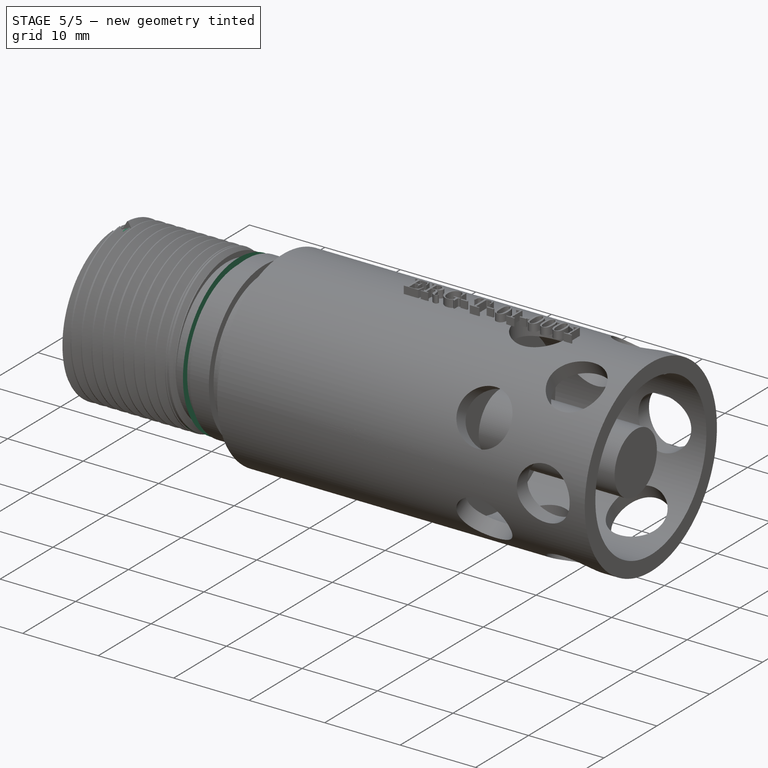
[diagram: stage 5 of 5 — iso view after this stage's code; geometry added in this stage tinted green]
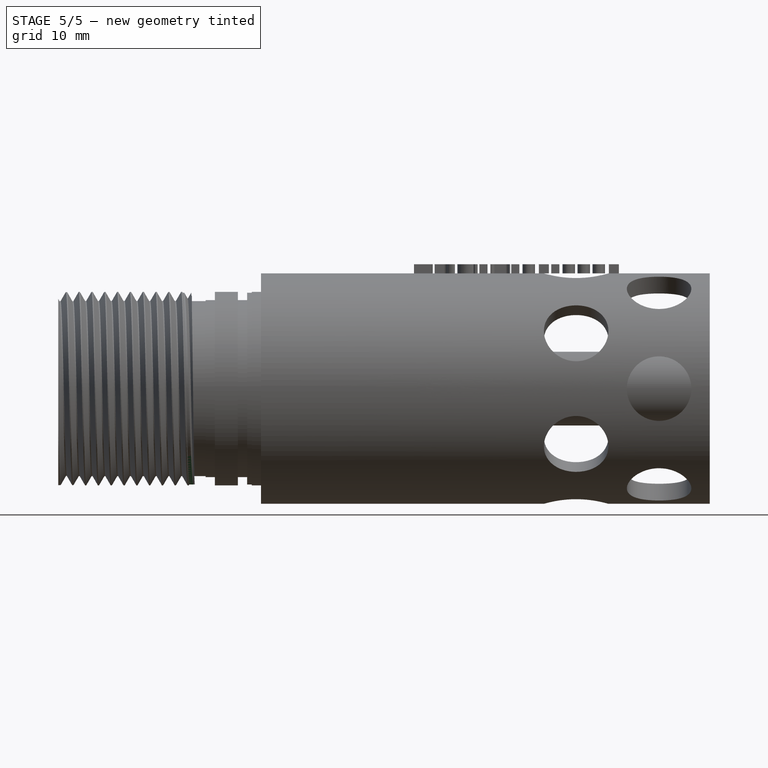
[diagram: stage 5 of 5 — front view after this stage's code; geometry added in this stage tinted green]
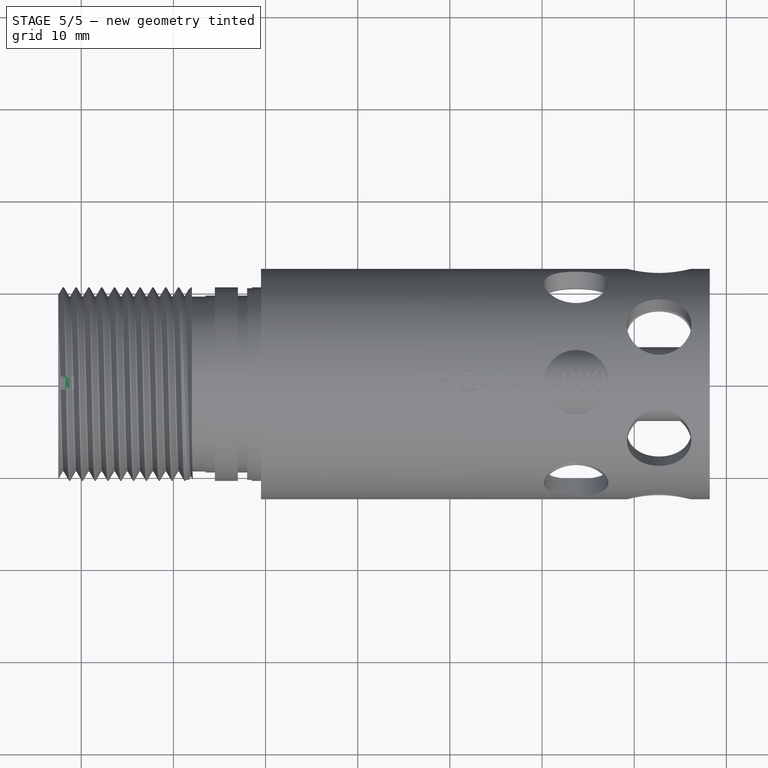
[diagram: stage 5 of 5 — top view after this stage's code; geometry added in this stage tinted green]
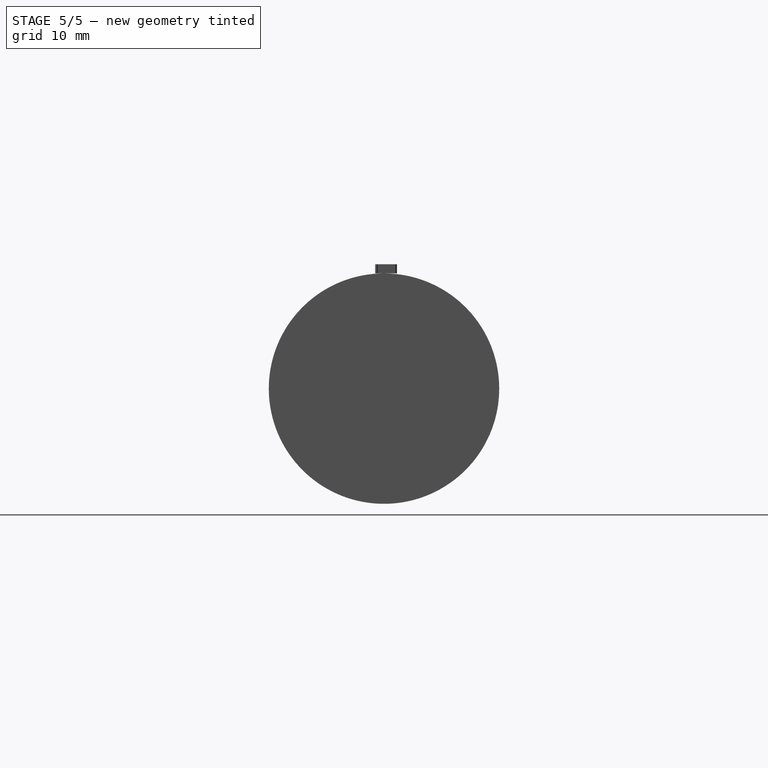
[diagram: stage 5 of 5 — right view after this stage's code; geometry added in this stage tinted green]
FEATURE [Part::Helix] Helix017
  Angle = 0
  AttacherType = Attacher::AttachEngine3D
  Height = 13.86
  LocalCoord = 0
  Pitch = 1.3856
  Placement = pos=(157,0,0) rot=(0,1,0;1.5708rad)
  Radius = 10.5
  Style = 1
FEATURE [Sketcher::SketchObject] Sketch021  label="T020"
  Placement = pos=(157,0,-10.45) rot=(1,0,0;1.5708rad)
  sketch-geometry (3):
    g0: LineSegment StartX=0.00120621 StartY=1.19996 StartZ=0 EndX=-0.691594 EndY=0 EndZ=0
    g1: LineSegment StartX=0.694006 StartY=0 StartZ=0 EndX=0.00120621 EndY=1.19996 EndZ=0
    g2: LineSegment StartX=-0.691594 StartY=0 StartZ=0 EndX=0.694006 EndY=0 EndZ=0
  constraints (8):
    c: PointOnObject(g1,g-1)
    c: Coincident(g1,g0)
    c: Coincident(g2,g0)
    c: Coincident(g2,g1)
    c: Horizontal(g2)
    c: Angle(g2,g0) = 1.0472
    c: Angle(g1,g2) = 1.0472
    c: Distance(g0,g0) = 1.3856
FEATURE [Part::Cylinder] Cylinder061  label="Cylinder066"
  Angle = 360
  AttacherType = Attacher::AttachEngine3D
  Height = 1.5
  Placement = pos=(178,0,0) rot=(0,1,0;1.5708rad)
  Radius = 10.5
FEATURE [Part::Cylinder] Cylinder062  label="Cylinder067"
  Angle = 360
  AttacherType = Attacher::AttachEngine3D
  Height = 3
  Placement = pos=(157.5,-8.5,0) rot=(0,1,0;1.5708rad)
  Radius = 0.55
FEATURE [Part::Cylinder] Cylinder060  label="Cylinder065"
  Angle = 360
  AttacherType = Attacher::AttachEngine3D
  Height = 1.5
  Placement = pos=(178,0,0) rot=(0,1,0;1.5708rad)
  Radius = 10.5
FEATURE [Part::Helix] Helix018
  Angle = 35.82
  AttacherType = Attacher::AttachEngine3D
  Height = 1.3856
  LocalCoord = 0
  Pitch = 1.3856
  Placement = pos=(170.856,0,0) rot=(0,1,0;1.5708rad)
  Radius = 9.25
  Style = 1
FEATURE [Part::Cone] Cone003
  Angle = 360
  AttacherType = Attacher::AttachEngine3D
  Height = 2
  Placement = pos=(158,0,0) rot=(0,1,0;1.5708rad)
  Radius1 = 20
  Radius2 = 21
FEATURE [Sketcher::SketchObject] Sketch022  label="T021"
  Placement = pos=(170.856,0,-10.45) rot=(1,0,0;1.5708rad)
  sketch-geometry (3):
    g0: LineSegment StartX=0.00120621 StartY=1.19996 StartZ=0 EndX=-0.691594 EndY=0 EndZ=0
    g1: LineSegment StartX=0.694006 StartY=0 StartZ=0 EndX=0.00120621 EndY=1.19996 EndZ=0
    g2: LineSegment StartX=-0.691594 StartY=0 StartZ=0 EndX=0.694006 EndY=0 EndZ=0
  constraints (8):
    c: PointOnObject(g1,g-1)
    c: Coincident(g1,g0)
    c: Coincident(g2,g0)
    c: Coincident(g2,g1)
    c: Horizontal(g2)
    c: Angle(g2,g0) = 1.0472
    c: Angle(g1,g2) = 1.0472
    c: Distance(g0,g0) = 1.3856
FEATURE [Part::Cylinder] Cylinder054  label="Cylinder060"
  Angle = 360
  AttacherType = Attacher::AttachEngine3D
  Height = 1.5
  Placement = pos=(178,0,0) rot=(0,1,0;1.5708rad)
  Radius = 9.6
FEATURE [Part::Cut] Cut051
  Base = -> Cylinder060
  Placement = pos=(-4.5,0,0) rot=(0,0,1;0rad)
  Tool = -> Cylinder054
FEATURE [Part::Cone] Cone002
  Angle = 360
  AttacherType = Attacher::AttachEngine3D
  Height = 2
  Placement = pos=(158,0,0) rot=(0,1,0;1.5708rad)
  Radius1 = 9
  Radius2 = 10
FEATURE [Part::Cut] Cut047
  Base = -> Cone003
  Placement = pos=(-1,0,0) rot=(0,0,1;0rad)
  Tool = -> Cone002
FEATURE [Drawing::FeatureViewPython] dia017  # drawing view (typed FeaturePython)
  Rotation = 0
  ViewResult = <g>  <circle cx ="52.744436" cy ="81.513511" r="0.250000" stroke="none" fill="rgb(255,0,0)" /> \n<line x1="69.867632" y1="118.977490" x2="46.190918" y2="67.175015" style="stroke:rgb(255,0,0);stroke-width:0.10" />\n<polygon points="59.297955,95.852007 58.921316,93.825152 58.258716,93.578248 58.011812,94.240848" style="fill:rgb(255,0,0);stroke:rgb(255,0,0);stroke-width:0" />\n<polygon points="46.190918,67.175015 46.567557,69.201871 47.230157,69.448775 47.477061,68.786175" style="fill:rgb(255,0,0);stroke:rgb(255,0,0);stroke-width:0" />\n<line x1="69.867632" y1="118.977490" x2="93.663130" y2="118.977490" style="stroke:rgb(255,0,0);stroke-width:0.10" />\n<text x="81.765381" y="116.977490" font-family="inherit" font-size="3.6" fill="rgb(0,0,0)" text-anchor="middle" transform="rotate(0.000000 81.765381,116.977490)" >Ø 21</text> </g>
  Visible = false
  X = 0
  Y = 0
  arrowL1 = 2
  arrowL2 = 0.5
  arrowW = 1
  arrow_scheme = 0
  autoPlaceOffset = 2
  autoPlaceText = true
  centerPointDia = 0.5
  click1_x = 69.8676
  click1_y = 118.977
  click2_x = 93.6631
  click2_y = 121.256
  click3_x = 93.6631
  click3_y = 121.256
  comma_decimal_place = false
  lineColor = rgb(255,0,0)
  strokeWidth = 0.1
  textFormat_circular = Ø%(value)3.0f
  textRenderer_color = rgb(0,0,0)
  textRenderer_family = inherit
  textRenderer_size = 3.6
  unit_custom_scale = 1.7
  unit_scheme = 0
FEATURE [Part::Cylinder] Cylinder056  label="Cylinder061"
  Angle = 360
  AttacherType = Attacher::AttachEngine3D
  Height = 1.5
  Placement = pos=(178,0,0) rot=(0,1,0;1.5708rad)
  Radius = 9.6
FEATURE [Part::Cut] Cut044
  Base = -> Cylinder061
  Placement = pos=(-1.5,0,0) rot=(0,0,1;0rad)
  Tool = -> Cylinder056
FEATURE [Part::Cylinder] Cylinder053  label="Cylinder062"
  Angle = 360
  AttacherType = Attacher::AttachEngine3D
  Height = 3
  Placement = pos=(157.5,8.5,0) rot=(0,1,0;1.5708rad)
  Radius = 0.55
FEATURE [Part::Cut] Cut037
  Base = -> Sweep014
  Tool = -> Cylinder051
FEATURE [Part::Cut] Cut045
  Base = -> Cylinder058
  Tool = -> Cylinder055
FEATURE [Part::Cut] Cut056
  Base = -> Cut055
  Placement = pos=(-23,0,0) rot=(0,0,1;0rad)
  Tool = -> Cut045
FEATURE [Part::Cut] Cut057
  Base = -> Cut056
  Tool = -> Cut037
FEATURE [Part::Cut] Cut058
  Base = -> Cut057
  Tool = -> Cut039
FEATURE [Part::Cut] Cut059
  Base = -> Cut058
  Tool = -> Cut044
FEATURE [Part::Cut] Cut060
  Base = -> Cut059
  Tool = -> Cut051
FEATURE [Part::Cut] Cut061
  Base = -> Cut060
  Tool = -> Cut047
FEATURE [Part::Cut] Cut062
  Base = -> Cut061
  Tool = -> Cylinder053
FEATURE [Part::Cut] Cut063  label="SensorHolder2"
  Base = -> Cut062
  Tool = -> Cylinder062
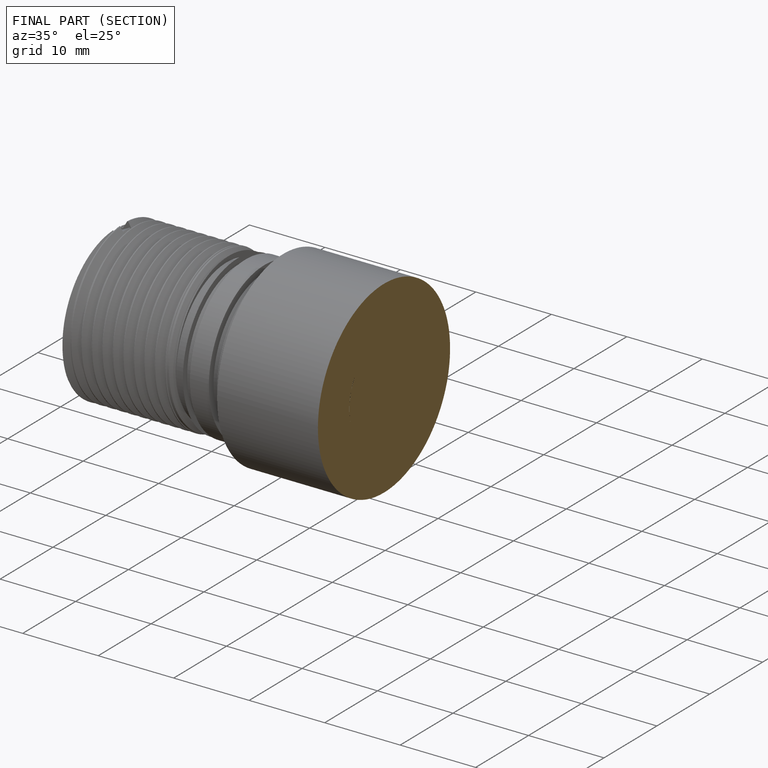
[diagram: finished part — half-section view (interior)]
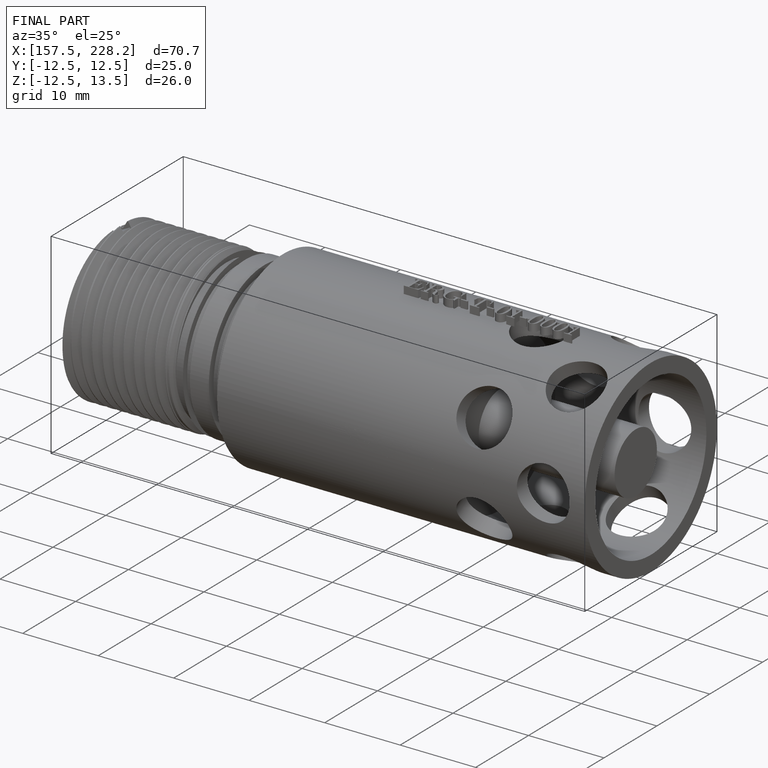
[diagram: finished part — iso view with bounding-box wireframe]
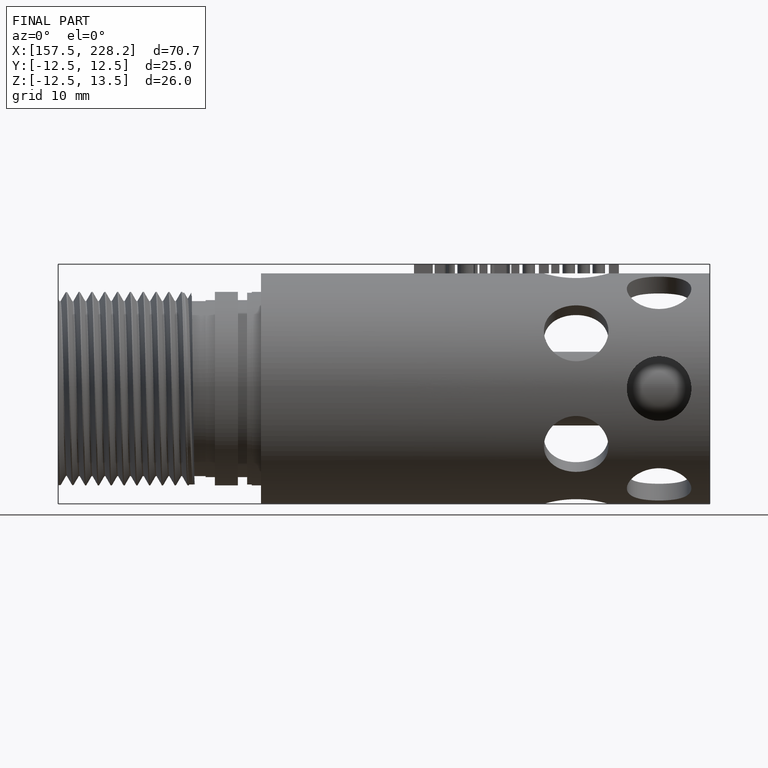
[diagram: finished part — front view with bounding-box wireframe]
